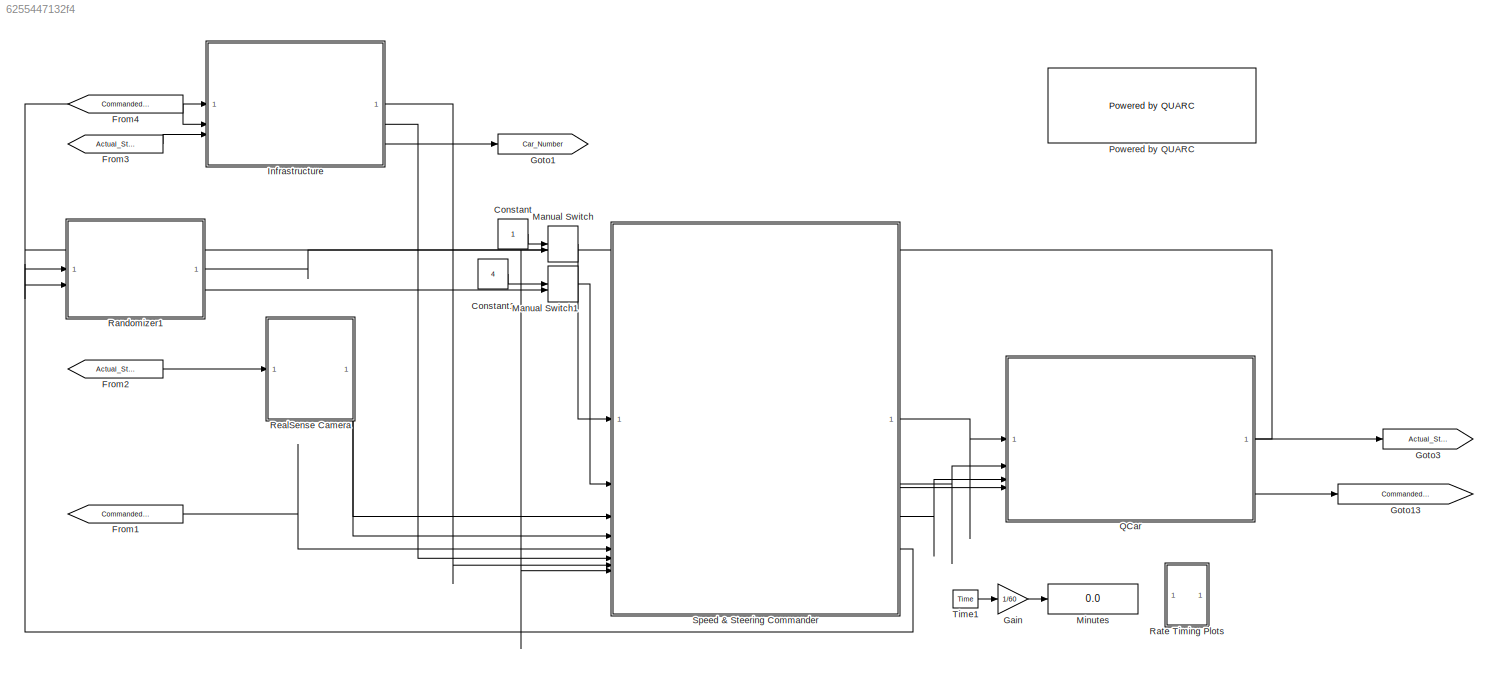
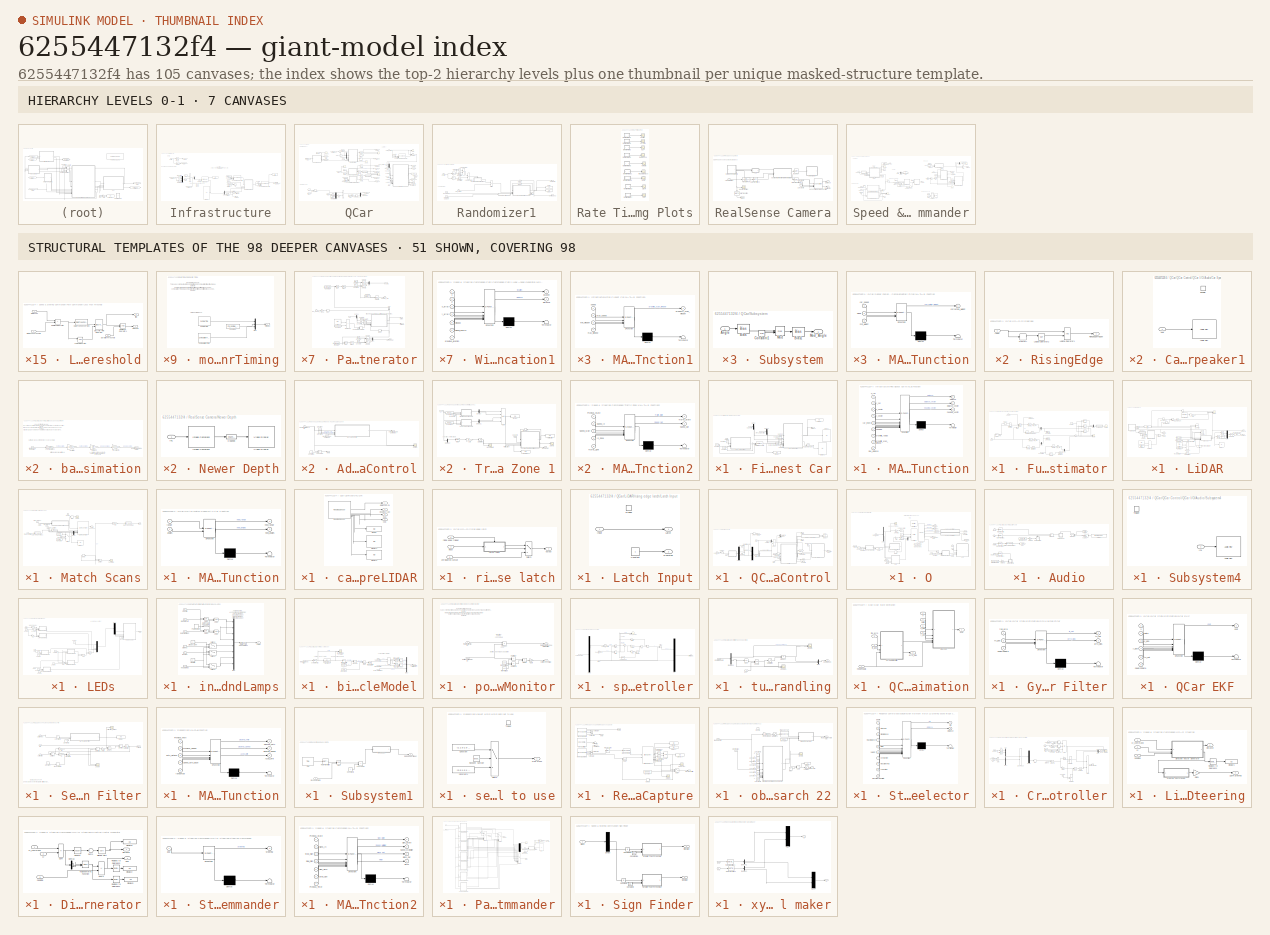
[diagram: thumbnail index - top-2 hierarchy levels (7 canvases) + 51 structural-template representatives of the remaining 98 canvases]
MODEL slx_6255447132f4
KIND model
CONFIG AbsTol = auto
CONFIG EnableMultiTasking = on
CONFIG FixedStep = Controller_Sample_Time
CONFIG MaxStep = auto
CONFIG MinStep = auto
CONFIG RelTol = 1e-3
CONFIG SampleTimeConstraint = Unconstrained
CONFIG SolverName = ode1
CONFIG StartTime = 0.0
CONFIG StopTime = inf
BLOCK [Constant] Constant
BLOCK [Constant] Constant1
  Value = 4
BLOCK [From] From1
  GotoTag = Commanded_Speed
BLOCK [From] From2
  GotoTag = Actual_Steering
BLOCK [From] From3
  GotoTag = Actual_Steering
BLOCK [From] From4
  GotoTag = Commanded_Speed
BLOCK [Gain] Gain
  Gain = 1/60
BLOCK [Goto] Goto1
  GotoTag = Car_Number
BLOCK [Goto] Goto13
  GotoTag = Commanded_Speed
BLOCK [Goto] Goto3
  GotoTag = Actual_Steering
BLOCK [SubSystem] Infrastructure
BLOCK [Sum] Infrastructure/Add
  IconShape = rectangular
BLOCK [Outport] Infrastructure/Car Number
  Port = 3
BLOCK [Constant] Infrastructure/Constant1
  Value = 10
BLOCK [Constant] Infrastructure/Constant2
BLOCK [Constant] Infrastructure/Constant4
BLOCK [Constant] Infrastructure/Constant6
  Value = 10
BLOCK [Constant] Infrastructure/Constant7
BLOCK [Demux] Infrastructure/Demux
  Outputs = [10 1 1]
BLOCK [Display] Infrastructure/Display
BLOCK [Display] Infrastructure/Display1
BLOCK [Display] Infrastructure/Display2
  Decimation = 100
BLOCK [Outport] Infrastructure/Distance to closest car ahead
  Port = 2
BLOCK [SubSystem] Infrastructure/Find Closest Car
BLOCK [Constant] Infrastructure/Find Closest Car/Constant1
  Value = 65
BLOCK [Constant] Infrastructure/Find Closest Car/Constant2
  Value = 45
BLOCK [Constant] Infrastructure/Find Closest Car/Constant6
BLOCK [Constant] Infrastructure/Find Closest Car/Constant7
BLOCK [Constant] Infrastructure/Find Closest Car/Constant8
  Value = 10
BLOCK [Reference] Infrastructure/Find Closest Car/Degrees to Radians  REF=simulink_extras/Transformations/Degrees to
Radians
  SourceBlock = simulink_extras/Transformations/Degrees to\nRadians
  SourceType = DegreesToRadians
BLOCK [Demux] Infrastructure/Find Closest Car/Demux
  Outputs = 2
BLOCK [Demux] Infrastructure/Find Closest Car/Demux1
  Outputs = 2
BLOCK [Display] Infrastructure/Find Closest Car/Display
  Decimation = 100
BLOCK [Display] Infrastructure/Find Closest Car/Display1
  Decimation = 100
BLOCK [Display] Infrastructure/Find Closest Car/Display2
  Decimation = 100
BLOCK [Display] Infrastructure/Find Closest Car/Display3
  Decimation = 100
BLOCK [SubSystem] Infrastructure/Find Closest Car/MATLAB Function
  ErrorFcn = Stateflow.Translate.translate
  PermitHierarchicalResolution = ExplicitOnly
  SFBlockType = MATLAB Function
  TreatAsAtomicUnit = on
BLOCK [Demux] Infrastructure/Find Closest Car/MATLAB Function/ Demux 
  Outputs = 1
BLOCK [S-Function] Infrastructure/Find Closest Car/MATLAB Function/ SFunction 
  EnableBusSupport = on
  FunctionName = sf_sfun
  PortCounts = [9 4]
  SFcnIsStateOwnerBlock = off
  SFunctionDeploymentMode = off
  Tag = Stateflow S-Function 27
BLOCK [Terminator] Infrastructure/Find Closest Car/MATLAB Function/ Terminator 
BLOCK [Inport] Infrastructure/Find Closest Car/MATLAB Function/car_index
  Port = 5
BLOCK [Outport] Infrastructure/Find Closest Car/MATLAB Function/distance
  VectorParamsAs1DForOutWhenUnconnected = off
BLOCK [Outport] Infrastructure/Find Closest Car/MATLAB Function/distance_vector
  Port = 2
BLOCK [Inport] Infrastructure/Find Closest Car/MATLAB Function/heading
  Port = 6
BLOCK [Outport] Infrastructure/Find Closest Car/MATLAB Function/heading_vector
  Port = 3
BLOCK [Inport] Infrastructure/Find Closest Car/MATLAB Function/max_distance
  Port = 9
BLOCK [Inport] Infrastructure/Find Closest Car/MATLAB Function/proximity_radius
  Port = 7
BLOCK [Inport] Infrastructure/Find Closest Car/MATLAB Function/proximity_scan_window
  Port = 8
BLOCK [Inport] Infrastructure/Find Closest Car/MATLAB Function/x_car
BLOCK [Inport] Infrastructure/Find Closest Car/MATLAB Function/x_vector
  Port = 3
BLOCK [Inport] Infrastructure/Find Closest Car/MATLAB Function/y_car
  Port = 2
BLOCK [Inport] Infrastructure/Find Closest Car/MATLAB Function/y_vector
  Port = 4
BLOCK [SubSystem] Infrastructure/Find Closest Car/MATLAB Function1
  ErrorFcn = Stateflow.Translate.translate
  PermitHierarchicalResolution = ExplicitOnly
  SFBlockType = MATLAB Function
  TreatAsAtomicUnit = on
BLOCK [Demux] Infrastructure/Find Closest Car/MATLAB Function1/ Demux 
  Outputs = 1
BLOCK [S-Function] Infrastructure/Find Closest Car/MATLAB Function1/ SFunction 
  EnableBusSupport = on
  FunctionName = sf_sfun
  PortCounts = [4 2]
  SFcnIsStateOwnerBlock = off
  SFunctionDeploymentMode = off
  Tag = Stateflow S-Function 29
BLOCK [Terminator] Infrastructure/Find Closest Car/MATLAB Function1/ Terminator 
BLOCK [Inport] Infrastructure/Find Closest Car/MATLAB Function1/max_speed
  Port = 2
BLOCK [Inport] Infrastructure/Find Closest Car/MATLAB Function1/max_window
  Port = 4
BLOCK [Inport] Infrastructure/Find Closest Car/MATLAB Function1/min_window
  Port = 3
BLOCK [Outport] Infrastructure/Find Closest Car/MATLAB Function1/proximity_scan_window
  VectorParamsAs1DForOutWhenUnconnected = off
BLOCK [Inport] Infrastructure/Find Closest Car/MATLAB Function1/speed
BLOCK [Reference] Infrastructure/Find Closest Car/Radians to Degrees  REF=simulink_extras/Transformations/Radians
to Degrees
  SourceBlock = simulink_extras/Transformations/Radians\nto Degrees
  SourceType = RadiansToDegrees
BLOCK [Reference] Infrastructure/Find Closest Car/Saturation Dynamic  REF=simulink/Discontinuities/Saturation
Dynamic
  SourceBlock = simulink/Discontinuities/Saturation\nDynamic
  SourceType = Saturation Dynamic
BLOCK [Inport] Infrastructure/Find Closest Car/car_heading
  Port = 3
BLOCK [Inport] Infrastructure/Find Closest Car/car_index
  Port = 5
BLOCK [Inport] Infrastructure/Find Closest Car/car_position
  Port = 2
BLOCK [Outport] Infrastructure/Find Closest Car/distance
BLOCK [Inport] Infrastructure/Find Closest Car/other_car_position
  Port = 4
BLOCK [Inport] Infrastructure/Find Closest Car/speed 
BLOCK [From] Infrastructure/From1
  CloseFcn = tagdialog Close
  GotoTag = mod_heading
BLOCK [From] Infrastructure/From16
  CloseFcn = tagdialog Close
  GotoTag = mod_heading
BLOCK [From] Infrastructure/From19
  CloseFcn = tagdialog Close
  GotoTag = xy
BLOCK [From] Infrastructure/From2
  CloseFcn = tagdialog Close
  GotoTag = mod_heading
BLOCK [From] Infrastructure/From9
  CloseFcn = tagdialog Close
  GotoTag = xy
BLOCK [Gain] Infrastructure/Gain1
  Gain = .11537*1
BLOCK [Goto] Infrastructure/Goto3
  GotoTag = mod_heading
BLOCK [Goto] Infrastructure/Goto7
  GotoTag = xy
BLOCK [Mux] Infrastructure/Mux
  DisplayOption = bar
  Inputs = 2
BLOCK [Mux] Infrastructure/Mux3
  DisplayOption = bar
  Inputs = 2
BLOCK [Saturate] Infrastructure/Saturation
  LowerLimit = 0
  UpperLimit = 1
BLOCK [Saturate] Infrastructure/Saturation1
  LowerLimit = 1
  UpperLimit = 5
BLOCK [Reference] Infrastructure/Second-Order Low-Pass Filter  REF=quarc_library/Continuous/Second-Order
Low-Pass Filter
  SourceBlock = quarc_library/Continuous/Second-Order\nLow-Pass Filter
  SourceProductName = QUARC Targets
  SourceType = Second-Order Low-Pass Filter
BLOCK [Reference] Infrastructure/Second-Order Low-Pass Filter1  REF=quarc_library/Continuous/Second-Order
Low-Pass Filter
  SourceBlock = quarc_library/Continuous/Second-Order\nLow-Pass Filter
  SourceProductName = QUARC Targets
  SourceType = Second-Order Low-Pass Filter
BLOCK [Selector] Infrastructure/Selector
  IndexOptions = Index vector (dialog)
  Indices = 1:2
  InputPortWidth = 3
  OutputSizes = 1
BLOCK [Selector] Infrastructure/Selector1
  IndexOptions = Index vector (dialog)
  Indices = 3
  InputPortWidth = 3
  OutputSizes = 1
BLOCK [Inport] Infrastructure/Steering
  Port = 3
BLOCK [Reference] Infrastructure/Stream Server  REF=quarc_library/Communications/Basic/Stream Server
  AttributesFormatString = "tcpip://remotehost:1111?nagle='off'"
  SourceBlock = quarc_library/Communications/Basic/Stream Server
  SourceProductName = QUARC Targets
  SourceType = Stream Server
BLOCK [Sum] Infrastructure/Sum1
  IconShape = rectangular
  Inputs = +-
BLOCK [Outport] Infrastructure/Traffic Light
BLOCK [Trigonometry] Infrastructure/Trigonometric Function
  Operator = cos
BLOCK [Trigonometry] Infrastructure/Trigonometric Function1
BLOCK [Inport] Infrastructure/position
BLOCK [Inport] Infrastructure/speed 
  Port = 2
BLOCK [ManualSwitch] Manual Switch
  CurrentSetting = 0
BLOCK [ManualSwitch] Manual Switch1
  CurrentSetting = 0
BLOCK [Display] Minutes
BLOCK [Reference] Powered by QUARC  REF=quarc_library/Logos/Powered by QUARC
  SourceBlock = quarc_library/Logos/Powered by QUARC
  SourceProductName = QUARC Targets
  SourceType = Powered by QUARC
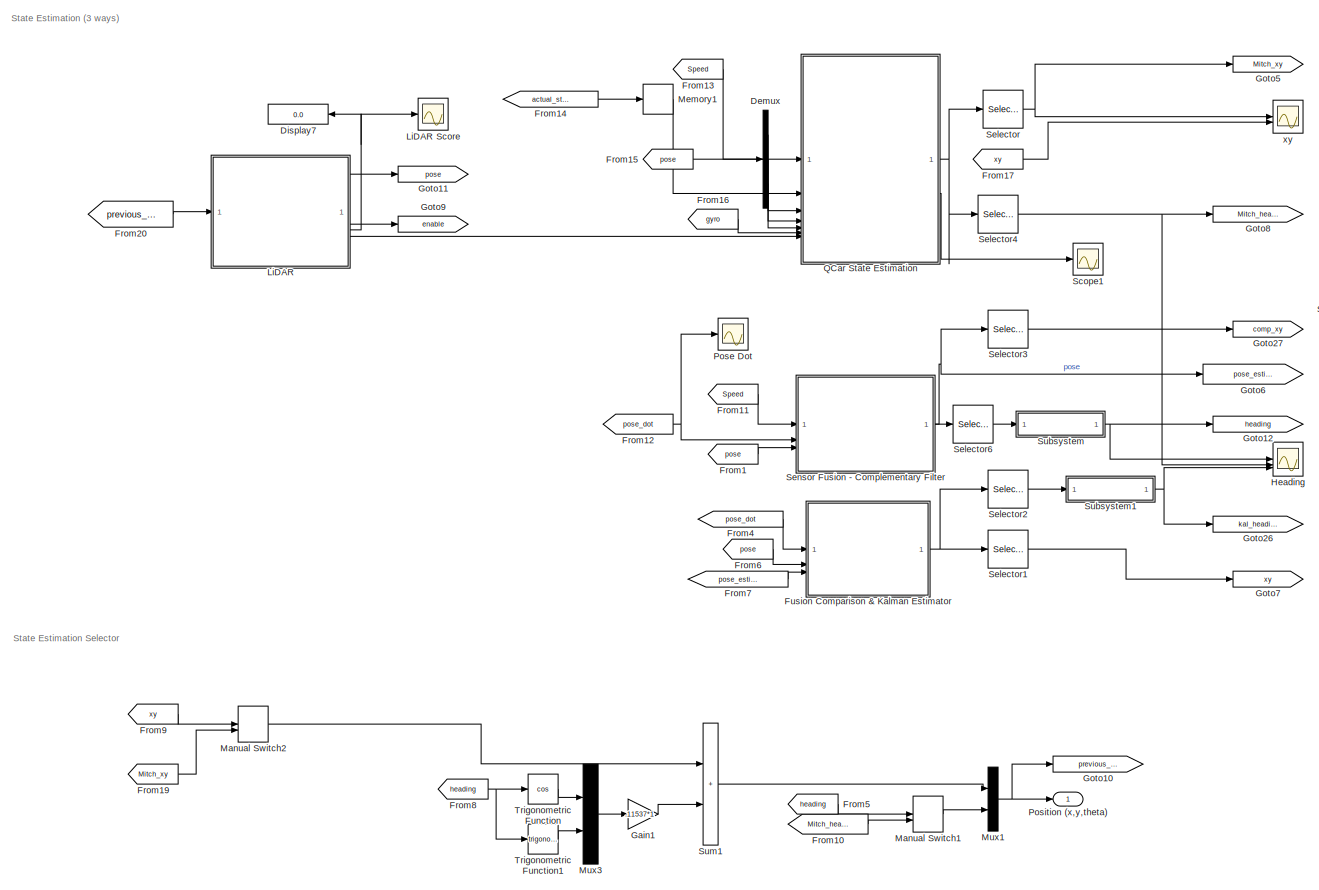
[diagram: QCar - part 1/2, center side, full height]
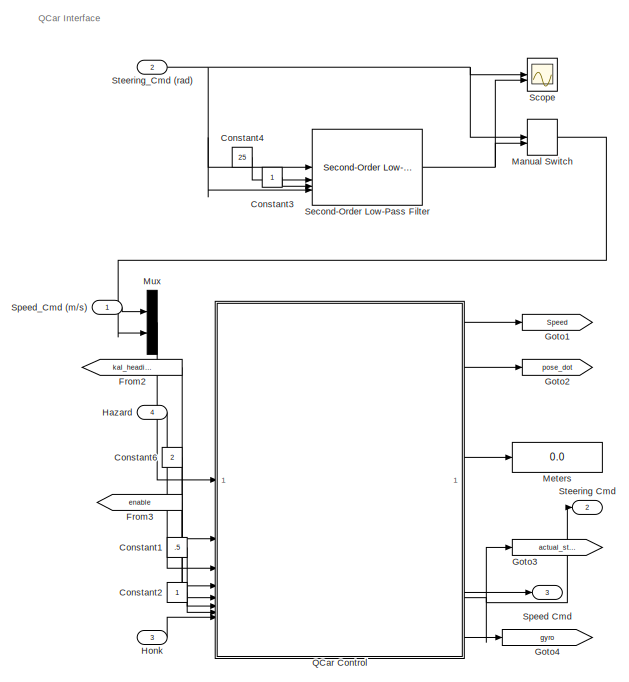
[diagram: QCar - part 2/2, right side, full height]
BLOCK [SubSystem] QCar
BLOCK [Constant] QCar/Constant1
  Value = .5
BLOCK [Constant] QCar/Constant2
BLOCK [Constant] QCar/Constant3
BLOCK [Constant] QCar/Constant4
  Value = 25
BLOCK [Constant] QCar/Constant6
  Value = 2
BLOCK [Demux] QCar/Demux
  Outputs = 3
BLOCK [Display] QCar/Display7
  Decimation = 1
  NameLocation = top
BLOCK [From] QCar/From1
  CloseFcn = tagdialog Close
  GotoTag = pose
BLOCK [From] QCar/From10
  CloseFcn = tagdialog Close
  GotoTag = Mitch_heading
BLOCK [From] QCar/From11
  CloseFcn = tagdialog Close
  GotoTag = Speed
BLOCK [From] QCar/From12
  CloseFcn = tagdialog Close
  GotoTag = pose_dot
BLOCK [From] QCar/From13
  CloseFcn = tagdialog Close
  GotoTag = Speed
BLOCK [From] QCar/From14
  CloseFcn = tagdialog Close
  GotoTag = actual_steering
BLOCK [From] QCar/From15
  CloseFcn = tagdialog Close
  GotoTag = pose
BLOCK [From] QCar/From16
  CloseFcn = tagdialog Close
  GotoTag = gyro
BLOCK [From] QCar/From17
  CloseFcn = tagdialog Close
  GotoTag = xy
BLOCK [From] QCar/From19
  CloseFcn = tagdialog Close
  GotoTag = Mitch_xy
BLOCK [From] QCar/From2
  CloseFcn = tagdialog Close
  GotoTag = kal_heading
BLOCK [From] QCar/From20
  CloseFcn = tagdialog Close
  GotoTag = previous_pose
BLOCK [From] QCar/From3
  CloseFcn = tagdialog Close
  GotoTag = enable
BLOCK [From] QCar/From4
  CloseFcn = tagdialog Close
  GotoTag = pose_dot
BLOCK [From] QCar/From5
  CloseFcn = tagdialog Close
  GotoTag = heading
BLOCK [From] QCar/From6
  CloseFcn = tagdialog Close
  GotoTag = pose
BLOCK [From] QCar/From7
  CloseFcn = tagdialog Close
  GotoTag = pose_estimate
BLOCK [From] QCar/From8
  CloseFcn = tagdialog Close
  GotoTag = heading
BLOCK [From] QCar/From9
  CloseFcn = tagdialog Close
  GotoTag = xy
BLOCK [SubSystem] QCar/Fusion Comparison & Kalman Estimator
BLOCK [SubSystem] QCar/Fusion Comparison & Kalman Estimator/Angle mod1
BLOCK [Inport] QCar/Fusion Comparison & Kalman Estimator/Angle mod1/Angle
BLOCK [Bias] QCar/Fusion Comparison & Kalman Estimator/Angle mod1/Bias
  Bias = 180
  SaturateOnIntegerOverflow = off
BLOCK [Bias] QCar/Fusion Comparison & Kalman Estimator/Angle mod1/Bias1
  Bias = -180
  SaturateOnIntegerOverflow = off
BLOCK [Constant] QCar/Fusion Comparison & Kalman Estimator/Angle mod1/Constant1
  Value = 360
BLOCK [Math] QCar/Fusion Comparison & Kalman Estimator/Angle mod1/Mod
  Operator = mod
  SignedPower = on
BLOCK [Outport] QCar/Fusion Comparison & Kalman Estimator/Angle mod1/Mod_Angle
BLOCK [Constant] QCar/Fusion Comparison & Kalman Estimator/Constant
  Value = 3
BLOCK [DataTypeConversion] QCar/Fusion Comparison & Kalman Estimator/Data Type Conversion1
  NameLocation = top
  OutDataTypeStr = int32
  RndMeth = Round
  SaturateOnIntegerOverflow = off
BLOCK [DataTypeConversion] QCar/Fusion Comparison & Kalman Estimator/Data Type Conversion2
  NameLocation = top
  OutDataTypeStr = int32
  RndMeth = Round
  SaturateOnIntegerOverflow = off
BLOCK [Scope] QCar/Fusion Comparison & Kalman Estimator/Heading
  Floating = off
  NumInputPorts = 1
  ScopeSpecificationString = Simulink.scopes.TimeScopeBlockCfg('CurrentConfiguration', extmgr.ConfigurationSet(extmgr.Configuration('Core','General UI',true,'DisplayFullSourceName',false,'ShowMainToolbar',true),extmgr.Configuration('Sources','WiredSimulink',true,'DataLogging',false,'DataLoggingVariableName','ScopeData1','DataLoggingLimitDataPoints',false,'DataLoggingMaxPoints','5000','DataLoggingDecimateData',false,'DataLoggi...<+2007ch>
BLOCK [Integrator] QCar/Fusion Comparison & Kalman Estimator/Integrator
  ExternalReset = level
  InitialConditionSource = external
  WrappedStateLowerValue = -[20 20 pi]
  WrappedStateUpperValue = [20 20 pi]
BLOCK [Selector] QCar/Fusion Comparison & Kalman Estimator/Kalman
  IndexOptions = Index vector (port)
  Indices = [1 3]
  InputPortWidth = 3
  OutputSizes = 1
BLOCK [Outport] QCar/Fusion Comparison & Kalman Estimator/Kalman Pose
BLOCK [Selector] QCar/Fusion Comparison & Kalman Estimator/LiDAR
  IndexOptions = Index vector (port)
  Indices = [1 3]
  InputPortWidth = 3
  OutputSizes = 1
BLOCK [Selector] QCar/Fusion Comparison & Kalman Estimator/LiDAR1
  IndexOptions = Index vector (port)
  Indices = [1 3]
  InputPortWidth = 3
  OutputSizes = 1
BLOCK [Memory] QCar/Fusion Comparison & Kalman Estimator/Memory2
  InheritSampleTime = on
  LinearizeAsDelay = on
  LinearizeMemory = on
BLOCK [Mux] QCar/Fusion Comparison & Kalman Estimator/Mux
  DisplayOption = bar
  Inputs = 2
BLOCK [Mux] QCar/Fusion Comparison & Kalman Estimator/Mux1
  DisplayOption = bar
  Inputs = 2
BLOCK [Mux] QCar/Fusion Comparison & Kalman Estimator/Mux2
  DisplayOption = bar
  Inputs = 2
BLOCK [Mux] QCar/Fusion Comparison & Kalman Estimator/Mux4
  DisplayOption = bar
  Inputs = 3
BLOCK [Inport] QCar/Fusion Comparison & Kalman Estimator/Pose dot
BLOCK [RateTransition] QCar/Fusion Comparison & Kalman Estimator/RT
  OutPortSampleTime = qc_get_step_size
BLOCK [RateTransition] QCar/Fusion Comparison & Kalman Estimator/RT1
  OutPortSampleTime = qc_get_step_size
BLOCK [RateTransition] QCar/Fusion Comparison & Kalman Estimator/RT2
  OutPortSampleTime = qc_get_step_size
BLOCK [Reference] QCar/Fusion Comparison & Kalman Estimator/Radians to Degrees  REF=simulink_extras/Transformations/Radians
to Degrees
  SourceBlock = simulink_extras/Transformations/Radians\nto Degrees
  SourceType = RadiansToDegrees
BLOCK [Reference] QCar/Fusion Comparison & Kalman Estimator/Radians to Degrees2  REF=simulink_extras/Transformations/Radians
to Degrees
  SourceBlock = simulink_extras/Transformations/Radians\nto Degrees
  SourceType = RadiansToDegrees
BLOCK [Reference] QCar/Fusion Comparison & Kalman Estimator/Radians to Degrees3  REF=simulink_extras/Transformations/Radians
to Degrees
  SourceBlock = simulink_extras/Transformations/Radians\nto Degrees
  SourceType = RadiansToDegrees
BLOCK [RelationalOperator] QCar/Fusion Comparison & Kalman Estimator/Relational Operator1
  InputSameDT = off
  Operator = ~=
  OutDataTypeStr = boolean
  RndMeth = Simplest
BLOCK [Scope] QCar/Fusion Comparison & Kalman Estimator/Scope
  Floating = off
  NumInputPorts = 3
  ScopeSpecificationString = Simulink.scopes.TimeScopeBlockCfg('CurrentConfiguration', extmgr.ConfigurationSet(extmgr.Configuration('Core','General UI',true,'DisplayFullSourceName',false,'ShowMainToolbar',true),extmgr.Configuration('Sources','WiredSimulink',true,'DataLogging',false,'DataLoggingVariableName','ScopeData1','DataLoggingLimitDataPoints',false,'DataLoggingMaxPoints','5000','DataLoggingDecimateData',false,'DataLoggi...<+2003ch>
BLOCK [Selector] QCar/Fusion Comparison & Kalman Estimator/Selector1
  IndexOptions = Index vector (dialog)
  Indices = 1:2
  InputPortWidth = 3
  OutputSizes = 1
BLOCK [Selector] QCar/Fusion Comparison & Kalman Estimator/Selector2
  IndexOptions = Index vector (dialog)
  Indices = 3
  InputPortWidth = 3
  OutputSizes = 1
BLOCK [Selector] QCar/Fusion Comparison & Kalman Estimator/Selector3
  IndexOptions = Index vector (dialog)
  Indices = 1:2
  InputPortWidth = 3
  OutputSizes = 1
BLOCK [Selector] QCar/Fusion Comparison & Kalman Estimator/Selector4
  IndexOptions = Index vector (dialog)
  Indices = 3
  InputPortWidth = 3
  OutputSizes = 1
BLOCK [Selector] QCar/Fusion Comparison & Kalman Estimator/Selector5
  IndexOptions = Index vector (dialog)
  Indices = 1:2
  InputPortWidth = 3
  OutputSizes = 1
BLOCK [Selector] QCar/Fusion Comparison & Kalman Estimator/Selector6
  IndexOptions = Index vector (dialog)
  Indices = 3
  InputPortWidth = 3
  OutputSizes = 1
BLOCK [Selector] QCar/Fusion Comparison & Kalman Estimator/Selector7
  IndexOptions = Index vector (dialog)
  Indices = 1
  InputPortWidth = 3
  OutputSizes = 1
BLOCK [Gain] QCar/Fusion Comparison & Kalman Estimator/m_to_mm
  Gain = 1e3
BLOCK [Gain] QCar/Fusion Comparison & Kalman Estimator/m_to_mm1
  Gain = 1e3
BLOCK [Gain] QCar/Fusion Comparison & Kalman Estimator/m_to_mm2
  Gain = 1e3
BLOCK [Inport] QCar/Fusion Comparison & Kalman Estimator/pose
  Port = 2
BLOCK [Inport] QCar/Fusion Comparison & Kalman Estimator/pose estimate
  Port = 3
BLOCK [Gain] QCar/Gain1
  Gain = .11537*1
BLOCK [Goto] QCar/Goto1
  GotoTag = Speed
BLOCK [Goto] QCar/Goto10
  GotoTag = previous_pose
BLOCK [Goto] QCar/Goto11
  GotoTag = pose
BLOCK [Goto] QCar/Goto12
  GotoTag = heading
BLOCK [Goto] QCar/Goto2
  GotoTag = pose_dot
BLOCK [Goto] QCar/Goto26
  GotoTag = kal_heading
BLOCK [Goto] QCar/Goto27
  GotoTag = comp_xy
BLOCK [Goto] QCar/Goto3
  GotoTag = actual_steering
BLOCK [Goto] QCar/Goto4
  GotoTag = gyro
BLOCK [Goto] QCar/Goto5
  GotoTag = Mitch_xy
BLOCK [Goto] QCar/Goto6
  GotoTag = pose_estimate
BLOCK [Goto] QCar/Goto7
  GotoTag = xy
BLOCK [Goto] QCar/Goto8
  GotoTag = Mitch_heading
BLOCK [Goto] QCar/Goto9
  GotoTag = enable
BLOCK [Inport] QCar/Hazard
  Port = 4
BLOCK [Scope] QCar/Heading
  Floating = off
  NumInputPorts = 3
  ScopeSpecificationString = Simulink.scopes.TimeScopeBlockCfg('CurrentConfiguration', extmgr.ConfigurationSet(extmgr.Configuration('Core','General UI',true,'DisplayFullSourceName',false,'ShowMainToolbar',true),extmgr.Configuration('Sources','WiredSimulink',true,'DataLogging',false,'DataLoggingVariableName','ScopeData1','DataLoggingLimitDataPoints',false,'DataLoggingMaxPoints','5000','DataLoggingDecimateData',false,'DataLoggi...<+1996ch>  <repeated x5 — deduplicated; at blocks: Heading, Pose Deltas, xy, RealSense, Speed Multi>
BLOCK [Inport] QCar/Honk
  Port = 3
BLOCK [SubSystem] QCar/LiDAR
BLOCK [Scope] QCar/LiDAR Score
  Floating = off
  NumInputPorts = 1
  ScopeSpecificationString = Simulink.scopes.TimeScopeBlockCfg('CurrentConfiguration', extmgr.ConfigurationSet(extmgr.Configuration('Core','General UI',true,'DisplayFullSourceName',false,'ShowMainToolbar',true),extmgr.Configuration('Sources','WiredSimulink',true,'DataLogging',false,'DataLoggingVariableName','ScopeData1','DataLoggingLimitDataPoints',false,'DataLoggingMaxPoints','5000','DataLoggingDecimateData',false,'DataLoggi...<+2026ch>
BLOCK [Bias] QCar/LiDAR/Bias
  Bias = -pi/2+0*1*pi/180
  SaturateOnIntegerOverflow = off
BLOCK [Reference] QCar/LiDAR/Body Frame  REF=quarc_library/Sinks/Figures/Polar Figure
  SourceBlock = quarc_library/Sinks/Figures/Polar Figure
  SourceProductName = QUARC Targets
  SourceType = Polar Figure
BLOCK [Reference] QCar/LiDAR/Computation Time1  REF=quarc_library/Sources/Time/Computation Time
  SourceBlock = quarc_library/Sources/Time/Computation Time
  SourceProductName = QUARC Targets
  SourceType = Computation Time
BLOCK [Constant] QCar/LiDAR/Constant1
  Value = range_qcar1
BLOCK [Constant] QCar/LiDAR/Constant10
  Value = Initialization_Time
BLOCK [Constant] QCar/LiDAR/Constant3
BLOCK [Constant] QCar/LiDAR/Constant4
  Value = angles_qcar1
BLOCK [Constant] QCar/LiDAR/Constant5
  Value = 0
BLOCK [Constant] QCar/LiDAR/Constant6
  Value = Initialization_Time
BLOCK [Scope] QCar/LiDAR/Data Size
  Floating = off
  NumInputPorts = 4
  ScopeSpecificationString = Simulink.scopes.TimeScopeBlockCfg('CurrentConfiguration', extmgr.ConfigurationSet(extmgr.Configuration('Core','General UI',true,'DisplayFullSourceName',false,'ShowMainToolbar',true),extmgr.Configuration('Sources','WiredSimulink',true,'DataLogging',false,'DataLoggingVariableName','ScopeData1','DataLoggingLimitDataPoints',false,'DataLoggingMaxPoints','5000','DataLoggingDecimateData',false,'DataLoggi...<+1987ch>
BLOCK [Display] QCar/LiDAR/Display7
  Decimation = 1
BLOCK [Outport] QCar/LiDAR/Enable
  Port = 3
BLOCK [Reference] QCar/LiDAR/Fixed Frame  REF=quarc_library/Sinks/Figures/Polar Figure
  SourceBlock = quarc_library/Sinks/Figures/Polar Figure
  SourceProductName = QUARC Targets
  SourceType = Polar Figure
BLOCK [RelationalOperator] QCar/LiDAR/GreaterThan
  InputSameDT = off
  Operator = >
  OutDataTypeStr = boolean
  RndMeth = Simplest
BLOCK [RelationalOperator] QCar/LiDAR/GreaterThan1
  InputSameDT = off
  Operator = <
  OutDataTypeStr = boolean
  RndMeth = Simplest
BLOCK [Reference] QCar/LiDAR/Inverse Modulus1  REF=quarc_library/Discontinuities/Inverse
Modulus
  SourceBlock = quarc_library/Discontinuities/Inverse\nModulus
  SourceProductName = QUARC Targets
  SourceType = Inverse Modulus
BLOCK [Outport] QCar/LiDAR/LiDAR Pose
BLOCK [Outport] QCar/LiDAR/LiDAR Score 
  Port = 2
BLOCK [SubSystem] QCar/LiDAR/Match Scans
BLOCK [Inport] QCar/LiDAR/Match Scans/Angles
  Port = 2
BLOCK [Constant] QCar/LiDAR/Match Scans/Constant
  Value = [6 6 2*pi]
BLOCK [Constant] QCar/LiDAR/Match Scans/Constant1
  Value = [1 1 pi/2]
BLOCK [Inport] QCar/LiDAR/Match Scans/Current_Distance
BLOCK [DataTypeConversion] QCar/LiDAR/Match Scans/Data Type Conversion
  RndMeth = Floor
  SaturateOnIntegerOverflow = off
BLOCK [DataTypeConversion] QCar/LiDAR/Match Scans/Data Type Conversion1
  RndMeth = Floor
  SaturateOnIntegerOverflow = off
BLOCK [Demux] QCar/LiDAR/Match Scans/Demux
  Outputs = 2
BLOCK [Display] QCar/LiDAR/Match Scans/Display
  Decimation = 1
BLOCK [EnablePort] QCar/LiDAR/Match Scans/Enable
  PropagateVarSize = During execution
BLOCK [Gain] QCar/LiDAR/Match Scans/Gain
  Gain = [1 -1 -1]
BLOCK [Gain] QCar/LiDAR/Match Scans/Gain1
  Gain = [1 -1 -1]
BLOCK [Reference] QCar/LiDAR/Match Scans/LIDAR Scan Match  REF=quarc_library/Image Processing/Generic/LIDAR Scan Match
  SourceBlock = quarc_library/Image Processing/Generic/LIDAR Scan Match
  SourceProductName = QUARC Targets
  SourceType = LIDAR Scan Match
BLOCK [SubSystem] QCar/LiDAR/Match Scans/MATLAB Function
  ErrorFcn = Stateflow.Translate.translate
  PermitHierarchicalResolution = ExplicitOnly
  SFBlockType = MATLAB Function
  TreatAsAtomicUnit = on
BLOCK [Demux] QCar/LiDAR/Match Scans/MATLAB Function/ Demux 
  Outputs = 1
BLOCK [S-Function] QCar/LiDAR/Match Scans/MATLAB Function/ SFunction 
  EnableBusSupport = on
  FunctionName = sf_sfun
  PortCounts = [2 3]
  SFcnIsStateOwnerBlock = off
  SFunctionDeploymentMode = off
  Tag = Stateflow S-Function 9
BLOCK [Terminator] QCar/LiDAR/Match Scans/MATLAB Function/ Terminator 
BLOCK [Inport] QCar/LiDAR/Match Scans/MATLAB Function/angles
  Port = 2
BLOCK [Outport] QCar/LiDAR/Match Scans/MATLAB Function/new_angles
  Port = 2
BLOCK [Outport] QCar/LiDAR/Match Scans/MATLAB Function/new_range
BLOCK [Inport] QCar/LiDAR/Match Scans/MATLAB Function/range
BLOCK [Memory] QCar/LiDAR/Match Scans/Memory
  InheritSampleTime = on
  InitialCondition = [0 0 0]
  LinearizeAsDelay = on
  LinearizeMemory = on
  NameLocation = top
BLOCK [Scope] QCar/LiDAR/Match Scans/Pose Deltas
  Floating = off
  NumInputPorts = 1
BLOCK [Inport] QCar/LiDAR/Match Scans/Previous Estimate
  Port = 6
BLOCK [Inport] QCar/LiDAR/Match Scans/Ref_Angles
  Port = 4
BLOCK [Inport] QCar/LiDAR/Match Scans/Ref_Distance
  Port = 3
BLOCK [Scope] QCar/LiDAR/Match Scans/Scope
  Floating = off
  NumInputPorts = 1
  ScopeSpecificationString = Simulink.scopes.TimeScopeBlockCfg('CurrentConfiguration', extmgr.ConfigurationSet(extmgr.Configuration('Core','General UI',true,'DisplayFullSourceName',false,'ShowMainToolbar',true),extmgr.Configuration('Sources','WiredSimulink',true,'DataLogging',false,'DataLoggingVariableName','ScopeData1','DataLoggingLimitDataPoints',false,'DataLoggingMaxPoints','5000','DataLoggingDecimateData',false,'DataLoggi...<+2011ch>
BLOCK [Sum] QCar/LiDAR/Match Scans/Subtract
  IconShape = rectangular
  Inputs = +-
BLOCK [Switch] QCar/LiDAR/Match Scans/Switch
  Criteria = u2 > Threshold
  InputSameDT = off
  SaturateOnIntegerOverflow = off
  Threshold = .5
BLOCK [Width] QCar/LiDAR/Match Scans/Width
BLOCK [Inport] QCar/LiDAR/Match Scans/absolute_scan
  Port = 5
BLOCK [Outport] QCar/LiDAR/Match Scans/pose
BLOCK [Outport] QCar/LiDAR/Match Scans/score
  Port = 2
BLOCK [MinMax] QCar/LiDAR/Max of Elements
  Function = max
BLOCK [MinMax] QCar/LiDAR/Max of Elements1
BLOCK [Mux] QCar/LiDAR/Mux5
  DisplayOption = bar
  Inputs = 2
BLOCK [Outport] QCar/LiDAR/New Lidar
  Port = 4
BLOCK [Inport] QCar/LiDAR/Previous Estimate
BLOCK [Product] QCar/LiDAR/Product
BLOCK [Reference] QCar/LiDAR/Radians to Degrees  REF=simulink_extras/Transformations/Radians
to Degrees
  SourceBlock = simulink_extras/Transformations/Radians\nto Degrees
  SourceType = RadiansToDegrees
BLOCK [RateTransition] QCar/LiDAR/Rate Transition
BLOCK [RateTransition] QCar/LiDAR/Rate Transition1
BLOCK [SubSystem] QCar/LiDAR/RisingEdge
BLOCK [Inport] QCar/LiDAR/RisingEdge/Input
BLOCK [Logic] QCar/LiDAR/RisingEdge/Logical Operator1
  AllPortsSameDT = off
BLOCK [Logic] QCar/LiDAR/RisingEdge/Logical Operator2
  AllPortsSameDT = off
  Operator = NOT
BLOCK [Memory] QCar/LiDAR/RisingEdge/Memory
  InheritSampleTime = on
  LinearizeMemory = on
BLOCK [Outport] QCar/LiDAR/RisingEdge/RisingEdgeTrigger
  VectorParamsAs1DForOutWhenUnconnected = off
BLOCK [Selector] QCar/LiDAR/Selector1
  IndexOptions = Index vector (dialog)
  Indices = 3
  InputPortWidth = 3
  OutputSizes = 1
BLOCK [Selector] QCar/LiDAR/Selector2
  IndexOptions = Index vector (dialog)
  Indices = 1:2
  InputPortWidth = 3
  OutputSizes = 1
BLOCK [Sum] QCar/LiDAR/Subtract
  IconShape = rectangular
  Inputs = +-
BLOCK [Terminator] QCar/LiDAR/Terminator
BLOCK [Reference] QCar/LiDAR/Time  REF=quarc_library/Sources/Time/Time
  SourceBlock = quarc_library/Sources/Time/Time
  SourceProductName = QUARC Targets
  SourceType = Time
BLOCK [Reference] QCar/LiDAR/Time1  REF=quarc_library/Sources/Time/Time
  SourceBlock = quarc_library/Sources/Time/Time
  SourceProductName = QUARC Targets
  SourceType = Time
BLOCK [Width] QCar/LiDAR/Width
BLOCK [Bias] QCar/LiDAR/based on Lidar used to calibrate
  Bias = qcar1_lidar_to_map_rotation+0*pi/180
  SaturateOnIntegerOverflow = off
BLOCK [SubSystem] QCar/LiDAR/captureLIDAR
BLOCK [Display] QCar/LiDAR/captureLIDAR/Display
  Decimation = 100
BLOCK [Display] QCar/LiDAR/captureLIDAR/Display1
  Decimation = 100
BLOCK [Display] QCar/LiDAR/captureLIDAR/Display2
  Decimation = 100
BLOCK [Outport] QCar/LiDAR/captureLIDAR/Heading (rad)
  Port = 2
  VectorParamsAs1DForOutWhenUnconnected = off
BLOCK [Reference] QCar/LiDAR/captureLIDAR/Ranging Sensor  REF=quarc_library/Devices/Third-Party/Sensors/Ranging Sensor
  SourceBlock = quarc_library/Devices/Third-Party/Sensors/Ranging Sensor
  SourceProductName = QUARC Targets
  SourceType = Ranging Sensor
BLOCK [Outport] QCar/LiDAR/captureLIDAR/distances (m)
  VectorParamsAs1DForOutWhenUnconnected = off
BLOCK [Outport] QCar/LiDAR/captureLIDAR/new
  Port = 4
  VectorParamsAs1DForOutWhenUnconnected = off
BLOCK [Outport] QCar/LiDAR/captureLIDAR/qual
  Port = 3
  VectorParamsAs1DForOutWhenUnconnected = off
BLOCK [Gain] QCar/LiDAR/ms to s
  Gain = 1e3
BLOCK [SubSystem] QCar/LiDAR/rising edge latch
BLOCK [SubSystem] QCar/LiDAR/rising edge latch/Latch Input
  TreatAsAtomicUnit = on
BLOCK [Constant] QCar/LiDAR/rising edge latch/Latch Input/Constant
BLOCK [Outport] QCar/LiDAR/rising edge latch/Latch Input/Executed
  Port = 2
  VectorParamsAs1DForOutWhenUnconnected = off
BLOCK [Inport] QCar/LiDAR/rising edge latch/Latch Input/Input
BLOCK [Outport] QCar/LiDAR/rising edge latch/Latch Input/Latch
  VectorParamsAs1DForOutWhenUnconnected = off
BLOCK [TriggerPort] QCar/LiDAR/rising edge latch/Latch Input/Trigger
  StatesWhenEnabling = held
  VariantControl = (inherit)
BLOCK [Switch] QCar/LiDAR/rising edge latch/Switch
  InputSameDT = off
  SaturateOnIntegerOverflow = off
  Threshold = 0.5
BLOCK [Inport] QCar/LiDAR/rising edge latch/input
  Port = 2
BLOCK [Outport] QCar/LiDAR/rising edge latch/output
  VectorParamsAs1DForOutWhenUnconnected = off
BLOCK [Inport] QCar/LiDAR/rising edge latch/rising edge trigger
BLOCK [Inport] QCar/LiDAR/rising edge latch/untriggered output
  Port = 3
BLOCK [Bias] QCar/LiDAR/transform lidar to map frame
  Bias = cal_pos
  SaturateOnIntegerOverflow = off
BLOCK [Bias] QCar/LiDAR/transform map to lidar frame
  Bias = -cal_pos
  NameLocation = right
  SaturateOnIntegerOverflow = off
BLOCK [ManualSwitch] QCar/Manual Switch
  CurrentSetting = 0
BLOCK [ManualSwitch] QCar/Manual Switch1
BLOCK [ManualSwitch] QCar/Manual Switch2
  CurrentSetting = 0
BLOCK [Memory] QCar/Memory1
BLOCK [Display] QCar/Meters
BLOCK [Mux] QCar/Mux
  DisplayOption = bar
  Inputs = 2
BLOCK [Mux] QCar/Mux1
  DisplayOption = bar
  Inputs = 2
BLOCK [Mux] QCar/Mux3
  DisplayOption = bar
  Inputs = 2
BLOCK [Scope] QCar/Pose Dot
  Floating = off
  NumInputPorts = 1
  ScopeSpecificationString = Simulink.scopes.TimeScopeBlockCfg('CurrentConfiguration', extmgr.ConfigurationSet(extmgr.Configuration('Core','General UI',true,'DisplayFullSourceName',false,'ShowMainToolbar',true),extmgr.Configuration('Sources','WiredSimulink',true,'DataLogging',false,'DataLoggingVariableName','ScopeData2','DataLoggingLimitDataPoints',false,'DataLoggingMaxPoints','5000','DataLoggingDecimateData',false,'DataLoggi...<+2003ch>
BLOCK [Outport] QCar/Position (x,y,theta)
BLOCK [SubSystem] QCar/QCar Control
BLOCK [Outport] QCar/QCar Control/Actual Steering
  Port = 5
BLOCK [Outport] QCar/QCar Control/Battery (V)
  Port = 3
BLOCK [Outport] QCar/QCar Control/Car Speed (m//s)
BLOCK [Inport] QCar/QCar Control/Car on
  Port = 5
BLOCK [Saturate] QCar/QCar Control/Command
  LowerLimit = -[3 .6]
  UpperLimit = [3 .6]
BLOCK [Inport] QCar/QCar Control/Command (m//s, rad)
BLOCK [Outport] QCar/QCar Control/Commanded Speed
  Port = 7
BLOCK [Constant] QCar/QCar Control/Constant5
  Value = -inf
BLOCK [Constant] QCar/QCar Control/Constant6
BLOCK [Inport] QCar/QCar Control/Cos ^
  Port = 4
BLOCK [Outport] QCar/QCar Control/Current (A)
  Port = 6
BLOCK [DataTypeConversion] QCar/QCar Control/Data Type Conversion
  RndMeth = Floor
  SaturateOnIntegerOverflow = off
BLOCK [Demux] QCar/QCar Control/Demux
  Outputs = 2
BLOCK [Demux] QCar/QCar Control/Demux1
  Outputs = 2
BLOCK [Display] QCar/QCar Control/Display
  Decimation = 100
BLOCK [Display] QCar/QCar Control/Display1
  Decimation = 100
BLOCK [From] QCar/QCar Control/From1
  GotoTag = Speed
BLOCK [Goto] QCar/QCar Control/Goto1
  GotoTag = Speed
BLOCK [Outport] QCar/QCar Control/Gyro (rad//s)
  Port = 8
BLOCK [Inport] QCar/QCar Control/Hazard
  Port = 3
BLOCK [Inport] QCar/QCar Control/Honk
  Port = 8
BLOCK [Memory] QCar/QCar Control/Memory
BLOCK [Inport] QCar/QCar Control/Model Heading (rad)
  Port = 2
BLOCK [Mux] QCar/QCar Control/Mux
  DisplayOption = bar
  Inputs = 2
BLOCK [Mux] QCar/QCar Control/Mux1
  DisplayOption = bar
  Inputs = 2
BLOCK [Outport] QCar/QCar Control/Odometer (m)
  Port = 4
BLOCK [Outport] QCar/QCar Control/Pose_dot (m//s, m//s, rad//s)
  Port = 2
BLOCK [Product] QCar/QCar Control/Product
BLOCK [SubSystem] QCar/QCar Control/QCar I//O
BLOCK [Abs] QCar/QCar Control/QCar I//O/Abs
  SaturateOnIntegerOverflow = off
BLOCK [Inport] QCar/QCar Control/QCar I//O/Arm
  Port = 2
BLOCK [SubSystem] QCar/QCar Control/QCar I//O/Audio
BLOCK [Inport] QCar/QCar Control/QCar I//O/Audio/Arm
  Port = 2
BLOCK [Constant] QCar/QCar Control/QCar I//O/Audio/Car Horn1
  OutDataTypeStr = single
  SampleTime = Audio_Sample_Time
  Value = [honk; honk]
  VectorParams1D = off
BLOCK [SubSystem] QCar/QCar Control/QCar I//O/Audio/Car Speaker1
  NameLocation = right
BLOCK [Reference] QCar/QCar Control/QCar I//O/Audio/Car Speaker1/Audio Play  REF=quarc_library/Multimedia/Audio Play
  SourceBlock = quarc_library/Multimedia/Audio Play
  SourceProductName = QUARC Targets
  SourceType = Audio Play
BLOCK [EnablePort] QCar/QCar Control/QCar I//O/Audio/Car Speaker1/Enable
BLOCK [Inport] QCar/QCar Control/QCar I//O/Audio/Car Speaker1/chs
BLOCK [DataTypeConversion] QCar/QCar Control/QCar I//O/Audio/Data Type Conversion
  OutDataTypeStr = single
  RndMeth = Floor
  SaturateOnIntegerOverflow = off
BLOCK [From] QCar/QCar Control/QCar I//O/Audio/From6
  GotoTag = Volume
BLOCK [Goto] QCar/QCar Control/QCar I//O/Audio/Goto1
  GotoTag = Volume
BLOCK [Inport] QCar/QCar Control/QCar I//O/Audio/Honk
BLOCK [Constant] QCar/QCar Control/QCar I//O/Audio/Old Car Engine4
  OutDataTypeStr = single
  SampleTime = Audio_Sample_Time
  Value = Cobra_Start
  VectorParams1D = off
BLOCK [Constant] QCar/QCar Control/QCar I//O/Audio/Old Car Engine5
  OutDataTypeStr = single
  SampleTime = Audio_Sample_Time
  Value = put_me_down
  VectorParams1D = off
BLOCK [Product] QCar/QCar Control/QCar I//O/Audio/Product11
BLOCK [Product] QCar/QCar Control/QCar I//O/Audio/Product5
BLOCK [RateTransition] QCar/QCar Control/QCar I//O/Audio/Rate Transition
BLOCK [RateTransition] QCar/QCar Control/QCar I//O/Audio/Rate Transition1
BLOCK [RateTransition] QCar/QCar Control/QCar I//O/Audio/Rate Transition4
BLOCK [RateTransition] QCar/QCar Control/QCar I//O/Audio/Rate Transition5
BLOCK [SubSystem] QCar/QCar Control/QCar I//O/Audio/Subsystem4
BLOCK [Reference] QCar/QCar Control/QCar I//O/Audio/Subsystem4/Audio Play  REF=quarc_library/Multimedia/Audio Play
  SourceBlock = quarc_library/Multimedia/Audio Play
  SourceProductName = QUARC Targets
  SourceType = Audio Play
BLOCK [Inport] QCar/QCar Control/QCar I//O/Audio/Subsystem4/In1
BLOCK [TriggerPort] QCar/QCar Control/QCar I//O/Audio/Subsystem4/Trigger
  PortDimensions = 1
  StatesWhenEnabling = held
  VariantControl = Variant
BLOCK [SubSystem] QCar/QCar Control/QCar I//O/Audio/Subsystem5
BLOCK [Reference] QCar/QCar Control/QCar I//O/Audio/Subsystem5/Audio Play  REF=quarc_library/Multimedia/Audio Play
  SourceBlock = quarc_library/Multimedia/Audio Play
  SourceProductName = QUARC Targets
  SourceType = Audio Play
BLOCK [EnablePort] QCar/QCar Control/QCar I//O/Audio/Subsystem5/Enable
BLOCK [Inport] QCar/QCar Control/QCar I//O/Audio/Subsystem5/In1
BLOCK [Inport] QCar/QCar Control/QCar I//O/Audio/Volume
  Port = 4
BLOCK [Gain] QCar/QCar Control/QCar I//O/Audio/Volume5
  Gain = 5/30
  OutDataTypeStr = single
  ParamDataTypeStr = double
BLOCK [Gain] QCar/QCar Control/QCar I//O/Audio/Volume8
  Gain = 30/30*1
  OutDataTypeStr = single
  ParamDataTypeStr = double
BLOCK [Gain] QCar/QCar Control/QCar I//O/Audio/Volume9
  Gain = 20/30
  OutDataTypeStr = single
  ParamDataTypeStr = double
BLOCK [Inport] QCar/QCar Control/QCar I//O/Audio/put_me_down
  Port = 3
BLOCK [Constant] QCar/QCar Control/QCar I//O/Constant1
BLOCK [Constant] QCar/QCar Control/QCar I//O/Constant3
  Value = .05
BLOCK [Constant] QCar/QCar Control/QCar I//O/Constant4
  Value = .05
BLOCK [Constant] QCar/QCar Control/QCar I//O/Constant6
  Value = 2
BLOCK [Demux] QCar/QCar Control/QCar I//O/Demux
  Outputs = 2
BLOCK [Display] QCar/QCar Control/QCar I//O/Display
  Decimation = 1
BLOCK [From] QCar/QCar Control/QCar I//O/From1
  GotoTag = Speed
BLOCK [From] QCar/QCar Control/QCar I//O/From2
  GotoTag = Speed
BLOCK [Gain] QCar/QCar Control/QCar I//O/Gain
  Gain = -1
BLOCK [Goto] QCar/QCar Control/QCar I//O/Goto1
  GotoTag = Speed
BLOCK [SubSystem] QCar/QCar Control/QCar I//O/Greater Than Threshold
BLOCK [DataTypeConversion] QCar/QCar Control/QCar I//O/Greater Than Threshold/Data Type Conversion
  RndMeth = Floor
  SaturateOnIntegerOverflow = off
BLOCK [DiscreteIntegrator] QCar/QCar Control/QCar I//O/Greater Than Threshold/Discrete-Time Integrator
  ExternalReset = level
  ICPrevOutput = DiscIntNeverNeededParam
  ICPrevScaledInput = DiscIntNeverNeededParam
  NameLocation = top
  Priority = 1
  SampleTime = qc_get_step_size
BLOCK [Inport] QCar/QCar Control/QCar I//O/Greater Than Threshold/Duration
  Port = 3
BLOCK [Logic] QCar/QCar Control/QCar I//O/Greater Than Threshold/Logical Operator
  AllPortsSameDT = off
  Operator = NOT
  OutDataTypeStr = boolean
BLOCK [RelationalOperator] QCar/QCar Control/QCar I//O/Greater Than Threshold/Relational Operator
  InputSameDT = off
BLOCK [RelationalOperator] QCar/QCar Control/QCar I//O/Greater Than Threshold/Relational Operator1
  InputSameDT = off
BLOCK [Inport] QCar/QCar Control/QCar I//O/Greater Than Threshold/Signal
BLOCK [Inport] QCar/QCar Control/QCar I//O/Greater Than Threshold/Threshold
  Port = 2
BLOCK [Outport] QCar/QCar Control/QCar I//O/Greater Than Threshold/elapsed
  VectorParamsAs1DForOutWhenUnconnected = off
BLOCK [Outport] QCar/QCar Control/QCar I//O/Greater Than Threshold/time
  Port = 2
  VectorParamsAs1DForOutWhenUnconnected = off
BLOCK [Reference] QCar/QCar Control/QCar I//O/HIL Initialize  REF=quarc_library/Data Acquisition/Generic/Configuration/HIL Initialize
  AttributesFormatString = %<object_name> (%<board_type>-%<board_number>)
  SourceBlock = quarc_library/Data Acquisition/Generic/Configuration/HIL Initialize
  SourceProductName = QUARC Targets
  SourceType = HIL Initialize
  UserDataPersistent = on
BLOCK [Reference] QCar/QCar Control/QCar I//O/HIL Read  REF=quarc_library/Data Acquisition/Generic/Immediate I//O/HIL Read
  AttributesFormatString = (%<object_name>)
  SourceBlock = quarc_library/Data Acquisition/Generic/Immediate I//O/HIL Read
  SourceProductName = QUARC Targets
  SourceType = HIL Read
  UserDataPersistent = on
BLOCK [Reference] QCar/QCar Control/QCar I//O/HIL Write  REF=quarc_library/Data Acquisition/Generic/Immediate I//O/HIL Write
  AttributesFormatString = (%<object_name>)
  SourceBlock = quarc_library/Data Acquisition/Generic/Immediate I//O/HIL Write
  SourceProductName = QUARC Targets
  SourceType = HIL Write
  UserDataPersistent = on
BLOCK [Inport] QCar/QCar Control/QCar I//O/Hazard
  Port = 3
BLOCK [Inport] QCar/QCar Control/QCar I//O/Honk
  Port = 5
BLOCK [SubSystem] QCar/QCar Control/QCar I//O/LEDs
BLOCK [Logic] QCar/QCar Control/QCar I//O/LEDs/AND
  AllPortsSameDT = off
  IconShape = distinctive
  OutDataTypeStr = boolean
BLOCK [Constant] QCar/QCar Control/QCar I//O/LEDs/Constant
  OutDataTypeStr = boolean
BLOCK [Constant] QCar/QCar Control/QCar I//O/LEDs/Constant1
  Value = 10
BLOCK [Constant] QCar/QCar Control/QCar I//O/LEDs/Constant2
  Value = .1
BLOCK [Constant] QCar/QCar Control/QCar I//O/LEDs/Constant3
  Value = 0
BLOCK [Constant] QCar/QCar Control/QCar I//O/LEDs/Constant4
  Value = .1
BLOCK [Constant] QCar/QCar Control/QCar I//O/LEDs/Constant5
  Value = 0
BLOCK [Constant] QCar/QCar Control/QCar I//O/LEDs/Constant6
  Value = .1
BLOCK [Constant] QCar/QCar Control/QCar I//O/LEDs/Constant7
  Value = .1
BLOCK [Constant] QCar/QCar Control/QCar I//O/LEDs/Constant8
  Value = eps
BLOCK [Demux] QCar/QCar Control/QCar I//O/LEDs/Demux
BLOCK [Gain] QCar/QCar Control/QCar I//O/LEDs/Gain
  Gain = -1
BLOCK [Gain] QCar/QCar Control/QCar I//O/LEDs/Gain1
  Gain = -1
BLOCK [SubSystem] QCar/QCar Control/QCar I//O/LEDs/Greater Than Threshold
BLOCK [DataTypeConversion] QCar/QCar Control/QCar I//O/LEDs/Greater Than Threshold/Data Type Conversion
  RndMeth = Floor
  SaturateOnIntegerOverflow = off
BLOCK [DiscreteIntegrator] QCar/QCar Control/QCar I//O/LEDs/Greater Than Threshold/Discrete-Time Integrator
  ExternalReset = level
  ICPrevOutput = DiscIntNeverNeededParam
  ICPrevScaledInput = DiscIntNeverNeededParam
  NameLocation = top
  Priority = 1
  SampleTime = qc_get_step_size
BLOCK [Inport] QCar/QCar Control/QCar I//O/LEDs/Greater Than Threshold/Duration
  Port = 3
BLOCK [Logic] QCar/QCar Control/QCar I//O/LEDs/Greater Than Threshold/Logical Operator
  AllPortsSameDT = off
  Operator = NOT
  OutDataTypeStr = boolean
BLOCK [RelationalOperator] QCar/QCar Control/QCar I//O/LEDs/Greater Than Threshold/Relational Operator
  InputSameDT = off
BLOCK [RelationalOperator] QCar/QCar Control/QCar I//O/LEDs/Greater Than Threshold/Relational Operator1
  InputSameDT = off
BLOCK [Inport] QCar/QCar Control/QCar I//O/LEDs/Greater Than Threshold/Signal
BLOCK [Inport] QCar/QCar Control/QCar I//O/LEDs/Greater Than Threshold/Threshold
  Port = 2
BLOCK [Outport] QCar/QCar Control/QCar I//O/LEDs/Greater Than Threshold/elapsed
  VectorParamsAs1DForOutWhenUnconnected = off
BLOCK [Outport] QCar/QCar Control/QCar I//O/LEDs/Greater Than Threshold/time
  Port = 2
  VectorParamsAs1DForOutWhenUnconnected = off
BLOCK [SubSystem] QCar/QCar Control/QCar I//O/LEDs/Greater Than Threshold1
BLOCK [DataTypeConversion] QCar/QCar Control/QCar I//O/LEDs/Greater Than Threshold1/Data Type Conversion
  RndMeth = Floor
  SaturateOnIntegerOverflow = off
BLOCK [DiscreteIntegrator] QCar/QCar Control/QCar I//O/LEDs/Greater Than Threshold1/Discrete-Time Integrator
  ExternalReset = level
  ICPrevOutput = DiscIntNeverNeededParam
  ICPrevScaledInput = DiscIntNeverNeededParam
  NameLocation = top
  Priority = 1
  SampleTime = qc_get_step_size
BLOCK [Inport] QCar/QCar Control/QCar I//O/LEDs/Greater Than Threshold1/Duration
  Port = 3
BLOCK [Logic] QCar/QCar Control/QCar I//O/LEDs/Greater Than Threshold1/Logical Operator
  AllPortsSameDT = off
  Operator = NOT
  OutDataTypeStr = boolean
BLOCK [RelationalOperator] QCar/QCar Control/QCar I//O/LEDs/Greater Than Threshold1/Relational Operator
  InputSameDT = off
BLOCK [RelationalOperator] QCar/QCar Control/QCar I//O/LEDs/Greater Than Threshold1/Relational Operator1
  InputSameDT = off
BLOCK [Inport] QCar/QCar Control/QCar I//O/LEDs/Greater Than Threshold1/Signal
BLOCK [Inport] QCar/QCar Control/QCar I//O/LEDs/Greater Than Threshold1/Threshold
  Port = 2
BLOCK [Outport] QCar/QCar Control/QCar I//O/LEDs/Greater Than Threshold1/elapsed
  VectorParamsAs1DForOutWhenUnconnected = off
BLOCK [Outport] QCar/QCar Control/QCar I//O/LEDs/Greater Than Threshold1/time
  Port = 2
  VectorParamsAs1DForOutWhenUnconnected = off
BLOCK [Inport] QCar/QCar Control/QCar I//O/LEDs/Hazzard
  Port = 4
BLOCK [Outport] QCar/QCar Control/QCar I//O/LEDs/LEDs
BLOCK [SubSystem] QCar/QCar Control/QCar I//O/LEDs/Less Than Threshold
BLOCK [DataTypeConversion] QCar/QCar Control/QCar I//O/LEDs/Less Than Threshold/Data Type Conversion
  RndMeth = Floor
  SaturateOnIntegerOverflow = off
BLOCK [DiscreteIntegrator] QCar/QCar Control/QCar I//O/LEDs/Less Than Threshold/Discrete-Time Integrator
  ExternalReset = level
  ICPrevOutput = DiscIntNeverNeededParam
  ICPrevScaledInput = DiscIntNeverNeededParam
  NameLocation = top
  Priority = 1
  SampleTime = qc_get_step_size
BLOCK [Inport] QCar/QCar Control/QCar I//O/LEDs/Less Than Threshold/Duration
  Port = 3
BLOCK [Logic] QCar/QCar Control/QCar I//O/LEDs/Less Than Threshold/Logical Operator
  AllPortsSameDT = off
  Operator = NOT
  OutDataTypeStr = boolean
BLOCK [RelationalOperator] QCar/QCar Control/QCar I//O/LEDs/Less Than Threshold/Relational Operator
  InputSameDT = off
  Operator = <
BLOCK [RelationalOperator] QCar/QCar Control/QCar I//O/LEDs/Less Than Threshold/Relational Operator1
  InputSameDT = off
BLOCK [Inport] QCar/QCar Control/QCar I//O/LEDs/Less Than Threshold/Signal
BLOCK [Inport] QCar/QCar Control/QCar I//O/LEDs/Less Than Threshold/Threshold
  Port = 2
BLOCK [Outport] QCar/QCar Control/QCar I//O/LEDs/Less Than Threshold/elapsed
  VectorParamsAs1DForOutWhenUnconnected = off
BLOCK [Outport] QCar/QCar Control/QCar I//O/LEDs/Less Than Threshold/time
  Port = 2
  VectorParamsAs1DForOutWhenUnconnected = off
BLOCK [SubSystem] QCar/QCar Control/QCar I//O/LEDs/Less Than Threshold1
BLOCK [DataTypeConversion] QCar/QCar Control/QCar I//O/LEDs/Less Than Threshold1/Data Type Conversion
  RndMeth = Floor
  SaturateOnIntegerOverflow = off
BLOCK [DiscreteIntegrator] QCar/QCar Control/QCar I//O/LEDs/Less Than Threshold1/Discrete-Time Integrator
  ExternalReset = level
  ICPrevOutput = DiscIntNeverNeededParam
  ICPrevScaledInput = DiscIntNeverNeededParam
  NameLocation = top
  Priority = 1
  SampleTime = qc_get_step_size
BLOCK [Inport] QCar/QCar Control/QCar I//O/LEDs/Less Than Threshold1/Duration
  Port = 3
BLOCK [Logic] QCar/QCar Control/QCar I//O/LEDs/Less Than Threshold1/Logical Operator
  AllPortsSameDT = off
  Operator = NOT
  OutDataTypeStr = boolean
BLOCK [RelationalOperator] QCar/QCar Control/QCar I//O/LEDs/Less Than Threshold1/Relational Operator
  InputSameDT = off
  Operator = <
BLOCK [RelationalOperator] QCar/QCar Control/QCar I//O/LEDs/Less Than Threshold1/Relational Operator1
  InputSameDT = off
BLOCK [Inport] QCar/QCar Control/QCar I//O/LEDs/Less Than Threshold1/Signal
BLOCK [Inport] QCar/QCar Control/QCar I//O/LEDs/Less Than Threshold1/Threshold
  Port = 2
BLOCK [Outport] QCar/QCar Control/QCar I//O/LEDs/Less Than Threshold1/elapsed
  VectorParamsAs1DForOutWhenUnconnected = off
BLOCK [Outport] QCar/QCar Control/QCar I//O/LEDs/Less Than Threshold1/time
  Port = 2
  VectorParamsAs1DForOutWhenUnconnected = off
BLOCK [SubSystem] QCar/QCar Control/QCar I//O/LEDs/Less Than Threshold2
BLOCK [DataTypeConversion] QCar/QCar Control/QCar I//O/LEDs/Less Than Threshold2/Data Type Conversion
  RndMeth = Floor
  SaturateOnIntegerOverflow = off
BLOCK [DiscreteIntegrator] QCar/QCar Control/QCar I//O/LEDs/Less Than Threshold2/Discrete-Time Integrator
  ExternalReset = level
  ICPrevOutput = DiscIntNeverNeededParam
  ICPrevScaledInput = DiscIntNeverNeededParam
  NameLocation = top
  Priority = 1
  SampleTime = qc_get_step_size
BLOCK [Inport] QCar/QCar Control/QCar I//O/LEDs/Less Than Threshold2/Duration
  Port = 3
BLOCK [Logic] QCar/QCar Control/QCar I//O/LEDs/Less Than Threshold2/Logical Operator
  AllPortsSameDT = off
  Operator = NOT
  OutDataTypeStr = boolean
BLOCK [RelationalOperator] QCar/QCar Control/QCar I//O/LEDs/Less Than Threshold2/Relational Operator
  InputSameDT = off
  Operator = <
BLOCK [RelationalOperator] QCar/QCar Control/QCar I//O/LEDs/Less Than Threshold2/Relational Operator1
  InputSameDT = off
BLOCK [Inport] QCar/QCar Control/QCar I//O/LEDs/Less Than Threshold2/Signal
BLOCK [Inport] QCar/QCar Control/QCar I//O/LEDs/Less Than Threshold2/Threshold
  Port = 2
BLOCK [Outport] QCar/QCar Control/QCar I//O/LEDs/Less Than Threshold2/elapsed
  VectorParamsAs1DForOutWhenUnconnected = off
BLOCK [Outport] QCar/QCar Control/QCar I//O/LEDs/Less Than Threshold2/time
  Port = 2
  VectorParamsAs1DForOutWhenUnconnected = off
BLOCK [SubSystem] QCar/QCar Control/QCar I//O/LEDs/Less Than Threshold3
BLOCK [DataTypeConversion] QCar/QCar Control/QCar I//O/LEDs/Less Than Threshold3/Data Type Conversion
  RndMeth = Floor
  SaturateOnIntegerOverflow = off
BLOCK [DiscreteIntegrator] QCar/QCar Control/QCar I//O/LEDs/Less Than Threshold3/Discrete-Time Integrator
  ExternalReset = level
  ICPrevOutput = DiscIntNeverNeededParam
  ICPrevScaledInput = DiscIntNeverNeededParam
  NameLocation = top
  Priority = 1
  SampleTime = qc_get_step_size
BLOCK [Inport] QCar/QCar Control/QCar I//O/LEDs/Less Than Threshold3/Duration
  Port = 3
BLOCK [Logic] QCar/QCar Control/QCar I//O/LEDs/Less Than Threshold3/Logical Operator
  AllPortsSameDT = off
  Operator = NOT
  OutDataTypeStr = boolean
BLOCK [RelationalOperator] QCar/QCar Control/QCar I//O/LEDs/Less Than Threshold3/Relational Operator
  InputSameDT = off
  Operator = <
BLOCK [RelationalOperator] QCar/QCar Control/QCar I//O/LEDs/Less Than Threshold3/Relational Operator1
  InputSameDT = off
BLOCK [Inport] QCar/QCar Control/QCar I//O/LEDs/Less Than Threshold3/Signal
BLOCK [Inport] QCar/QCar Control/QCar I//O/LEDs/Less Than Threshold3/Threshold
  Port = 2
BLOCK [Outport] QCar/QCar Control/QCar I//O/LEDs/Less Than Threshold3/elapsed
  VectorParamsAs1DForOutWhenUnconnected = off
BLOCK [Outport] QCar/QCar Control/QCar I//O/LEDs/Less Than Threshold3/time
  Port = 2
  VectorParamsAs1DForOutWhenUnconnected = off
BLOCK [Mux] QCar/QCar Control/QCar I//O/LEDs/Mux
  DisplayOption = bar
BLOCK [Logic] QCar/QCar Control/QCar I//O/LEDs/OR
  AllPortsSameDT = off
  IconShape = distinctive
  Operator = OR
  OutDataTypeStr = boolean
BLOCK [Reference] QCar/QCar Control/QCar I//O/LEDs/Radians to Degrees  REF=simulink_extras/Transformations/Radians
to Degrees
  SourceBlock = simulink_extras/Transformations/Radians\nto Degrees
  SourceType = RadiansToDegrees
BLOCK [Inport] QCar/QCar Control/QCar I//O/LEDs/Speed
  Port = 3
BLOCK [Inport] QCar/QCar Control/QCar I//O/LEDs/Steering
  Port = 2
BLOCK [Inport] QCar/QCar Control/QCar I//O/LEDs/Throttle
BLOCK [SubSystem] QCar/QCar Control/QCar I//O/LEDs/indicatorAndLamps
BLOCK [Logic] QCar/QCar Control/QCar I//O/LEDs/indicatorAndLamps/AND1
  AllPortsSameDT = off
  IconShape = distinctive
  OutDataTypeStr = boolean
BLOCK [Logic] QCar/QCar Control/QCar I//O/LEDs/indicatorAndLamps/AND2
  AllPortsSameDT = off
  IconShape = distinctive
  Operator = OR
  OutDataTypeStr = boolean
BLOCK [Logic] QCar/QCar Control/QCar I//O/LEDs/indicatorAndLamps/AND3
  AllPortsSameDT = off
  IconShape = distinctive
  OutDataTypeStr = boolean
BLOCK [Logic] QCar/QCar Control/QCar I//O/LEDs/indicatorAndLamps/AND4
  AllPortsSameDT = off
  IconShape = distinctive
  Operator = OR
  OutDataTypeStr = boolean
BLOCK [DataTypeConversion] QCar/QCar Control/QCar I//O/LEDs/indicatorAndLamps/Data Type Conversion
  RndMeth = Floor
  SaturateOnIntegerOverflow = off
BLOCK [DataTypeConversion] QCar/QCar Control/QCar I//O/LEDs/indicatorAndLamps/Data Type Conversion1
  RndMeth = Floor
  SaturateOnIntegerOverflow = off
BLOCK [Inport] QCar/QCar Control/QCar I//O/LEDs/indicatorAndLamps/Indicate Left
  Port = 3
BLOCK [Inport] QCar/QCar Control/QCar I//O/LEDs/indicatorAndLamps/Indicate Right
  Port = 4
BLOCK [Outport] QCar/QCar Control/QCar I//O/LEDs/indicatorAndLamps/LEDs
  VectorParamsAs1DForOutWhenUnconnected = off
BLOCK [Constant] QCar/QCar Control/QCar I//O/LEDs/indicatorAndLamps/Light Off
  OutDataTypeStr = boolean
  Value = 0
BLOCK [Mux] QCar/QCar Control/QCar I//O/LEDs/indicatorAndLamps/Mux
  DisplayOption = bar
  Inputs = 8
BLOCK [DiscretePulseGenerator] QCar/QCar Control/QCar I//O/LEDs/indicatorAndLamps/Pulsing Light
  NameLocation = top
  Period = 1/qc_get_step_size
  PulseWidth = 1/2/qc_get_step_size
  SampleTime = qc_get_step_size
BLOCK [Constant] QCar/QCar Control/QCar I//O/LEDs/indicatorAndLamps/Steady Light
  NameLocation = top
  OutDataTypeStr = boolean
BLOCK [Switch] QCar/QCar Control/QCar I//O/LEDs/indicatorAndLamps/Switch1
  Criteria = u2 > Threshold
  InputSameDT = off
  SaturateOnIntegerOverflow = off
BLOCK [Switch] QCar/QCar Control/QCar I//O/LEDs/indicatorAndLamps/Switch2
  Criteria = u2 > Threshold
  InputSameDT = off
  SaturateOnIntegerOverflow = off
BLOCK [Switch] QCar/QCar Control/QCar I//O/LEDs/indicatorAndLamps/Switch3
  Criteria = u2 > Threshold
  InputSameDT = off
  SaturateOnIntegerOverflow = off
BLOCK [Inport] QCar/QCar Control/QCar I//O/LEDs/indicatorAndLamps/brakes
  Port = 2
BLOCK [Inport] QCar/QCar Control/QCar I//O/LEDs/indicatorAndLamps/hazard
  Port = 6
BLOCK [Inport] QCar/QCar Control/QCar I//O/LEDs/indicatorAndLamps/headlamps
BLOCK [Inport] QCar/QCar Control/QCar I//O/LEDs/indicatorAndLamps/reverse
  Port = 5
BLOCK [SubSystem] QCar/QCar Control/QCar I//O/Less Than Threshold1
BLOCK [DataTypeConversion] QCar/QCar Control/QCar I//O/Less Than Threshold1/Data Type Conversion
  RndMeth = Floor
  SaturateOnIntegerOverflow = off
BLOCK [DiscreteIntegrator] QCar/QCar Control/QCar I//O/Less Than Threshold1/Discrete-Time Integrator
  ExternalReset = level
  ICPrevOutput = DiscIntNeverNeededParam
  ICPrevScaledInput = DiscIntNeverNeededParam
  NameLocation = top
  Priority = 1
  SampleTime = qc_get_step_size
BLOCK [Inport] QCar/QCar Control/QCar I//O/Less Than Threshold1/Duration
  Port = 3
BLOCK [Logic] QCar/QCar Control/QCar I//O/Less Than Threshold1/Logical Operator
  AllPortsSameDT = off
  Operator = NOT
  OutDataTypeStr = boolean
BLOCK [RelationalOperator] QCar/QCar Control/QCar I//O/Less Than Threshold1/Relational Operator
  InputSameDT = off
  Operator = <
BLOCK [RelationalOperator] QCar/QCar Control/QCar I//O/Less Than Threshold1/Relational Operator1
  InputSameDT = off
BLOCK [Inport] QCar/QCar Control/QCar I//O/Less Than Threshold1/Signal
BLOCK [Inport] QCar/QCar Control/QCar I//O/Less Than Threshold1/Threshold
  Port = 2
BLOCK [Outport] QCar/QCar Control/QCar I//O/Less Than Threshold1/elapsed
  VectorParamsAs1DForOutWhenUnconnected = off
BLOCK [Outport] QCar/QCar Control/QCar I//O/Less Than Threshold1/time
  Port = 2
  VectorParamsAs1DForOutWhenUnconnected = off
BLOCK [SubSystem] QCar/QCar Control/QCar I//O/MATLAB Function
  ErrorFcn = Stateflow.Translate.translate
  PermitHierarchicalResolution = ExplicitOnly
  SFBlockType = MATLAB Function
  TreatAsAtomicUnit = on
BLOCK [Demux] QCar/QCar Control/QCar I//O/MATLAB Function/ Demux 
  Outputs = 1
BLOCK [S-Function] QCar/QCar Control/QCar I//O/MATLAB Function/ SFunction 
  EnableBusSupport = on
  FunctionName = sf_sfun
  PortCounts = [3 2]
  SFcnIsStateOwnerBlock = off
  SFunctionDeploymentMode = off
  Tag = Stateflow S-Function 4
BLOCK [Terminator] QCar/QCar Control/QCar I//O/MATLAB Function/ Terminator 
BLOCK [Inport] QCar/QCar Control/QCar I//O/MATLAB Function/previous_steering
  Port = 3
BLOCK [Inport] QCar/QCar Control/QCar I//O/MATLAB Function/steering_in
BLOCK [Outport] QCar/QCar Control/QCar I//O/MATLAB Function/steering_out
BLOCK [Inport] QCar/QCar Control/QCar I//O/MATLAB Function/stopped
  Port = 2
BLOCK [Memory] QCar/QCar Control/QCar I//O/Memory
  NameLocation = top
BLOCK [Mux] QCar/QCar Control/QCar I//O/Mux
  DisplayOption = bar
  Inputs = 2
BLOCK [Outport] QCar/QCar Control/QCar I//O/Odometer
  Port = 5
  VectorParamsAs1DForOutWhenUnconnected = off
BLOCK [Scope] QCar/QCar Control/QCar I//O/Scope
  Floating = off
  NumInputPorts = 1
  ScopeSpecificationString = Simulink.scopes.TimeScopeBlockCfg('CurrentConfiguration', extmgr.ConfigurationSet(extmgr.Configuration('Core','General UI',true),extmgr.Configuration('Core','Source UI',true),extmgr.Configuration('Sources','WiredSimulink',true,'DataLoggingVariableName','ScopeData1'),extmgr.Configuration('Visuals','Time Domain',true,'SerializedDisplays',{struct('MinYLimReal','-0.10687','MaxYLimReal','0.34744','YLab...<+1589ch>
BLOCK [Outport] QCar/QCar Control/QCar I//O/Speed (m//s)
  Port = 3
  VectorParamsAs1DForOutWhenUnconnected = off
BLOCK [Bias] QCar/QCar Control/QCar I//O/Steering Bias
  Bias = 0.05*-1
  SaturateOnIntegerOverflow = off
BLOCK [Reference] QCar/QCar Control/QCar I//O/Unwrap 2^24  REF=quarc_library/Discontinuities/Inverse
Modulus
  SourceBlock = quarc_library/Discontinuities/Inverse\nModulus
  SourceProductName = QUARC Targets
  SourceType = Inverse Modulus
BLOCK [Inport] QCar/QCar Control/QCar I//O/Volume
  Port = 4
BLOCK [SubSystem] QCar/QCar Control/QCar I//O/basicSpeedEstimation
BLOCK [Gain] QCar/QCar Control/QCar I//O/basicSpeedEstimation/counts to rotations
  Gain = 1/720/4
BLOCK [Gain] QCar/QCar Control/QCar I//O/basicSpeedEstimation/gear ratios
  Gain = (13*19)/(70*37)
BLOCK [Outport] QCar/QCar Control/QCar I//O/basicSpeedEstimation/longitudinalCarSpeed (m//s)
  VectorParamsAs1DForOutWhenUnconnected = off
BLOCK [Inport] QCar/QCar Control/QCar I//O/basicSpeedEstimation/motorSpeed (counts//s)
BLOCK [Gain] QCar/QCar Control/QCar I//O/basicSpeedEstimation/rot//s to rad//s
  Gain = 2*pi
BLOCK [Gain] QCar/QCar Control/QCar I//O/basicSpeedEstimation/wheel radius
  Gain = 0.0342
BLOCK [SubSystem] QCar/QCar Control/QCar I//O/basicSpeedEstimation1
BLOCK [Gain] QCar/QCar Control/QCar I//O/basicSpeedEstimation1/counts to rotations
  Gain = 1/720/4
BLOCK [Gain] QCar/QCar Control/QCar I//O/basicSpeedEstimation1/gear ratios
  Gain = (13*19)/(70*37)
BLOCK [Outport] QCar/QCar Control/QCar I//O/basicSpeedEstimation1/longitudinalCarSpeed (m//s)
  VectorParamsAs1DForOutWhenUnconnected = off
BLOCK [Inport] QCar/QCar Control/QCar I//O/basicSpeedEstimation1/motorSpeed (counts//s)
BLOCK [Gain] QCar/QCar Control/QCar I//O/basicSpeedEstimation1/rot//s to rad//s
  Gain = 2*pi
BLOCK [Gain] QCar/QCar Control/QCar I//O/basicSpeedEstimation1/wheel radius
  Gain = 0.0342
BLOCK [Outport] QCar/QCar Control/QCar I//O/batteryVoltage (V) [1]
  Port = 2
  VectorParamsAs1DForOutWhenUnconnected = off
BLOCK [Constant] QCar/QCar Control/QCar I//O/coast ON
  Value = 0
BLOCK [Saturate] QCar/QCar Control/QCar I//O/command saturation
  LowerLimit = -0.3
  NameLocation = top
  UpperLimit = .3
BLOCK [Gain] QCar/QCar Control/QCar I//O/direction convention
  Gain = -1
  NameLocation = top
BLOCK [Outport] QCar/QCar Control/QCar I//O/gyroscopicRates (rad//s)
  Port = 4
  VectorParamsAs1DForOutWhenUnconnected = off
BLOCK [Inport] QCar/QCar Control/QCar I//O/motorCmd (%, rad) [2]
BLOCK [Outport] QCar/QCar Control/QCar I//O/motorCurrent (A) [1]
  VectorParamsAs1DForOutWhenUnconnected = off
BLOCK [Reference] QCar/QCar Control/Rate Limiter Dynamic  REF=simulink/Discontinuities/Rate Limiter
Dynamic
  SourceBlock = simulink/Discontinuities/Rate Limiter\nDynamic
  SourceType = Rate Limiter Dynamic
BLOCK [Inport] QCar/QCar Control/Volume
  Port = 7
BLOCK [Inport] QCar/QCar Control/acceleration
  Port = 6
BLOCK [SubSystem] QCar/QCar Control/bicycleModel
BLOCK [Sum] QCar/QCar Control/bicycleModel/Add
  IconShape = rectangular
BLOCK [Product] QCar/QCar Control/bicycleModel/Divide
  Inputs = */
BLOCK [Constant] QCar/QCar Control/bicycleModel/Lr
  Value = 0.128
BLOCK [Mux] QCar/QCar Control/bicycleModel/Mux3
  DisplayOption = bar
  Inputs = 3
BLOCK [Product] QCar/QCar Control/bicycleModel/Product
BLOCK [Product] QCar/QCar Control/bicycleModel/Product1
BLOCK [Product] QCar/QCar Control/bicycleModel/Product2
BLOCK [TransferFcn] QCar/QCar Control/bicycleModel/Transfer Fcn
  Denominator = [0.1026 1]
BLOCK [Trigonometry] QCar/QCar Control/bicycleModel/Trigonometric Function
BLOCK [Trigonometry] QCar/QCar Control/bicycleModel/Trigonometric Function1
  Operator = cos
BLOCK [Trigonometry] QCar/QCar Control/bicycleModel/Trigonometric Function2
  Operator = tan
BLOCK [Trigonometry] QCar/QCar Control/bicycleModel/Trigonometric Function3
  Operator = atan
BLOCK [Inport] QCar/QCar Control/bicycleModel/carSpeed (m//s)
  NameLocation = top
  Port = 3
BLOCK [Inport] QCar/QCar Control/bicycleModel/gyroscope (rad//s)
  Port = 4
BLOCK [Inport] QCar/QCar Control/bicycleModel/heading (rad)
  NameLocation = top
BLOCK [Inport] QCar/QCar Control/bicycleModel/motorCommands (%, rad)
  Port = 2
BLOCK [Outport] QCar/QCar Control/bicycleModel/poseRate (m//s, m//s, rad//s)
  VectorParamsAs1DForOutWhenUnconnected = off
BLOCK [Selector] QCar/QCar Control/bicycleModel/select steering
  IndexOptions = Index vector (dialog)
  Indices = [2]
  InputPortWidth = 2
  OutputSizes = 1
BLOCK [Scope] QCar/QCar Control/bicycleModel/steering servo dynamics
  Floating = off
  NameLocation = top
  NumInputPorts = 2
  ScopeSpecificationString = Simulink.scopes.TimeScopeBlockCfg('CurrentConfiguration', extmgr.ConfigurationSet(extmgr.Configuration('Core','General UI',true,'DisplayFullSourceName',false,'ShowMainToolbar',true),extmgr.Configuration('Sources','WiredSimulink',true,'DataLogging',false,'DataLoggingVariableName','ScopeData3','DataLoggingLimitDataPoints',false,'DataLoggingMaxPoints','5000','DataLoggingDecimateData',false,'DataLoggi...<+1981ch>
BLOCK [Constant] QCar/QCar Control/bicycleModel/wheelbase
  Value = 0.256
BLOCK [SubSystem] QCar/QCar Control/powerConsumptionMonitor
  NameLocation = top
BLOCK [Product] QCar/QCar Control/powerConsumptionMonitor/Divide
  Inputs = */
BLOCK [Gain] QCar/QCar Control/powerConsumptionMonitor/Gain
  Gain = 100
BLOCK [Product] QCar/QCar Control/powerConsumptionMonitor/Product
BLOCK [Sum] QCar/QCar Control/powerConsumptionMonitor/Subtract
  IconShape = rectangular
  Inputs = +-
BLOCK [Sum] QCar/QCar Control/powerConsumptionMonitor/Subtract1
  IconShape = rectangular
  Inputs = +-
BLOCK [Outport] QCar/QCar Control/powerConsumptionMonitor/batteryLevel (%) [1]
  Port = 2
  VectorParamsAs1DForOutWhenUnconnected = off
BLOCK [Inport] QCar/QCar Control/powerConsumptionMonitor/batteryVoltage (V) [1]
  Port = 2
BLOCK [Constant] QCar/QCar Control/powerConsumptionMonitor/max voltage
  Value = 12.6
BLOCK [Constant] QCar/QCar Control/powerConsumptionMonitor/min voltage
  Value = 10.5
BLOCK [Inport] QCar/QCar Control/powerConsumptionMonitor/motorCurrent (A) [1]
BLOCK [Outport] QCar/QCar Control/powerConsumptionMonitor/motorPowerConsumption (W) [1]
  VectorParamsAs1DForOutWhenUnconnected = off
BLOCK [SubSystem] QCar/QCar Control/speedController
BLOCK [Sum] QCar/QCar Control/speedController/Add
  IconShape = rectangular
BLOCK [Sum] QCar/QCar Control/speedController/Add1
  IconShape = rectangular
BLOCK [Reference] QCar/QCar Control/speedController/Compare To Zero  REF=simulink/Logic and Bit
Operations/Compare
To Zero
  SourceBlock = simulink/Logic and Bit\nOperations/Compare\nTo Zero
  SourceType = Compare To Zero
BLOCK [Demux] QCar/QCar Control/speedController/Demux
  Outputs = 2
BLOCK [Integrator] QCar/QCar Control/speedController/Integrator1
  ExternalReset = either
  LimitOutput = on
  LowerSaturationLimit = -0.4
  UpperSaturationLimit = 0.4
BLOCK [Gain] QCar/QCar Control/speedController/Kff (% // m//s)
  Gain = 0.1
BLOCK [Gain] QCar/QCar Control/speedController/Ki (% // m) 
BLOCK [Gain] QCar/QCar Control/speedController/Kp (% // m//s)
  Gain = .3
BLOCK [Product] QCar/QCar Control/speedController/Multiply
BLOCK [Product] QCar/QCar Control/speedController/Multiply1
BLOCK [Product] QCar/QCar Control/speedController/Multiply2
BLOCK [Mux] QCar/QCar Control/speedController/Mux
  DisplayOption = bar
  Inputs = 2
BLOCK [Scope] QCar/QCar Control/speedController/Speed_Tracking
  Floating = off
  NumInputPorts = 2
  ScopeSpecificationString = Simulink.scopes.TimeScopeBlockCfg('CurrentConfiguration', extmgr.ConfigurationSet(extmgr.Configuration('Core','General UI',true,'DisplayFullSourceName',false,'ShowMainToolbar',true),extmgr.Configuration('Sources','WiredSimulink',true,'DataLogging',false,'DataLoggingVariableName','ScopeData1','DataLoggingLimitDataPoints',false,'DataLoggingMaxPoints','5000','DataLoggingDecimateData',false,'DataLoggi...<+2027ch>
BLOCK [Sum] QCar/QCar Control/speedController/Sum
  Inputs = |+-
BLOCK [Inport] QCar/QCar Control/speedController/arm (0,1)
BLOCK [Saturate] QCar/QCar Control/speedController/command saturation
  LowerLimit = -5
  UpperLimit = 5
BLOCK [Inport] QCar/QCar Control/speedController/desiredSpeed (m//s)
  Port = 2
BLOCK [Inport] QCar/QCar Control/speedController/measuredSpeed (m//s)
  Port = 3
BLOCK [Outport] QCar/QCar Control/speedController/throttleCmd (%)
  VectorParamsAs1DForOutWhenUnconnected = off
BLOCK [SubSystem] QCar/QCar Control/turnSpeedHandling
BLOCK [Outport] QCar/QCar Control/turnSpeedHandling/Commands
  VectorParamsAs1DForOutWhenUnconnected = off
BLOCK [Inport] QCar/QCar Control/turnSpeedHandling/Commands in
BLOCK [Trigonometry] QCar/QCar Control/turnSpeedHandling/Cos
  Operator = cos
BLOCK [Inport] QCar/QCar Control/turnSpeedHandling/Cos ^
  Port = 2
BLOCK [Demux] QCar/QCar Control/turnSpeedHandling/Demux1
  Outputs = 2
BLOCK [Mux] QCar/QCar Control/turnSpeedHandling/Mux
  DisplayOption = bar
  Inputs = 2
BLOCK [Product] QCar/QCar Control/turnSpeedHandling/Product
BLOCK [Saturate] QCar/QCar Control/turnSpeedHandling/Saturation
  LowerLimit = .3
  UpperLimit = 1
BLOCK [Scope] QCar/QCar Control/turnSpeedHandling/Scope
  Floating = off
  NumInputPorts = 2
  ScopeSpecificationString = Simulink.scopes.TimeScopeBlockCfg('CurrentConfiguration', extmgr.ConfigurationSet(extmgr.Configuration('Core','General UI',true,'DisplayFullSourceName',false,'ShowMainToolbar',true),extmgr.Configuration('Sources','WiredSimulink',true,'DataLogging',false,'DataLoggingVariableName','ScopeData2','DataLoggingLimitDataPoints',false,'DataLoggingMaxPoints','5000','DataLoggingDecimateData',false,'DataLoggi...<+1998ch>
BLOCK [Scope] QCar/QCar Control/turnSpeedHandling/Scope1
  Floating = off
  NumInputPorts = 2
  ScopeSpecificationString = Simulink.scopes.TimeScopeBlockCfg('CurrentConfiguration', extmgr.ConfigurationSet(extmgr.Configuration('Core','General UI',true,'DisplayFullSourceName',false,'ShowMainToolbar',true),extmgr.Configuration('Sources','WiredSimulink',true,'DataLogging',false,'DataLoggingVariableName','ScopeData1','DataLoggingLimitDataPoints',false,'DataLoggingMaxPoints','5000','DataLoggingDecimateData',false,'DataLoggi...<+2006ch>
BLOCK [Math] QCar/QCar Control/turnSpeedHandling/Square
  Operator = pow
  SignedPower = on
BLOCK [SubSystem] QCar/QCar State Estimation
BLOCK [SubSystem] QCar/QCar State Estimation/Gyro Kalman Filter
  ErrorFcn = Stateflow.Translate.translate
  PermitHierarchicalResolution = ExplicitOnly
  SFBlockType = MATLAB Function
  TreatAsAtomicUnit = on
BLOCK [Demux] QCar/QCar State Estimation/Gyro Kalman Filter/ Demux 
  Outputs = 1
BLOCK [S-Function] QCar/QCar State Estimation/Gyro Kalman Filter/ SFunction 
  EnableBusSupport = on
  FunctionName = sf_sfun
  Parameters = Controller_Sample_Time,GyroKF_P0,GyroKF_Q,GyroKF_R,GyroKF_X0
  PortCounts = [3 3]
  SFcnIsStateOwnerBlock = off
  SFunctionDeploymentMode = off
  Tag = Stateflow S-Function 30
BLOCK [Terminator] QCar/QCar State Estimation/Gyro Kalman Filter/ Terminator 
BLOCK [Outport] QCar/QCar State Estimation/Gyro Kalman Filter/gyro_bias
  Port = 2
BLOCK [Inport] QCar/QCar State Estimation/Gyro Kalman Filter/newGPSData
  Port = 3
BLOCK [Inport] QCar/QCar State Estimation/Gyro Kalman Filter/th_gps
  Port = 2
BLOCK [Outport] QCar/QCar State Estimation/Gyro Kalman Filter/th_hat
BLOCK [Inport] QCar/QCar State Estimation/Gyro Kalman Filter/thd_gyro
BLOCK [SubSystem] QCar/QCar State Estimation/QCar EKF
  ErrorFcn = Stateflow.Translate.translate
  PermitHierarchicalResolution = ExplicitOnly
  SFBlockType = MATLAB Function
  TreatAsAtomicUnit = on
BLOCK [Demux] QCar/QCar State Estimation/QCar EKF/ Demux 
  Outputs = 1
BLOCK [S-Function] QCar/QCar State Estimation/QCar EKF/ SFunction 
  EnableBusSupport = on
  FunctionName = sf_sfun
  Parameters = Controller_Sample_Time,QCarEKF_L,QCarEKF_P0,QCarEKF_Q,QCarEKF_R_combined,QCarEKF_R_heading,QcarKF_X0
  PortCounts = [6 2]
  SFcnIsStateOwnerBlock = off
  SFunctionDeploymentMode = off
  Tag = Stateflow S-Function 31
BLOCK [Terminator] QCar/QCar State Estimation/QCar EKF/ Terminator 
BLOCK [Outport] QCar/QCar State Estimation/QCar EKF/Xhat
BLOCK [Inport] QCar/QCar State Estimation/QCar EKF/delta
  Port = 2
BLOCK [Inport] QCar/QCar State Estimation/QCar EKF/newGPSData
  Port = 6
BLOCK [Inport] QCar/QCar State Estimation/QCar EKF/th_hat
  Port = 5
BLOCK [Inport] QCar/QCar State Estimation/QCar EKF/v
BLOCK [Inport] QCar/QCar State Estimation/QCar EKF/x_gps
  Port = 3
BLOCK [Inport] QCar/QCar State Estimation/QCar EKF/y_gps
  Port = 4
BLOCK [Outport] QCar/QCar State Estimation/Xhat
BLOCK [Inport] QCar/QCar State Estimation/delta
  Port = 2
BLOCK [Outport] QCar/QCar State Estimation/gyro_bias
  Port = 2
BLOCK [Inport] QCar/QCar State Estimation/newGPSData
  Port = 7
BLOCK [Inport] QCar/QCar State Estimation/th_gps
  Port = 5
BLOCK [Inport] QCar/QCar State Estimation/thd_gyro
  Port = 6
BLOCK [Inport] QCar/QCar State Estimation/v
BLOCK [Inport] QCar/QCar State Estimation/x_gps
  Port = 3
BLOCK [Inport] QCar/QCar State Estimation/y_gps
  Port = 4
BLOCK [Scope] QCar/Scope
  Floating = off
  NumInputPorts = 2
  ScopeSpecificationString = Simulink.scopes.TimeScopeBlockCfg('CurrentConfiguration', extmgr.ConfigurationSet(extmgr.Configuration('Core','General UI',true,'DisplayFullSourceName',false,'ShowMainToolbar',true),extmgr.Configuration('Sources','WiredSimulink',true,'DataLogging',false,'DataLoggingVariableName','ScopeData1','DataLoggingLimitDataPoints',false,'DataLoggingMaxPoints','5000','DataLoggingDecimateData',false,'DataLoggi...<+1995ch>
BLOCK [Scope] QCar/Scope1
  Floating = off
  NumInputPorts = 1
  ScopeSpecificationString = Simulink.scopes.TimeScopeBlockCfg('CurrentConfiguration', extmgr.ConfigurationSet(extmgr.Configuration('Core','General UI',true,'DisplayFullSourceName',false,'ShowMainToolbar',true),extmgr.Configuration('Sources','WiredSimulink',true,'DataLogging',false,'DataLoggingVariableName','ScopeData2','DataLoggingLimitDataPoints',false,'DataLoggingMaxPoints','5000','DataLoggingDecimateData',false,'DataLoggi...<+2008ch>
BLOCK [Reference] QCar/Second-Order Low-Pass Filter  REF=quarc_library/Continuous/Second-Order
Low-Pass Filter
  SourceBlock = quarc_library/Continuous/Second-Order\nLow-Pass Filter
  SourceProductName = QUARC Targets
  SourceType = Second-Order Low-Pass Filter
BLOCK [Selector] QCar/Selector
  IndexOptions = Index vector (dialog)
  Indices = 1:2
  InputPortWidth = 3
  OutputSizes = 1
BLOCK [Selector] QCar/Selector1
  IndexOptions = Index vector (dialog)
  Indices = 1:2
  InputPortWidth = 3
  OutputSizes = 1
BLOCK [Selector] QCar/Selector2
  IndexOptions = Index vector (dialog)
  Indices = 3
  InputPortWidth = 3
  OutputSizes = 1
BLOCK [Selector] QCar/Selector3
  IndexOptions = Index vector (dialog)
  Indices = 1:2
  InputPortWidth = 3
  OutputSizes = 1
BLOCK [Selector] QCar/Selector4
  IndexOptions = Index vector (dialog)
  Indices = 3
  InputPortWidth = 3
  OutputSizes = 1
BLOCK [Selector] QCar/Selector6
  IndexOptions = Index vector (dialog)
  Indices = 3
  InputPortWidth = 3
  OutputSizes = 1
BLOCK [SubSystem] QCar/Sensor Fusion - Complementary Filter
BLOCK [Constant] QCar/Sensor Fusion - Complementary Filter/Constant
BLOCK [Constant] QCar/Sensor Fusion - Complementary Filter/Constant1
  Value = 5
BLOCK [Constant] QCar/Sensor Fusion - Complementary Filter/Constant2
  Value = .1
BLOCK [Scope] QCar/Sensor Fusion - Complementary Filter/Correction_Weight
  Floating = off
  NumInputPorts = 1
  ScopeSpecificationString = Simulink.scopes.TimeScopeBlockCfg('CurrentConfiguration', extmgr.ConfigurationSet(extmgr.Configuration('Core','General UI',true,'DisplayFullSourceName',false,'ShowMainToolbar',true),extmgr.Configuration('Sources','WiredSimulink',true,'DataLogging',false,'DataLoggingVariableName','ScopeData2','DataLoggingLimitDataPoints',false,'DataLoggingMaxPoints','5000','DataLoggingDecimateData',false,'DataLoggi...<+1990ch>
BLOCK [Display] QCar/Sensor Fusion - Complementary Filter/Display
BLOCK [Gain] QCar/Sensor Fusion - Complementary Filter/Gain
  Gain = [100 100 1]
BLOCK [Integrator] QCar/Sensor Fusion - Complementary Filter/Integrator
  WrappedStateLowerValue = -[20 20 pi]
  WrappedStateUpperValue = [20 20 pi]
BLOCK [Integrator] QCar/Sensor Fusion - Complementary Filter/Integrator1
  ExternalReset = level
  LimitOutput = on
  LowerSaturationLimit = -.05*[1 1 1]*1
  UpperSaturationLimit = .05*[1 1 1]*1
BLOCK [SubSystem] QCar/Sensor Fusion - Complementary Filter/MATLAB Function
  ErrorFcn = Stateflow.Translate.translate
  PermitHierarchicalResolution = ExplicitOnly
  SFBlockType = MATLAB Function
  TreatAsAtomicUnit = on
BLOCK [Demux] QCar/Sensor Fusion - Complementary Filter/MATLAB Function/ Demux 
  Outputs = 1
BLOCK [S-Function] QCar/Sensor Fusion - Complementary Filter/MATLAB Function/ SFunction 
  EnableBusSupport = on
  FunctionName = sf_sfun
  PortCounts = [3 2]
  SFcnIsStateOwnerBlock = off
  SFunctionDeploymentMode = off
  Tag = Stateflow S-Function 6
BLOCK [Terminator] QCar/Sensor Fusion - Complementary Filter/MATLAB Function/ Terminator 
BLOCK [Inport] QCar/Sensor Fusion - Complementary Filter/MATLAB Function/car_speed
BLOCK [Outport] QCar/Sensor Fusion - Complementary Filter/MATLAB Function/correction_weight
BLOCK [Inport] QCar/Sensor Fusion - Complementary Filter/MATLAB Function/min_weight
  Port = 3
BLOCK [Inport] QCar/Sensor Fusion - Complementary Filter/MATLAB Function/slope
  Port = 2
BLOCK [ManualSwitch] QCar/Sensor Fusion - Complementary Filter/Manual Switch
  CurrentSetting = 0
BLOCK [Product] QCar/Sensor Fusion - Complementary Filter/Product
BLOCK [Scope] QCar/Sensor Fusion - Complementary Filter/Scope
  Floating = off
  NumInputPorts = 2
  ScopeSpecificationString = Simulink.scopes.TimeScopeBlockCfg('CurrentConfiguration', extmgr.ConfigurationSet(extmgr.Configuration('Core','General UI',true,'DisplayFullSourceName',false,'ShowMainToolbar',true),extmgr.Configuration('Sources','WiredSimulink',true,'DataLogging',false,'DataLoggingVariableName','ScopeData2','DataLoggingLimitDataPoints',false,'DataLoggingMaxPoints','5000','DataLoggingDecimateData',false,'DataLoggi...<+1999ch>
BLOCK [Sum] QCar/Sensor Fusion - Complementary Filter/Subtract
  IconShape = rectangular
  Inputs = +-
BLOCK [Sum] QCar/Sensor Fusion - Complementary Filter/Subtract1
  IconShape = rectangular
  Inputs = +-
BLOCK [Sum] QCar/Sensor Fusion - Complementary Filter/Subtract2
  IconShape = rectangular
BLOCK [Inport] QCar/Sensor Fusion - Complementary Filter/car speed
BLOCK [Inport] QCar/Sensor Fusion - Complementary Filter/correction
  Port = 3
BLOCK [Outport] QCar/Sensor Fusion - Complementary Filter/estimate
  VectorParamsAs1DForOutWhenUnconnected = off
BLOCK [Gain] QCar/Sensor Fusion - Complementary Filter/ki
  Gain = [4 4 4]*1
BLOCK [Gain] QCar/Sensor Fusion - Complementary Filter/kp
  Gain = [1 1 1]*.400*1
BLOCK [Inport] QCar/Sensor Fusion - Complementary Filter/rate
  Port = 2
BLOCK [Outport] QCar/Speed Cmd
  Port = 3
BLOCK [Inport] QCar/Speed_Cmd (m//s)
BLOCK [Outport] QCar/Steering Cmd
  Port = 2
BLOCK [Inport] QCar/Steering_Cmd (rad)
  Port = 2
BLOCK [SubSystem] QCar/Subsystem
BLOCK [Inport] QCar/Subsystem/Angle
BLOCK [Bias] QCar/Subsystem/Bias
  Bias = pi
  SaturateOnIntegerOverflow = off
BLOCK [Bias] QCar/Subsystem/Bias1
  Bias = -pi
  SaturateOnIntegerOverflow = off
BLOCK [Constant] QCar/Subsystem/Constant1
  Value = 2*pi
BLOCK [Math] QCar/Subsystem/Mod
  Operator = mod
  SignedPower = on
BLOCK [Outport] QCar/Subsystem/Mod_Angle
BLOCK [SubSystem] QCar/Subsystem1
BLOCK [Inport] QCar/Subsystem1/Angle
BLOCK [Bias] QCar/Subsystem1/Bias
  Bias = pi
  SaturateOnIntegerOverflow = off
BLOCK [Bias] QCar/Subsystem1/Bias1
  Bias = -pi
  SaturateOnIntegerOverflow = off
BLOCK [Constant] QCar/Subsystem1/Constant1
  Value = 2*pi
BLOCK [Math] QCar/Subsystem1/Mod
  Operator = mod
  SignedPower = on
BLOCK [Outport] QCar/Subsystem1/Mod_Angle
BLOCK [Sum] QCar/Sum1
  IconShape = rectangular
BLOCK [Trigonometry] QCar/Trigonometric Function
  Operator = cos
BLOCK [Trigonometry] QCar/Trigonometric Function1
BLOCK [Scope] QCar/xy 
  Floating = off
  NumInputPorts = 2
BLOCK [SubSystem] Randomizer1
BLOCK [Constant] Randomizer1/Base Speed
  Value = .35
BLOCK [Reference] Randomizer1/Compare To Constant  REF=simulink/Logic and Bit
Operations/Compare
To Constant
  SourceBlock = simulink/Logic and Bit\nOperations/Compare\nTo Constant
  SourceType = Compare To Constant
BLOCK [Reference] Randomizer1/Compare To Constant1  REF=simulink/Logic and Bit
Operations/Compare
To Constant
  SourceBlock = simulink/Logic and Bit\nOperations/Compare\nTo Constant
  SourceType = Compare To Constant
BLOCK [Reference] Randomizer1/Compare To Constant2  REF=simulink/Logic and Bit
Operations/Compare
To Constant
  SourceBlock = simulink/Logic and Bit\nOperations/Compare\nTo Constant
  SourceType = Compare To Constant
BLOCK [Outport] Randomizer1/Desired Path
  Port = 2
BLOCK [Outport] Randomizer1/Desired Speed
BLOCK [Display] Randomizer1/Display
BLOCK [Display] Randomizer1/Display1
BLOCK [Logic] Randomizer1/Logical Operator
  AllPortsSameDT = off
  OutDataTypeStr = boolean
BLOCK [Logic] Randomizer1/Logical Operator1
  AllPortsSameDT = off
  OutDataTypeStr = boolean
BLOCK [SubSystem] Randomizer1/MATLAB Function
  ErrorFcn = Stateflow.Translate.translate
  PermitHierarchicalResolution = ExplicitOnly
  SFBlockType = MATLAB Function
  TreatAsAtomicUnit = on
BLOCK [Demux] Randomizer1/MATLAB Function/ Demux 
  Outputs = 1
BLOCK [S-Function] Randomizer1/MATLAB Function/ SFunction 
  EnableBusSupport = on
  FunctionName = sf_sfun
  PortCounts = [5 4]
  SFcnIsStateOwnerBlock = off
  SFunctionDeploymentMode = off
  Tag = Stateflow S-Function 3
BLOCK [Terminator] Randomizer1/MATLAB Function/ Terminator 
BLOCK [Outport] Randomizer1/MATLAB Function/Accel_Limit
  Port = 3
BLOCK [Outport] Randomizer1/MATLAB Function/Desired_Path
  VectorParamsAs1DForOutWhenUnconnected = off
BLOCK [Outport] Randomizer1/MATLAB Function/Desired_Speed
  Port = 2
BLOCK [Inport] Randomizer1/MATLAB Function/Path_Options
  Port = 3
BLOCK [Inport] Randomizer1/MATLAB Function/Previous_Path
BLOCK [Inport] Randomizer1/MATLAB Function/Previous_Speed
  Port = 2
BLOCK [Inport] Randomizer1/MATLAB Function/Speed_Cmd_Base
  Port = 4
BLOCK [Inport] Randomizer1/MATLAB Function/randomize
  Port = 5
BLOCK [Memory] Randomizer1/Memory1
  InheritSampleTime = on
  InitialCondition = 2
  LinearizeAsDelay = on
  LinearizeMemory = on
  NameLocation = top
BLOCK [Memory] Randomizer1/Memory2
  InheritSampleTime = on
  InitialCondition = 1
  LinearizeAsDelay = on
  LinearizeMemory = on
  NameLocation = top
BLOCK [Inport] Randomizer1/Path_Options
  Port = 2
BLOCK [SubSystem] Randomizer1/Subsystem1
BLOCK [Constant] Randomizer1/Subsystem1/Constant1
BLOCK [RelationalOperator] Randomizer1/Subsystem1/Less Than
  InputSameDT = off
  Operator = <
  OutDataTypeStr = boolean
  RndMeth = Simplest
BLOCK [Math] Randomizer1/Subsystem1/Mod
  Operator = mod
BLOCK [Inport] Randomizer1/Subsystem1/Random Period
BLOCK [RateTransition] Randomizer1/Subsystem1/Rate Transition
  OutPortSampleTime = qc_get_step_size
BLOCK [SubSystem] Randomizer1/Subsystem1/RisingEdge
BLOCK [Inport] Randomizer1/Subsystem1/RisingEdge/Input
BLOCK [Logic] Randomizer1/Subsystem1/RisingEdge/Logical Operator1
  AllPortsSameDT = off
BLOCK [Logic] Randomizer1/Subsystem1/RisingEdge/Logical Operator2
  AllPortsSameDT = off
  Operator = NOT
BLOCK [Memory] Randomizer1/Subsystem1/RisingEdge/Memory
  InheritSampleTime = on
  LinearizeMemory = on
BLOCK [Outport] Randomizer1/Subsystem1/RisingEdge/RisingEdgeTrigger
  VectorParamsAs1DForOutWhenUnconnected = off
BLOCK [Outport] Randomizer1/Subsystem1/RisingEdgeTrigger
BLOCK [Reference] Randomizer1/Subsystem1/Time  REF=quarc_library/Sources/Time/Time
  SourceBlock = quarc_library/Sources/Time/Time
  SourceProductName = QUARC Targets
  SourceType = Time
BLOCK [Terminator] Randomizer1/Terminator
BLOCK [Constant] Randomizer1/Time b//w Path Changes
  Value = 3
BLOCK [Selector] Randomizer1/X
  IndexOptions = Index vector (dialog)
  Indices = [1]
  InputPortWidth = 3
  OutputSizes = 1
BLOCK [Selector] Randomizer1/Y
  IndexOptions = Index vector (dialog)
  Indices = [2]
  InputPortWidth = 3
  OutputSizes = 1
BLOCK [Product] Randomizer1/multiply
  Inputs = **
BLOCK [Inport] Randomizer1/position
BLOCK [SubSystem] Randomizer1/select which which path set to use
  TreatAsAtomicUnit = on
BLOCK [Constant] Randomizer1/select which which path set to use/Constant
  Value = [1 1 0 1 0 0 1]
BLOCK [Constant] Randomizer1/select which which path set to use/Constant1
  Value = [0 0 1 0 1 1 0]
BLOCK [RandomNumber] Randomizer1/select which which path set to use/Random Number
  Seed = 7
BLOCK [Switch] Randomizer1/select which which path set to use/Switch
  Criteria = u2 > Threshold
  InputSameDT = off
  SaturateOnIntegerOverflow = off
BLOCK [TriggerPort] Randomizer1/select which which path set to use/Trigger
  StatesWhenEnabling = held
  VariantControl = (inherit)
BLOCK [Outport] Randomizer1/select which which path set to use/map mask
BLOCK [SubSystem] Rate Timing Plots
BLOCK [Scope] Rate Timing Plots/Audio
  Floating = off
  NumInputPorts = 1
  ScopeSpecificationString = Simulink.scopes.TimeScopeBlockCfg('CurrentConfiguration', extmgr.ConfigurationSet(extmgr.Configuration('Core','General UI',true,'DisplayFullSourceName',false,'ShowMainToolbar',true),extmgr.Configuration('Sources','WiredSimulink',true,'DataLogging',false,'DataLoggingVariableName','ScopeData2','DataLoggingLimitDataPoints',false,'DataLoggingMaxPoints','5000','DataLoggingDecimateData',false,'DataLoggi...<+1998ch>
BLOCK [Scope] Rate Timing Plots/CSI
  Floating = off
  NumInputPorts = 1
  ScopeSpecificationString = Simulink.scopes.TimeScopeBlockCfg('CurrentConfiguration', extmgr.ConfigurationSet(extmgr.Configuration('Core','General UI',true,'DisplayFullSourceName',false,'ShowMainToolbar',true),extmgr.Configuration('Sources','WiredSimulink',true,'DataLogging',false,'DataLoggingVariableName','ScopeData3','DataLoggingLimitDataPoints',false,'DataLoggingMaxPoints','5000','DataLoggingDecimateData',false,'DataLoggi...<+2008ch>
BLOCK [Scope] Rate Timing Plots/Control
  Floating = off
  NumInputPorts = 1
  ScopeSpecificationString = Simulink.scopes.TimeScopeBlockCfg('CurrentConfiguration', extmgr.ConfigurationSet(extmgr.Configuration('Core','General UI',true,'DisplayFullSourceName',false,'ShowMainToolbar',true),extmgr.Configuration('Sources','WiredSimulink',true,'DataLogging',false,'DataLoggingVariableName','ScopeData1','DataLoggingLimitDataPoints',false,'DataLoggingMaxPoints','5000','DataLoggingDecimateData',false,'DataLoggi...<+1995ch>
BLOCK [Scope] Rate Timing Plots/Image Displays
  Floating = off
  NumInputPorts = 1
  ScopeSpecificationString = Simulink.scopes.TimeScopeBlockCfg('CurrentConfiguration', extmgr.ConfigurationSet(extmgr.Configuration('Core','General UI',true,'DisplayFullSourceName',false,'ShowMainToolbar',true),extmgr.Configuration('Sources','WiredSimulink',true,'DataLogging',false,'DataLoggingVariableName','ScopeData2','DataLoggingLimitDataPoints',false,'DataLoggingMaxPoints','5000','DataLoggingDecimateData',false,'DataLoggi...<+1994ch>
BLOCK [Scope] Rate Timing Plots/Joystick
  Commented = on
  Floating = off
  NumInputPorts = 1
  ScopeSpecificationString = Simulink.scopes.TimeScopeBlockCfg('CurrentConfiguration', extmgr.ConfigurationSet(extmgr.Configuration('Core','General UI',true,'DisplayFullSourceName',false,'ShowMainToolbar',true),extmgr.Configuration('Sources','WiredSimulink',true,'DataLogging',false,'DataLoggingVariableName','ScopeData3','DataLoggingLimitDataPoints',false,'DataLoggingMaxPoints','5000','DataLoggingDecimateData',false,'DataLoggi...<+1996ch>
BLOCK [Scope] Rate Timing Plots/LCD
  Floating = off
  NumInputPorts = 1
  ScopeSpecificationString = Simulink.scopes.TimeScopeBlockCfg('CurrentConfiguration', extmgr.ConfigurationSet(extmgr.Configuration('Core','General UI',true,'DisplayFullSourceName',false,'ShowMainToolbar',true),extmgr.Configuration('Sources','WiredSimulink',true,'DataLogging',false,'DataLoggingVariableName','ScopeData1','DataLoggingLimitDataPoints',false,'DataLoggingMaxPoints','5000','DataLoggingDecimateData',false,'DataLoggi...<+1998ch>
BLOCK [Scope] Rate Timing Plots/LiDAR
  Floating = off
  NumInputPorts = 1
  ScopeSpecificationString = Simulink.scopes.TimeScopeBlockCfg('CurrentConfiguration', extmgr.ConfigurationSet(extmgr.Configuration('Core','General UI',true),extmgr.Configuration('Core','Source UI',true),extmgr.Configuration('Sources','WiredSimulink',true,'DataLoggingVariableName','ScopeData6'),extmgr.Configuration('Visuals','Time Domain',true,'SerializedDisplays',{struct('MinYLimReal','0.01774','MaxYLimReal','0.17017','YLabe...<+1560ch>
BLOCK [Scope] Rate Timing Plots/NN Rate
  Floating = off
  NumInputPorts = 1
  ScopeSpecificationString = Simulink.scopes.TimeScopeBlockCfg('CurrentConfiguration', extmgr.ConfigurationSet(extmgr.Configuration('Core','General UI',true,'DisplayFullSourceName',false,'ShowMainToolbar',true),extmgr.Configuration('Sources','WiredSimulink',true,'DataLogging',false,'DataLoggingVariableName','ScopeData3','DataLoggingLimitDataPoints',false,'DataLoggingMaxPoints','5000','DataLoggingDecimateData',false,'DataLoggi...<+2001ch>
BLOCK [Scope] Rate Timing Plots/RealSense
  Floating = off
  NumInputPorts = 1
BLOCK [SubSystem] Rate Timing Plots/monitorTiming
BLOCK [Reference] Rate Timing Plots/monitorTiming/Computation Time  REF=quarc_library/Sources/Time/Computation Time
  SourceBlock = quarc_library/Sources/Time/Computation Time
  SourceProductName = QUARC Targets
  SourceType = Computation Time
BLOCK [Constant] Rate Timing Plots/monitorTiming/Constant
  SampleTime = -1
  Value = CSI_Sample_Time
BLOCK [Mux] Rate Timing Plots/monitorTiming/Mux
  DisplayOption = bar
  Inputs = 3
BLOCK [Reference] Rate Timing Plots/monitorTiming/Sample Time  REF=quarc_library/Sources/Time/Sample Time
  Priority = -99
  SourceBlock = quarc_library/Sources/Time/Sample Time
  SourceProductName = QUARC Targets
  SourceType = Sample Time
BLOCK [Outport] Rate Timing Plots/monitorTiming/Timing (s)
  VectorParamsAs1DForOutWhenUnconnected = off
BLOCK [SubSystem] Rate Timing Plots/monitorTiming1
BLOCK [Reference] Rate Timing Plots/monitorTiming1/Computation Time  REF=quarc_library/Sources/Time/Computation Time
  SourceBlock = quarc_library/Sources/Time/Computation Time
  SourceProductName = QUARC Targets
  SourceType = Computation Time
BLOCK [Constant] Rate Timing Plots/monitorTiming1/Constant
  SampleTime = -1
  Value = qc_get_step_size
BLOCK [Mux] Rate Timing Plots/monitorTiming1/Mux
  DisplayOption = bar
  Inputs = 3
BLOCK [Reference] Rate Timing Plots/monitorTiming1/Sample Time  REF=quarc_library/Sources/Time/Sample Time
  Priority = -99
  SourceBlock = quarc_library/Sources/Time/Sample Time
  SourceProductName = QUARC Targets
  SourceType = Sample Time
BLOCK [Outport] Rate Timing Plots/monitorTiming1/Timing (s)
  VectorParamsAs1DForOutWhenUnconnected = off
BLOCK [SubSystem] Rate Timing Plots/monitorTiming2
BLOCK [Reference] Rate Timing Plots/monitorTiming2/Computation Time  REF=quarc_library/Sources/Time/Computation Time
  SourceBlock = quarc_library/Sources/Time/Computation Time
  SourceProductName = QUARC Targets
  SourceType = Computation Time
BLOCK [Constant] Rate Timing Plots/monitorTiming2/Constant
  SampleTime = -1
  Value = RealSense_Sample_Time
BLOCK [Mux] Rate Timing Plots/monitorTiming2/Mux
  DisplayOption = bar
  Inputs = 3
BLOCK [Reference] Rate Timing Plots/monitorTiming2/Sample Time  REF=quarc_library/Sources/Time/Sample Time
  Priority = -99
  SourceBlock = quarc_library/Sources/Time/Sample Time
  SourceProductName = QUARC Targets
  SourceType = Sample Time
BLOCK [Outport] Rate Timing Plots/monitorTiming2/Timing (s)
  VectorParamsAs1DForOutWhenUnconnected = off
BLOCK [SubSystem] Rate Timing Plots/monitorTiming3
BLOCK [Reference] Rate Timing Plots/monitorTiming3/Computation Time  REF=quarc_library/Sources/Time/Computation Time
  SourceBlock = quarc_library/Sources/Time/Computation Time
  SourceProductName = QUARC Targets
  SourceType = Computation Time
BLOCK [Constant] Rate Timing Plots/monitorTiming3/Constant
  SampleTime = -1
  Value = ImageDisplay_Sample_Time
BLOCK [Mux] Rate Timing Plots/monitorTiming3/Mux
  DisplayOption = bar
  Inputs = 3
BLOCK [Reference] Rate Timing Plots/monitorTiming3/Sample Time  REF=quarc_library/Sources/Time/Sample Time
  Priority = -99
  SourceBlock = quarc_library/Sources/Time/Sample Time
  SourceProductName = QUARC Targets
  SourceType = Sample Time
BLOCK [Outport] Rate Timing Plots/monitorTiming3/Timing (s)
  VectorParamsAs1DForOutWhenUnconnected = off
BLOCK [SubSystem] Rate Timing Plots/monitorTiming4
  Commented = on
BLOCK [Reference] Rate Timing Plots/monitorTiming4/Computation Time  REF=quarc_library/Sources/Time/Computation Time
  SourceBlock = quarc_library/Sources/Time/Computation Time
  SourceProductName = QUARC Targets
  SourceType = Computation Time
BLOCK [Constant] Rate Timing Plots/monitorTiming4/Constant
  SampleTime = -1
  Value = Joystick_Sample_Time
BLOCK [Mux] Rate Timing Plots/monitorTiming4/Mux
  DisplayOption = bar
  Inputs = 3
BLOCK [Reference] Rate Timing Plots/monitorTiming4/Sample Time  REF=quarc_library/Sources/Time/Sample Time
  Priority = -99
  SourceBlock = quarc_library/Sources/Time/Sample Time
  SourceProductName = QUARC Targets
  SourceType = Sample Time
BLOCK [Outport] Rate Timing Plots/monitorTiming4/Timing (s)
  VectorParamsAs1DForOutWhenUnconnected = off
BLOCK [SubSystem] Rate Timing Plots/monitorTiming5
BLOCK [Reference] Rate Timing Plots/monitorTiming5/Computation Time  REF=quarc_library/Sources/Time/Computation Time
  SourceBlock = quarc_library/Sources/Time/Computation Time
  SourceProductName = QUARC Targets
  SourceType = Computation Time
BLOCK [Constant] Rate Timing Plots/monitorTiming5/Constant
  SampleTime = -1
  Value = LiDAR_Sample_Time
BLOCK [Mux] Rate Timing Plots/monitorTiming5/Mux
  DisplayOption = bar
  Inputs = 3
BLOCK [Reference] Rate Timing Plots/monitorTiming5/Sample Time  REF=quarc_library/Sources/Time/Sample Time
  Priority = -99
  SourceBlock = quarc_library/Sources/Time/Sample Time
  SourceProductName = QUARC Targets
  SourceType = Sample Time
BLOCK [Outport] Rate Timing Plots/monitorTiming5/Timing (s)
  VectorParamsAs1DForOutWhenUnconnected = off
BLOCK [SubSystem] Rate Timing Plots/monitorTiming6
BLOCK [Reference] Rate Timing Plots/monitorTiming6/Computation Time  REF=quarc_library/Sources/Time/Computation Time
  SourceBlock = quarc_library/Sources/Time/Computation Time
  SourceProductName = QUARC Targets
  SourceType = Computation Time
BLOCK [Constant] Rate Timing Plots/monitorTiming6/Constant
  SampleTime = -1
  Value = NN_Sample_Time
BLOCK [Mux] Rate Timing Plots/monitorTiming6/Mux
  DisplayOption = bar
  Inputs = 3
BLOCK [Reference] Rate Timing Plots/monitorTiming6/Sample Time  REF=quarc_library/Sources/Time/Sample Time
  Priority = -99
  SourceBlock = quarc_library/Sources/Time/Sample Time
  SourceProductName = QUARC Targets
  SourceType = Sample Time
BLOCK [Outport] Rate Timing Plots/monitorTiming6/Timing (s)
  VectorParamsAs1DForOutWhenUnconnected = off
BLOCK [SubSystem] Rate Timing Plots/monitorTiming7
BLOCK [Reference] Rate Timing Plots/monitorTiming7/Computation Time  REF=quarc_library/Sources/Time/Computation Time
  SourceBlock = quarc_library/Sources/Time/Computation Time
  SourceProductName = QUARC Targets
  SourceType = Computation Time
BLOCK [Constant] Rate Timing Plots/monitorTiming7/Constant
  SampleTime = -1
BLOCK [Mux] Rate Timing Plots/monitorTiming7/Mux
  DisplayOption = bar
  Inputs = 3
BLOCK [Reference] Rate Timing Plots/monitorTiming7/Sample Time  REF=quarc_library/Sources/Time/Sample Time
  Priority = -99
  SourceBlock = quarc_library/Sources/Time/Sample Time
  SourceProductName = QUARC Targets
  SourceType = Sample Time
BLOCK [Outport] Rate Timing Plots/monitorTiming7/Timing (s)
  VectorParamsAs1DForOutWhenUnconnected = off
BLOCK [SubSystem] Rate Timing Plots/monitorTiming8
BLOCK [Reference] Rate Timing Plots/monitorTiming8/Computation Time  REF=quarc_library/Sources/Time/Computation Time
  SourceBlock = quarc_library/Sources/Time/Computation Time
  SourceProductName = QUARC Targets
  SourceType = Computation Time
BLOCK [Constant] Rate Timing Plots/monitorTiming8/Constant
  SampleTime = -1
  Value = Audio_Sample_Time
BLOCK [Mux] Rate Timing Plots/monitorTiming8/Mux
  DisplayOption = bar
  Inputs = 3
BLOCK [Reference] Rate Timing Plots/monitorTiming8/Sample Time  REF=quarc_library/Sources/Time/Sample Time
  Priority = -99
  SourceBlock = quarc_library/Sources/Time/Sample Time
  SourceProductName = QUARC Targets
  SourceType = Sample Time
BLOCK [Outport] Rate Timing Plots/monitorTiming8/Timing (s)
  VectorParamsAs1DForOutWhenUnconnected = off
BLOCK [SubSystem] RealSense Camera
BLOCK [Inport] RealSense Camera/Actual Steering
BLOCK [Constant] RealSense Camera/Constant8
  Value = 50
BLOCK [Constant] RealSense Camera/Constant9
BLOCK [Outport] RealSense Camera/Distance
BLOCK [Scope] RealSense Camera/NN Classification
  Floating = off
  NumInputPorts = 1
  ScopeSpecificationString = Simulink.scopes.TimeScopeBlockCfg('CurrentConfiguration', extmgr.ConfigurationSet(extmgr.Configuration('Core','General UI',true,'DisplayFullSourceName',false,'ShowMainToolbar',true),extmgr.Configuration('Sources','WiredSimulink',true,'DataLogging',false,'DataLoggingVariableName','ScopeData1','DataLoggingLimitDataPoints',false,'DataLoggingMaxPoints','5000','DataLoggingDecimateData',false,'DataLoggi...<+1999ch>
BLOCK [SubSystem] RealSense Camera/Newer Depth
  CopyFcn = set_param(gcbh, 'UserData', gcb);\nset_param(gcbh, 'LinkStatus', 'none');
  LoadFcn = set_param(gcbh, 'UserData', gcb);
  NameChangeFcn = video_display_show([get_param(gcbh, 'UserData'), '/Video Display'], 'rename', [gcb, '/Video Display']);\nvideo_display_show([gcb, '/Video Display'], 'add', gcb);\nset_param(gcbh, 'UserData', gcb);
  OpenFcn = video_display_show([gcb, '/Video Display'], 'show', gcb);
  PreDeleteFcn = video_display_show([gcb, '/Video Display'], 'delete');
  StartFcn = video_display_show([gcb, '/Video Display'], 'add', gcb);
  UndoDeleteFcn = set_param(gcbh, 'UserData', gcb);
BLOCK [Reference] RealSense Camera/Newer Depth/Channel  REF=quarc_library/Signal Routing/Channel
  SourceBlock = quarc_library/Signal Routing/Channel
  SourceProductName = QUARC Targets
  SourceType = Channel
BLOCK [Reference] RealSense Camera/Newer Depth/Image Compress  REF=quarc_library/Image Processing/Generic/Image Compress
  AttributesFormatString = (%<algorithm>)
  SourceBlock = quarc_library/Image Processing/Generic/Image Compress
  SourceProductName = QUARC Targets
  SourceType = Image Compress
BLOCK [Inport] RealSense Camera/Newer Depth/In1
BLOCK [Reference] RealSense Camera/Newer Depth/Video Display  REF=quarc_library/Multimedia/Video Display
  SourceBlock = quarc_library/Multimedia/Video Display
  SourceProductName = QUARC Targets
  SourceType = Video Display
  Tag = Smart_City_QCar1_self_driving_stack/RealSense Camera/Newer Depth/Video Display
  UserDataPersistent = on
BLOCK [SubSystem] RealSense Camera/RGB
  CopyFcn = set_param(gcbh, 'UserData', gcb);\nset_param(gcbh, 'LinkStatus', 'none');
  LoadFcn = set_param(gcbh, 'UserData', gcb);
  NameChangeFcn = video_display_show([get_param(gcbh, 'UserData'), '/Video Display'], 'rename', [gcb, '/Video Display']);\nvideo_display_show([gcb, '/Video Display'], 'add', gcb);\nset_param(gcbh, 'UserData', gcb);
  OpenFcn = video_display_show([gcb, '/Video Display'], 'show', gcb);
  PreDeleteFcn = video_display_show([gcb, '/Video Display'], 'delete');
  StartFcn = video_display_show([gcb, '/Video Display'], 'add', gcb);
  UndoDeleteFcn = set_param(gcbh, 'UserData', gcb);
BLOCK [Reference] RealSense Camera/RGB/Channel  REF=quarc_library/Signal Routing/Channel
  SourceBlock = quarc_library/Signal Routing/Channel
  SourceProductName = QUARC Targets
  SourceType = Channel
BLOCK [Reference] RealSense Camera/RGB/Image Compress  REF=quarc_library/Image Processing/Generic/Image Compress
  AttributesFormatString = (%<algorithm>)
  SourceBlock = quarc_library/Image Processing/Generic/Image Compress
  SourceProductName = QUARC Targets
  SourceType = Image Compress
BLOCK [Inport] RealSense Camera/RGB/In1
BLOCK [Reference] RealSense Camera/RGB/Video Display  REF=quarc_library/Multimedia/Video Display
  SourceBlock = quarc_library/Multimedia/Video Display
  SourceProductName = QUARC Targets
  SourceType = Video Display
  Tag = Smart_City_QCar1_self_driving_stack/RealSense Camera/RGB/Video Display
  UserDataPersistent = on
BLOCK [RateTransition] RealSense Camera/Rate Transition
  NameLocation = left
BLOCK [RateTransition] RealSense Camera/Rate Transition2
BLOCK [RateTransition] RealSense Camera/Rate Transition4
BLOCK [SubSystem] RealSense Camera/RealSense Capture
BLOCK [Logic] RealSense Camera/RealSense Capture/AND
  AllPortsSameDT = off
  OutDataTypeStr = boolean
BLOCK [Logic] RealSense Camera/RealSense Capture/AND1
  AllPortsSameDT = off
  IconShape = distinctive
  OutDataTypeStr = boolean
BLOCK [Reference] RealSense Camera/RealSense Capture/Compare To Constant  REF=simulink/Logic and Bit
Operations/Compare
To Constant
  SourceBlock = simulink/Logic and Bit\nOperations/Compare\nTo Constant
  SourceType = Compare To Constant
BLOCK [Reference] RealSense Camera/RealSense Capture/Compare To Constant1  REF=simulink/Logic and Bit
Operations/Compare
To Constant
  SourceBlock = simulink/Logic and Bit\nOperations/Compare\nTo Constant
  SourceType = Compare To Constant
BLOCK [Constant] RealSense Camera/RealSense Capture/Constant
  Value = [1 0 0 0 0]
BLOCK [Outport] RealSense Camera/RealSense Capture/Depth
  Port = 2
BLOCK [Display] RealSense Camera/RealSense Capture/Display
  Decimation = 1
BLOCK [Display] RealSense Camera/RealSense Capture/Display1
  Decimation = 1
BLOCK [Display] RealSense Camera/RealSense Capture/Display2
  Decimation = 1
BLOCK [Reference] RealSense Camera/RealSense Capture/Image Compress  REF=quarc_library/Image Processing/Generic/Image Compress
  AttributesFormatString = (%<algorithm>)
  SourceBlock = quarc_library/Image Processing/Generic/Image Compress
  SourceProductName = QUARC Targets
  SourceType = Image Compress
BLOCK [Memory] RealSense Camera/RealSense Capture/Memory
  InheritSampleTime = on
BLOCK [Scope] RealSense Camera/RealSense Capture/NN New
  Floating = off
  NumInputPorts = 1
  ScopeSpecificationString = Simulink.scopes.TimeScopeBlockCfg('CurrentConfiguration', extmgr.ConfigurationSet(extmgr.Configuration('Core','General UI',true,'DisplayFullSourceName',false,'ShowMainToolbar',true),extmgr.Configuration('Sources','WiredSimulink',true,'DataLogging',false,'DataLoggingVariableName','ScopeData2','DataLoggingLimitDataPoints',false,'DataLoggingMaxPoints','5000','DataLoggingDecimateData',false,'DataLoggi...<+1982ch>
BLOCK [Scope] RealSense Camera/RealSense Capture/NN Receive
  Floating = off
  NumInputPorts = 1
  ScopeSpecificationString = Simulink.scopes.TimeScopeBlockCfg('CurrentConfiguration', extmgr.ConfigurationSet(extmgr.Configuration('Core','General UI',true,'DisplayFullSourceName',false,'ShowMainToolbar',true),extmgr.Configuration('Sources','WiredSimulink',true,'DataLogging',false,'DataLoggingVariableName','ScopeData4','DataLoggingLimitDataPoints',false,'DataLoggingMaxPoints','5000','DataLoggingDecimateData',false,'DataLoggi...<+1991ch>
BLOCK [Outport] RealSense Camera/RealSense Capture/New
BLOCK [Outport] RealSense Camera/RealSense Capture/RGB Image
  Port = 3
BLOCK [RateTransition] RealSense Camera/RealSense Capture/Rate Transition
  OutPortSampleTime = NN_Sample_Time
BLOCK [Outport] RealSense Camera/RealSense Capture/Sign Probabilities
  Port = 4
BLOCK [Reference] RealSense Camera/RealSense Capture/Stream Server  REF=quarc_library/Communications/Basic/Stream Server
  AttributesFormatString = "tcpip://remotehost:18999"
  SourceBlock = quarc_library/Communications/Basic/Stream Server
  SourceProductName = QUARC Targets
  SourceType = Stream Server
BLOCK [Switch] RealSense Camera/RealSense Capture/Switch
  Criteria = u2 > Threshold
  InputSameDT = off
  SaturateOnIntegerOverflow = off
  Threshold = 0.5
BLOCK [Terminator] RealSense Camera/RealSense Capture/Terminator
BLOCK [Terminator] RealSense Camera/RealSense Capture/Terminator1
BLOCK [Terminator] RealSense Camera/RealSense Capture/Terminator2
BLOCK [Terminator] RealSense Camera/RealSense Capture/Terminator3
BLOCK [Terminator] RealSense Camera/RealSense Capture/Terminator4
BLOCK [Terminator] RealSense Camera/RealSense Capture/Terminator5
BLOCK [Reference] RealSense Camera/RealSense Capture/Video3D Capture  REF=quarc_library/Multimedia/Video3D Capture
  SourceBlock = quarc_library/Multimedia/Video3D Capture
  SourceProductName = QUARC Targets
  SourceType = Video3D Capture
  UserDataPersistent = on
BLOCK [Reference] RealSense Camera/RealSense Capture/Video3D Capture1  REF=quarc_library/Multimedia/Video3D Capture
  SourceBlock = quarc_library/Multimedia/Video3D Capture
  SourceProductName = QUARC Targets
  SourceType = Video3D Capture
  UserDataPersistent = on
BLOCK [Reference] RealSense Camera/RealSense Capture/Video3D Initialize  REF=quarc_library/Multimedia/Video3D Initialize
  SourceBlock = quarc_library/Multimedia/Video3D Initialize
  SourceProductName = QUARC Targets
  SourceType = Video3D Initialize
BLOCK [Reference] RealSense Camera/Second-Order Low-Pass Filter2  REF=quarc_library/Continuous/Second-Order
Low-Pass Filter
  SourceBlock = quarc_library/Continuous/Second-Order\nLow-Pass Filter
  SourceProductName = QUARC Targets
  SourceType = Second-Order Low-Pass Filter
BLOCK [Outport] RealSense Camera/Signs
  Port = 2
BLOCK [Terminator] RealSense Camera/Terminator
BLOCK [TransferFcn] RealSense Camera/Transfer Fcn
  Denominator = [1 10]
  Numerator = [10]
BLOCK [SubSystem] RealSense Camera/obstacleDetection Markham March 22
BLOCK [Sum] RealSense Camera/obstacleDetection Markham March 22/Add
  IconShape = rectangular
BLOCK [Constant] RealSense Camera/obstacleDetection Markham March 22/Bias
  Value = 0
BLOCK [Constant] RealSense Camera/obstacleDetection Markham March 22/Box Color
  Value = [255 0 0]
BLOCK [Constant] RealSense Camera/obstacleDetection Markham March 22/Constant1
  Value = 200
BLOCK [Constant] RealSense Camera/obstacleDetection Markham March 22/Constant2
  Value = .15
BLOCK [Constant] RealSense Camera/obstacleDetection Markham March 22/Constant3
BLOCK [Constant] RealSense Camera/obstacleDetection Markham March 22/Constant4
  Value = 50
BLOCK [Constant] RealSense Camera/obstacleDetection Markham March 22/Constant5
  Value = 0.5
BLOCK [Constant] RealSense Camera/obstacleDetection Markham March 22/Constant6
  Value = 0.5
BLOCK [Constant] RealSense Camera/obstacleDetection Markham March 22/Constant7
  Value = 0.6
BLOCK [Constant] RealSense Camera/obstacleDetection Markham March 22/Constant8
  Value = 0.6
BLOCK [Display] RealSense Camera/obstacleDetection Markham March 22/Display
  Decimation = 1
BLOCK [SubSystem] RealSense Camera/obstacleDetection Markham March 22/Draw Lines Module
  ErrorFcn = Stateflow.Translate.translate
  PermitHierarchicalResolution = ExplicitOnly
  SFBlockType = MATLAB Function
  TreatAsAtomicUnit = on
BLOCK [Demux] RealSense Camera/obstacleDetection Markham March 22/Draw Lines Module/ Demux 
  Outputs = 1
BLOCK [S-Function] RealSense Camera/obstacleDetection Markham March 22/Draw Lines Module/ SFunction 
  EnableBusSupport = on
  FunctionName = sf_sfun
  PortCounts = [3 2]
  SFcnIsStateOwnerBlock = off
  SFunctionDeploymentMode = off
  Tag = Stateflow S-Function 17
BLOCK [Terminator] RealSense Camera/obstacleDetection Markham March 22/Draw Lines Module/ Terminator 
BLOCK [Inport] RealSense Camera/obstacleDetection Markham March 22/Draw Lines Module/color
  Port = 3
BLOCK [Inport] RealSense Camera/obstacleDetection Markham March 22/Draw Lines Module/img_in
BLOCK [Outport] RealSense Camera/obstacleDetection Markham March 22/Draw Lines Module/img_out
  VectorParamsAs1DForOutWhenUnconnected = off
BLOCK [Inport] RealSense Camera/obstacleDetection Markham March 22/Draw Lines Module/pts
  Port = 2
BLOCK [EnablePort] RealSense Camera/obstacleDetection Markham March 22/Enable
  PropagateVarSize = During execution
BLOCK [Reference] RealSense Camera/obstacleDetection Markham March 22/Image Convert  REF=quarc_library/Image Processing/Generic/Image Convert
  AttributesFormatString = (%<input_format>)
  SourceBlock = quarc_library/Image Processing/Generic/Image Convert
  SourceProductName = QUARC Targets
  SourceType = Image Convert
BLOCK [Saturate] RealSense Camera/obstacleDetection Markham March 22/Saturation
  LowerLimit = 0.05
  UpperLimit = 2
BLOCK [Saturate] RealSense Camera/obstacleDetection Markham March 22/Saturation1
  LowerLimit = 0
  UpperLimit = 1
BLOCK [Scope] RealSense Camera/obstacleDetection Markham March 22/Scope
  Floating = off
  NumInputPorts = 1
  ScopeSpecificationString = Simulink.scopes.TimeScopeBlockCfg('CurrentConfiguration', extmgr.ConfigurationSet(extmgr.Configuration('Core','General UI',true,'DisplayFullSourceName',false,'ShowMainToolbar',true),extmgr.Configuration('Sources','WiredSimulink',true,'DataLogging',false,'DataLoggingVariableName','ScopeData1','DataLoggingLimitDataPoints',false,'DataLoggingMaxPoints','5000','DataLoggingDecimateData',false,'DataLoggi...<+1998ch>
BLOCK [SubSystem] RealSense Camera/obstacleDetection Markham March 22/Steering based image subselector
  ErrorFcn = Stateflow.Translate.translate
  PermitHierarchicalResolution = ExplicitOnly
  SFBlockType = MATLAB Function
  TreatAsAtomicUnit = on
BLOCK [Demux] RealSense Camera/obstacleDetection Markham March 22/Steering based image subselector/ Demux 
  Outputs = 1
BLOCK [S-Function] RealSense Camera/obstacleDetection Markham March 22/Steering based image subselector/ SFunction 
  EnableBusSupport = on
  FunctionName = sf_sfun
  PortCounts = [10 3]
  SFcnIsStateOwnerBlock = off
  SFunctionDeploymentMode = off
  Tag = Stateflow S-Function 21
BLOCK [Terminator] RealSense Camera/obstacleDetection Markham March 22/Steering based image subselector/ Terminator 
BLOCK [Inport] RealSense Camera/obstacleDetection Markham March 22/Steering based image subselector/depth
BLOCK [Outport] RealSense Camera/obstacleDetection Markham March 22/Steering based image subselector/distance
  Port = 2
  VectorParamsAs1DForOutWhenUnconnected = off
BLOCK [Inport] RealSense Camera/obstacleDetection Markham March 22/Steering based image subselector/height
  Port = 6
BLOCK [Inport] RealSense Camera/obstacleDetection Markham March 22/Steering based image subselector/maxDistance
  Port = 4
BLOCK [Inport] RealSense Camera/obstacleDetection Markham March 22/Steering based image subselector/maxSteering
  Port = 8
BLOCK [Inport] RealSense Camera/obstacleDetection Markham March 22/Steering based image subselector/maxSteeringWidth
  Port = 10
BLOCK [Inport] RealSense Camera/obstacleDetection Markham March 22/Steering based image subselector/minDistance
  Port = 3
BLOCK [Outport] RealSense Camera/obstacleDetection Markham March 22/Steering based image subselector/pts
  VectorParamsAs1DForOutWhenUnconnected = off
BLOCK [Inport] RealSense Camera/obstacleDetection Markham March 22/Steering based image subselector/reduction
  Port = 9
BLOCK [Inport] RealSense Camera/obstacleDetection Markham March 22/Steering based image subselector/steering
  Port = 2
BLOCK [Inport] RealSense Camera/obstacleDetection Markham March 22/Steering based image subselector/vertCenter
  Port = 7
BLOCK [Inport] RealSense Camera/obstacleDetection Markham March 22/Steering based image subselector/width
  Port = 5
BLOCK [Outport] RealSense Camera/obstacleDetection Markham March 22/distance (m)
  Port = 2
  VectorParamsAs1DForOutWhenUnconnected = off
BLOCK [Inport] RealSense Camera/obstacleDetection Markham March 22/imageDepth
BLOCK [Outport] RealSense Camera/obstacleDetection Markham March 22/imageDepthForDisplay
  VectorParamsAs1DForOutWhenUnconnected = off
BLOCK [Gain] RealSense Camera/obstacleDetection Markham March 22/max white for 8m
  Gain = 1/2.5
  NameLocation = top
BLOCK [Inport] RealSense Camera/obstacleDetection Markham March 22/steering (rad)
  Port = 2
BLOCK [RateTransition] RealSense Camera/to 16Hz4
  NameLocation = top
  OutPortSampleTime = ImageDisplay_Sample_Time
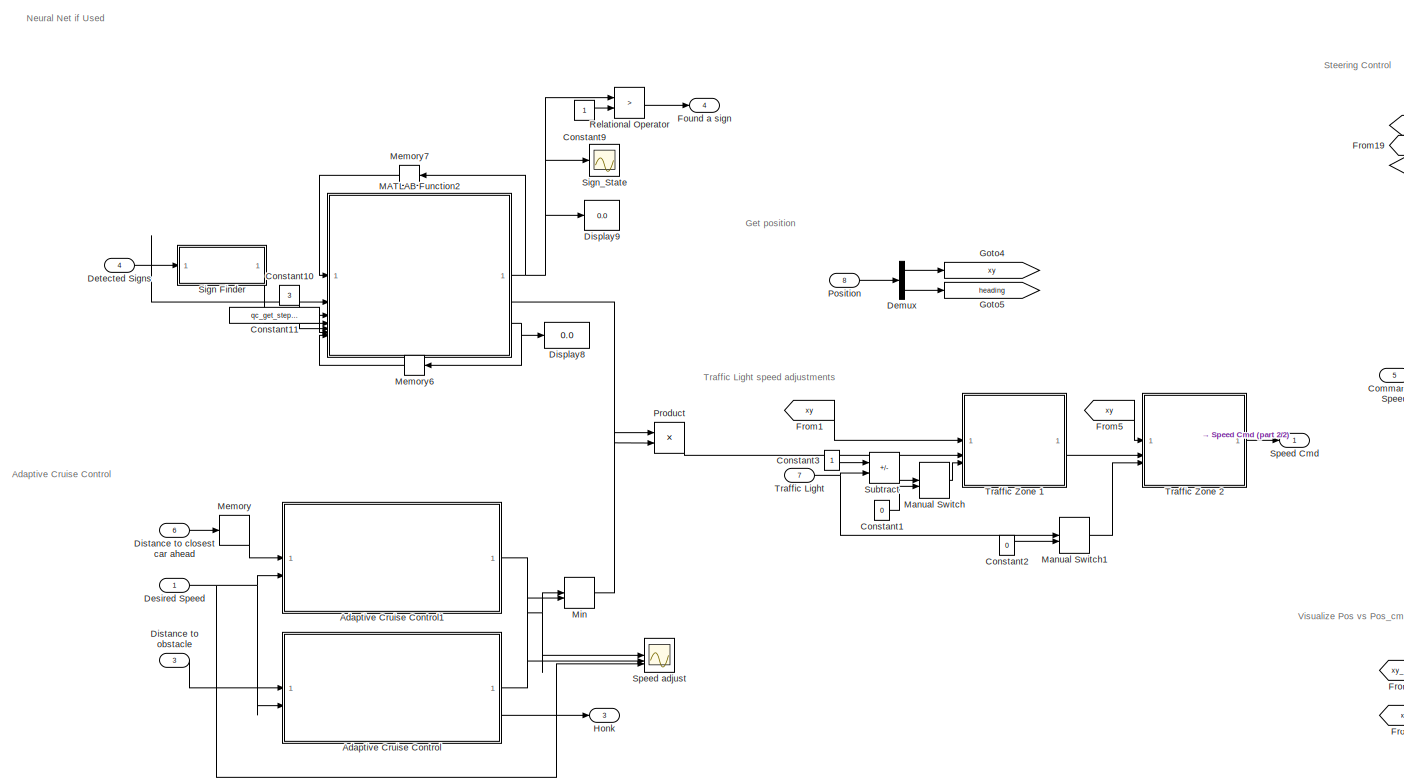
[diagram: Speed & Steering Commander - part 1/2, left side, full height]
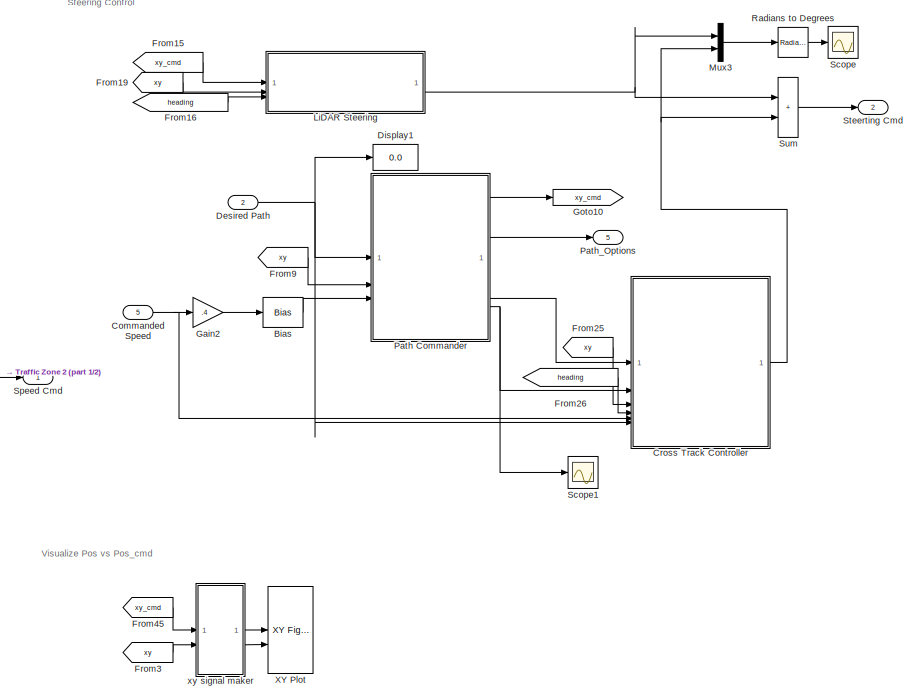
[diagram: Speed & Steering Commander - part 2/2, right side, full height]
BLOCK [SubSystem] Speed & Steering Commander
BLOCK [SubSystem] Speed & Steering Commander/Adaptive Cruise Control
BLOCK [Outport] Speed & Steering Commander/Adaptive Cruise Control/Adjusted Speed Command
  VectorParamsAs1DForOutWhenUnconnected = off
BLOCK [Constant] Speed & Steering Commander/Adaptive Cruise Control/Constant
  Value = 0.375
BLOCK [Constant] Speed & Steering Commander/Adaptive Cruise Control/Constant1
  Value = .4
BLOCK [Constant] Speed & Steering Commander/Adaptive Cruise Control/Constant2
  Value = 0.6
BLOCK [Inport] Speed & Steering Commander/Adaptive Cruise Control/Desired Speed Command
  Port = 2
BLOCK [Outport] Speed & Steering Commander/Adaptive Cruise Control/Honk
  Port = 2
BLOCK [RelationalOperator] Speed & Steering Commander/Adaptive Cruise Control/Less Than
  InputSameDT = off
  Operator = <
  OutDataTypeStr = boolean
  RndMeth = Simplest
BLOCK [SubSystem] Speed & Steering Commander/Adaptive Cruise Control/MATLAB Function
  ErrorFcn = Stateflow.Translate.translate
  PermitHierarchicalResolution = ExplicitOnly
  SFBlockType = MATLAB Function
  TreatAsAtomicUnit = on
BLOCK [Demux] Speed & Steering Commander/Adaptive Cruise Control/MATLAB Function/ Demux 
  Outputs = 1
BLOCK [S-Function] Speed & Steering Commander/Adaptive Cruise Control/MATLAB Function/ SFunction 
  EnableBusSupport = on
  FunctionName = sf_sfun
  PortCounts = [4 2]
  SFcnIsStateOwnerBlock = off
  SFunctionDeploymentMode = off
  Tag = Stateflow S-Function 10
BLOCK [Terminator] Speed & Steering Commander/Adaptive Cruise Control/MATLAB Function/ Terminator 
BLOCK [Inport] Speed & Steering Commander/Adaptive Cruise Control/MATLAB Function/nominal_speed
  Port = 4
BLOCK [Inport] Speed & Steering Commander/Adaptive Cruise Control/MATLAB Function/nominal_tracking_distance
  Port = 3
BLOCK [Inport] Speed & Steering Commander/Adaptive Cruise Control/MATLAB Function/obstacle_distance
BLOCK [Outport] Speed & Steering Commander/Adaptive Cruise Control/MATLAB Function/speed_cmd
  VectorParamsAs1DForOutWhenUnconnected = off
BLOCK [Inport] Speed & Steering Commander/Adaptive Cruise Control/MATLAB Function/stop_distance
  Port = 2
BLOCK [Scope] Speed & Steering Commander/Adaptive Cruise Control/Scope
  Floating = off
  NumInputPorts = 2
  ScopeSpecificationString = Simulink.scopes.TimeScopeBlockCfg('CurrentConfiguration', extmgr.ConfigurationSet(extmgr.Configuration('Core','General UI',true,'DisplayFullSourceName',false,'ShowMainToolbar',true,'FigureColor',[0.129411764705882 0.129411764705882 0.129411764705882]),extmgr.Configuration('Sources','WiredSimulink',true,'DataLogging',false,'DataLoggingVariableName','ScopeData1','DataLoggingLimitDataPoints',false,'D...<+2414ch>
BLOCK [Inport] Speed & Steering Commander/Adaptive Cruise Control/obstacleDistance (m)
BLOCK [SubSystem] Speed & Steering Commander/Adaptive Cruise Control1
BLOCK [Outport] Speed & Steering Commander/Adaptive Cruise Control1/Adjusted Speed Command
  VectorParamsAs1DForOutWhenUnconnected = off
BLOCK [Constant] Speed & Steering Commander/Adaptive Cruise Control1/Constant
  Value = 0.6
BLOCK [Constant] Speed & Steering Commander/Adaptive Cruise Control1/Constant1
  Value = .4
BLOCK [Constant] Speed & Steering Commander/Adaptive Cruise Control1/Constant2
BLOCK [Inport] Speed & Steering Commander/Adaptive Cruise Control1/Desired Speed Command
  Port = 2
BLOCK [Outport] Speed & Steering Commander/Adaptive Cruise Control1/Honk
  Port = 2
BLOCK [RelationalOperator] Speed & Steering Commander/Adaptive Cruise Control1/Less Than
  InputSameDT = off
  Operator = <
  OutDataTypeStr = boolean
  RndMeth = Simplest
BLOCK [SubSystem] Speed & Steering Commander/Adaptive Cruise Control1/MATLAB Function
  ErrorFcn = Stateflow.Translate.translate
  PermitHierarchicalResolution = ExplicitOnly
  SFBlockType = MATLAB Function
  TreatAsAtomicUnit = on
BLOCK [Demux] Speed & Steering Commander/Adaptive Cruise Control1/MATLAB Function/ Demux 
  Outputs = 1
BLOCK [S-Function] Speed & Steering Commander/Adaptive Cruise Control1/MATLAB Function/ SFunction 
  EnableBusSupport = on
  FunctionName = sf_sfun
  PortCounts = [4 2]
  SFcnIsStateOwnerBlock = off
  SFunctionDeploymentMode = off
  Tag = Stateflow S-Function 7
BLOCK [Terminator] Speed & Steering Commander/Adaptive Cruise Control1/MATLAB Function/ Terminator 
BLOCK [Inport] Speed & Steering Commander/Adaptive Cruise Control1/MATLAB Function/nominal_speed
  Port = 4
BLOCK [Inport] Speed & Steering Commander/Adaptive Cruise Control1/MATLAB Function/nominal_tracking_distance
  Port = 3
BLOCK [Inport] Speed & Steering Commander/Adaptive Cruise Control1/MATLAB Function/obstacle_distance
BLOCK [Outport] Speed & Steering Commander/Adaptive Cruise Control1/MATLAB Function/speed_cmd
  VectorParamsAs1DForOutWhenUnconnected = off
BLOCK [Inport] Speed & Steering Commander/Adaptive Cruise Control1/MATLAB Function/stop_distance
  Port = 2
BLOCK [Scope] Speed & Steering Commander/Adaptive Cruise Control1/Scope
  Floating = off
  NumInputPorts = 2
  ScopeSpecificationString = Simulink.scopes.TimeScopeBlockCfg('CurrentConfiguration', extmgr.ConfigurationSet(extmgr.Configuration('Core','General UI',true,'DisplayFullSourceName',false,'ShowMainToolbar',true),extmgr.Configuration('Sources','WiredSimulink',true,'DataLogging',false,'DataLoggingVariableName','ScopeData1','DataLoggingLimitDataPoints',false,'DataLoggingMaxPoints','5000','DataLoggingDecimateData',false,'DataLoggi...<+2000ch>
BLOCK [Inport] Speed & Steering Commander/Adaptive Cruise Control1/obstacleDistance (m)
BLOCK [Bias] Speed & Steering Commander/Bias
  Bias = 0.2
  SaturateOnIntegerOverflow = off
BLOCK [Inport] Speed & Steering Commander/Commanded Speed
  Port = 5
BLOCK [Constant] Speed & Steering Commander/Constant1
  Value = 0
BLOCK [Constant] Speed & Steering Commander/Constant10
  Value = 3
BLOCK [Constant] Speed & Steering Commander/Constant11
  Value = qc_get_step_size
BLOCK [Constant] Speed & Steering Commander/Constant2
  Value = 0
BLOCK [Constant] Speed & Steering Commander/Constant3
BLOCK [Constant] Speed & Steering Commander/Constant9
BLOCK [SubSystem] Speed & Steering Commander/Cross Track Controller
BLOCK [Inport] Speed & Steering Commander/Cross Track Controller/Commanded_Speed
  Port = 5
BLOCK [Constant] Speed & Steering Commander/Cross Track Controller/Constant
  Value = 0
BLOCK [Constant] Speed & Steering Commander/Cross Track Controller/Constant1
BLOCK [Constant] Speed & Steering Commander/Cross Track Controller/Constant6
  Value = Initialization_Time
BLOCK [Trigonometry] Speed & Steering Commander/Cross Track Controller/Cos
  Operator = cos
BLOCK [Trigonometry] Speed & Steering Commander/Cross Track Controller/Cos1
BLOCK [Reference] Speed & Steering Commander/Cross Track Controller/Cross Product  REF=quarc_library/Math Operations/Vectors/Cross Product
  SourceBlock = quarc_library/Math Operations/Vectors/Cross Product
  SourceProductName = QUARC Targets
  SourceType = Cross Product
BLOCK [Demux] Speed & Steering Commander/Cross Track Controller/Demux
  Outputs = 3
BLOCK [RelationalOperator] Speed & Steering Commander/Cross Track Controller/Equal
  InputSameDT = off
  Operator = ==
  OutDataTypeStr = boolean
  RndMeth = Simplest
BLOCK [RelationalOperator] Speed & Steering Commander/Cross Track Controller/Equal1
  InputSameDT = off
  Operator = ~=
  OutDataTypeStr = boolean
  RndMeth = Simplest
BLOCK [Gain] Speed & Steering Commander/Cross Track Controller/Gain3
  Gain = .5
BLOCK [Gain] Speed & Steering Commander/Cross Track Controller/Gain6
  Gain = 2
BLOCK [RelationalOperator] Speed & Steering Commander/Cross Track Controller/GreaterThan
  InputSameDT = off
  Operator = <
  OutDataTypeStr = boolean
  RndMeth = Simplest
BLOCK [Inport] Speed & Steering Commander/Cross Track Controller/Heading
  Port = 4
BLOCK [Integrator] Speed & Steering Commander/Cross Track Controller/Integrator
  ExternalReset = level
  LimitOutput = on
  LowerSaturationLimit = -.15
  UpperSaturationLimit = .15
BLOCK [Integrator] Speed & Steering Commander/Cross Track Controller/Integrator1
  ExternalReset = level
  LimitOutput = on
  LowerSaturationLimit = 0
  UpperSaturationLimit = 1
BLOCK [Memory] Speed & Steering Commander/Cross Track Controller/Memory1
  InheritSampleTime = on
  InitialCondition = 6
  LinearizeAsDelay = on
  LinearizeMemory = on
BLOCK [Mux] Speed & Steering Commander/Cross Track Controller/Mux
  DisplayOption = bar
  Inputs = 3
BLOCK [Mux] Speed & Steering Commander/Cross Track Controller/Mux1
  DisplayOption = bar
  Inputs = 2
BLOCK [Mux] Speed & Steering Commander/Cross Track Controller/Mux2
  DisplayOption = bar
  Inputs = 2
BLOCK [Logic] Speed & Steering Commander/Cross Track Controller/OR
  AllPortsSameDT = off
  IconShape = distinctive
  Inputs = 3
  Operator = OR
  OutDataTypeStr = boolean
BLOCK [Inport] Speed & Steering Commander/Cross Track Controller/Path
  Port = 6
BLOCK [Product] Speed & Steering Commander/Cross Track Controller/Product
BLOCK [Product] Speed & Steering Commander/Cross Track Controller/Product3
BLOCK [Reference] Speed & Steering Commander/Cross Track Controller/Radians to Degrees  REF=simulink_extras/Transformations/Radians
to Degrees
  SourceBlock = simulink_extras/Transformations/Radians\nto Degrees
  SourceType = RadiansToDegrees
BLOCK [Saturate] Speed & Steering Commander/Cross Track Controller/Saturation1
  LowerLimit = -.15
  UpperLimit = .15
BLOCK [Scope] Speed & Steering Commander/Cross Track Controller/Scope1
  Floating = off
  NumInputPorts = 2
  ScopeSpecificationString = Simulink.scopes.TimeScopeBlockCfg('CurrentConfiguration', extmgr.ConfigurationSet(extmgr.Configuration('Core','General UI',true,'DisplayFullSourceName',false,'ShowMainToolbar',true),extmgr.Configuration('Sources','WiredSimulink',true,'DataLogging',false,'DataLoggingVariableName','ScopeData2','DataLoggingLimitDataPoints',false,'DataLoggingMaxPoints','5000','DataLoggingDecimateData',false,'DataLoggi...<+1996ch>
BLOCK [Signum] Speed & Steering Commander/Cross Track Controller/Sign
BLOCK [Sum] Speed & Steering Commander/Cross Track Controller/Sum
  IconShape = rectangular
  Inputs = +-
BLOCK [Sum] Speed & Steering Commander/Cross Track Controller/Sum2
  IconShape = rectangular
BLOCK [Reference] Speed & Steering Commander/Cross Track Controller/Time1  REF=quarc_library/Sources/Time/Time
  SourceBlock = quarc_library/Sources/Time/Time
  SourceProductName = QUARC Targets
  SourceType = Time
BLOCK [Inport] Speed & Steering Commander/Cross Track Controller/closest point
BLOCK [Inport] Speed & Steering Commander/Cross Track Controller/distance
  Port = 2
BLOCK [Outport] Speed & Steering Commander/Cross Track Controller/steering correction
BLOCK [Inport] Speed & Steering Commander/Cross Track Controller/xy
  Port = 3
BLOCK [Demux] Speed & Steering Commander/Demux
  Outputs = 2
BLOCK [Inport] Speed & Steering Commander/Desired Path
  Port = 2
BLOCK [Inport] Speed & Steering Commander/Desired Speed
BLOCK [Inport] Speed & Steering Commander/Detected Signs
  Port = 4
BLOCK [Display] Speed & Steering Commander/Display1
BLOCK [Display] Speed & Steering Commander/Display8
BLOCK [Display] Speed & Steering Commander/Display9
BLOCK [Inport] Speed & Steering Commander/Distance to closest car ahead
  Port = 6
BLOCK [Inport] Speed & Steering Commander/Distance to obstacle
  Port = 3
BLOCK [Outport] Speed & Steering Commander/Found a sign
  Port = 4
BLOCK [From] Speed & Steering Commander/From1
  CloseFcn = tagdialog Close
  GotoTag = xy
BLOCK [From] Speed & Steering Commander/From15
  CloseFcn = tagdialog Close
  GotoTag = xy_cmd
BLOCK [From] Speed & Steering Commander/From16
  CloseFcn = tagdialog Close
  GotoTag = heading
BLOCK [From] Speed & Steering Commander/From19
  CloseFcn = tagdialog Close
  GotoTag = xy
BLOCK [From] Speed & Steering Commander/From25
  CloseFcn = tagdialog Close
  GotoTag = xy
BLOCK [From] Speed & Steering Commander/From26
  CloseFcn = tagdialog Close
  GotoTag = heading
BLOCK [From] Speed & Steering Commander/From3
  CloseFcn = tagdialog Close
  GotoTag = xy
BLOCK [From] Speed & Steering Commander/From45
  CloseFcn = tagdialog Close
  GotoTag = xy_cmd
BLOCK [From] Speed & Steering Commander/From5
  CloseFcn = tagdialog Close
  GotoTag = xy
BLOCK [From] Speed & Steering Commander/From9
  CloseFcn = tagdialog Close
  GotoTag = xy
BLOCK [Gain] Speed & Steering Commander/Gain2
  Gain = .4
BLOCK [Goto] Speed & Steering Commander/Goto10
  GotoTag = xy_cmd
BLOCK [Goto] Speed & Steering Commander/Goto4
  GotoTag = xy
BLOCK [Goto] Speed & Steering Commander/Goto5
  GotoTag = heading
BLOCK [Outport] Speed & Steering Commander/Honk
  Port = 3
BLOCK [SubSystem] Speed & Steering Commander/LiDAR Steering
BLOCK [SubSystem] Speed & Steering Commander/LiDAR Steering/Direction Vector Generator
BLOCK [Demux] Speed & Steering Commander/LiDAR Steering/Direction Vector Generator/Demux
  Outputs = 2
BLOCK [Display] Speed & Steering Commander/LiDAR Steering/Direction Vector Generator/Display2
  Commented = on
  Decimation = 100
BLOCK [Display] Speed & Steering Commander/LiDAR Steering/Direction Vector Generator/Display5
  Commented = on
  Decimation = 100
BLOCK [Display] Speed & Steering Commander/LiDAR Steering/Direction Vector Generator/Display8
  Commented = on
  Decimation = 100
BLOCK [Reference] Speed & Steering Commander/LiDAR Steering/Direction Vector Generator/Radians to Degrees1  REF=simulink_extras/Transformations/Radians
to Degrees
  SourceBlock = simulink_extras/Transformations/Radians\nto Degrees
  SourceType = RadiansToDegrees
BLOCK [Reference] Speed & Steering Commander/LiDAR Steering/Direction Vector Generator/Radians to Degrees3  REF=simulink_extras/Transformations/Radians
to Degrees
  SourceBlock = simulink_extras/Transformations/Radians\nto Degrees
  SourceType = RadiansToDegrees
BLOCK [Sqrt] Speed & Steering Commander/LiDAR Steering/Direction Vector Generator/Signed Sqrt
BLOCK [Math] Speed & Steering Commander/LiDAR Steering/Direction Vector Generator/Square
  Operator = square
  SignedPower = on
BLOCK [Sum] Speed & Steering Commander/LiDAR Steering/Direction Vector Generator/Sum
  IconShape = rectangular
  Inputs = +-
BLOCK [Sum] Speed & Steering Commander/LiDAR Steering/Direction Vector Generator/Sum1
  Inputs = +
BLOCK [Sum] Speed & Steering Commander/LiDAR Steering/Direction Vector Generator/Sum3
  IconShape = rectangular
  Inputs = +-
BLOCK [Trigonometry] Speed & Steering Commander/LiDAR Steering/Direction Vector Generator/Trigonometric Function
  Operator = atan2
BLOCK [Outport] Speed & Steering Commander/LiDAR Steering/Direction Vector Generator/aoa
  Port = 2
BLOCK [Outport] Speed & Steering Commander/LiDAR Steering/Direction Vector Generator/distance
BLOCK [Inport] Speed & Steering Commander/LiDAR Steering/Direction Vector Generator/heading
  Port = 3
BLOCK [Inport] Speed & Steering Commander/LiDAR Steering/Direction Vector Generator/xy
  Port = 2
BLOCK [Inport] Speed & Steering Commander/LiDAR Steering/Direction Vector Generator/xy_command
BLOCK [Display] Speed & Steering Commander/LiDAR Steering/Display1
  Decimation = 100
BLOCK [Gain] Speed & Steering Commander/LiDAR Steering/Gain1
BLOCK [Outport] Speed & Steering Commander/LiDAR Steering/LiDAR Steering
  Port = 2
BLOCK [Reference] Speed & Steering Commander/LiDAR Steering/Radians to Degrees1  REF=simulink_extras/Transformations/Radians
to Degrees
  SourceBlock = simulink_extras/Transformations/Radians\nto Degrees
  SourceType = RadiansToDegrees
BLOCK [SubSystem] Speed & Steering Commander/LiDAR Steering/Steering Commander
  ErrorFcn = Stateflow.Translate.translate
  PermitHierarchicalResolution = ExplicitOnly
  SFBlockType = MATLAB Function
  TreatAsAtomicUnit = on
BLOCK [Demux] Speed & Steering Commander/LiDAR Steering/Steering Commander/ Demux 
  Outputs = 1
BLOCK [S-Function] Speed & Steering Commander/LiDAR Steering/Steering Commander/ SFunction 
  EnableBusSupport = on
  FunctionName = sf_sfun
  PortCounts = [1 2]
  SFcnIsStateOwnerBlock = off
  SFunctionDeploymentMode = off
  Tag = Stateflow S-Function 13
BLOCK [Terminator] Speed & Steering Commander/LiDAR Steering/Steering Commander/ Terminator 
BLOCK [Inport] Speed & Steering Commander/LiDAR Steering/Steering Commander/aoa
BLOCK [Outport] Speed & Steering Commander/LiDAR Steering/Steering Commander/steering
BLOCK [Outport] Speed & Steering Commander/LiDAR Steering/distance
BLOCK [Inport] Speed & Steering Commander/LiDAR Steering/heading
  Port = 3
BLOCK [Inport] Speed & Steering Commander/LiDAR Steering/xy
  Port = 2
BLOCK [Inport] Speed & Steering Commander/LiDAR Steering/xy_command
BLOCK [SubSystem] Speed & Steering Commander/MATLAB Function2
  ErrorFcn = Stateflow.Translate.translate
  PermitHierarchicalResolution = ExplicitOnly
  SFBlockType = MATLAB Function
  TreatAsAtomicUnit = on
BLOCK [Demux] Speed & Steering Commander/MATLAB Function2/ Demux 
  Outputs = 1
BLOCK [S-Function] Speed & Steering Commander/MATLAB Function2/ SFunction 
  EnableBusSupport = on
  FunctionName = sf_sfun
  PortCounts = [7 5]
  SFcnIsStateOwnerBlock = off
  SFunctionDeploymentMode = off
  Tag = Stateflow S-Function 26
BLOCK [Terminator] Speed & Steering Commander/MATLAB Function2/ Terminator 
BLOCK [Inport] Speed & Steering Commander/MATLAB Function2/Previous_State
BLOCK [Inport] Speed & Steering Commander/MATLAB Function2/Previous_Timer
  Port = 7
BLOCK [Outport] Speed & Steering Commander/MATLAB Function2/Sign_State
  VectorParamsAs1DForOutWhenUnconnected = off
BLOCK [Inport] Speed & Steering Commander/MATLAB Function2/Sign_Time
  Port = 5
BLOCK [Inport] Speed & Steering Commander/MATLAB Function2/Signs_In
  Port = 2
BLOCK [Outport] Speed & Steering Commander/MATLAB Function2/Signs_Out
  Port = 3
BLOCK [Inport] Speed & Steering Commander/MATLAB Function2/Slow_Sign
  Port = 4
BLOCK [Outport] Speed & Steering Commander/MATLAB Function2/Speed_Multiplier
  Port = 2
BLOCK [Inport] Speed & Steering Commander/MATLAB Function2/Step_size
  Port = 6
BLOCK [Inport] Speed & Steering Commander/MATLAB Function2/Stop_Sign
  Port = 3
BLOCK [Outport] Speed & Steering Commander/MATLAB Function2/Timer
  Port = 4
BLOCK [ManualSwitch] Speed & Steering Commander/Manual Switch
BLOCK [ManualSwitch] Speed & Steering Commander/Manual Switch1
BLOCK [Memory] Speed & Steering Commander/Memory
  InheritSampleTime = on
  LinearizeAsDelay = on
  LinearizeMemory = on
BLOCK [Memory] Speed & Steering Commander/Memory6
  InheritSampleTime = on
  LinearizeAsDelay = on
  LinearizeMemory = on
  NameLocation = top
BLOCK [Memory] Speed & Steering Commander/Memory7
  InheritSampleTime = on
  InitialCondition = 1
  LinearizeAsDelay = on
  LinearizeMemory = on
  NameLocation = top
BLOCK [MinMax] Speed & Steering Commander/Min
  Inputs = 2
BLOCK [Mux] Speed & Steering Commander/Mux3
  DisplayOption = bar
  Inputs = 2
BLOCK [SubSystem] Speed & Steering Commander/Path Commander
BLOCK [Gain] Speed & Steering Commander/Path Commander/Allowable Paths Mask
  Gain = map_mask
BLOCK [Constant] Speed & Steering Commander/Path Commander/Allowable distance from path for viable paths
  Value = 0.05
BLOCK [DataTypeConversion] Speed & Steering Commander/Path Commander/Data Type Conversion
  NameLocation = right
  RndMeth = Floor
  SaturateOnIntegerOverflow = off
BLOCK [Display] Speed & Steering Commander/Path Commander/Display
BLOCK [Scope] Speed & Steering Commander/Path Commander/Distance  
  Floating = off
  NumInputPorts = 1
  ScopeSpecificationString = Simulink.scopes.TimeScopeBlockCfg('CurrentConfiguration', extmgr.ConfigurationSet(extmgr.Configuration('Core','General UI',true,'DisplayFullSourceName',false,'ShowMainToolbar',true),extmgr.Configuration('Sources','WiredSimulink',true,'DataLogging',false,'DataLoggingVariableName','ScopeData1','DataLoggingLimitDataPoints',false,'DataLoggingMaxPoints','5000','DataLoggingDecimateData',false,'DataLoggi...<+2006ch>
BLOCK [Constant] Speed & Steering Commander/Path Commander/Duration (s) within allowable distance before viable path detected
  Value = 0.2
BLOCK [SubSystem] Speed & Steering Commander/Path Commander/Less Than Threshold
BLOCK [DataTypeConversion] Speed & Steering Commander/Path Commander/Less Than Threshold/Data Type Conversion
  RndMeth = Floor
  SaturateOnIntegerOverflow = off
BLOCK [DiscreteIntegrator] Speed & Steering Commander/Path Commander/Less Than Threshold/Discrete-Time Integrator
  ExternalReset = level
  ICPrevOutput = DiscIntNeverNeededParam
  ICPrevScaledInput = DiscIntNeverNeededParam
  NameLocation = top
  Priority = 1
  SampleTime = qc_get_step_size
BLOCK [Inport] Speed & Steering Commander/Path Commander/Less Than Threshold/Distance Threshold
  Port = 2
BLOCK [Inport] Speed & Steering Commander/Path Commander/Less Than Threshold/Distances
BLOCK [Inport] Speed & Steering Commander/Path Commander/Less Than Threshold/Duration Threshold
  Port = 3
BLOCK [Logic] Speed & Steering Commander/Path Commander/Less Than Threshold/Logical Operator
  AllPortsSameDT = off
  Operator = NOT
  OutDataTypeStr = boolean
BLOCK [RelationalOperator] Speed & Steering Commander/Path Commander/Less Than Threshold/Relational Operator
  InputSameDT = off
  Operator = <
BLOCK [RelationalOperator] Speed & Steering Commander/Path Commander/Less Than Threshold/Relational Operator1
  InputSameDT = off
BLOCK [Outport] Speed & Steering Commander/Path Commander/Less Than Threshold/elapsed
  VectorParamsAs1DForOutWhenUnconnected = off
BLOCK [Outport] Speed & Steering Commander/Path Commander/Less Than Threshold/time
  Port = 2
  VectorParamsAs1DForOutWhenUnconnected = off
BLOCK [MultiPortSwitch] Speed & Steering Commander/Path Commander/Multiport Switch
  DiagnosticForDefault = None
  InputSameDT = off
  Inputs = 7
  SaturateOnIntegerOverflow = off
BLOCK [MultiPortSwitch] Speed & Steering Commander/Path Commander/Multiport Switch1
  DiagnosticForDefault = None
  InputSameDT = off
  Inputs = 7
  SaturateOnIntegerOverflow = off
BLOCK [MultiPortSwitch] Speed & Steering Commander/Path Commander/Multiport Switch2
  DiagnosticForDefault = None
  InputSameDT = off
  Inputs = 7
  SaturateOnIntegerOverflow = off
BLOCK [Mux] Speed & Steering Commander/Path Commander/Mux
  DisplayOption = bar
  Inputs = 7
BLOCK [SubSystem] Speed & Steering Commander/Path Commander/Path 1  Look Ahead Generator
BLOCK [Bias] Speed & Steering Commander/Path Commander/Path 1  Look Ahead Generator/Bias1
  Bias = 1
  SaturateOnIntegerOverflow = off
BLOCK [Bias] Speed & Steering Commander/Path Commander/Path 1  Look Ahead Generator/Bias3
  Bias = 1
  SaturateOnIntegerOverflow = off
BLOCK [Constant] Speed & Steering Commander/Path Commander/Path 1  Look Ahead Generator/Constant
  Value = path_x
BLOCK [Constant] Speed & Steering Commander/Path Commander/Path 1  Look Ahead Generator/Constant1
  Value = length(path_x)
BLOCK [Constant] Speed & Steering Commander/Path Commander/Path 1  Look Ahead Generator/Constant10
  Value = 10
BLOCK [Constant] Speed & Steering Commander/Path Commander/Path 1  Look Ahead Generator/Constant11
BLOCK [Constant] Speed & Steering Commander/Path Commander/Path 1  Look Ahead Generator/Constant2
  Value = path_x
BLOCK [Constant] Speed & Steering Commander/Path Commander/Path 1  Look Ahead Generator/Constant3
  Value = path_y
BLOCK [Constant] Speed & Steering Commander/Path Commander/Path 1  Look Ahead Generator/Constant4
  Value = path_y
BLOCK [Constant] Speed & Steering Commander/Path Commander/Path 1  Look Ahead Generator/Constant5
  Value = 100
BLOCK [Constant] Speed & Steering Commander/Path Commander/Path 1  Look Ahead Generator/Constant6
  Value = path_x
BLOCK [Constant] Speed & Steering Commander/Path Commander/Path 1  Look Ahead Generator/Constant7
  Value = length(path_x)
BLOCK [Constant] Speed & Steering Commander/Path Commander/Path 1  Look Ahead Generator/Constant8
  Value = path_y
BLOCK [Constant] Speed & Steering Commander/Path Commander/Path 1  Look Ahead Generator/Constant9
  Value = path_x
BLOCK [Demux] Speed & Steering Commander/Path Commander/Path 1  Look Ahead Generator/Demux1
  Outputs = 2
BLOCK [Rounding] Speed & Steering Commander/Path Commander/Path 1  Look Ahead Generator/Floor
BLOCK [RelationalOperator] Speed & Steering Commander/Path Commander/Path 1  Look Ahead Generator/GreaterThan
  InputSameDT = off
  Operator = <
  OutDataTypeStr = boolean
  RndMeth = Simplest
BLOCK [ManualSwitch] Speed & Steering Commander/Path Commander/Path 1  Look Ahead Generator/Manual Switch
  CurrentSetting = 0
BLOCK [Memory] Speed & Steering Commander/Path Commander/Path 1  Look Ahead Generator/Memory
  InheritSampleTime = on
  InitialCondition = 1
  LinearizeAsDelay = on
  LinearizeMemory = on
  NameLocation = top
BLOCK [Math] Speed & Steering Commander/Path Commander/Path 1  Look Ahead Generator/Mod
  Operator = mod
  SignedPower = on
BLOCK [Math] Speed & Steering Commander/Path Commander/Path 1  Look Ahead Generator/Mod1
  Operator = mod
  SignedPower = on
BLOCK [Mux] Speed & Steering Commander/Path Commander/Path 1  Look Ahead Generator/Mux
  DisplayOption = bar
  Inputs = 2
BLOCK [Mux] Speed & Steering Commander/Path Commander/Path 1  Look Ahead Generator/Mux1
  DisplayOption = bar
  Inputs = 2
BLOCK [Selector] Speed & Steering Commander/Path Commander/Path 1  Look Ahead Generator/Selector1
  IndexOptions = Index vector (port)
  Indices = [1 3]
  InputPortWidth = length(path_x)
  OutputSizes = 1
BLOCK [Selector] Speed & Steering Commander/Path Commander/Path 1  Look Ahead Generator/Selector2
  IndexOptions = Index vector (port)
  Indices = [1 3]
  InputPortWidth = length(path_x)
  OutputSizes = 1
BLOCK [Selector] Speed & Steering Commander/Path Commander/Path 1  Look Ahead Generator/Selector3
  IndexOptions = Index vector (port)
  Indices = [1 3]
  InputPortWidth = length(path_x)
  OutputSizes = 1
BLOCK [Selector] Speed & Steering Commander/Path Commander/Path 1  Look Ahead Generator/Selector4
  IndexOptions = Index vector (port)
  Indices = [1 3]
  InputPortWidth = length(path_x)
  OutputSizes = 1
BLOCK [Selector] Speed & Steering Commander/Path Commander/Path 1  Look Ahead Generator/Selector5
  IndexOptions = Index vector (port)
  Indices = [1 3]
  InputPortWidth = length(path_x)
  OutputSizes = 1
BLOCK [Sum] Speed & Steering Commander/Path Commander/Path 1  Look Ahead Generator/Sum
  IconShape = rectangular
  NameLocation = right
BLOCK [Reference] Speed & Steering Commander/Path Commander/Path 1  Look Ahead Generator/Time  REF=quarc_library/Sources/Time/Time
  SourceBlock = quarc_library/Sources/Time/Time
  SourceProductName = QUARC Targets
  SourceType = Time
BLOCK [SubSystem] Speed & Steering Commander/Path Commander/Path 1  Look Ahead Generator/Windowed Closest Point Locator *Feedback the location1
  ErrorFcn = Stateflow.Translate.translate
  PermitHierarchicalResolution = ExplicitOnly
  SFBlockType = MATLAB Function
  TreatAsAtomicUnit = on
BLOCK [Demux] Speed & Steering Commander/Path Commander/Path 1  Look Ahead Generator/Windowed Closest Point Locator *Feedback the location1/ Demux 
  Outputs = 1
BLOCK [S-Function] Speed & Steering Commander/Path Commander/Path 1  Look Ahead Generator/Windowed Closest Point Locator *Feedback the location1/ SFunction 
  EnableBusSupport = on
  FunctionName = sf_sfun
  PortCounts = [7 3]
  SFcnIsStateOwnerBlock = off
  SFunctionDeploymentMode = off
  Tag = Stateflow S-Function 19
BLOCK [Terminator] Speed & Steering Commander/Path Commander/Path 1  Look Ahead Generator/Windowed Closest Point Locator *Feedback the location1/ Terminator 
BLOCK [Outport] Speed & Steering Commander/Path Commander/Path 1  Look Ahead Generator/Windowed Closest Point Locator *Feedback the location1/distance
  Port = 2
  VectorParamsAs1DForOutWhenUnconnected = off
BLOCK [Inport] Speed & Steering Commander/Path Commander/Path 1  Look Ahead Generator/Windowed Closest Point Locator *Feedback the location1/global_search
  Port = 6
BLOCK [Outport] Speed & Steering Commander/Path Commander/Path 1  Look Ahead Generator/Windowed Closest Point Locator *Feedback the location1/location
  VectorParamsAs1DForOutWhenUnconnected = off
BLOCK [Inport] Speed & Steering Commander/Path Commander/Path 1  Look Ahead Generator/Windowed Closest Point Locator *Feedback the location1/previous_location
  Port = 7
BLOCK [Inport] Speed & Steering Commander/Path Commander/Path 1  Look Ahead Generator/Windowed Closest Point Locator *Feedback the location1/window
  Port = 5
BLOCK [Inport] Speed & Steering Commander/Path Commander/Path 1  Look Ahead Generator/Windowed Closest Point Locator *Feedback the location1/x
BLOCK [Inport] Speed & Steering Commander/Path Commander/Path 1  Look Ahead Generator/Windowed Closest Point Locator *Feedback the location1/x_array
  Port = 3
BLOCK [Inport] Speed & Steering Commander/Path Commander/Path 1  Look Ahead Generator/Windowed Closest Point Locator *Feedback the location1/y
  Port = 2
BLOCK [Inport] Speed & Steering Commander/Path Commander/Path 1  Look Ahead Generator/Windowed Closest Point Locator *Feedback the location1/y_array
  Port = 4
BLOCK [Outport] Speed & Steering Commander/Path Commander/Path 1  Look Ahead Generator/closest_point
  Port = 2
BLOCK [Outport] Speed & Steering Commander/Path Commander/Path 1  Look Ahead Generator/distance
  Port = 3
BLOCK [Outport] Speed & Steering Commander/Path Commander/Path 1  Look Ahead Generator/heading_cmd
  Port = 5
BLOCK [Inport] Speed & Steering Commander/Path Commander/Path 1  Look Ahead Generator/look_ahead_d
  Port = 2
BLOCK [Gain] Speed & Steering Commander/Path Commander/Path 1  Look Ahead Generator/m->cm
  Gain = 100
BLOCK [Outport] Speed & Steering Commander/Path Commander/Path 1  Look Ahead Generator/path_i
  Port = 4
BLOCK [Inport] Speed & Steering Commander/Path Commander/Path 1  Look Ahead Generator/xy
BLOCK [Outport] Speed & Steering Commander/Path Commander/Path 1  Look Ahead Generator/xy_cmd
BLOCK [SubSystem] Speed & Steering Commander/Path Commander/Path 2  Look Ahead Generator
BLOCK [Bias] Speed & Steering Commander/Path Commander/Path 2  Look Ahead Generator/Bias1
  Bias = 1
  SaturateOnIntegerOverflow = off
BLOCK [Bias] Speed & Steering Commander/Path Commander/Path 2  Look Ahead Generator/Bias3
  Bias = 1
  SaturateOnIntegerOverflow = off
BLOCK [Constant] Speed & Steering Commander/Path Commander/Path 2  Look Ahead Generator/Constant
  Value = path_x2
BLOCK [Constant] Speed & Steering Commander/Path Commander/Path 2  Look Ahead Generator/Constant1
  Value = length(path_x2)
BLOCK [Constant] Speed & Steering Commander/Path Commander/Path 2  Look Ahead Generator/Constant10
  Value = 10
BLOCK [Constant] Speed & Steering Commander/Path Commander/Path 2  Look Ahead Generator/Constant11
BLOCK [Constant] Speed & Steering Commander/Path Commander/Path 2  Look Ahead Generator/Constant2
  Value = path_x2
BLOCK [Constant] Speed & Steering Commander/Path Commander/Path 2  Look Ahead Generator/Constant3
  Value = path_y2
BLOCK [Constant] Speed & Steering Commander/Path Commander/Path 2  Look Ahead Generator/Constant4
  Value = path_y2
BLOCK [Constant] Speed & Steering Commander/Path Commander/Path 2  Look Ahead Generator/Constant5
  Value = 100
BLOCK [Constant] Speed & Steering Commander/Path Commander/Path 2  Look Ahead Generator/Constant6
  Value = path_x2
BLOCK [Constant] Speed & Steering Commander/Path Commander/Path 2  Look Ahead Generator/Constant7
  Value = length(path_x2)
BLOCK [Constant] Speed & Steering Commander/Path Commander/Path 2  Look Ahead Generator/Constant8
  Value = path_y2
BLOCK [Constant] Speed & Steering Commander/Path Commander/Path 2  Look Ahead Generator/Constant9
  Value = path_x2
BLOCK [Demux] Speed & Steering Commander/Path Commander/Path 2  Look Ahead Generator/Demux1
  Outputs = 2
BLOCK [Rounding] Speed & Steering Commander/Path Commander/Path 2  Look Ahead Generator/Floor
BLOCK [RelationalOperator] Speed & Steering Commander/Path Commander/Path 2  Look Ahead Generator/GreaterThan
  InputSameDT = off
  Operator = <
  OutDataTypeStr = boolean
  RndMeth = Simplest
BLOCK [ManualSwitch] Speed & Steering Commander/Path Commander/Path 2  Look Ahead Generator/Manual Switch
  CurrentSetting = 0
BLOCK [Memory] Speed & Steering Commander/Path Commander/Path 2  Look Ahead Generator/Memory
  InheritSampleTime = on
  InitialCondition = 1
  LinearizeAsDelay = on
  LinearizeMemory = on
  NameLocation = top
BLOCK [Math] Speed & Steering Commander/Path Commander/Path 2  Look Ahead Generator/Mod
  Operator = mod
  SignedPower = on
BLOCK [Math] Speed & Steering Commander/Path Commander/Path 2  Look Ahead Generator/Mod1
  Operator = mod
  SignedPower = on
BLOCK [Mux] Speed & Steering Commander/Path Commander/Path 2  Look Ahead Generator/Mux
  DisplayOption = bar
  Inputs = 2
BLOCK [Mux] Speed & Steering Commander/Path Commander/Path 2  Look Ahead Generator/Mux1
  DisplayOption = bar
  Inputs = 2
BLOCK [Selector] Speed & Steering Commander/Path Commander/Path 2  Look Ahead Generator/Selector1
  IndexOptions = Index vector (port)
  Indices = [1 3]
  InputPortWidth = length(path_x2)
  OutputSizes = 1
BLOCK [Selector] Speed & Steering Commander/Path Commander/Path 2  Look Ahead Generator/Selector2
  IndexOptions = Index vector (port)
  Indices = [1 3]
  InputPortWidth = length(path_x2)
  OutputSizes = 1
BLOCK [Selector] Speed & Steering Commander/Path Commander/Path 2  Look Ahead Generator/Selector3
  IndexOptions = Index vector (port)
  Indices = [1 3]
  InputPortWidth = length(path_x2)
  OutputSizes = 1
BLOCK [Selector] Speed & Steering Commander/Path Commander/Path 2  Look Ahead Generator/Selector4
  IndexOptions = Index vector (port)
  Indices = [1 3]
  InputPortWidth = length(path_x2)
  OutputSizes = 1
BLOCK [Selector] Speed & Steering Commander/Path Commander/Path 2  Look Ahead Generator/Selector5
  IndexOptions = Index vector (port)
  Indices = [1 3]
  InputPortWidth = length(path_x2)
  OutputSizes = 1
BLOCK [Sum] Speed & Steering Commander/Path Commander/Path 2  Look Ahead Generator/Sum
  IconShape = rectangular
  NameLocation = right
BLOCK [Reference] Speed & Steering Commander/Path Commander/Path 2  Look Ahead Generator/Time  REF=quarc_library/Sources/Time/Time
  SourceBlock = quarc_library/Sources/Time/Time
  SourceProductName = QUARC Targets
  SourceType = Time
BLOCK [SubSystem] Speed & Steering Commander/Path Commander/Path 2  Look Ahead Generator/Windowed Closest Point Locator *Feedback the location1
  ErrorFcn = Stateflow.Translate.translate
  PermitHierarchicalResolution = ExplicitOnly
  SFBlockType = MATLAB Function
  TreatAsAtomicUnit = on
BLOCK [Demux] Speed & Steering Commander/Path Commander/Path 2  Look Ahead Generator/Windowed Closest Point Locator *Feedback the location1/ Demux 
  Outputs = 1
BLOCK [S-Function] Speed & Steering Commander/Path Commander/Path 2  Look Ahead Generator/Windowed Closest Point Locator *Feedback the location1/ SFunction 
  EnableBusSupport = on
  FunctionName = sf_sfun
  PortCounts = [7 3]
  SFcnIsStateOwnerBlock = off
  SFunctionDeploymentMode = off
  Tag = Stateflow S-Function 20
BLOCK [Terminator] Speed & Steering Commander/Path Commander/Path 2  Look Ahead Generator/Windowed Closest Point Locator *Feedback the location1/ Terminator 
BLOCK [Outport] Speed & Steering Commander/Path Commander/Path 2  Look Ahead Generator/Windowed Closest Point Locator *Feedback the location1/distance
  Port = 2
  VectorParamsAs1DForOutWhenUnconnected = off
BLOCK [Inport] Speed & Steering Commander/Path Commander/Path 2  Look Ahead Generator/Windowed Closest Point Locator *Feedback the location1/global_search
  Port = 6
BLOCK [Outport] Speed & Steering Commander/Path Commander/Path 2  Look Ahead Generator/Windowed Closest Point Locator *Feedback the location1/location
  VectorParamsAs1DForOutWhenUnconnected = off
BLOCK [Inport] Speed & Steering Commander/Path Commander/Path 2  Look Ahead Generator/Windowed Closest Point Locator *Feedback the location1/previous_location
  Port = 7
BLOCK [Inport] Speed & Steering Commander/Path Commander/Path 2  Look Ahead Generator/Windowed Closest Point Locator *Feedback the location1/window
  Port = 5
BLOCK [Inport] Speed & Steering Commander/Path Commander/Path 2  Look Ahead Generator/Windowed Closest Point Locator *Feedback the location1/x
BLOCK [Inport] Speed & Steering Commander/Path Commander/Path 2  Look Ahead Generator/Windowed Closest Point Locator *Feedback the location1/x_array
  Port = 3
BLOCK [Inport] Speed & Steering Commander/Path Commander/Path 2  Look Ahead Generator/Windowed Closest Point Locator *Feedback the location1/y
  Port = 2
BLOCK [Inport] Speed & Steering Commander/Path Commander/Path 2  Look Ahead Generator/Windowed Closest Point Locator *Feedback the location1/y_array
  Port = 4
BLOCK [Outport] Speed & Steering Commander/Path Commander/Path 2  Look Ahead Generator/closest_point
  Port = 2
BLOCK [Outport] Speed & Steering Commander/Path Commander/Path 2  Look Ahead Generator/distance
  Port = 3
BLOCK [Outport] Speed & Steering Commander/Path Commander/Path 2  Look Ahead Generator/heading_cmd
  Port = 5
BLOCK [Inport] Speed & Steering Commander/Path Commander/Path 2  Look Ahead Generator/look_ahead_d
  Port = 2
BLOCK [Gain] Speed & Steering Commander/Path Commander/Path 2  Look Ahead Generator/m->cm
  Gain = 100
BLOCK [Outport] Speed & Steering Commander/Path Commander/Path 2  Look Ahead Generator/path_i
  Port = 4
BLOCK [Inport] Speed & Steering Commander/Path Commander/Path 2  Look Ahead Generator/xy
BLOCK [Outport] Speed & Steering Commander/Path Commander/Path 2  Look Ahead Generator/xy_cmd
BLOCK [SubSystem] Speed & Steering Commander/Path Commander/Path 3  Look Ahead Generator
BLOCK [Bias] Speed & Steering Commander/Path Commander/Path 3  Look Ahead Generator/Bias1
  Bias = 1
  SaturateOnIntegerOverflow = off
BLOCK [Bias] Speed & Steering Commander/Path Commander/Path 3  Look Ahead Generator/Bias3
  Bias = 1
  SaturateOnIntegerOverflow = off
BLOCK [Constant] Speed & Steering Commander/Path Commander/Path 3  Look Ahead Generator/Constant
  Value = path_x3
BLOCK [Constant] Speed & Steering Commander/Path Commander/Path 3  Look Ahead Generator/Constant1
  Value = length(path_x3)
BLOCK [Constant] Speed & Steering Commander/Path Commander/Path 3  Look Ahead Generator/Constant10
  Value = 10
BLOCK [Constant] Speed & Steering Commander/Path Commander/Path 3  Look Ahead Generator/Constant11
BLOCK [Constant] Speed & Steering Commander/Path Commander/Path 3  Look Ahead Generator/Constant2
  Value = path_x3
BLOCK [Constant] Speed & Steering Commander/Path Commander/Path 3  Look Ahead Generator/Constant3
  Value = path_y3
BLOCK [Constant] Speed & Steering Commander/Path Commander/Path 3  Look Ahead Generator/Constant4
  Value = path_y3
BLOCK [Constant] Speed & Steering Commander/Path Commander/Path 3  Look Ahead Generator/Constant5
  Value = 100
BLOCK [Constant] Speed & Steering Commander/Path Commander/Path 3  Look Ahead Generator/Constant6
  Value = path_x3
BLOCK [Constant] Speed & Steering Commander/Path Commander/Path 3  Look Ahead Generator/Constant7
  Value = length(path_x3)
BLOCK [Constant] Speed & Steering Commander/Path Commander/Path 3  Look Ahead Generator/Constant8
  Value = path_y3
BLOCK [Constant] Speed & Steering Commander/Path Commander/Path 3  Look Ahead Generator/Constant9
  Value = path_x3
BLOCK [Demux] Speed & Steering Commander/Path Commander/Path 3  Look Ahead Generator/Demux1
  Outputs = 2
BLOCK [Rounding] Speed & Steering Commander/Path Commander/Path 3  Look Ahead Generator/Floor
BLOCK [RelationalOperator] Speed & Steering Commander/Path Commander/Path 3  Look Ahead Generator/GreaterThan
  InputSameDT = off
  Operator = <
  OutDataTypeStr = boolean
  RndMeth = Simplest
BLOCK [ManualSwitch] Speed & Steering Commander/Path Commander/Path 3  Look Ahead Generator/Manual Switch
  CurrentSetting = 0
BLOCK [Memory] Speed & Steering Commander/Path Commander/Path 3  Look Ahead Generator/Memory
  InheritSampleTime = on
  InitialCondition = 1
  LinearizeAsDelay = on
  LinearizeMemory = on
  NameLocation = top
BLOCK [Math] Speed & Steering Commander/Path Commander/Path 3  Look Ahead Generator/Mod
  Operator = mod
  SignedPower = on
BLOCK [Math] Speed & Steering Commander/Path Commander/Path 3  Look Ahead Generator/Mod1
  Operator = mod
  SignedPower = on
BLOCK [Mux] Speed & Steering Commander/Path Commander/Path 3  Look Ahead Generator/Mux
  DisplayOption = bar
  Inputs = 2
BLOCK [Mux] Speed & Steering Commander/Path Commander/Path 3  Look Ahead Generator/Mux1
  DisplayOption = bar
  Inputs = 2
BLOCK [Selector] Speed & Steering Commander/Path Commander/Path 3  Look Ahead Generator/Selector1
  IndexOptions = Index vector (port)
  Indices = [1 3]
  InputPortWidth = length(path_x3)
  OutputSizes = 1
BLOCK [Selector] Speed & Steering Commander/Path Commander/Path 3  Look Ahead Generator/Selector2
  IndexOptions = Index vector (port)
  Indices = [1 3]
  InputPortWidth = length(path_x3)
  OutputSizes = 1
BLOCK [Selector] Speed & Steering Commander/Path Commander/Path 3  Look Ahead Generator/Selector3
  IndexOptions = Index vector (port)
  Indices = [1 3]
  InputPortWidth = length(path_x3)
  OutputSizes = 1
BLOCK [Selector] Speed & Steering Commander/Path Commander/Path 3  Look Ahead Generator/Selector4
  IndexOptions = Index vector (port)
  Indices = [1 3]
  InputPortWidth = length(path_x3)
  OutputSizes = 1
BLOCK [Selector] Speed & Steering Commander/Path Commander/Path 3  Look Ahead Generator/Selector5
  IndexOptions = Index vector (port)
  Indices = [1 3]
  InputPortWidth = length(path_x3)
  OutputSizes = 1
BLOCK [Sum] Speed & Steering Commander/Path Commander/Path 3  Look Ahead Generator/Sum
  IconShape = rectangular
  NameLocation = right
BLOCK [Reference] Speed & Steering Commander/Path Commander/Path 3  Look Ahead Generator/Time  REF=quarc_library/Sources/Time/Time
  SourceBlock = quarc_library/Sources/Time/Time
  SourceProductName = QUARC Targets
  SourceType = Time
BLOCK [SubSystem] Speed & Steering Commander/Path Commander/Path 3  Look Ahead Generator/Windowed Closest Point Locator *Feedback the location1
  ErrorFcn = Stateflow.Translate.translate
  PermitHierarchicalResolution = ExplicitOnly
  SFBlockType = MATLAB Function
  TreatAsAtomicUnit = on
BLOCK [Demux] Speed & Steering Commander/Path Commander/Path 3  Look Ahead Generator/Windowed Closest Point Locator *Feedback the location1/ Demux 
  Outputs = 1
BLOCK [S-Function] Speed & Steering Commander/Path Commander/Path 3  Look Ahead Generator/Windowed Closest Point Locator *Feedback the location1/ SFunction 
  EnableBusSupport = on
  FunctionName = sf_sfun
  PortCounts = [7 3]
  SFcnIsStateOwnerBlock = off
  SFunctionDeploymentMode = off
  Tag = Stateflow S-Function 5
BLOCK [Terminator] Speed & Steering Commander/Path Commander/Path 3  Look Ahead Generator/Windowed Closest Point Locator *Feedback the location1/ Terminator 
BLOCK [Outport] Speed & Steering Commander/Path Commander/Path 3  Look Ahead Generator/Windowed Closest Point Locator *Feedback the location1/distance
  Port = 2
  VectorParamsAs1DForOutWhenUnconnected = off
BLOCK [Inport] Speed & Steering Commander/Path Commander/Path 3  Look Ahead Generator/Windowed Closest Point Locator *Feedback the location1/global_search
  Port = 6
BLOCK [Outport] Speed & Steering Commander/Path Commander/Path 3  Look Ahead Generator/Windowed Closest Point Locator *Feedback the location1/location
  VectorParamsAs1DForOutWhenUnconnected = off
BLOCK [Inport] Speed & Steering Commander/Path Commander/Path 3  Look Ahead Generator/Windowed Closest Point Locator *Feedback the location1/previous_location
  Port = 7
BLOCK [Inport] Speed & Steering Commander/Path Commander/Path 3  Look Ahead Generator/Windowed Closest Point Locator *Feedback the location1/window
  Port = 5
BLOCK [Inport] Speed & Steering Commander/Path Commander/Path 3  Look Ahead Generator/Windowed Closest Point Locator *Feedback the location1/x
BLOCK [Inport] Speed & Steering Commander/Path Commander/Path 3  Look Ahead Generator/Windowed Closest Point Locator *Feedback the location1/x_array
  Port = 3
BLOCK [Inport] Speed & Steering Commander/Path Commander/Path 3  Look Ahead Generator/Windowed Closest Point Locator *Feedback the location1/y
  Port = 2
BLOCK [Inport] Speed & Steering Commander/Path Commander/Path 3  Look Ahead Generator/Windowed Closest Point Locator *Feedback the location1/y_array
  Port = 4
BLOCK [Outport] Speed & Steering Commander/Path Commander/Path 3  Look Ahead Generator/closest_point
  Port = 2
BLOCK [Outport] Speed & Steering Commander/Path Commander/Path 3  Look Ahead Generator/distance
  Port = 3
BLOCK [Outport] Speed & Steering Commander/Path Commander/Path 3  Look Ahead Generator/heading_cmd
  Port = 5
BLOCK [Inport] Speed & Steering Commander/Path Commander/Path 3  Look Ahead Generator/look_ahead_d
  Port = 2
BLOCK [Gain] Speed & Steering Commander/Path Commander/Path 3  Look Ahead Generator/m->cm
  Gain = 100
BLOCK [Outport] Speed & Steering Commander/Path Commander/Path 3  Look Ahead Generator/path_i
  Port = 4
BLOCK [Inport] Speed & Steering Commander/Path Commander/Path 3  Look Ahead Generator/xy
BLOCK [Outport] Speed & Steering Commander/Path Commander/Path 3  Look Ahead Generator/xy_cmd
BLOCK [SubSystem] Speed & Steering Commander/Path Commander/Path 4  Look Ahead Generator
BLOCK [Bias] Speed & Steering Commander/Path Commander/Path 4  Look Ahead Generator/Bias1
  Bias = 1
  SaturateOnIntegerOverflow = off
BLOCK [Bias] Speed & Steering Commander/Path Commander/Path 4  Look Ahead Generator/Bias3
  Bias = 1
  SaturateOnIntegerOverflow = off
BLOCK [Constant] Speed & Steering Commander/Path Commander/Path 4  Look Ahead Generator/Constant
  Value = path_x4
BLOCK [Constant] Speed & Steering Commander/Path Commander/Path 4  Look Ahead Generator/Constant1
  Value = length(path_x4)
BLOCK [Constant] Speed & Steering Commander/Path Commander/Path 4  Look Ahead Generator/Constant10
  Value = 10
BLOCK [Constant] Speed & Steering Commander/Path Commander/Path 4  Look Ahead Generator/Constant11
BLOCK [Constant] Speed & Steering Commander/Path Commander/Path 4  Look Ahead Generator/Constant2
  Value = path_x4
BLOCK [Constant] Speed & Steering Commander/Path Commander/Path 4  Look Ahead Generator/Constant3
  Value = path_y4
BLOCK [Constant] Speed & Steering Commander/Path Commander/Path 4  Look Ahead Generator/Constant4
  Value = path_y4
BLOCK [Constant] Speed & Steering Commander/Path Commander/Path 4  Look Ahead Generator/Constant5
  Value = 100
BLOCK [Constant] Speed & Steering Commander/Path Commander/Path 4  Look Ahead Generator/Constant6
  Value = path_x4
BLOCK [Constant] Speed & Steering Commander/Path Commander/Path 4  Look Ahead Generator/Constant7
  Value = length(path_x4)
BLOCK [Constant] Speed & Steering Commander/Path Commander/Path 4  Look Ahead Generator/Constant8
  Value = path_y4
BLOCK [Constant] Speed & Steering Commander/Path Commander/Path 4  Look Ahead Generator/Constant9
  Value = path_x4
BLOCK [Demux] Speed & Steering Commander/Path Commander/Path 4  Look Ahead Generator/Demux1
  Outputs = 2
BLOCK [Rounding] Speed & Steering Commander/Path Commander/Path 4  Look Ahead Generator/Floor
BLOCK [RelationalOperator] Speed & Steering Commander/Path Commander/Path 4  Look Ahead Generator/GreaterThan
  InputSameDT = off
  Operator = <
  OutDataTypeStr = boolean
  RndMeth = Simplest
BLOCK [ManualSwitch] Speed & Steering Commander/Path Commander/Path 4  Look Ahead Generator/Manual Switch
  CurrentSetting = 0
BLOCK [Memory] Speed & Steering Commander/Path Commander/Path 4  Look Ahead Generator/Memory
  InheritSampleTime = on
  InitialCondition = 1
  LinearizeAsDelay = on
  LinearizeMemory = on
  NameLocation = top
BLOCK [Math] Speed & Steering Commander/Path Commander/Path 4  Look Ahead Generator/Mod
  Operator = mod
  SignedPower = on
BLOCK [Math] Speed & Steering Commander/Path Commander/Path 4  Look Ahead Generator/Mod1
  Operator = mod
  SignedPower = on
BLOCK [Mux] Speed & Steering Commander/Path Commander/Path 4  Look Ahead Generator/Mux
  DisplayOption = bar
  Inputs = 2
BLOCK [Mux] Speed & Steering Commander/Path Commander/Path 4  Look Ahead Generator/Mux1
  DisplayOption = bar
  Inputs = 2
BLOCK [Selector] Speed & Steering Commander/Path Commander/Path 4  Look Ahead Generator/Selector1
  IndexOptions = Index vector (port)
  Indices = [1 3]
  InputPortWidth = length(path_x4)
  OutputSizes = 1
BLOCK [Selector] Speed & Steering Commander/Path Commander/Path 4  Look Ahead Generator/Selector2
  IndexOptions = Index vector (port)
  Indices = [1 3]
  InputPortWidth = length(path_x4)
  OutputSizes = 1
BLOCK [Selector] Speed & Steering Commander/Path Commander/Path 4  Look Ahead Generator/Selector3
  IndexOptions = Index vector (port)
  Indices = [1 3]
  InputPortWidth = length(path_x4)
  OutputSizes = 1
BLOCK [Selector] Speed & Steering Commander/Path Commander/Path 4  Look Ahead Generator/Selector4
  IndexOptions = Index vector (port)
  Indices = [1 3]
  InputPortWidth = length(path_x4)
  OutputSizes = 1
BLOCK [Selector] Speed & Steering Commander/Path Commander/Path 4  Look Ahead Generator/Selector5
  IndexOptions = Index vector (port)
  Indices = [1 3]
  InputPortWidth = length(path_x4)
  OutputSizes = 1
BLOCK [Sum] Speed & Steering Commander/Path Commander/Path 4  Look Ahead Generator/Sum
  IconShape = rectangular
  NameLocation = right
BLOCK [Reference] Speed & Steering Commander/Path Commander/Path 4  Look Ahead Generator/Time  REF=quarc_library/Sources/Time/Time
  SourceBlock = quarc_library/Sources/Time/Time
  SourceProductName = QUARC Targets
  SourceType = Time
BLOCK [SubSystem] Speed & Steering Commander/Path Commander/Path 4  Look Ahead Generator/Windowed Closest Point Locator *Feedback the location1
  ErrorFcn = Stateflow.Translate.translate
  PermitHierarchicalResolution = ExplicitOnly
  SFBlockType = MATLAB Function
  TreatAsAtomicUnit = on
BLOCK [Demux] Speed & Steering Commander/Path Commander/Path 4  Look Ahead Generator/Windowed Closest Point Locator *Feedback the location1/ Demux 
  Outputs = 1
BLOCK [S-Function] Speed & Steering Commander/Path Commander/Path 4  Look Ahead Generator/Windowed Closest Point Locator *Feedback the location1/ SFunction 
  EnableBusSupport = on
  FunctionName = sf_sfun
  PortCounts = [7 3]
  SFcnIsStateOwnerBlock = off
  SFunctionDeploymentMode = off
  Tag = Stateflow S-Function 22
BLOCK [Terminator] Speed & Steering Commander/Path Commander/Path 4  Look Ahead Generator/Windowed Closest Point Locator *Feedback the location1/ Terminator 
BLOCK [Outport] Speed & Steering Commander/Path Commander/Path 4  Look Ahead Generator/Windowed Closest Point Locator *Feedback the location1/distance
  Port = 2
  VectorParamsAs1DForOutWhenUnconnected = off
BLOCK [Inport] Speed & Steering Commander/Path Commander/Path 4  Look Ahead Generator/Windowed Closest Point Locator *Feedback the location1/global_search
  Port = 6
BLOCK [Outport] Speed & Steering Commander/Path Commander/Path 4  Look Ahead Generator/Windowed Closest Point Locator *Feedback the location1/location
  VectorParamsAs1DForOutWhenUnconnected = off
BLOCK [Inport] Speed & Steering Commander/Path Commander/Path 4  Look Ahead Generator/Windowed Closest Point Locator *Feedback the location1/previous_location
  Port = 7
BLOCK [Inport] Speed & Steering Commander/Path Commander/Path 4  Look Ahead Generator/Windowed Closest Point Locator *Feedback the location1/window
  Port = 5
BLOCK [Inport] Speed & Steering Commander/Path Commander/Path 4  Look Ahead Generator/Windowed Closest Point Locator *Feedback the location1/x
BLOCK [Inport] Speed & Steering Commander/Path Commander/Path 4  Look Ahead Generator/Windowed Closest Point Locator *Feedback the location1/x_array
  Port = 3
BLOCK [Inport] Speed & Steering Commander/Path Commander/Path 4  Look Ahead Generator/Windowed Closest Point Locator *Feedback the location1/y
  Port = 2
BLOCK [Inport] Speed & Steering Commander/Path Commander/Path 4  Look Ahead Generator/Windowed Closest Point Locator *Feedback the location1/y_array
  Port = 4
BLOCK [Outport] Speed & Steering Commander/Path Commander/Path 4  Look Ahead Generator/closest_point
  Port = 2
BLOCK [Outport] Speed & Steering Commander/Path Commander/Path 4  Look Ahead Generator/distance
  Port = 3
BLOCK [Outport] Speed & Steering Commander/Path Commander/Path 4  Look Ahead Generator/heading_cmd
  Port = 5
BLOCK [Inport] Speed & Steering Commander/Path Commander/Path 4  Look Ahead Generator/look_ahead_d
  Port = 2
BLOCK [Gain] Speed & Steering Commander/Path Commander/Path 4  Look Ahead Generator/m->cm
  Gain = 100
BLOCK [Outport] Speed & Steering Commander/Path Commander/Path 4  Look Ahead Generator/path_i
  Port = 4
BLOCK [Inport] Speed & Steering Commander/Path Commander/Path 4  Look Ahead Generator/xy
BLOCK [Outport] Speed & Steering Commander/Path Commander/Path 4  Look Ahead Generator/xy_cmd
BLOCK [SubSystem] Speed & Steering Commander/Path Commander/Path 5  Look Ahead Generator
BLOCK [Bias] Speed & Steering Commander/Path Commander/Path 5  Look Ahead Generator/Bias1
  Bias = 1
  SaturateOnIntegerOverflow = off
BLOCK [Bias] Speed & Steering Commander/Path Commander/Path 5  Look Ahead Generator/Bias3
  Bias = 1
  SaturateOnIntegerOverflow = off
BLOCK [Constant] Speed & Steering Commander/Path Commander/Path 5  Look Ahead Generator/Constant
  Value = path_x5
BLOCK [Constant] Speed & Steering Commander/Path Commander/Path 5  Look Ahead Generator/Constant1
  Value = length(path_x5)
BLOCK [Constant] Speed & Steering Commander/Path Commander/Path 5  Look Ahead Generator/Constant10
  Value = 10
BLOCK [Constant] Speed & Steering Commander/Path Commander/Path 5  Look Ahead Generator/Constant11
BLOCK [Constant] Speed & Steering Commander/Path Commander/Path 5  Look Ahead Generator/Constant2
  Value = path_x5
BLOCK [Constant] Speed & Steering Commander/Path Commander/Path 5  Look Ahead Generator/Constant3
  Value = path_y5
BLOCK [Constant] Speed & Steering Commander/Path Commander/Path 5  Look Ahead Generator/Constant4
  Value = path_y5
BLOCK [Constant] Speed & Steering Commander/Path Commander/Path 5  Look Ahead Generator/Constant5
  Value = 100
BLOCK [Constant] Speed & Steering Commander/Path Commander/Path 5  Look Ahead Generator/Constant6
  Value = path_x5
BLOCK [Constant] Speed & Steering Commander/Path Commander/Path 5  Look Ahead Generator/Constant7
  Value = length(path_x5)
BLOCK [Constant] Speed & Steering Commander/Path Commander/Path 5  Look Ahead Generator/Constant8
  Value = path_y5
BLOCK [Constant] Speed & Steering Commander/Path Commander/Path 5  Look Ahead Generator/Constant9
  Value = path_x5
BLOCK [Demux] Speed & Steering Commander/Path Commander/Path 5  Look Ahead Generator/Demux1
  Outputs = 2
BLOCK [Rounding] Speed & Steering Commander/Path Commander/Path 5  Look Ahead Generator/Floor
BLOCK [RelationalOperator] Speed & Steering Commander/Path Commander/Path 5  Look Ahead Generator/GreaterThan
  InputSameDT = off
  Operator = <
  OutDataTypeStr = boolean
  RndMeth = Simplest
BLOCK [ManualSwitch] Speed & Steering Commander/Path Commander/Path 5  Look Ahead Generator/Manual Switch
  CurrentSetting = 0
BLOCK [Memory] Speed & Steering Commander/Path Commander/Path 5  Look Ahead Generator/Memory
  InheritSampleTime = on
  InitialCondition = 1
  LinearizeAsDelay = on
  LinearizeMemory = on
  NameLocation = top
BLOCK [Math] Speed & Steering Commander/Path Commander/Path 5  Look Ahead Generator/Mod
  Operator = mod
  SignedPower = on
BLOCK [Math] Speed & Steering Commander/Path Commander/Path 5  Look Ahead Generator/Mod1
  Operator = mod
  SignedPower = on
BLOCK [Mux] Speed & Steering Commander/Path Commander/Path 5  Look Ahead Generator/Mux
  DisplayOption = bar
  Inputs = 2
BLOCK [Mux] Speed & Steering Commander/Path Commander/Path 5  Look Ahead Generator/Mux1
  DisplayOption = bar
  Inputs = 2
BLOCK [Selector] Speed & Steering Commander/Path Commander/Path 5  Look Ahead Generator/Selector1
  IndexOptions = Index vector (port)
  Indices = [1 3]
  InputPortWidth = length(path_x5)
  OutputSizes = 1
BLOCK [Selector] Speed & Steering Commander/Path Commander/Path 5  Look Ahead Generator/Selector2
  IndexOptions = Index vector (port)
  Indices = [1 3]
  InputPortWidth = length(path_x5)
  OutputSizes = 1
BLOCK [Selector] Speed & Steering Commander/Path Commander/Path 5  Look Ahead Generator/Selector3
  IndexOptions = Index vector (port)
  Indices = [1 3]
  InputPortWidth = length(path_x5)
  OutputSizes = 1
BLOCK [Selector] Speed & Steering Commander/Path Commander/Path 5  Look Ahead Generator/Selector4
  IndexOptions = Index vector (port)
  Indices = [1 3]
  InputPortWidth = length(path_x5)
  OutputSizes = 1
BLOCK [Selector] Speed & Steering Commander/Path Commander/Path 5  Look Ahead Generator/Selector5
  IndexOptions = Index vector (port)
  Indices = [1 3]
  InputPortWidth = length(path_x5)
  OutputSizes = 1
BLOCK [Sum] Speed & Steering Commander/Path Commander/Path 5  Look Ahead Generator/Sum
  IconShape = rectangular
  NameLocation = right
BLOCK [Reference] Speed & Steering Commander/Path Commander/Path 5  Look Ahead Generator/Time  REF=quarc_library/Sources/Time/Time
  SourceBlock = quarc_library/Sources/Time/Time
  SourceProductName = QUARC Targets
  SourceType = Time
BLOCK [SubSystem] Speed & Steering Commander/Path Commander/Path 5  Look Ahead Generator/Windowed Closest Point Locator *Feedback the location1
  ErrorFcn = Stateflow.Translate.translate
  PermitHierarchicalResolution = ExplicitOnly
  SFBlockType = MATLAB Function
  TreatAsAtomicUnit = on
BLOCK [Demux] Speed & Steering Commander/Path Commander/Path 5  Look Ahead Generator/Windowed Closest Point Locator *Feedback the location1/ Demux 
  Outputs = 1
BLOCK [S-Function] Speed & Steering Commander/Path Commander/Path 5  Look Ahead Generator/Windowed Closest Point Locator *Feedback the location1/ SFunction 
  EnableBusSupport = on
  FunctionName = sf_sfun
  PortCounts = [7 3]
  SFcnIsStateOwnerBlock = off
  SFunctionDeploymentMode = off
  Tag = Stateflow S-Function 23
BLOCK [Terminator] Speed & Steering Commander/Path Commander/Path 5  Look Ahead Generator/Windowed Closest Point Locator *Feedback the location1/ Terminator 
BLOCK [Outport] Speed & Steering Commander/Path Commander/Path 5  Look Ahead Generator/Windowed Closest Point Locator *Feedback the location1/distance
  Port = 2
  VectorParamsAs1DForOutWhenUnconnected = off
BLOCK [Inport] Speed & Steering Commander/Path Commander/Path 5  Look Ahead Generator/Windowed Closest Point Locator *Feedback the location1/global_search
  Port = 6
BLOCK [Outport] Speed & Steering Commander/Path Commander/Path 5  Look Ahead Generator/Windowed Closest Point Locator *Feedback the location1/location
  VectorParamsAs1DForOutWhenUnconnected = off
BLOCK [Inport] Speed & Steering Commander/Path Commander/Path 5  Look Ahead Generator/Windowed Closest Point Locator *Feedback the location1/previous_location
  Port = 7
BLOCK [Inport] Speed & Steering Commander/Path Commander/Path 5  Look Ahead Generator/Windowed Closest Point Locator *Feedback the location1/window
  Port = 5
BLOCK [Inport] Speed & Steering Commander/Path Commander/Path 5  Look Ahead Generator/Windowed Closest Point Locator *Feedback the location1/x
BLOCK [Inport] Speed & Steering Commander/Path Commander/Path 5  Look Ahead Generator/Windowed Closest Point Locator *Feedback the location1/x_array
  Port = 3
BLOCK [Inport] Speed & Steering Commander/Path Commander/Path 5  Look Ahead Generator/Windowed Closest Point Locator *Feedback the location1/y
  Port = 2
BLOCK [Inport] Speed & Steering Commander/Path Commander/Path 5  Look Ahead Generator/Windowed Closest Point Locator *Feedback the location1/y_array
  Port = 4
BLOCK [Outport] Speed & Steering Commander/Path Commander/Path 5  Look Ahead Generator/closest_point
  Port = 2
BLOCK [Outport] Speed & Steering Commander/Path Commander/Path 5  Look Ahead Generator/distance
  Port = 3
BLOCK [Outport] Speed & Steering Commander/Path Commander/Path 5  Look Ahead Generator/heading_cmd
  Port = 5
BLOCK [Inport] Speed & Steering Commander/Path Commander/Path 5  Look Ahead Generator/look_ahead_d
  Port = 2
BLOCK [Gain] Speed & Steering Commander/Path Commander/Path 5  Look Ahead Generator/m->cm
  Gain = 100
BLOCK [Outport] Speed & Steering Commander/Path Commander/Path 5  Look Ahead Generator/path_i
  Port = 4
BLOCK [Inport] Speed & Steering Commander/Path Commander/Path 5  Look Ahead Generator/xy
BLOCK [Outport] Speed & Steering Commander/Path Commander/Path 5  Look Ahead Generator/xy_cmd
BLOCK [SubSystem] Speed & Steering Commander/Path Commander/Path 6  Look Ahead Generator
BLOCK [Bias] Speed & Steering Commander/Path Commander/Path 6  Look Ahead Generator/Bias1
  Bias = 1
  SaturateOnIntegerOverflow = off
BLOCK [Bias] Speed & Steering Commander/Path Commander/Path 6  Look Ahead Generator/Bias3
  Bias = 1
  SaturateOnIntegerOverflow = off
BLOCK [Constant] Speed & Steering Commander/Path Commander/Path 6  Look Ahead Generator/Constant
  Value = path_x6
BLOCK [Constant] Speed & Steering Commander/Path Commander/Path 6  Look Ahead Generator/Constant1
  Value = length(path_x6)
BLOCK [Constant] Speed & Steering Commander/Path Commander/Path 6  Look Ahead Generator/Constant10
  Value = 10
BLOCK [Constant] Speed & Steering Commander/Path Commander/Path 6  Look Ahead Generator/Constant11
BLOCK [Constant] Speed & Steering Commander/Path Commander/Path 6  Look Ahead Generator/Constant2
  Value = path_x6
BLOCK [Constant] Speed & Steering Commander/Path Commander/Path 6  Look Ahead Generator/Constant3
  Value = path_y6
BLOCK [Constant] Speed & Steering Commander/Path Commander/Path 6  Look Ahead Generator/Constant4
  Value = path_y6
BLOCK [Constant] Speed & Steering Commander/Path Commander/Path 6  Look Ahead Generator/Constant5
  Value = 100
BLOCK [Constant] Speed & Steering Commander/Path Commander/Path 6  Look Ahead Generator/Constant6
  Value = path_x6
BLOCK [Constant] Speed & Steering Commander/Path Commander/Path 6  Look Ahead Generator/Constant7
  Value = length(path_x6)
BLOCK [Constant] Speed & Steering Commander/Path Commander/Path 6  Look Ahead Generator/Constant8
  Value = path_y6
BLOCK [Constant] Speed & Steering Commander/Path Commander/Path 6  Look Ahead Generator/Constant9
  Value = path_x6
BLOCK [Demux] Speed & Steering Commander/Path Commander/Path 6  Look Ahead Generator/Demux1
  Outputs = 2
BLOCK [Rounding] Speed & Steering Commander/Path Commander/Path 6  Look Ahead Generator/Floor
BLOCK [RelationalOperator] Speed & Steering Commander/Path Commander/Path 6  Look Ahead Generator/GreaterThan
  InputSameDT = off
  Operator = <
  OutDataTypeStr = boolean
  RndMeth = Simplest
BLOCK [ManualSwitch] Speed & Steering Commander/Path Commander/Path 6  Look Ahead Generator/Manual Switch
BLOCK [Memory] Speed & Steering Commander/Path Commander/Path 6  Look Ahead Generator/Memory
  InheritSampleTime = on
  InitialCondition = 1
  LinearizeAsDelay = on
  LinearizeMemory = on
  NameLocation = top
BLOCK [Math] Speed & Steering Commander/Path Commander/Path 6  Look Ahead Generator/Mod
  Operator = mod
  SignedPower = on
BLOCK [Math] Speed & Steering Commander/Path Commander/Path 6  Look Ahead Generator/Mod1
  Operator = mod
  SignedPower = on
BLOCK [Mux] Speed & Steering Commander/Path Commander/Path 6  Look Ahead Generator/Mux
  DisplayOption = bar
  Inputs = 2
BLOCK [Mux] Speed & Steering Commander/Path Commander/Path 6  Look Ahead Generator/Mux1
  DisplayOption = bar
  Inputs = 2
BLOCK [Selector] Speed & Steering Commander/Path Commander/Path 6  Look Ahead Generator/Selector1
  IndexOptions = Index vector (port)
  Indices = [1 3]
  InputPortWidth = length(path_x6)
  OutputSizes = 1
BLOCK [Selector] Speed & Steering Commander/Path Commander/Path 6  Look Ahead Generator/Selector2
  IndexOptions = Index vector (port)
  Indices = [1 3]
  InputPortWidth = length(path_x6)
  OutputSizes = 1
BLOCK [Selector] Speed & Steering Commander/Path Commander/Path 6  Look Ahead Generator/Selector3
  IndexOptions = Index vector (port)
  Indices = [1 3]
  InputPortWidth = length(path_x6)
  OutputSizes = 1
BLOCK [Selector] Speed & Steering Commander/Path Commander/Path 6  Look Ahead Generator/Selector4
  IndexOptions = Index vector (port)
  Indices = [1 3]
  InputPortWidth = length(path_x6)
  OutputSizes = 1
BLOCK [Selector] Speed & Steering Commander/Path Commander/Path 6  Look Ahead Generator/Selector5
  IndexOptions = Index vector (port)
  Indices = [1 3]
  InputPortWidth = length(path_x6)
  OutputSizes = 1
BLOCK [Sum] Speed & Steering Commander/Path Commander/Path 6  Look Ahead Generator/Sum
  IconShape = rectangular
  NameLocation = right
BLOCK [Reference] Speed & Steering Commander/Path Commander/Path 6  Look Ahead Generator/Time  REF=quarc_library/Sources/Time/Time
  SourceBlock = quarc_library/Sources/Time/Time
  SourceProductName = QUARC Targets
  SourceType = Time
BLOCK [SubSystem] Speed & Steering Commander/Path Commander/Path 6  Look Ahead Generator/Windowed Closest Point Locator *Feedback the location1
  ErrorFcn = Stateflow.Translate.translate
  PermitHierarchicalResolution = ExplicitOnly
  SFBlockType = MATLAB Function
  TreatAsAtomicUnit = on
BLOCK [Demux] Speed & Steering Commander/Path Commander/Path 6  Look Ahead Generator/Windowed Closest Point Locator *Feedback the location1/ Demux 
  Outputs = 1
BLOCK [S-Function] Speed & Steering Commander/Path Commander/Path 6  Look Ahead Generator/Windowed Closest Point Locator *Feedback the location1/ SFunction 
  EnableBusSupport = on
  FunctionName = sf_sfun
  PortCounts = [7 3]
  SFcnIsStateOwnerBlock = off
  SFunctionDeploymentMode = off
  Tag = Stateflow S-Function 24
BLOCK [Terminator] Speed & Steering Commander/Path Commander/Path 6  Look Ahead Generator/Windowed Closest Point Locator *Feedback the location1/ Terminator 
BLOCK [Outport] Speed & Steering Commander/Path Commander/Path 6  Look Ahead Generator/Windowed Closest Point Locator *Feedback the location1/distance
  Port = 2
  VectorParamsAs1DForOutWhenUnconnected = off
BLOCK [Inport] Speed & Steering Commander/Path Commander/Path 6  Look Ahead Generator/Windowed Closest Point Locator *Feedback the location1/global_search
  Port = 6
BLOCK [Outport] Speed & Steering Commander/Path Commander/Path 6  Look Ahead Generator/Windowed Closest Point Locator *Feedback the location1/location
  VectorParamsAs1DForOutWhenUnconnected = off
BLOCK [Inport] Speed & Steering Commander/Path Commander/Path 6  Look Ahead Generator/Windowed Closest Point Locator *Feedback the location1/previous_location
  Port = 7
BLOCK [Inport] Speed & Steering Commander/Path Commander/Path 6  Look Ahead Generator/Windowed Closest Point Locator *Feedback the location1/window
  Port = 5
BLOCK [Inport] Speed & Steering Commander/Path Commander/Path 6  Look Ahead Generator/Windowed Closest Point Locator *Feedback the location1/x
BLOCK [Inport] Speed & Steering Commander/Path Commander/Path 6  Look Ahead Generator/Windowed Closest Point Locator *Feedback the location1/x_array
  Port = 3
BLOCK [Inport] Speed & Steering Commander/Path Commander/Path 6  Look Ahead Generator/Windowed Closest Point Locator *Feedback the location1/y
  Port = 2
BLOCK [Inport] Speed & Steering Commander/Path Commander/Path 6  Look Ahead Generator/Windowed Closest Point Locator *Feedback the location1/y_array
  Port = 4
BLOCK [Outport] Speed & Steering Commander/Path Commander/Path 6  Look Ahead Generator/closest_point
  Port = 2
BLOCK [Outport] Speed & Steering Commander/Path Commander/Path 6  Look Ahead Generator/distance
  Port = 3
BLOCK [Outport] Speed & Steering Commander/Path Commander/Path 6  Look Ahead Generator/heading_cmd
  Port = 5
BLOCK [Inport] Speed & Steering Commander/Path Commander/Path 6  Look Ahead Generator/look_ahead_d
  Port = 2
BLOCK [Gain] Speed & Steering Commander/Path Commander/Path 6  Look Ahead Generator/m->cm
  Gain = 100
BLOCK [Outport] Speed & Steering Commander/Path Commander/Path 6  Look Ahead Generator/path_i
  Port = 4
BLOCK [Inport] Speed & Steering Commander/Path Commander/Path 6  Look Ahead Generator/xy
BLOCK [Outport] Speed & Steering Commander/Path Commander/Path 6  Look Ahead Generator/xy_cmd
BLOCK [SubSystem] Speed & Steering Commander/Path Commander/Path 7  Look Ahead Generator
BLOCK [Bias] Speed & Steering Commander/Path Commander/Path 7  Look Ahead Generator/Bias1
  Bias = 1
  SaturateOnIntegerOverflow = off
BLOCK [Bias] Speed & Steering Commander/Path Commander/Path 7  Look Ahead Generator/Bias3
  Bias = 1
  SaturateOnIntegerOverflow = off
BLOCK [Constant] Speed & Steering Commander/Path Commander/Path 7  Look Ahead Generator/Constant
  Value = path_x7
BLOCK [Constant] Speed & Steering Commander/Path Commander/Path 7  Look Ahead Generator/Constant1
  Value = length(path_x7)
BLOCK [Constant] Speed & Steering Commander/Path Commander/Path 7  Look Ahead Generator/Constant10
  Value = 10
BLOCK [Constant] Speed & Steering Commander/Path Commander/Path 7  Look Ahead Generator/Constant11
BLOCK [Constant] Speed & Steering Commander/Path Commander/Path 7  Look Ahead Generator/Constant2
  Value = path_x7
BLOCK [Constant] Speed & Steering Commander/Path Commander/Path 7  Look Ahead Generator/Constant3
  Value = path_y7
BLOCK [Constant] Speed & Steering Commander/Path Commander/Path 7  Look Ahead Generator/Constant4
  Value = path_y7
BLOCK [Constant] Speed & Steering Commander/Path Commander/Path 7  Look Ahead Generator/Constant5
  Value = 100
BLOCK [Constant] Speed & Steering Commander/Path Commander/Path 7  Look Ahead Generator/Constant6
  Value = path_x7
BLOCK [Constant] Speed & Steering Commander/Path Commander/Path 7  Look Ahead Generator/Constant7
  Value = length(path_x7)
BLOCK [Constant] Speed & Steering Commander/Path Commander/Path 7  Look Ahead Generator/Constant8
  Value = path_y7
BLOCK [Constant] Speed & Steering Commander/Path Commander/Path 7  Look Ahead Generator/Constant9
  Value = path_x7
BLOCK [Demux] Speed & Steering Commander/Path Commander/Path 7  Look Ahead Generator/Demux1
  Outputs = 2
BLOCK [Rounding] Speed & Steering Commander/Path Commander/Path 7  Look Ahead Generator/Floor
BLOCK [RelationalOperator] Speed & Steering Commander/Path Commander/Path 7  Look Ahead Generator/GreaterThan
  InputSameDT = off
  Operator = <
  OutDataTypeStr = boolean
  RndMeth = Simplest
BLOCK [ManualSwitch] Speed & Steering Commander/Path Commander/Path 7  Look Ahead Generator/Manual Switch
BLOCK [Memory] Speed & Steering Commander/Path Commander/Path 7  Look Ahead Generator/Memory
  InheritSampleTime = on
  InitialCondition = 1
  LinearizeAsDelay = on
  LinearizeMemory = on
  NameLocation = top
BLOCK [Math] Speed & Steering Commander/Path Commander/Path 7  Look Ahead Generator/Mod
  Operator = mod
  SignedPower = on
BLOCK [Math] Speed & Steering Commander/Path Commander/Path 7  Look Ahead Generator/Mod1
  Operator = mod
  SignedPower = on
BLOCK [Mux] Speed & Steering Commander/Path Commander/Path 7  Look Ahead Generator/Mux
  DisplayOption = bar
  Inputs = 2
BLOCK [Mux] Speed & Steering Commander/Path Commander/Path 7  Look Ahead Generator/Mux1
  DisplayOption = bar
  Inputs = 2
BLOCK [Selector] Speed & Steering Commander/Path Commander/Path 7  Look Ahead Generator/Selector1
  IndexOptions = Index vector (port)
  Indices = [1 3]
  InputPortWidth = length(path_x7)
  OutputSizes = 1
BLOCK [Selector] Speed & Steering Commander/Path Commander/Path 7  Look Ahead Generator/Selector2
  IndexOptions = Index vector (port)
  Indices = [1 3]
  InputPortWidth = length(path_x7)
  OutputSizes = 1
BLOCK [Selector] Speed & Steering Commander/Path Commander/Path 7  Look Ahead Generator/Selector3
  IndexOptions = Index vector (port)
  Indices = [1 3]
  InputPortWidth = length(path_x7)
  OutputSizes = 1
BLOCK [Selector] Speed & Steering Commander/Path Commander/Path 7  Look Ahead Generator/Selector4
  IndexOptions = Index vector (port)
  Indices = [1 3]
  InputPortWidth = length(path_x7)
  OutputSizes = 1
BLOCK [Selector] Speed & Steering Commander/Path Commander/Path 7  Look Ahead Generator/Selector5
  IndexOptions = Index vector (port)
  Indices = [1 3]
  InputPortWidth = length(path_x7)
  OutputSizes = 1
BLOCK [Sum] Speed & Steering Commander/Path Commander/Path 7  Look Ahead Generator/Sum
  IconShape = rectangular
  NameLocation = right
BLOCK [Reference] Speed & Steering Commander/Path Commander/Path 7  Look Ahead Generator/Time  REF=quarc_library/Sources/Time/Time
  SourceBlock = quarc_library/Sources/Time/Time
  SourceProductName = QUARC Targets
  SourceType = Time
BLOCK [SubSystem] Speed & Steering Commander/Path Commander/Path 7  Look Ahead Generator/Windowed Closest Point Locator *Feedback the location1
  ErrorFcn = Stateflow.Translate.translate
  PermitHierarchicalResolution = ExplicitOnly
  SFBlockType = MATLAB Function
  TreatAsAtomicUnit = on
BLOCK [Demux] Speed & Steering Commander/Path Commander/Path 7  Look Ahead Generator/Windowed Closest Point Locator *Feedback the location1/ Demux 
  Outputs = 1
BLOCK [S-Function] Speed & Steering Commander/Path Commander/Path 7  Look Ahead Generator/Windowed Closest Point Locator *Feedback the location1/ SFunction 
  EnableBusSupport = on
  FunctionName = sf_sfun
  PortCounts = [7 3]
  SFcnIsStateOwnerBlock = off
  SFunctionDeploymentMode = off
  Tag = Stateflow S-Function 14
BLOCK [Terminator] Speed & Steering Commander/Path Commander/Path 7  Look Ahead Generator/Windowed Closest Point Locator *Feedback the location1/ Terminator 
BLOCK [Outport] Speed & Steering Commander/Path Commander/Path 7  Look Ahead Generator/Windowed Closest Point Locator *Feedback the location1/distance
  Port = 2
  VectorParamsAs1DForOutWhenUnconnected = off
BLOCK [Inport] Speed & Steering Commander/Path Commander/Path 7  Look Ahead Generator/Windowed Closest Point Locator *Feedback the location1/global_search
  Port = 6
BLOCK [Outport] Speed & Steering Commander/Path Commander/Path 7  Look Ahead Generator/Windowed Closest Point Locator *Feedback the location1/location
  VectorParamsAs1DForOutWhenUnconnected = off
BLOCK [Inport] Speed & Steering Commander/Path Commander/Path 7  Look Ahead Generator/Windowed Closest Point Locator *Feedback the location1/previous_location
  Port = 7
BLOCK [Inport] Speed & Steering Commander/Path Commander/Path 7  Look Ahead Generator/Windowed Closest Point Locator *Feedback the location1/window
  Port = 5
BLOCK [Inport] Speed & Steering Commander/Path Commander/Path 7  Look Ahead Generator/Windowed Closest Point Locator *Feedback the location1/x
BLOCK [Inport] Speed & Steering Commander/Path Commander/Path 7  Look Ahead Generator/Windowed Closest Point Locator *Feedback the location1/x_array
  Port = 3
BLOCK [Inport] Speed & Steering Commander/Path Commander/Path 7  Look Ahead Generator/Windowed Closest Point Locator *Feedback the location1/y
  Port = 2
BLOCK [Inport] Speed & Steering Commander/Path Commander/Path 7  Look Ahead Generator/Windowed Closest Point Locator *Feedback the location1/y_array
  Port = 4
BLOCK [Outport] Speed & Steering Commander/Path Commander/Path 7  Look Ahead Generator/closest_point
  Port = 2
BLOCK [Outport] Speed & Steering Commander/Path Commander/Path 7  Look Ahead Generator/distance
  Port = 3
BLOCK [Outport] Speed & Steering Commander/Path Commander/Path 7  Look Ahead Generator/heading_cmd
  Port = 5
BLOCK [Inport] Speed & Steering Commander/Path Commander/Path 7  Look Ahead Generator/look_ahead_d
  Port = 2
BLOCK [Gain] Speed & Steering Commander/Path Commander/Path 7  Look Ahead Generator/m->cm
  Gain = 100
BLOCK [Outport] Speed & Steering Commander/Path Commander/Path 7  Look Ahead Generator/path_i
  Port = 4
BLOCK [Inport] Speed & Steering Commander/Path Commander/Path 7  Look Ahead Generator/xy
BLOCK [Outport] Speed & Steering Commander/Path Commander/Path 7  Look Ahead Generator/xy_cmd
BLOCK [Outport] Speed & Steering Commander/Path Commander/Path_Options
  Port = 2
BLOCK [Terminator] Speed & Steering Commander/Path Commander/Terminator
BLOCK [Outport] Speed & Steering Commander/Path Commander/closest point
  Port = 3
BLOCK [Outport] Speed & Steering Commander/Path Commander/distance
  Port = 4
BLOCK [Inport] Speed & Steering Commander/Path Commander/look_ahead_d
  Port = 3
BLOCK [Inport] Speed & Steering Commander/Path Commander/path
BLOCK [Inport] Speed & Steering Commander/Path Commander/xy
  Port = 2
BLOCK [Outport] Speed & Steering Commander/Path Commander/xy_cmd
BLOCK [Outport] Speed & Steering Commander/Path_Options
  Port = 5
BLOCK [Inport] Speed & Steering Commander/Position
  Port = 8
BLOCK [Product] Speed & Steering Commander/Product
BLOCK [Reference] Speed & Steering Commander/Radians to Degrees  REF=simulink_extras/Transformations/Radians
to Degrees
  SourceBlock = simulink_extras/Transformations/Radians\nto Degrees
  SourceType = RadiansToDegrees
BLOCK [RelationalOperator] Speed & Steering Commander/Relational Operator
  InputSameDT = off
  Operator = >
  OutDataTypeStr = boolean
  RndMeth = Simplest
BLOCK [Scope] Speed & Steering Commander/Scope
  Floating = off
  NumInputPorts = 1
  ScopeSpecificationString = Simulink.scopes.TimeScopeBlockCfg('CurrentConfiguration', extmgr.ConfigurationSet(extmgr.Configuration('Core','General UI',true,'DisplayFullSourceName',false,'ShowMainToolbar',true),extmgr.Configuration('Sources','WiredSimulink',true,'DataLogging',false,'DataLoggingVariableName','ScopeData3','DataLoggingLimitDataPoints',false,'DataLoggingMaxPoints','5000','DataLoggingDecimateData',false,'DataLoggi...<+2010ch>
BLOCK [Scope] Speed & Steering Commander/Scope1
  Floating = off
  NumInputPorts = 1
  ScopeSpecificationString = Simulink.scopes.TimeScopeBlockCfg('CurrentConfiguration', extmgr.ConfigurationSet(extmgr.Configuration('Core','General UI',true,'DisplayFullSourceName',false,'ShowMainToolbar',true),extmgr.Configuration('Sources','WiredSimulink',true,'DataLogging',false,'DataLoggingVariableName','ScopeData1','DataLoggingLimitDataPoints',false,'DataLoggingMaxPoints','5000','DataLoggingDecimateData',false,'DataLoggi...<+1543ch>
BLOCK [SubSystem] Speed & Steering Commander/Sign Finder
BLOCK [Constant] Speed & Steering Commander/Sign Finder/Constant1
  Value = .8
BLOCK [Constant] Speed & Steering Commander/Sign Finder/Constant15
  Value = .9
BLOCK [Constant] Speed & Steering Commander/Sign Finder/Constant16
  Value = .06
BLOCK [Constant] Speed & Steering Commander/Sign Finder/Constant2
  Value = .06
BLOCK [Demux] Speed & Steering Commander/Sign Finder/Demux
  Outputs = 5
BLOCK [SubSystem] Speed & Steering Commander/Sign Finder/Greater Than Threshold
BLOCK [DataTypeConversion] Speed & Steering Commander/Sign Finder/Greater Than Threshold/Data Type Conversion
  RndMeth = Floor
  SaturateOnIntegerOverflow = off
BLOCK [DiscreteIntegrator] Speed & Steering Commander/Sign Finder/Greater Than Threshold/Discrete-Time Integrator
  ExternalReset = level
  ICPrevOutput = DiscIntNeverNeededParam
  ICPrevScaledInput = DiscIntNeverNeededParam
  NameLocation = top
  Priority = 1
  SampleTime = qc_get_step_size
BLOCK [Inport] Speed & Steering Commander/Sign Finder/Greater Than Threshold/Duration
  Port = 3
BLOCK [Logic] Speed & Steering Commander/Sign Finder/Greater Than Threshold/Logical Operator
  AllPortsSameDT = off
  Operator = NOT
  OutDataTypeStr = boolean
BLOCK [RelationalOperator] Speed & Steering Commander/Sign Finder/Greater Than Threshold/Relational Operator
  InputSameDT = off
BLOCK [RelationalOperator] Speed & Steering Commander/Sign Finder/Greater Than Threshold/Relational Operator1
  InputSameDT = off
BLOCK [Inport] Speed & Steering Commander/Sign Finder/Greater Than Threshold/Signal
BLOCK [Inport] Speed & Steering Commander/Sign Finder/Greater Than Threshold/Threshold
  Port = 2
BLOCK [Outport] Speed & Steering Commander/Sign Finder/Greater Than Threshold/elapsed
  VectorParamsAs1DForOutWhenUnconnected = off
BLOCK [Outport] Speed & Steering Commander/Sign Finder/Greater Than Threshold/time
  Port = 2
  VectorParamsAs1DForOutWhenUnconnected = off
BLOCK [SubSystem] Speed & Steering Commander/Sign Finder/Greater Than Threshold1
BLOCK [DataTypeConversion] Speed & Steering Commander/Sign Finder/Greater Than Threshold1/Data Type Conversion
  RndMeth = Floor
  SaturateOnIntegerOverflow = off
BLOCK [DiscreteIntegrator] Speed & Steering Commander/Sign Finder/Greater Than Threshold1/Discrete-Time Integrator
  ExternalReset = level
  ICPrevOutput = DiscIntNeverNeededParam
  ICPrevScaledInput = DiscIntNeverNeededParam
  NameLocation = top
  Priority = 1
  SampleTime = qc_get_step_size
BLOCK [Inport] Speed & Steering Commander/Sign Finder/Greater Than Threshold1/Duration
  Port = 3
BLOCK [Logic] Speed & Steering Commander/Sign Finder/Greater Than Threshold1/Logical Operator
  AllPortsSameDT = off
  Operator = NOT
  OutDataTypeStr = boolean
BLOCK [RelationalOperator] Speed & Steering Commander/Sign Finder/Greater Than Threshold1/Relational Operator
  InputSameDT = off
BLOCK [RelationalOperator] Speed & Steering Commander/Sign Finder/Greater Than Threshold1/Relational Operator1
  InputSameDT = off
BLOCK [Inport] Speed & Steering Commander/Sign Finder/Greater Than Threshold1/Signal
BLOCK [Inport] Speed & Steering Commander/Sign Finder/Greater Than Threshold1/Threshold
  Port = 2
BLOCK [Outport] Speed & Steering Commander/Sign Finder/Greater Than Threshold1/elapsed
  VectorParamsAs1DForOutWhenUnconnected = off
BLOCK [Outport] Speed & Steering Commander/Sign Finder/Greater Than Threshold1/time
  Port = 2
  VectorParamsAs1DForOutWhenUnconnected = off
BLOCK [Inport] Speed & Steering Commander/Sign Finder/Signs
BLOCK [Outport] Speed & Steering Commander/Sign Finder/Slow Sign
  Port = 2
BLOCK [Outport] Speed & Steering Commander/Sign Finder/Stop Sign
BLOCK [Scope] Speed & Steering Commander/Sign_State
  Floating = off
  NumInputPorts = 1
  ScopeSpecificationString = Simulink.scopes.TimeScopeBlockCfg('CurrentConfiguration', extmgr.ConfigurationSet(extmgr.Configuration('Core','General UI',true,'DisplayFullSourceName',false,'ShowMainToolbar',true),extmgr.Configuration('Sources','WiredSimulink',true,'DataLogging',false,'DataLoggingVariableName','ScopeData4','DataLoggingLimitDataPoints',false,'DataLoggingMaxPoints','5000','DataLoggingDecimateData',false,'DataLoggi...<+2014ch>
BLOCK [Outport] Speed & Steering Commander/Speed Cmd
BLOCK [Scope] Speed & Steering Commander/Speed adjust
  Floating = off
  NumInputPorts = 3
  ScopeSpecificationString = Simulink.scopes.TimeScopeBlockCfg('CurrentConfiguration', extmgr.ConfigurationSet(extmgr.Configuration('Core','General UI',true),extmgr.Configuration('Core','Source UI',true),extmgr.Configuration('Sources','WiredSimulink',true,'DataLoggingVariableName','ScopeData1'),extmgr.Configuration('Visuals','Time Domain',true,'SerializedDisplays',{struct('MinYLimReal','-0.125','MaxYLimReal','1.125','YLabelRe...<+1532ch>
BLOCK [Outport] Speed & Steering Commander/Steerting Cmd
  Port = 2
BLOCK [Sum] Speed & Steering Commander/Subtract
  IconShape = rectangular
  Inputs = +-
BLOCK [Sum] Speed & Steering Commander/Sum
  IconShape = rectangular
BLOCK [Inport] Speed & Steering Commander/Traffic Light
  Port = 7
BLOCK [SubSystem] Speed & Steering Commander/Traffic Zone 1
BLOCK [Display] Speed & Steering Commander/Traffic Zone 1/1 is green
  Decimation = 1
BLOCK [Logic] Speed & Steering Commander/Traffic Zone 1/AND
  AllPortsSameDT = off
  IconShape = distinctive
  Inputs = 4
  OutDataTypeStr = boolean
BLOCK [Bias] Speed & Steering Commander/Traffic Zone 1/Bias
  Bias = -0.4
  SaturateOnIntegerOverflow = off
BLOCK [Constant] Speed & Steering Commander/Traffic Zone 1/Constant13
  Value = [-0.61 -1.21]
BLOCK [Constant] Speed & Steering Commander/Traffic Zone 1/Constant14
  Value = [-0.4 -0.86]
BLOCK [Constant] Speed & Steering Commander/Traffic Zone 1/Constant3
  Value = .1
BLOCK [Demux] Speed & Steering Commander/Traffic Zone 1/Demux
  Outputs = 2
BLOCK [Demux] Speed & Steering Commander/Traffic Zone 1/Demux1
  Outputs = 2
BLOCK [Demux] Speed & Steering Commander/Traffic Zone 1/Demux2
  Outputs = 2
BLOCK [Gain] Speed & Steering Commander/Traffic Zone 1/Gain
BLOCK [SubSystem] Speed & Steering Commander/Traffic Zone 1/Greater Than Threshold
BLOCK [DataTypeConversion] Speed & Steering Commander/Traffic Zone 1/Greater Than Threshold/Data Type Conversion
  RndMeth = Floor
  SaturateOnIntegerOverflow = off
BLOCK [DiscreteIntegrator] Speed & Steering Commander/Traffic Zone 1/Greater Than Threshold/Discrete-Time Integrator
  ExternalReset = level
  ICPrevOutput = DiscIntNeverNeededParam
  ICPrevScaledInput = DiscIntNeverNeededParam
  NameLocation = top
  Priority = 1
  SampleTime = qc_get_step_size
BLOCK [Inport] Speed & Steering Commander/Traffic Zone 1/Greater Than Threshold/Duration
  Port = 3
BLOCK [Logic] Speed & Steering Commander/Traffic Zone 1/Greater Than Threshold/Logical Operator
  AllPortsSameDT = off
  Operator = NOT
  OutDataTypeStr = boolean
BLOCK [RelationalOperator] Speed & Steering Commander/Traffic Zone 1/Greater Than Threshold/Relational Operator
  InputSameDT = off
BLOCK [RelationalOperator] Speed & Steering Commander/Traffic Zone 1/Greater Than Threshold/Relational Operator1
  InputSameDT = off
BLOCK [Inport] Speed & Steering Commander/Traffic Zone 1/Greater Than Threshold/Signal
BLOCK [Inport] Speed & Steering Commander/Traffic Zone 1/Greater Than Threshold/Threshold
  Port = 2
BLOCK [Outport] Speed & Steering Commander/Traffic Zone 1/Greater Than Threshold/elapsed
  VectorParamsAs1DForOutWhenUnconnected = off
BLOCK [Outport] Speed & Steering Commander/Traffic Zone 1/Greater Than Threshold/time
  Port = 2
  VectorParamsAs1DForOutWhenUnconnected = off
BLOCK [SubSystem] Speed & Steering Commander/Traffic Zone 1/Less Than Threshold
BLOCK [DataTypeConversion] Speed & Steering Commander/Traffic Zone 1/Less Than Threshold/Data Type Conversion
  RndMeth = Floor
  SaturateOnIntegerOverflow = off
BLOCK [DiscreteIntegrator] Speed & Steering Commander/Traffic Zone 1/Less Than Threshold/Discrete-Time Integrator
  ExternalReset = level
  ICPrevOutput = DiscIntNeverNeededParam
  ICPrevScaledInput = DiscIntNeverNeededParam
  NameLocation = top
  Priority = 1
  SampleTime = qc_get_step_size
BLOCK [Inport] Speed & Steering Commander/Traffic Zone 1/Less Than Threshold/Duration
  Port = 3
BLOCK [Logic] Speed & Steering Commander/Traffic Zone 1/Less Than Threshold/Logical Operator
  AllPortsSameDT = off
  Operator = NOT
  OutDataTypeStr = boolean
BLOCK [RelationalOperator] Speed & Steering Commander/Traffic Zone 1/Less Than Threshold/Relational Operator
  InputSameDT = off
  Operator = <
BLOCK [RelationalOperator] Speed & Steering Commander/Traffic Zone 1/Less Than Threshold/Relational Operator1
  InputSameDT = off
BLOCK [Inport] Speed & Steering Commander/Traffic Zone 1/Less Than Threshold/Signal
BLOCK [Inport] Speed & Steering Commander/Traffic Zone 1/Less Than Threshold/Threshold
  Port = 2
BLOCK [Outport] Speed & Steering Commander/Traffic Zone 1/Less Than Threshold/elapsed
  VectorParamsAs1DForOutWhenUnconnected = off
BLOCK [Outport] Speed & Steering Commander/Traffic Zone 1/Less Than Threshold/time
  Port = 2
  VectorParamsAs1DForOutWhenUnconnected = off
BLOCK [SubSystem] Speed & Steering Commander/Traffic Zone 1/MATLAB Function2
  ErrorFcn = Stateflow.Translate.translate
  PermitHierarchicalResolution = ExplicitOnly
  SFBlockType = MATLAB Function
  TreatAsAtomicUnit = on
BLOCK [Demux] Speed & Steering Commander/Traffic Zone 1/MATLAB Function2/ Demux 
  Outputs = 1
BLOCK [S-Function] Speed & Steering Commander/Traffic Zone 1/MATLAB Function2/ SFunction 
  EnableBusSupport = on
  FunctionName = sf_sfun
  PortCounts = [5 3]
  SFcnIsStateOwnerBlock = off
  SFunctionDeploymentMode = off
  Tag = Stateflow S-Function 1
BLOCK [Terminator] Speed & Steering Commander/Traffic Zone 1/MATLAB Function2/ Terminator 
BLOCK [Inport] Speed & Steering Commander/Traffic Zone 1/MATLAB Function2/In_Zone
  Port = 4
BLOCK [Inport] Speed & Steering Commander/Traffic Zone 1/MATLAB Function2/Previous_State
BLOCK [Inport] Speed & Steering Commander/Traffic Zone 1/MATLAB Function2/Speed_In
  Port = 2
BLOCK [Inport] Speed & Steering Commander/Traffic Zone 1/MATLAB Function2/Speed_Multi
  Port = 3
BLOCK [Outport] Speed & Steering Commander/Traffic Zone 1/MATLAB Function2/Speed_Out
  Port = 2
BLOCK [Inport] Speed & Steering Commander/Traffic Zone 1/MATLAB Function2/Traffic_Light
  Port = 5
BLOCK [Outport] Speed & Steering Commander/Traffic Zone 1/MATLAB Function2/Traffic_State
  VectorParamsAs1DForOutWhenUnconnected = off
BLOCK [Memory] Speed & Steering Commander/Traffic Zone 1/Memory7
  InheritSampleTime = on
  InitialCondition = 1
  LinearizeAsDelay = on
  LinearizeMemory = on
  NameLocation = top
BLOCK [Saturate] Speed & Steering Commander/Traffic Zone 1/Saturation
  LowerLimit = 0
  UpperLimit = 1
BLOCK [Scope] Speed & Steering Commander/Traffic Zone 1/Speed 
  Floating = off
  NumInputPorts = 1
  ScopeSpecificationString = Simulink.scopes.TimeScopeBlockCfg('CurrentConfiguration', extmgr.ConfigurationSet(extmgr.Configuration('Core','General UI',true,'DisplayFullSourceName',false,'ShowMainToolbar',true),extmgr.Configuration('Sources','WiredSimulink',true,'DataLogging',false,'DataLoggingVariableName','ScopeData2','DataLoggingLimitDataPoints',false,'DataLoggingMaxPoints','5000','DataLoggingDecimateData',false,'DataLoggi...<+1990ch>
BLOCK [Scope] Speed & Steering Commander/Traffic Zone 1/Speed Multi
  Floating = off
  NumInputPorts = 1
  ScopeSpecificationString = Simulink.scopes.TimeScopeBlockCfg('CurrentConfiguration', extmgr.ConfigurationSet(extmgr.Configuration('Core','General UI',true),extmgr.Configuration('Core','Source UI',true),extmgr.Configuration('Sources','WiredSimulink',true,'DataLoggingVariableName','ScopeData1'),extmgr.Configuration('Visuals','Time Domain',true,'SerializedDisplays',{struct('MinYLimReal','-0.125','MaxYLimReal','1.125','YLabelRe...<+1570ch>
BLOCK [Outport] Speed & Steering Commander/Traffic Zone 1/Speed Out
BLOCK [Inport] Speed & Steering Commander/Traffic Zone 1/Traffic Light
  Port = 3
BLOCK [Display] Speed & Steering Commander/Traffic Zone 1/Traffic State
  Decimation = 1
BLOCK [Display] Speed & Steering Commander/Traffic Zone 1/in zone
  Decimation = 1
BLOCK [Inport] Speed & Steering Commander/Traffic Zone 1/speed in
  Port = 2
BLOCK [Inport] Speed & Steering Commander/Traffic Zone 1/xy
BLOCK [SubSystem] Speed & Steering Commander/Traffic Zone 2
BLOCK [Display] Speed & Steering Commander/Traffic Zone 2/1 is green
  Decimation = 1
BLOCK [Logic] Speed & Steering Commander/Traffic Zone 2/AND
  AllPortsSameDT = off
  IconShape = distinctive
  Inputs = 4
  OutDataTypeStr = boolean
BLOCK [Bias] Speed & Steering Commander/Traffic Zone 2/Bias
  Bias = 0.8
  SaturateOnIntegerOverflow = off
BLOCK [Constant] Speed & Steering Commander/Traffic Zone 2/Constant13
  Value = [0.75 -0.9]
BLOCK [Constant] Speed & Steering Commander/Traffic Zone 2/Constant14
  Value = [1.35 -0.65]
BLOCK [Constant] Speed & Steering Commander/Traffic Zone 2/Constant3
  Value = .1
BLOCK [Demux] Speed & Steering Commander/Traffic Zone 2/Demux
  Outputs = 2
BLOCK [Demux] Speed & Steering Commander/Traffic Zone 2/Demux1
  Outputs = 2
BLOCK [Demux] Speed & Steering Commander/Traffic Zone 2/Demux2
  Outputs = 2
BLOCK [Gain] Speed & Steering Commander/Traffic Zone 2/Gain
  Gain = -1
BLOCK [SubSystem] Speed & Steering Commander/Traffic Zone 2/Greater Than Threshold
BLOCK [DataTypeConversion] Speed & Steering Commander/Traffic Zone 2/Greater Than Threshold/Data Type Conversion
  RndMeth = Floor
  SaturateOnIntegerOverflow = off
BLOCK [DiscreteIntegrator] Speed & Steering Commander/Traffic Zone 2/Greater Than Threshold/Discrete-Time Integrator
  ExternalReset = level
  ICPrevOutput = DiscIntNeverNeededParam
  ICPrevScaledInput = DiscIntNeverNeededParam
  NameLocation = top
  Priority = 1
  SampleTime = qc_get_step_size
BLOCK [Inport] Speed & Steering Commander/Traffic Zone 2/Greater Than Threshold/Duration
  Port = 3
BLOCK [Logic] Speed & Steering Commander/Traffic Zone 2/Greater Than Threshold/Logical Operator
  AllPortsSameDT = off
  Operator = NOT
  OutDataTypeStr = boolean
BLOCK [RelationalOperator] Speed & Steering Commander/Traffic Zone 2/Greater Than Threshold/Relational Operator
  InputSameDT = off
BLOCK [RelationalOperator] Speed & Steering Commander/Traffic Zone 2/Greater Than Threshold/Relational Operator1
  InputSameDT = off
BLOCK [Inport] Speed & Steering Commander/Traffic Zone 2/Greater Than Threshold/Signal
BLOCK [Inport] Speed & Steering Commander/Traffic Zone 2/Greater Than Threshold/Threshold
  Port = 2
BLOCK [Outport] Speed & Steering Commander/Traffic Zone 2/Greater Than Threshold/elapsed
  VectorParamsAs1DForOutWhenUnconnected = off
BLOCK [Outport] Speed & Steering Commander/Traffic Zone 2/Greater Than Threshold/time
  Port = 2
  VectorParamsAs1DForOutWhenUnconnected = off
BLOCK [SubSystem] Speed & Steering Commander/Traffic Zone 2/Less Than Threshold
BLOCK [DataTypeConversion] Speed & Steering Commander/Traffic Zone 2/Less Than Threshold/Data Type Conversion
  RndMeth = Floor
  SaturateOnIntegerOverflow = off
BLOCK [DiscreteIntegrator] Speed & Steering Commander/Traffic Zone 2/Less Than Threshold/Discrete-Time Integrator
  ExternalReset = level
  ICPrevOutput = DiscIntNeverNeededParam
  ICPrevScaledInput = DiscIntNeverNeededParam
  NameLocation = top
  Priority = 1
  SampleTime = qc_get_step_size
BLOCK [Inport] Speed & Steering Commander/Traffic Zone 2/Less Than Threshold/Duration
  Port = 3
BLOCK [Logic] Speed & Steering Commander/Traffic Zone 2/Less Than Threshold/Logical Operator
  AllPortsSameDT = off
  Operator = NOT
  OutDataTypeStr = boolean
BLOCK [RelationalOperator] Speed & Steering Commander/Traffic Zone 2/Less Than Threshold/Relational Operator
  InputSameDT = off
  Operator = <
BLOCK [RelationalOperator] Speed & Steering Commander/Traffic Zone 2/Less Than Threshold/Relational Operator1
  InputSameDT = off
BLOCK [Inport] Speed & Steering Commander/Traffic Zone 2/Less Than Threshold/Signal
BLOCK [Inport] Speed & Steering Commander/Traffic Zone 2/Less Than Threshold/Threshold
  Port = 2
BLOCK [Outport] Speed & Steering Commander/Traffic Zone 2/Less Than Threshold/elapsed
  VectorParamsAs1DForOutWhenUnconnected = off
BLOCK [Outport] Speed & Steering Commander/Traffic Zone 2/Less Than Threshold/time
  Port = 2
  VectorParamsAs1DForOutWhenUnconnected = off
BLOCK [SubSystem] Speed & Steering Commander/Traffic Zone 2/MATLAB Function2
  ErrorFcn = Stateflow.Translate.translate
  PermitHierarchicalResolution = ExplicitOnly
  SFBlockType = MATLAB Function
  TreatAsAtomicUnit = on
BLOCK [Demux] Speed & Steering Commander/Traffic Zone 2/MATLAB Function2/ Demux 
  Outputs = 1
BLOCK [S-Function] Speed & Steering Commander/Traffic Zone 2/MATLAB Function2/ SFunction 
  EnableBusSupport = on
  FunctionName = sf_sfun
  PortCounts = [5 3]
  SFcnIsStateOwnerBlock = off
  SFunctionDeploymentMode = off
  Tag = Stateflow S-Function 8
BLOCK [Terminator] Speed & Steering Commander/Traffic Zone 2/MATLAB Function2/ Terminator 
BLOCK [Inport] Speed & Steering Commander/Traffic Zone 2/MATLAB Function2/In_Zone
  Port = 4
BLOCK [Inport] Speed & Steering Commander/Traffic Zone 2/MATLAB Function2/Previous_State
BLOCK [Inport] Speed & Steering Commander/Traffic Zone 2/MATLAB Function2/Speed_In
  Port = 2
BLOCK [Inport] Speed & Steering Commander/Traffic Zone 2/MATLAB Function2/Speed_Multi
  Port = 3
BLOCK [Outport] Speed & Steering Commander/Traffic Zone 2/MATLAB Function2/Speed_Out
  Port = 2
BLOCK [Inport] Speed & Steering Commander/Traffic Zone 2/MATLAB Function2/Traffic_Light
  Port = 5
BLOCK [Outport] Speed & Steering Commander/Traffic Zone 2/MATLAB Function2/Traffic_State
  VectorParamsAs1DForOutWhenUnconnected = off
BLOCK [Memory] Speed & Steering Commander/Traffic Zone 2/Memory7
  InheritSampleTime = on
  InitialCondition = 1
  LinearizeAsDelay = on
  LinearizeMemory = on
  NameLocation = top
BLOCK [Saturate] Speed & Steering Commander/Traffic Zone 2/Saturation
  LowerLimit = 0
  UpperLimit = 1
BLOCK [Scope] Speed & Steering Commander/Traffic Zone 2/Speed 
  Floating = off
  NumInputPorts = 1
  ScopeSpecificationString = Simulink.scopes.TimeScopeBlockCfg('CurrentConfiguration', extmgr.ConfigurationSet(extmgr.Configuration('Core','General UI',true,'DisplayFullSourceName',false,'ShowMainToolbar',true),extmgr.Configuration('Sources','WiredSimulink',true,'DataLogging',false,'DataLoggingVariableName','ScopeData2','DataLoggingLimitDataPoints',false,'DataLoggingMaxPoints','5000','DataLoggingDecimateData',false,'DataLoggi...<+1996ch>
BLOCK [Scope] Speed & Steering Commander/Traffic Zone 2/Speed Multi
  Floating = off
  NumInputPorts = 1
BLOCK [Outport] Speed & Steering Commander/Traffic Zone 2/Speed Out
BLOCK [Inport] Speed & Steering Commander/Traffic Zone 2/Traffic Light
  Port = 3
BLOCK [Display] Speed & Steering Commander/Traffic Zone 2/Traffic State
  Decimation = 1
BLOCK [Display] Speed & Steering Commander/Traffic Zone 2/in zone
  Decimation = 1
BLOCK [Inport] Speed & Steering Commander/Traffic Zone 2/speed in
  Port = 2
BLOCK [Inport] Speed & Steering Commander/Traffic Zone 2/xy
BLOCK [Reference] Speed & Steering Commander/XY Plot  REF=quarc_library/Sinks/Figures/XY Figure
  SourceBlock = quarc_library/Sinks/Figures/XY Figure
  SourceProductName = QUARC Targets
  SourceType = XY Figure
BLOCK [SubSystem] Speed & Steering Commander/xy signal maker
BLOCK [Demux] Speed & Steering Commander/xy signal maker/Demux1
  Outputs = 2
BLOCK [Demux] Speed & Steering Commander/xy signal maker/Demux2
  Outputs = 2
BLOCK [Mux] Speed & Steering Commander/xy signal maker/Mux
  DisplayOption = bar
  Inputs = 2
BLOCK [Mux] Speed & Steering Commander/xy signal maker/Mux1
  DisplayOption = bar
  Inputs = 2
BLOCK [RateTransition] Speed & Steering Commander/xy signal maker/Rate Transition1
  OutPortSampleTime = ImageDisplay_Sample_Time
BLOCK [RateTransition] Speed & Steering Commander/xy signal maker/Rate Transition2
  OutPortSampleTime = ImageDisplay_Sample_Time
BLOCK [Outport] Speed & Steering Commander/xy signal maker/x
BLOCK [Inport] Speed & Steering Commander/xy signal maker/xy 1
BLOCK [Inport] Speed & Steering Commander/xy signal maker/xy 2
  Port = 2
BLOCK [Outport] Speed & Steering Commander/xy signal maker/y
  Port = 2
BLOCK [Reference] Time1  REF=quarc_library/Sources/Time/Time
  SourceBlock = quarc_library/Sources/Time/Time
  SourceProductName = QUARC Targets
  SourceType = Time
ANNOTATION Infrastructure: Find: 1 - Traffic light states (bool) 2 - Distance to closes car for adaptive cruise control 3 - Car number
ANNOTATION Infrastructure: Get Data
ANNOTATION Infrastructure: Make sure to change the port for each car: 1: 1111 2: 2222 3: 3333 4: 4444 5: 5555
ANNOTATION Infrastructure: Send Position and Heading to Ground Station
ANNOTATION QCar: QCar Interface
ANNOTATION QCar: State Estimation (3 ways)
ANNOTATION QCar: State Estimation Selector
ANNOTATION QCar/QCar Control/QCar I//O: '-w -d /tmp -uri %u', 'tcpip://192.168.1.3:17002'
ANNOTATION QCar/QCar Control/QCar I//O: LEDs: 1. Back Left Amber 2. Back Right Amber 3. Front Left Amber 4. Front Right Amber 5. Brake Lights Red 6. Reverse White 7. Left Headlamps White 8. Right Headlamps White
ANNOTATION QCar/QCar Control/QCar I//O: Command Conditioning
ANNOTATION QCar/QCar Control/QCar I//O: HIL I/O
ANNOTATION QCar/QCar Control/QCar I//O/LEDs: Headlights, Brakes, Left, Right
ANNOTATION QCar/QCar Control/QCar I//O/LEDs/indicatorAndLamps: Turn Indicators: # Longditudal Lateral Color 1 Rear Left Amber 2 Rear Right Amber 3 Front Left Amber 4 Front Right Amber Lamps: # Longditudal Lateral Color 5 Rear Left Red 6 Rear Right Red 7 Front Left White 8 Front Right White
ANNOTATION QCar/QCar Control/QCar I//O/basicSpeedEstimation: (Diff. pinion*pinion)/(Spur*Diff. spur)
ANNOTATION QCar/QCar Control/QCar I//O/basicSpeedEstimation: speedEstimation Module: This subsystem converts the motor speed measurements in counts/s to a useful longitudinal car speed in m/s. Inputs: motorSpeed (counts/s) n/a : Drive motor speed measured using an encoder Outputs: longitudinalCarSpeed (m/s) n/a : The platform's longitudinal speed (along the front-rear axis direction)
ANNOTATION QCar/QCar Control/QCar I//O/basicSpeedEstimation: Estimate car speed from motor encoder counts rate
ANNOTATION QCar/QCar Control/QCar I//O/basicSpeedEstimation: v = 2*pi*r * omega (if omega is in rot/s) v = r * omega (if omega is in rad/s) r = 0.0342 m
ANNOTATION QCar/QCar Control/QCar I//O/basicSpeedEstimation1: (Diff. pinion*pinion)/(Spur*Diff. spur)
ANNOTATION QCar/QCar Control/QCar I//O/basicSpeedEstimation1: speedEstimation Module: This subsystem converts the motor speed measurements in counts/s to a useful longitudinal car speed in m/s. Inputs: motorSpeed (counts/s) n/a : Drive motor speed measured using an encoder Outputs: longitudinalCarSpeed (m/s) n/a : The platform's longitudinal speed (along the front-rear axis direction)
ANNOTATION QCar/QCar Control/QCar I//O/basicSpeedEstimation1: Estimate car speed from motor encoder counts rate
ANNOTATION QCar/QCar Control/QCar I//O/basicSpeedEstimation1: v = 2*pi*r * omega (if omega is in rot/s) v = r * omega (if omega is in rad/s) r = 0.0342 m
ANNOTATION QCar/QCar Control/bicycleModel: Model side slip angle beta
ANNOTATION QCar/QCar Control/bicycleModel: coordinate transformation
ANNOTATION QCar/QCar Control/bicycleModel: steering servo dynamics
ANNOTATION QCar/QCar Control/powerConsumptionMonitor: Power Monitoring Module: This subsystem monitors power consumption and provides a percentage battery remaining indicator. Inputs: motorCurrent (A) n/a : Motor current being pulled by the main drive motor batteryVoltage (V) {0, 12.6} : Current battery voltage reading Outputs: motorPowerConsumption (W) n/a : Current power in Watts being pulled by the main drive motor batteryLevel (%) {0,1} : Percent...<+144ch>
ANNOTATION QCar/QCar Control/powerConsumptionMonitor: Battery percentage calculation
ANNOTATION QCar/QCar Control/powerConsumptionMonitor: Electrical power consumed
ANNOTATION QCar/QCar Control/powerConsumptionMonitor: P = VI
ANNOTATION QCar/QCar Control/speedController: Feedback
ANNOTATION QCar/QCar Control/speedController: Feedforward
ANNOTATION QCar/Sensor Fusion - Complementary Filter: One idead is to have the integrator reset if rate is high...
ANNOTATION QCar/Sensor Fusion - Complementary Filter: stable gains Kp = 0.4*.4
ANNOTATION Randomizer1: Tunable Params
ANNOTATION Rate Timing Plots/monitorTiming: moniorTiming Module: This subsystem outputs the sample time and computation time of the model. Outputs: sampleTime (s) n/a : Sample time (unfiltered and filtered) in seconds. computationTime (s) n/a : Computation time (unfiltered and filtered) in seconds. Usage: Compare the Sample Time (s) output to a constant (qc_get_step_size) to monitor whether or not the desired sample time is being achieved. ...<+145ch>
ANNOTATION Rate Timing Plots/monitorTiming: Timing Performance
ANNOTATION Rate Timing Plots/monitorTiming1: moniorTiming Module: This subsystem outputs the sample time and computation time of the model. Outputs: sampleTime (s) n/a : Sample time (unfiltered and filtered) in seconds. computationTime (s) n/a : Computation time (unfiltered and filtered) in seconds. Usage: Compare the Sample Time (s) output to a constant (qc_get_step_size) to monitor whether or not the desired sample time is being achieved. ...<+145ch>
ANNOTATION Rate Timing Plots/monitorTiming1: Timing Performance
ANNOTATION Rate Timing Plots/monitorTiming2: moniorTiming Module: This subsystem outputs the sample time and computation time of the model. Outputs: sampleTime (s) n/a : Sample time (unfiltered and filtered) in seconds. computationTime (s) n/a : Computation time (unfiltered and filtered) in seconds. Usage: Compare the Sample Time (s) output to a constant (qc_get_step_size) to monitor whether or not the desired sample time is being achieved. ...<+145ch>
ANNOTATION Rate Timing Plots/monitorTiming2: Timing Performance
ANNOTATION Rate Timing Plots/monitorTiming3: moniorTiming Module: This subsystem outputs the sample time and computation time of the model. Outputs: sampleTime (s) n/a : Sample time (unfiltered and filtered) in seconds. computationTime (s) n/a : Computation time (unfiltered and filtered) in seconds. Usage: Compare the Sample Time (s) output to a constant (qc_get_step_size) to monitor whether or not the desired sample time is being achieved. ...<+145ch>
ANNOTATION Rate Timing Plots/monitorTiming3: Timing Performance
ANNOTATION Rate Timing Plots/monitorTiming4: moniorTiming Module: This subsystem outputs the sample time and computation time of the model. Outputs: sampleTime (s) n/a : Sample time (unfiltered and filtered) in seconds. computationTime (s) n/a : Computation time (unfiltered and filtered) in seconds. Usage: Compare the Sample Time (s) output to a constant (qc_get_step_size) to monitor whether or not the desired sample time is being achieved. ...<+145ch>
ANNOTATION Rate Timing Plots/monitorTiming4: Timing Performance
ANNOTATION Rate Timing Plots/monitorTiming5: moniorTiming Module: This subsystem outputs the sample time and computation time of the model. Outputs: sampleTime (s) n/a : Sample time (unfiltered and filtered) in seconds. computationTime (s) n/a : Computation time (unfiltered and filtered) in seconds. Usage: Compare the Sample Time (s) output to a constant (qc_get_step_size) to monitor whether or not the desired sample time is being achieved. ...<+145ch>
ANNOTATION Rate Timing Plots/monitorTiming5: Timing Performance
ANNOTATION Rate Timing Plots/monitorTiming6: moniorTiming Module: This subsystem outputs the sample time and computation time of the model. Outputs: sampleTime (s) n/a : Sample time (unfiltered and filtered) in seconds. computationTime (s) n/a : Computation time (unfiltered and filtered) in seconds. Usage: Compare the Sample Time (s) output to a constant (qc_get_step_size) to monitor whether or not the desired sample time is being achieved. ...<+145ch>
ANNOTATION Rate Timing Plots/monitorTiming6: Timing Performance
ANNOTATION Rate Timing Plots/monitorTiming7: moniorTiming Module: This subsystem outputs the sample time and computation time of the model. Outputs: sampleTime (s) n/a : Sample time (unfiltered and filtered) in seconds. computationTime (s) n/a : Computation time (unfiltered and filtered) in seconds. Usage: Compare the Sample Time (s) output to a constant (qc_get_step_size) to monitor whether or not the desired sample time is being achieved. ...<+145ch>
ANNOTATION Rate Timing Plots/monitorTiming7: Timing Performance
ANNOTATION Rate Timing Plots/monitorTiming8: moniorTiming Module: This subsystem outputs the sample time and computation time of the model. Outputs: sampleTime (s) n/a : Sample time (unfiltered and filtered) in seconds. computationTime (s) n/a : Computation time (unfiltered and filtered) in seconds. Usage: Compare the Sample Time (s) output to a constant (qc_get_step_size) to monitor whether or not the desired sample time is being achieved. ...<+145ch>
ANNOTATION Rate Timing Plots/monitorTiming8: Timing Performance
ANNOTATION RealSense Camera: Capture Realsense and get object distance
ANNOTATION RealSense Camera/obstacleDetection Markham March 22: %
ANNOTATION RealSense Camera/obstacleDetection Markham March 22: m
ANNOTATION RealSense Camera/obstacleDetection Markham March 22: px
ANNOTATION Speed & Steering Commander: Adaptive Cruise Control
ANNOTATION Speed & Steering Commander: Get position
ANNOTATION Speed & Steering Commander: Neural Net if Used
ANNOTATION Speed & Steering Commander: Steering Control
ANNOTATION Speed & Steering Commander: Traffic Light speed adjustments
ANNOTATION Speed & Steering Commander: Visualize Pos vs Pos_cmd
ANNOTATION Speed & Steering Commander/Traffic Zone 1: select the control variable
ANNOTATION Speed & Steering Commander/Traffic Zone 2: select the control variable
LINE Constant1:1 -> Manual Switch1:1
LINE Constant:1 -> Manual Switch:1
LINE From1:1 -> Speed & Steering Commander:5
LINE From2:1 -> RealSense Camera:1
LINE From3:1 -> Infrastructure:3
LINE From4:1 -> Infrastructure:2
LINE Gain:1 -> Minutes:1
LINE Infrastructure/Add:1 -> Infrastructure/Find Closest Car:3
LINE Infrastructure/Constant1:1 -> Infrastructure/Second-Order Low-Pass Filter1:2
LINE Infrastructure/Constant2:1 -> Infrastructure/Second-Order Low-Pass Filter1:3
LINE Infrastructure/Constant4:1 -> Infrastructure/Stream Server:2
LINE Infrastructure/Constant6:1 -> Infrastructure/Second-Order Low-Pass Filter:2
LINE Infrastructure/Constant7:1 -> Infrastructure/Second-Order Low-Pass Filter:3
LINE Infrastructure/Demux:1 -> Infrastructure/Find Closest Car:4
LINE Infrastructure/Demux:2 -> Infrastructure/Saturation:1
LINE Infrastructure/Demux:3 -> Infrastructure/Saturation1:1
NET Infrastructure/Find Closest Car/Constant1:1 -> Infrastructure/Find Closest Car/MATLAB Function1:4, Infrastructure/Find Closest Car/Saturation Dynamic:1
NET Infrastructure/Find Closest Car/Constant2:1 -> Infrastructure/Find Closest Car/MATLAB Function1:3, Infrastructure/Find Closest Car/Saturation Dynamic:3
LINE Infrastructure/Find Closest Car/Constant6:1 -> Infrastructure/Find Closest Car/MATLAB Function:7
LINE Infrastructure/Find Closest Car/Constant7:1 -> Infrastructure/Find Closest Car/MATLAB Function1:2
LINE Infrastructure/Find Closest Car/Constant8:1 -> Infrastructure/Find Closest Car/MATLAB Function:9
LINE Infrastructure/Find Closest Car/Degrees to Radians:1 -> Infrastructure/Find Closest Car/MATLAB Function:8
LINE Infrastructure/Find Closest Car/Demux1:1 -> Infrastructure/Find Closest Car/MATLAB Function:3
LINE Infrastructure/Find Closest Car/Demux1:2 -> Infrastructure/Find Closest Car/MATLAB Function:4
LINE Infrastructure/Find Closest Car/Demux:1 -> Infrastructure/Find Closest Car/MATLAB Function:1
LINE Infrastructure/Find Closest Car/Demux:2 -> Infrastructure/Find Closest Car/MATLAB Function:2
LINE Infrastructure/Find Closest Car/MATLAB Function1:1 -> Infrastructure/Find Closest Car/Saturation Dynamic:2
NET Infrastructure/Find Closest Car/MATLAB Function:1 -> Infrastructure/Find Closest Car/Display:1, Infrastructure/Find Closest Car/distance:1
LINE Infrastructure/Find Closest Car/MATLAB Function:2 -> Infrastructure/Find Closest Car/Display1:1
LINE Infrastructure/Find Closest Car/MATLAB Function:3 -> Infrastructure/Find Closest Car/Radians to Degrees:1
LINE Infrastructure/Find Closest Car/Radians to Degrees:1 -> Infrastructure/Find Closest Car/Display2:1
NET Infrastructure/Find Closest Car/Saturation Dynamic:1 -> Infrastructure/Find Closest Car/Degrees to Radians:1, Infrastructure/Find Closest Car/Display3:1
LINE Infrastructure/Find Closest Car/car_heading:1 -> Infrastructure/Find Closest Car/MATLAB Function:6
LINE Infrastructure/Find Closest Car/car_index:1 -> Infrastructure/Find Closest Car/MATLAB Function:5
LINE Infrastructure/Find Closest Car/car_position:1 -> Infrastructure/Find Closest Car/Demux:1
LINE Infrastructure/Find Closest Car/other_car_position:1 -> Infrastructure/Find Closest Car/Demux1:1
LINE Infrastructure/Find Closest Car/speed :1 -> Infrastructure/Find Closest Car/MATLAB Function1:1
NET Infrastructure/Find Closest Car:1 -> Infrastructure/Second-Order Low-Pass Filter:1, Infrastructure/Second-Order Low-Pass Filter:4
LINE Infrastructure/From16:1 -> Infrastructure/Add:1
LINE Infrastructure/From19:1 -> Infrastructure/Find Closest Car:2
NET Infrastructure/From1:1 -> Infrastructure/Trigonometric Function1:1, Infrastructure/Trigonometric Function:1
LINE Infrastructure/From2:1 -> Infrastructure/Mux:2
LINE Infrastructure/From9:1 -> Infrastructure/Sum1:1
LINE Infrastructure/Gain1:1 -> Infrastructure/Sum1:2
LINE Infrastructure/Mux3:1 -> Infrastructure/Gain1:1
LINE Infrastructure/Mux:1 -> Infrastructure/Stream Server:1
NET Infrastructure/Saturation1:1 -> Infrastructure/Car Number:1, Infrastructure/Find Closest Car:5
LINE Infrastructure/Saturation:1 -> Infrastructure/Traffic Light:1
LINE Infrastructure/Second-Order Low-Pass Filter1:1 -> Infrastructure/Find Closest Car:1
NET Infrastructure/Second-Order Low-Pass Filter:1 -> Infrastructure/Display:1, Infrastructure/Distance to closest car ahead:1
LINE Infrastructure/Selector1:1 -> Infrastructure/Goto3:1
LINE Infrastructure/Selector:1 -> Infrastructure/Goto7:1
LINE Infrastructure/Steering:1 -> Infrastructure/Add:2
LINE Infrastructure/Stream Server:1 -> Infrastructure/Display2:1
NET Infrastructure/Stream Server:4 -> Infrastructure/Demux:1, Infrastructure/Display1:1
LINE Infrastructure/Sum1:1 -> Infrastructure/Mux:1
LINE Infrastructure/Trigonometric Function1:1 -> Infrastructure/Mux3:2
LINE Infrastructure/Trigonometric Function:1 -> Infrastructure/Mux3:1
NET Infrastructure/position:1 -> Infrastructure/Selector1:1, Infrastructure/Selector:1
NET Infrastructure/speed :1 -> Infrastructure/Second-Order Low-Pass Filter1:1, Infrastructure/Second-Order Low-Pass Filter1:4
LINE Infrastructure:1 -> Speed & Steering Commander:7
LINE Infrastructure:2 -> Speed & Steering Commander:6
LINE Infrastructure:3 -> Goto1:1
LINE Manual Switch1:1 -> Speed & Steering Commander:2
LINE Manual Switch:1 -> Speed & Steering Commander:1
LINE QCar/Constant1:1 -> QCar/QCar Control:6
LINE QCar/Constant2:1 -> QCar/QCar Control:7
LINE QCar/Constant3:1 -> QCar/Second-Order Low-Pass Filter:3
LINE QCar/Constant4:1 -> QCar/Second-Order Low-Pass Filter:2
LINE QCar/Constant6:1 -> QCar/QCar Control:4
LINE QCar/Demux:1 -> QCar/QCar State Estimation:3
LINE QCar/Demux:2 -> QCar/QCar State Estimation:4
LINE QCar/Demux:3 -> QCar/QCar State Estimation:5
LINE QCar/From10:1 -> QCar/Manual Switch1:2
LINE QCar/From11:1 -> QCar/Sensor Fusion - Complementary Filter:1
NET QCar/From12:1 -> QCar/Pose Dot:1, QCar/Sensor Fusion - Complementary Filter:2
LINE QCar/From13:1 -> QCar/QCar State Estimation:1
LINE QCar/From14:1 -> QCar/Memory1:1
LINE QCar/From15:1 -> QCar/Demux:1
LINE QCar/From16:1 -> QCar/QCar State Estimation:6
LINE QCar/From17:1 -> QCar/xy :2
LINE QCar/From19:1 -> QCar/Manual Switch2:2
LINE QCar/From1:1 -> QCar/Sensor Fusion - Complementary Filter:3
LINE QCar/From20:1 -> QCar/LiDAR:1
LINE QCar/From2:1 -> QCar/QCar Control:2
LINE QCar/From3:1 -> QCar/QCar Control:5
LINE QCar/From4:1 -> QCar/Fusion Comparison & Kalman Estimator:1
LINE QCar/From5:1 -> QCar/Manual Switch1:1
LINE QCar/From6:1 -> QCar/Fusion Comparison & Kalman Estimator:2
LINE QCar/From7:1 -> QCar/Fusion Comparison & Kalman Estimator:3
NET QCar/From8:1 -> QCar/Trigonometric Function1:1, QCar/Trigonometric Function:1
LINE QCar/From9:1 -> QCar/Manual Switch2:1
LINE QCar/Fusion Comparison & Kalman Estimator/Angle mod1/Angle:1 -> QCar/Fusion Comparison & Kalman Estimator/Angle mod1/Bias:1
LINE QCar/Fusion Comparison & Kalman Estimator/Angle mod1/Bias1:1 -> QCar/Fusion Comparison & Kalman Estimator/Angle mod1/Mod_Angle:1
LINE QCar/Fusion Comparison & Kalman Estimator/Angle mod1/Bias:1 -> QCar/Fusion Comparison & Kalman Estimator/Angle mod1/Mod:1
LINE QCar/Fusion Comparison & Kalman Estimator/Angle mod1/Constant1:1 -> QCar/Fusion Comparison & Kalman Estimator/Angle mod1/Mod:2
LINE QCar/Fusion Comparison & Kalman Estimator/Angle mod1/Mod:1 -> QCar/Fusion Comparison & Kalman Estimator/Angle mod1/Bias1:1
LINE QCar/Fusion Comparison & Kalman Estimator/Angle mod1:1 -> QCar/Fusion Comparison & Kalman Estimator/Heading:1
NET QCar/Fusion Comparison & Kalman Estimator/Constant:1 -> QCar/Fusion Comparison & Kalman Estimator/Kalman:2, QCar/Fusion Comparison & Kalman Estimator/LiDAR1:2, QCar/Fusion Comparison & Kalman Estimator/LiDAR:2
NET QCar/Fusion Comparison & Kalman Estimator/Integrator:1 -> QCar/Fusion Comparison & Kalman Estimator/Kalman Pose:1, QCar/Fusion Comparison & Kalman Estimator/Selector1:1, QCar/Fusion Comparison & Kalman Estimator/Selector2:1
LINE QCar/Fusion Comparison & Kalman Estimator/Kalman:1 -> QCar/Fusion Comparison & Kalman Estimator/Mux4:1
LINE QCar/Fusion Comparison & Kalman Estimator/LiDAR1:1 -> QCar/Fusion Comparison & Kalman Estimator/Mux4:3
LINE QCar/Fusion Comparison & Kalman Estimator/LiDAR:1 -> QCar/Fusion Comparison & Kalman Estimator/Mux4:2
LINE QCar/Fusion Comparison & Kalman Estimator/Memory2:1 -> QCar/Fusion Comparison & Kalman Estimator/Relational Operator1:1
NET QCar/Fusion Comparison & Kalman Estimator/Mux1:1 -> QCar/Fusion Comparison & Kalman Estimator/Data Type Conversion1:1, QCar/Fusion Comparison & Kalman Estimator/RT:1
NET QCar/Fusion Comparison & Kalman Estimator/Mux2:1 -> QCar/Fusion Comparison & Kalman Estimator/LiDAR1:1, QCar/Fusion Comparison & Kalman Estimator/Scope:3
LINE QCar/Fusion Comparison & Kalman Estimator/Mux4:1 -> QCar/Fusion Comparison & Kalman Estimator/Angle mod1:1
NET QCar/Fusion Comparison & Kalman Estimator/Mux:1 -> QCar/Fusion Comparison & Kalman Estimator/Data Type Conversion2:1, QCar/Fusion Comparison & Kalman Estimator/Kalman:1, QCar/Fusion Comparison & Kalman Estimator/Scope:1
LINE QCar/Fusion Comparison & Kalman Estimator/Pose dot:1 -> QCar/Fusion Comparison & Kalman Estimator/Integrator:1
NET QCar/Fusion Comparison & Kalman Estimator/RT1:1 -> QCar/Fusion Comparison & Kalman Estimator/Memory2:1, QCar/Fusion Comparison & Kalman Estimator/Relational Operator1:2
LINE QCar/Fusion Comparison & Kalman Estimator/RT2:1 -> QCar/Fusion Comparison & Kalman Estimator/Integrator:3
NET QCar/Fusion Comparison & Kalman Estimator/RT:1 -> QCar/Fusion Comparison & Kalman Estimator/LiDAR:1, QCar/Fusion Comparison & Kalman Estimator/Scope:2
LINE QCar/Fusion Comparison & Kalman Estimator/Radians to Degrees2:1 -> QCar/Fusion Comparison & Kalman Estimator/Mux1:2
LINE QCar/Fusion Comparison & Kalman Estimator/Radians to Degrees3:1 -> QCar/Fusion Comparison & Kalman Estimator/Mux2:2
LINE QCar/Fusion Comparison & Kalman Estimator/Radians to Degrees:1 -> QCar/Fusion Comparison & Kalman Estimator/Mux:2
LINE QCar/Fusion Comparison & Kalman Estimator/Relational Operator1:1 -> QCar/Fusion Comparison & Kalman Estimator/Integrator:2
LINE QCar/Fusion Comparison & Kalman Estimator/Selector1:1 -> QCar/Fusion Comparison & Kalman Estimator/m_to_mm:1
LINE QCar/Fusion Comparison & Kalman Estimator/Selector2:1 -> QCar/Fusion Comparison & Kalman Estimator/Radians to Degrees:1
LINE QCar/Fusion Comparison & Kalman Estimator/Selector3:1 -> QCar/Fusion Comparison & Kalman Estimator/m_to_mm1:1
LINE QCar/Fusion Comparison & Kalman Estimator/Selector4:1 -> QCar/Fusion Comparison & Kalman Estimator/Radians to Degrees2:1
LINE QCar/Fusion Comparison & Kalman Estimator/Selector5:1 -> QCar/Fusion Comparison & Kalman Estimator/m_to_mm2:1
LINE QCar/Fusion Comparison & Kalman Estimator/Selector6:1 -> QCar/Fusion Comparison & Kalman Estimator/Radians to Degrees3:1
LINE QCar/Fusion Comparison & Kalman Estimator/Selector7:1 -> QCar/Fusion Comparison & Kalman Estimator/RT1:1
LINE QCar/Fusion Comparison & Kalman Estimator/m_to_mm1:1 -> QCar/Fusion Comparison & Kalman Estimator/Mux1:1
LINE QCar/Fusion Comparison & Kalman Estimator/m_to_mm2:1 -> QCar/Fusion Comparison & Kalman Estimator/Mux2:1
LINE QCar/Fusion Comparison & Kalman Estimator/m_to_mm:1 -> QCar/Fusion Comparison & Kalman Estimator/Mux:1
NET QCar/Fusion Comparison & Kalman Estimator/pose estimate:1 -> QCar/Fusion Comparison & Kalman Estimator/Selector5:1, QCar/Fusion Comparison & Kalman Estimator/Selector6:1
NET QCar/Fusion Comparison & Kalman Estimator/pose:1 -> QCar/Fusion Comparison & Kalman Estimator/RT2:1, QCar/Fusion Comparison & Kalman Estimator/Selector3:1, QCar/Fusion Comparison & Kalman Estimator/Selector4:1, QCar/Fusion Comparison & Kalman Estimator/Selector7:1
NET QCar/Fusion Comparison & Kalman Estimator:1 -> QCar/Selector1:1, QCar/Selector2:1
LINE QCar/Gain1:1 -> QCar/Sum1:2
LINE QCar/Hazard:1 -> QCar/QCar Control:3
LINE QCar/Honk:1 -> QCar/QCar Control:8
NET QCar/LiDAR/Bias:1 -> QCar/LiDAR/Body Frame:2, QCar/LiDAR/Match Scans:2, QCar/LiDAR/Max of Elements1:1, QCar/LiDAR/Max of Elements:1
LINE QCar/LiDAR/Computation Time1:1 -> QCar/LiDAR/ms to s:1
LINE QCar/LiDAR/Constant10:1 -> QCar/LiDAR/GreaterThan1:2
NET QCar/LiDAR/Constant1:1 -> QCar/LiDAR/Fixed Frame:1, QCar/LiDAR/Match Scans:3
LINE QCar/LiDAR/Constant3:1 -> QCar/LiDAR/rising edge latch:2
LINE QCar/LiDAR/Constant4:1 -> QCar/LiDAR/based on Lidar used to calibrate:1
LINE QCar/LiDAR/Constant5:1 -> QCar/LiDAR/rising edge latch:3
LINE QCar/LiDAR/Constant6:1 -> QCar/LiDAR/GreaterThan:2
LINE QCar/LiDAR/GreaterThan1:1 -> QCar/LiDAR/Match Scans:5
LINE QCar/LiDAR/GreaterThan:1 -> QCar/LiDAR/Product:2
LINE QCar/LiDAR/Inverse Modulus1:1 -> QCar/LiDAR/Mux5:2
LINE QCar/LiDAR/Match Scans/Angles:1 -> QCar/LiDAR/Match Scans/MATLAB Function:2
LINE QCar/LiDAR/Match Scans/Constant1:1 -> QCar/LiDAR/Match Scans/Switch:3
LINE QCar/LiDAR/Match Scans/Constant:1 -> QCar/LiDAR/Match Scans/Switch:1
LINE QCar/LiDAR/Match Scans/Current_Distance:1 -> QCar/LiDAR/Match Scans/MATLAB Function:1
LINE QCar/LiDAR/Match Scans/Data Type Conversion1:1 -> QCar/LiDAR/Match Scans/Gain1:1
LINE QCar/LiDAR/Match Scans/Data Type Conversion:1 -> QCar/LiDAR/Match Scans/pose:1
LINE QCar/LiDAR/Match Scans/Demux:1 -> QCar/LiDAR/Match Scans/LIDAR Scan Match:6
LINE QCar/LiDAR/Match Scans/Demux:2 -> QCar/LiDAR/Match Scans/LIDAR Scan Match:7
LINE QCar/LiDAR/Match Scans/Gain1:1 -> QCar/LiDAR/Match Scans/LIDAR Scan Match:5
LINE QCar/LiDAR/Match Scans/Gain:1 -> QCar/LiDAR/Match Scans/Data Type Conversion:1
NET QCar/LiDAR/Match Scans/LIDAR Scan Match:1 -> QCar/LiDAR/Match Scans/Gain:1, QCar/LiDAR/Match Scans/Memory:1, QCar/LiDAR/Match Scans/Subtract:1
LINE QCar/LiDAR/Match Scans/LIDAR Scan Match:2 -> QCar/LiDAR/Match Scans/score:1
NET QCar/LiDAR/Match Scans/MATLAB Function:1 -> QCar/LiDAR/Match Scans/LIDAR Scan Match:1, QCar/LiDAR/Match Scans/Width:1
LINE QCar/LiDAR/Match Scans/MATLAB Function:2 -> QCar/LiDAR/Match Scans/LIDAR Scan Match:2
LINE QCar/LiDAR/Match Scans/Memory:1 -> QCar/LiDAR/Match Scans/Subtract:2
LINE QCar/LiDAR/Match Scans/Previous Estimate:1 -> QCar/LiDAR/Match Scans/Data Type Conversion1:1
LINE QCar/LiDAR/Match Scans/Ref_Angles:1 -> QCar/LiDAR/Match Scans/LIDAR Scan Match:4
LINE QCar/LiDAR/Match Scans/Ref_Distance:1 -> QCar/LiDAR/Match Scans/LIDAR Scan Match:3
LINE QCar/LiDAR/Match Scans/Subtract:1 -> QCar/LiDAR/Match Scans/Pose Deltas:1
NET QCar/LiDAR/Match Scans/Switch:1 -> QCar/LiDAR/Match Scans/Demux:1, QCar/LiDAR/Match Scans/Display:1
LINE QCar/LiDAR/Match Scans/Width:1 -> QCar/LiDAR/Match Scans/Scope:1
LINE QCar/LiDAR/Match Scans/absolute_scan:1 -> QCar/LiDAR/Match Scans/Switch:2
NET QCar/LiDAR/Match Scans:1 -> QCar/LiDAR/Display7:1, QCar/LiDAR/Selector1:1, QCar/LiDAR/Selector2:1
NET QCar/LiDAR/Match Scans:2 -> QCar/LiDAR/Data Size:4, QCar/LiDAR/LiDAR Score :1
LINE QCar/LiDAR/Max of Elements1:1 -> QCar/LiDAR/Subtract:2
LINE QCar/LiDAR/Max of Elements:1 -> QCar/LiDAR/Subtract:1
LINE QCar/LiDAR/Mux5:1 -> QCar/LiDAR/Rate Transition:1
LINE QCar/LiDAR/Previous Estimate:1 -> QCar/LiDAR/Rate Transition1:1
LINE QCar/LiDAR/Product:1 -> QCar/LiDAR/Enable:1
LINE QCar/LiDAR/Radians to Degrees:1 -> QCar/LiDAR/Data Size:3
LINE QCar/LiDAR/Rate Transition1:1 -> QCar/LiDAR/transform map to lidar frame:1
LINE QCar/LiDAR/Rate Transition:1 -> QCar/LiDAR/transform lidar to map frame:1
NET QCar/LiDAR/RisingEdge/Input:1 -> QCar/LiDAR/RisingEdge/Logical Operator1:1, QCar/LiDAR/RisingEdge/Memory:1
LINE QCar/LiDAR/RisingEdge/Logical Operator1:1 -> QCar/LiDAR/RisingEdge/RisingEdgeTrigger:1
LINE QCar/LiDAR/RisingEdge/Logical Operator2:1 -> QCar/LiDAR/RisingEdge/Logical Operator1:2
LINE QCar/LiDAR/RisingEdge/Memory:1 -> QCar/LiDAR/RisingEdge/Logical Operator2:1
LINE QCar/LiDAR/RisingEdge:1 -> QCar/LiDAR/rising edge latch:1
LINE QCar/LiDAR/Selector1:1 -> QCar/LiDAR/Inverse Modulus1:1
LINE QCar/LiDAR/Selector2:1 -> QCar/LiDAR/Mux5:1
LINE QCar/LiDAR/Subtract:1 -> QCar/LiDAR/Radians to Degrees:1
LINE QCar/LiDAR/Time1:1 -> QCar/LiDAR/GreaterThan:1
LINE QCar/LiDAR/Time:1 -> QCar/LiDAR/GreaterThan1:1
LINE QCar/LiDAR/Width:1 -> QCar/LiDAR/Data Size:1
NET QCar/LiDAR/based on Lidar used to calibrate:1 -> QCar/LiDAR/Fixed Frame:2, QCar/LiDAR/Match Scans:4
LINE QCar/LiDAR/captureLIDAR/Ranging Sensor:1 -> QCar/LiDAR/captureLIDAR/distances (m):1
LINE QCar/LiDAR/captureLIDAR/Ranging Sensor:3 -> QCar/LiDAR/captureLIDAR/Heading (rad):1
LINE QCar/LiDAR/captureLIDAR/Ranging Sensor:4 -> QCar/LiDAR/captureLIDAR/qual:1
LINE QCar/LiDAR/captureLIDAR/Ranging Sensor:5 -> QCar/LiDAR/captureLIDAR/new:1
LINE QCar/LiDAR/captureLIDAR/Ranging Sensor:6 -> QCar/LiDAR/captureLIDAR/Display:1
LINE QCar/LiDAR/captureLIDAR/Ranging Sensor:7 -> QCar/LiDAR/captureLIDAR/Display1:1
LINE QCar/LiDAR/captureLIDAR/Ranging Sensor:8 -> QCar/LiDAR/captureLIDAR/Display2:1
NET QCar/LiDAR/captureLIDAR:1 -> QCar/LiDAR/Body Frame:1, QCar/LiDAR/Match Scans:1, QCar/LiDAR/Width:1
LINE QCar/LiDAR/captureLIDAR:2 -> QCar/LiDAR/Bias:1
LINE QCar/LiDAR/captureLIDAR:3 -> QCar/LiDAR/Terminator:1
NET QCar/LiDAR/captureLIDAR:4 -> QCar/LiDAR/Match Scans:enable, QCar/LiDAR/New Lidar:1, QCar/LiDAR/RisingEdge:1
LINE QCar/LiDAR/ms to s:1 -> QCar/LiDAR/Data Size:2
LINE QCar/LiDAR/rising edge latch/Latch Input/Constant:1 -> QCar/LiDAR/rising edge latch/Latch Input/Executed:1
LINE QCar/LiDAR/rising edge latch/Latch Input/Input:1 -> QCar/LiDAR/rising edge latch/Latch Input/Latch:1
LINE QCar/LiDAR/rising edge latch/Latch Input:1 -> QCar/LiDAR/rising edge latch/Switch:1
LINE QCar/LiDAR/rising edge latch/Latch Input:2 -> QCar/LiDAR/rising edge latch/Switch:2
LINE QCar/LiDAR/rising edge latch/Switch:1 -> QCar/LiDAR/rising edge latch/output:1
LINE QCar/LiDAR/rising edge latch/input:1 -> QCar/LiDAR/rising edge latch/Latch Input:1
LINE QCar/LiDAR/rising edge latch/rising edge trigger:1 -> QCar/LiDAR/rising edge latch/Latch Input:trigger
LINE QCar/LiDAR/rising edge latch/untriggered output:1 -> QCar/LiDAR/rising edge latch/Switch:3
LINE QCar/LiDAR/rising edge latch:1 -> QCar/LiDAR/Product:1
LINE QCar/LiDAR/transform lidar to map frame:1 -> QCar/LiDAR/LiDAR Pose:1
LINE QCar/LiDAR/transform map to lidar frame:1 -> QCar/LiDAR/Match Scans:6
LINE QCar/LiDAR:1 -> QCar/Goto11:1
NET QCar/LiDAR:2 -> QCar/Display7:1, QCar/LiDAR Score:1
LINE QCar/LiDAR:3 -> QCar/Goto9:1
LINE QCar/LiDAR:4 -> QCar/QCar State Estimation:7
LINE QCar/Manual Switch1:1 -> QCar/Mux1:2
LINE QCar/Manual Switch2:1 -> QCar/Sum1:1
LINE QCar/Manual Switch:1 -> QCar/Mux:2
LINE QCar/Memory1:1 -> QCar/QCar State Estimation:2
NET QCar/Mux1:1 -> QCar/Goto10:1, QCar/Position (x,y,theta):1
LINE QCar/Mux3:1 -> QCar/Gain1:1
LINE QCar/Mux:1 -> QCar/QCar Control:1
NET QCar/QCar Control/Car on:1 -> QCar/QCar Control/Mux:1, QCar/QCar Control/QCar I//O:2, QCar/QCar Control/speedController:1
LINE QCar/QCar Control/Command (m//s, rad):1 -> QCar/QCar Control/Command:1
LINE QCar/QCar Control/Command:1 -> QCar/QCar Control/turnSpeedHandling:1
LINE QCar/QCar Control/Constant5:1 -> QCar/QCar Control/Rate Limiter Dynamic:3
LINE QCar/QCar Control/Constant6:1 -> QCar/QCar Control/Mux:2
LINE QCar/QCar Control/Cos ^:1 -> QCar/QCar Control/turnSpeedHandling:2
LINE QCar/QCar Control/Data Type Conversion:1 -> QCar/QCar Control/QCar I//O:3
LINE QCar/QCar Control/Demux1:1 -> QCar/QCar Control/Rate Limiter Dynamic:2
LINE QCar/QCar Control/Demux1:2 -> QCar/QCar Control/Mux1:2
LINE QCar/QCar Control/Demux:2 -> QCar/QCar Control/Actual Steering:1
LINE QCar/QCar Control/From1:1 -> QCar/QCar Control/speedController:3
LINE QCar/QCar Control/Hazard:1 -> QCar/QCar Control/Data Type Conversion:1
LINE QCar/QCar Control/Honk:1 -> QCar/QCar Control/QCar I//O:5
LINE QCar/QCar Control/Memory:1 -> QCar/QCar Control/Commanded Speed:1
LINE QCar/QCar Control/Model Heading (rad):1 -> QCar/QCar Control/bicycleModel:1
LINE QCar/QCar Control/Mux1:1 -> QCar/QCar Control/speedController:2
LINE QCar/QCar Control/Mux:1 -> QCar/QCar Control/Product:1
NET QCar/QCar Control/Product:1 -> QCar/QCar Control/Demux:1, QCar/QCar Control/QCar I//O:1, QCar/QCar Control/bicycleModel:2
LINE QCar/QCar Control/QCar I//O/Abs:1 -> QCar/QCar Control/QCar I//O/Greater Than Threshold:1
LINE QCar/QCar Control/QCar I//O/Arm:1 -> QCar/QCar Control/QCar I//O/Audio:2
LINE QCar/QCar Control/QCar I//O/Audio/Arm:1 -> QCar/QCar Control/QCar I//O/Audio/Rate Transition1:1
LINE QCar/QCar Control/QCar I//O/Audio/Car Horn1:1 -> QCar/QCar Control/QCar I//O/Audio/Volume5:1
LINE QCar/QCar Control/QCar I//O/Audio/Car Speaker1/chs:1 -> QCar/QCar Control/QCar I//O/Audio/Car Speaker1/Audio Play:1
LINE QCar/QCar Control/QCar I//O/Audio/Data Type Conversion:1 -> QCar/QCar Control/QCar I//O/Audio/Goto1:1
LINE QCar/QCar Control/QCar I//O/Audio/From6:1 -> QCar/QCar Control/QCar I//O/Audio/Product11:1
LINE QCar/QCar Control/QCar I//O/Audio/Honk:1 -> QCar/QCar Control/QCar I//O/Audio/Rate Transition:1
LINE QCar/QCar Control/QCar I//O/Audio/Old Car Engine4:1 -> QCar/QCar Control/QCar I//O/Audio/Volume8:1
LINE QCar/QCar Control/QCar I//O/Audio/Old Car Engine5:1 -> QCar/QCar Control/QCar I//O/Audio/Volume9:1
LINE QCar/QCar Control/QCar I//O/Audio/Product11:1 -> QCar/QCar Control/QCar I//O/Audio/Car Speaker1:1
LINE QCar/QCar Control/QCar I//O/Audio/Product5:1 -> QCar/QCar Control/QCar I//O/Audio/Car Speaker1:enable
NET QCar/QCar Control/QCar I//O/Audio/Rate Transition1:1 -> QCar/QCar Control/QCar I//O/Audio/Product5:2, QCar/QCar Control/QCar I//O/Audio/Subsystem4:trigger
LINE QCar/QCar Control/QCar I//O/Audio/Rate Transition4:1 -> QCar/QCar Control/QCar I//O/Audio/Subsystem5:enable
LINE QCar/QCar Control/QCar I//O/Audio/Rate Transition5:1 -> QCar/QCar Control/QCar I//O/Audio/Data Type Conversion:1
LINE QCar/QCar Control/QCar I//O/Audio/Rate Transition:1 -> QCar/QCar Control/QCar I//O/Audio/Product5:1
LINE QCar/QCar Control/QCar I//O/Audio/Subsystem4/In1:1 -> QCar/QCar Control/QCar I//O/Audio/Subsystem4/Audio Play:1
LINE QCar/QCar Control/QCar I//O/Audio/Subsystem5/In1:1 -> QCar/QCar Control/QCar I//O/Audio/Subsystem5/Audio Play:1
LINE QCar/QCar Control/QCar I//O/Audio/Volume5:1 -> QCar/QCar Control/QCar I//O/Audio/Product11:2
LINE QCar/QCar Control/QCar I//O/Audio/Volume8:1 -> QCar/QCar Control/QCar I//O/Audio/Subsystem4:1
LINE QCar/QCar Control/QCar I//O/Audio/Volume9:1 -> QCar/QCar Control/QCar I//O/Audio/Subsystem5:1
LINE QCar/QCar Control/QCar I//O/Audio/Volume:1 -> QCar/QCar Control/QCar I//O/Audio/Rate Transition5:1
LINE QCar/QCar Control/QCar I//O/Audio/put_me_down:1 -> QCar/QCar Control/QCar I//O/Audio/Rate Transition4:1
LINE QCar/QCar Control/QCar I//O/Constant1:1 -> QCar/QCar Control/QCar I//O/Greater Than Threshold:3
LINE QCar/QCar Control/QCar I//O/Constant3:1 -> QCar/QCar Control/QCar I//O/Less Than Threshold1:2
LINE QCar/QCar Control/QCar I//O/Constant4:1 -> QCar/QCar Control/QCar I//O/Less Than Threshold1:3
LINE QCar/QCar Control/QCar I//O/Constant6:1 -> QCar/QCar Control/QCar I//O/Greater Than Threshold:2
NET QCar/QCar Control/QCar I//O/Demux:1 -> QCar/QCar Control/QCar I//O/LEDs:1, QCar/QCar Control/QCar I//O/Scope:1, QCar/QCar Control/QCar I//O/direction convention:1
NET QCar/QCar Control/QCar I//O/Demux:2 -> QCar/QCar Control/QCar I//O/LEDs:2, QCar/QCar Control/QCar I//O/MATLAB Function:1
LINE QCar/QCar Control/QCar I//O/From1:1 -> QCar/QCar Control/QCar I//O/LEDs:3
LINE QCar/QCar Control/QCar I//O/From2:1 -> QCar/QCar Control/QCar I//O/Less Than Threshold1:1
LINE QCar/QCar Control/QCar I//O/Gain:1 -> QCar/QCar Control/QCar I//O/Steering Bias:1
LINE QCar/QCar Control/QCar I//O/Greater Than Threshold/Data Type Conversion:1 -> QCar/QCar Control/QCar I//O/Greater Than Threshold/Discrete-Time Integrator:1
NET QCar/QCar Control/QCar I//O/Greater Than Threshold/Discrete-Time Integrator:1 -> QCar/QCar Control/QCar I//O/Greater Than Threshold/Relational Operator1:1, QCar/QCar Control/QCar I//O/Greater Than Threshold/time:1
LINE QCar/QCar Control/QCar I//O/Greater Than Threshold/Duration:1 -> QCar/QCar Control/QCar I//O/Greater Than Threshold/Relational Operator1:2
LINE QCar/QCar Control/QCar I//O/Greater Than Threshold/Logical Operator:1 -> QCar/QCar Control/QCar I//O/Greater Than Threshold/Discrete-Time Integrator:2
LINE QCar/QCar Control/QCar I//O/Greater Than Threshold/Relational Operator1:1 -> QCar/QCar Control/QCar I//O/Greater Than Threshold/elapsed:1
NET QCar/QCar Control/QCar I//O/Greater Than Threshold/Relational Operator:1 -> QCar/QCar Control/QCar I//O/Greater Than Threshold/Data Type Conversion:1, QCar/QCar Control/QCar I//O/Greater Than Threshold/Logical Operator:1
LINE QCar/QCar Control/QCar I//O/Greater Than Threshold/Signal:1 -> QCar/QCar Control/QCar I//O/Greater Than Threshold/Relational Operator:1
LINE QCar/QCar Control/QCar I//O/Greater Than Threshold/Threshold:1 -> QCar/QCar Control/QCar I//O/Greater Than Threshold/Relational Operator:2
LINE QCar/QCar Control/QCar I//O/Greater Than Threshold:1 -> QCar/QCar Control/QCar I//O/Audio:3
LINE QCar/QCar Control/QCar I//O/HIL Read:1 -> QCar/QCar Control/QCar I//O/motorCurrent (A) [1]:1
LINE QCar/QCar Control/QCar I//O/HIL Read:2 -> QCar/QCar Control/QCar I//O/batteryVoltage (V) [1]:1
LINE QCar/QCar Control/QCar I//O/HIL Read:3 -> QCar/QCar Control/QCar I//O/Unwrap 2^24:1
LINE QCar/QCar Control/QCar I//O/HIL Read:4 -> QCar/QCar Control/QCar I//O/basicSpeedEstimation:1
LINE QCar/QCar Control/QCar I//O/HIL Read:5 -> QCar/QCar Control/QCar I//O/gyroscopicRates (rad//s):1
LINE QCar/QCar Control/QCar I//O/HIL Read:6 -> QCar/QCar Control/QCar I//O/Abs:1
LINE QCar/QCar Control/QCar I//O/Hazard:1 -> QCar/QCar Control/QCar I//O/LEDs:4
LINE QCar/QCar Control/QCar I//O/Honk:1 -> QCar/QCar Control/QCar I//O/Audio:1
LINE QCar/QCar Control/QCar I//O/LEDs/AND:1 -> QCar/QCar Control/QCar I//O/LEDs/OR:2
NET QCar/QCar Control/QCar I//O/LEDs/Constant1:1 -> QCar/QCar Control/QCar I//O/LEDs/Gain:1, QCar/QCar Control/QCar I//O/LEDs/Greater Than Threshold:2
NET QCar/QCar Control/QCar I//O/LEDs/Constant2:1 -> QCar/QCar Control/QCar I//O/LEDs/Greater Than Threshold:3, QCar/QCar Control/QCar I//O/LEDs/Less Than Threshold:3
LINE QCar/QCar Control/QCar I//O/LEDs/Constant3:1 -> QCar/QCar Control/QCar I//O/LEDs/Less Than Threshold1:2
LINE QCar/QCar Control/QCar I//O/LEDs/Constant4:1 -> QCar/QCar Control/QCar I//O/LEDs/Less Than Threshold1:3
LINE QCar/QCar Control/QCar I//O/LEDs/Constant5:1 -> QCar/QCar Control/QCar I//O/LEDs/Less Than Threshold2:2
LINE QCar/QCar Control/QCar I//O/LEDs/Constant6:1 -> QCar/QCar Control/QCar I//O/LEDs/Less Than Threshold2:3
NET QCar/QCar Control/QCar I//O/LEDs/Constant7:1 -> QCar/QCar Control/QCar I//O/LEDs/Greater Than Threshold1:3, QCar/QCar Control/QCar I//O/LEDs/Less Than Threshold3:3
NET QCar/QCar Control/QCar I//O/LEDs/Constant8:1 -> QCar/QCar Control/QCar I//O/LEDs/Gain1:1, QCar/QCar Control/QCar I//O/LEDs/Less Than Threshold3:2
LINE QCar/QCar Control/QCar I//O/LEDs/Constant:1 -> QCar/QCar Control/QCar I//O/LEDs/Mux:1
LINE QCar/QCar Control/QCar I//O/LEDs/Demux:1 -> QCar/QCar Control/QCar I//O/LEDs/indicatorAndLamps:1
LINE QCar/QCar Control/QCar I//O/LEDs/Demux:2 -> QCar/QCar Control/QCar I//O/LEDs/indicatorAndLamps:2
LINE QCar/QCar Control/QCar I//O/LEDs/Demux:3 -> QCar/QCar Control/QCar I//O/LEDs/indicatorAndLamps:3
LINE QCar/QCar Control/QCar I//O/LEDs/Demux:4 -> QCar/QCar Control/QCar I//O/LEDs/indicatorAndLamps:4
LINE QCar/QCar Control/QCar I//O/LEDs/Gain1:1 -> QCar/QCar Control/QCar I//O/LEDs/Greater Than Threshold1:2
LINE QCar/QCar Control/QCar I//O/LEDs/Gain:1 -> QCar/QCar Control/QCar I//O/LEDs/Less Than Threshold:2
LINE QCar/QCar Control/QCar I//O/LEDs/Greater Than Threshold/Data Type Conversion:1 -> QCar/QCar Control/QCar I//O/LEDs/Greater Than Threshold/Discrete-Time Integrator:1
NET QCar/QCar Control/QCar I//O/LEDs/Greater Than Threshold/Discrete-Time Integrator:1 -> QCar/QCar Control/QCar I//O/LEDs/Greater Than Threshold/Relational Operator1:1, QCar/QCar Control/QCar I//O/LEDs/Greater Than Threshold/time:1
LINE QCar/QCar Control/QCar I//O/LEDs/Greater Than Threshold/Duration:1 -> QCar/QCar Control/QCar I//O/LEDs/Greater Than Threshold/Relational Operator1:2
LINE QCar/QCar Control/QCar I//O/LEDs/Greater Than Threshold/Logical Operator:1 -> QCar/QCar Control/QCar I//O/LEDs/Greater Than Threshold/Discrete-Time Integrator:2
LINE QCar/QCar Control/QCar I//O/LEDs/Greater Than Threshold/Relational Operator1:1 -> QCar/QCar Control/QCar I//O/LEDs/Greater Than Threshold/elapsed:1
NET QCar/QCar Control/QCar I//O/LEDs/Greater Than Threshold/Relational Operator:1 -> QCar/QCar Control/QCar I//O/LEDs/Greater Than Threshold/Data Type Conversion:1, QCar/QCar Control/QCar I//O/LEDs/Greater Than Threshold/Logical Operator:1
LINE QCar/QCar Control/QCar I//O/LEDs/Greater Than Threshold/Signal:1 -> QCar/QCar Control/QCar I//O/LEDs/Greater Than Threshold/Relational Operator:1
LINE QCar/QCar Control/QCar I//O/LEDs/Greater Than Threshold/Threshold:1 -> QCar/QCar Control/QCar I//O/LEDs/Greater Than Threshold/Relational Operator:2
LINE QCar/QCar Control/QCar I//O/LEDs/Greater Than Threshold1/Data Type Conversion:1 -> QCar/QCar Control/QCar I//O/LEDs/Greater Than Threshold1/Discrete-Time Integrator:1
NET QCar/QCar Control/QCar I//O/LEDs/Greater Than Threshold1/Discrete-Time Integrator:1 -> QCar/QCar Control/QCar I//O/LEDs/Greater Than Threshold1/Relational Operator1:1, QCar/QCar Control/QCar I//O/LEDs/Greater Than Threshold1/time:1
LINE QCar/QCar Control/QCar I//O/LEDs/Greater Than Threshold1/Duration:1 -> QCar/QCar Control/QCar I//O/LEDs/Greater Than Threshold1/Relational Operator1:2
LINE QCar/QCar Control/QCar I//O/LEDs/Greater Than Threshold1/Logical Operator:1 -> QCar/QCar Control/QCar I//O/LEDs/Greater Than Threshold1/Discrete-Time Integrator:2
LINE QCar/QCar Control/QCar I//O/LEDs/Greater Than Threshold1/Relational Operator1:1 -> QCar/QCar Control/QCar I//O/LEDs/Greater Than Threshold1/elapsed:1
NET QCar/QCar Control/QCar I//O/LEDs/Greater Than Threshold1/Relational Operator:1 -> QCar/QCar Control/QCar I//O/LEDs/Greater Than Threshold1/Data Type Conversion:1, QCar/QCar Control/QCar I//O/LEDs/Greater Than Threshold1/Logical Operator:1
LINE QCar/QCar Control/QCar I//O/LEDs/Greater Than Threshold1/Signal:1 -> QCar/QCar Control/QCar I//O/LEDs/Greater Than Threshold1/Relational Operator:1
LINE QCar/QCar Control/QCar I//O/LEDs/Greater Than Threshold1/Threshold:1 -> QCar/QCar Control/QCar I//O/LEDs/Greater Than Threshold1/Relational Operator:2
LINE QCar/QCar Control/QCar I//O/LEDs/Greater Than Threshold1:1 -> QCar/QCar Control/QCar I//O/LEDs/AND:2
LINE QCar/QCar Control/QCar I//O/LEDs/Greater Than Threshold:1 -> QCar/QCar Control/QCar I//O/LEDs/Mux:3
LINE QCar/QCar Control/QCar I//O/LEDs/Hazzard:1 -> QCar/QCar Control/QCar I//O/LEDs/indicatorAndLamps:6
LINE QCar/QCar Control/QCar I//O/LEDs/Less Than Threshold/Data Type Conversion:1 -> QCar/QCar Control/QCar I//O/LEDs/Less Than Threshold/Discrete-Time Integrator:1
NET QCar/QCar Control/QCar I//O/LEDs/Less Than Threshold/Discrete-Time Integrator:1 -> QCar/QCar Control/QCar I//O/LEDs/Less Than Threshold/Relational Operator1:1, QCar/QCar Control/QCar I//O/LEDs/Less Than Threshold/time:1
LINE QCar/QCar Control/QCar I//O/LEDs/Less Than Threshold/Duration:1 -> QCar/QCar Control/QCar I//O/LEDs/Less Than Threshold/Relational Operator1:2
LINE QCar/QCar Control/QCar I//O/LEDs/Less Than Threshold/Logical Operator:1 -> QCar/QCar Control/QCar I//O/LEDs/Less Than Threshold/Discrete-Time Integrator:2
LINE QCar/QCar Control/QCar I//O/LEDs/Less Than Threshold/Relational Operator1:1 -> QCar/QCar Control/QCar I//O/LEDs/Less Than Threshold/elapsed:1
NET QCar/QCar Control/QCar I//O/LEDs/Less Than Threshold/Relational Operator:1 -> QCar/QCar Control/QCar I//O/LEDs/Less Than Threshold/Data Type Conversion:1, QCar/QCar Control/QCar I//O/LEDs/Less Than Threshold/Logical Operator:1
LINE QCar/QCar Control/QCar I//O/LEDs/Less Than Threshold/Signal:1 -> QCar/QCar Control/QCar I//O/LEDs/Less Than Threshold/Relational Operator:1
LINE QCar/QCar Control/QCar I//O/LEDs/Less Than Threshold/Threshold:1 -> QCar/QCar Control/QCar I//O/LEDs/Less Than Threshold/Relational Operator:2
LINE QCar/QCar Control/QCar I//O/LEDs/Less Than Threshold1/Data Type Conversion:1 -> QCar/QCar Control/QCar I//O/LEDs/Less Than Threshold1/Discrete-Time Integrator:1
NET QCar/QCar Control/QCar I//O/LEDs/Less Than Threshold1/Discrete-Time Integrator:1 -> QCar/QCar Control/QCar I//O/LEDs/Less Than Threshold1/Relational Operator1:1, QCar/QCar Control/QCar I//O/LEDs/Less Than Threshold1/time:1
LINE QCar/QCar Control/QCar I//O/LEDs/Less Than Threshold1/Duration:1 -> QCar/QCar Control/QCar I//O/LEDs/Less Than Threshold1/Relational Operator1:2
LINE QCar/QCar Control/QCar I//O/LEDs/Less Than Threshold1/Logical Operator:1 -> QCar/QCar Control/QCar I//O/LEDs/Less Than Threshold1/Discrete-Time Integrator:2
LINE QCar/QCar Control/QCar I//O/LEDs/Less Than Threshold1/Relational Operator1:1 -> QCar/QCar Control/QCar I//O/LEDs/Less Than Threshold1/elapsed:1
NET QCar/QCar Control/QCar I//O/LEDs/Less Than Threshold1/Relational Operator:1 -> QCar/QCar Control/QCar I//O/LEDs/Less Than Threshold1/Data Type Conversion:1, QCar/QCar Control/QCar I//O/LEDs/Less Than Threshold1/Logical Operator:1
LINE QCar/QCar Control/QCar I//O/LEDs/Less Than Threshold1/Signal:1 -> QCar/QCar Control/QCar I//O/LEDs/Less Than Threshold1/Relational Operator:1
LINE QCar/QCar Control/QCar I//O/LEDs/Less Than Threshold1/Threshold:1 -> QCar/QCar Control/QCar I//O/LEDs/Less Than Threshold1/Relational Operator:2
LINE QCar/QCar Control/QCar I//O/LEDs/Less Than Threshold1:1 -> QCar/QCar Control/QCar I//O/LEDs/indicatorAndLamps:5
LINE QCar/QCar Control/QCar I//O/LEDs/Less Than Threshold2/Data Type Conversion:1 -> QCar/QCar Control/QCar I//O/LEDs/Less Than Threshold2/Discrete-Time Integrator:1
NET QCar/QCar Control/QCar I//O/LEDs/Less Than Threshold2/Discrete-Time Integrator:1 -> QCar/QCar Control/QCar I//O/LEDs/Less Than Threshold2/Relational Operator1:1, QCar/QCar Control/QCar I//O/LEDs/Less Than Threshold2/time:1
LINE QCar/QCar Control/QCar I//O/LEDs/Less Than Threshold2/Duration:1 -> QCar/QCar Control/QCar I//O/LEDs/Less Than Threshold2/Relational Operator1:2
LINE QCar/QCar Control/QCar I//O/LEDs/Less Than Threshold2/Logical Operator:1 -> QCar/QCar Control/QCar I//O/LEDs/Less Than Threshold2/Discrete-Time Integrator:2
LINE QCar/QCar Control/QCar I//O/LEDs/Less Than Threshold2/Relational Operator1:1 -> QCar/QCar Control/QCar I//O/LEDs/Less Than Threshold2/elapsed:1
NET QCar/QCar Control/QCar I//O/LEDs/Less Than Threshold2/Relational Operator:1 -> QCar/QCar Control/QCar I//O/LEDs/Less Than Threshold2/Data Type Conversion:1, QCar/QCar Control/QCar I//O/LEDs/Less Than Threshold2/Logical Operator:1
LINE QCar/QCar Control/QCar I//O/LEDs/Less Than Threshold2/Signal:1 -> QCar/QCar Control/QCar I//O/LEDs/Less Than Threshold2/Relational Operator:1
LINE QCar/QCar Control/QCar I//O/LEDs/Less Than Threshold2/Threshold:1 -> QCar/QCar Control/QCar I//O/LEDs/Less Than Threshold2/Relational Operator:2
LINE QCar/QCar Control/QCar I//O/LEDs/Less Than Threshold2:1 -> QCar/QCar Control/QCar I//O/LEDs/OR:1
LINE QCar/QCar Control/QCar I//O/LEDs/Less Than Threshold3/Data Type Conversion:1 -> QCar/QCar Control/QCar I//O/LEDs/Less Than Threshold3/Discrete-Time Integrator:1
NET QCar/QCar Control/QCar I//O/LEDs/Less Than Threshold3/Discrete-Time Integrator:1 -> QCar/QCar Control/QCar I//O/LEDs/Less Than Threshold3/Relational Operator1:1, QCar/QCar Control/QCar I//O/LEDs/Less Than Threshold3/time:1
LINE QCar/QCar Control/QCar I//O/LEDs/Less Than Threshold3/Duration:1 -> QCar/QCar Control/QCar I//O/LEDs/Less Than Threshold3/Relational Operator1:2
LINE QCar/QCar Control/QCar I//O/LEDs/Less Than Threshold3/Logical Operator:1 -> QCar/QCar Control/QCar I//O/LEDs/Less Than Threshold3/Discrete-Time Integrator:2
LINE QCar/QCar Control/QCar I//O/LEDs/Less Than Threshold3/Relational Operator1:1 -> QCar/QCar Control/QCar I//O/LEDs/Less Than Threshold3/elapsed:1
NET QCar/QCar Control/QCar I//O/LEDs/Less Than Threshold3/Relational Operator:1 -> QCar/QCar Control/QCar I//O/LEDs/Less Than Threshold3/Data Type Conversion:1, QCar/QCar Control/QCar I//O/LEDs/Less Than Threshold3/Logical Operator:1
LINE QCar/QCar Control/QCar I//O/LEDs/Less Than Threshold3/Signal:1 -> QCar/QCar Control/QCar I//O/LEDs/Less Than Threshold3/Relational Operator:1
LINE QCar/QCar Control/QCar I//O/LEDs/Less Than Threshold3/Threshold:1 -> QCar/QCar Control/QCar I//O/LEDs/Less Than Threshold3/Relational Operator:2
LINE QCar/QCar Control/QCar I//O/LEDs/Less Than Threshold3:1 -> QCar/QCar Control/QCar I//O/LEDs/AND:1
LINE QCar/QCar Control/QCar I//O/LEDs/Less Than Threshold:1 -> QCar/QCar Control/QCar I//O/LEDs/Mux:4
LINE QCar/QCar Control/QCar I//O/LEDs/Mux:1 -> QCar/QCar Control/QCar I//O/LEDs/Demux:1
LINE QCar/QCar Control/QCar I//O/LEDs/OR:1 -> QCar/QCar Control/QCar I//O/LEDs/Mux:2
NET QCar/QCar Control/QCar I//O/LEDs/Radians to Degrees:1 -> QCar/QCar Control/QCar I//O/LEDs/Greater Than Threshold:1, QCar/QCar Control/QCar I//O/LEDs/Less Than Threshold:1
NET QCar/QCar Control/QCar I//O/LEDs/Speed:1 -> QCar/QCar Control/QCar I//O/LEDs/Greater Than Threshold1:1, QCar/QCar Control/QCar I//O/LEDs/Less Than Threshold1:1, QCar/QCar Control/QCar I//O/LEDs/Less Than Threshold3:1
LINE QCar/QCar Control/QCar I//O/LEDs/Steering:1 -> QCar/QCar Control/QCar I//O/LEDs/Radians to Degrees:1
LINE QCar/QCar Control/QCar I//O/LEDs/Throttle:1 -> QCar/QCar Control/QCar I//O/LEDs/Less Than Threshold2:1
NET QCar/QCar Control/QCar I//O/LEDs/indicatorAndLamps/AND1:1 -> QCar/QCar Control/QCar I//O/LEDs/indicatorAndLamps/Mux:2, QCar/QCar Control/QCar I//O/LEDs/indicatorAndLamps/Mux:4
LINE QCar/QCar Control/QCar I//O/LEDs/indicatorAndLamps/AND2:1 -> QCar/QCar Control/QCar I//O/LEDs/indicatorAndLamps/AND3:1
NET QCar/QCar Control/QCar I//O/LEDs/indicatorAndLamps/AND3:1 -> QCar/QCar Control/QCar I//O/LEDs/indicatorAndLamps/Mux:1, QCar/QCar Control/QCar I//O/LEDs/indicatorAndLamps/Mux:3
LINE QCar/QCar Control/QCar I//O/LEDs/indicatorAndLamps/AND4:1 -> QCar/QCar Control/QCar I//O/LEDs/indicatorAndLamps/AND1:1
LINE QCar/QCar Control/QCar I//O/LEDs/indicatorAndLamps/Data Type Conversion1:1 -> QCar/QCar Control/QCar I//O/LEDs/indicatorAndLamps/LEDs:1
NET QCar/QCar Control/QCar I//O/LEDs/indicatorAndLamps/Data Type Conversion:1 -> QCar/QCar Control/QCar I//O/LEDs/indicatorAndLamps/AND1:2, QCar/QCar Control/QCar I//O/LEDs/indicatorAndLamps/AND3:2
LINE QCar/QCar Control/QCar I//O/LEDs/indicatorAndLamps/Indicate Left:1 -> QCar/QCar Control/QCar I//O/LEDs/indicatorAndLamps/AND2:2
LINE QCar/QCar Control/QCar I//O/LEDs/indicatorAndLamps/Indicate Right:1 -> QCar/QCar Control/QCar I//O/LEDs/indicatorAndLamps/AND4:2
NET QCar/QCar Control/QCar I//O/LEDs/indicatorAndLamps/Light Off:1 -> QCar/QCar Control/QCar I//O/LEDs/indicatorAndLamps/Switch1:3, QCar/QCar Control/QCar I//O/LEDs/indicatorAndLamps/Switch2:3, QCar/QCar Control/QCar I//O/LEDs/indicatorAndLamps/Switch3:3
LINE QCar/QCar Control/QCar I//O/LEDs/indicatorAndLamps/Mux:1 -> QCar/QCar Control/QCar I//O/LEDs/indicatorAndLamps/Data Type Conversion1:1
LINE QCar/QCar Control/QCar I//O/LEDs/indicatorAndLamps/Pulsing Light:1 -> QCar/QCar Control/QCar I//O/LEDs/indicatorAndLamps/Data Type Conversion:1
NET QCar/QCar Control/QCar I//O/LEDs/indicatorAndLamps/Steady Light:1 -> QCar/QCar Control/QCar I//O/LEDs/indicatorAndLamps/Switch1:1, QCar/QCar Control/QCar I//O/LEDs/indicatorAndLamps/Switch2:1, QCar/QCar Control/QCar I//O/LEDs/indicatorAndLamps/Switch3:1
LINE QCar/QCar Control/QCar I//O/LEDs/indicatorAndLamps/Switch1:1 -> QCar/QCar Control/QCar I//O/LEDs/indicatorAndLamps/Mux:6
LINE QCar/QCar Control/QCar I//O/LEDs/indicatorAndLamps/Switch2:1 -> QCar/QCar Control/QCar I//O/LEDs/indicatorAndLamps/Mux:5
NET QCar/QCar Control/QCar I//O/LEDs/indicatorAndLamps/Switch3:1 -> QCar/QCar Control/QCar I//O/LEDs/indicatorAndLamps/Mux:7, QCar/QCar Control/QCar I//O/LEDs/indicatorAndLamps/Mux:8
LINE QCar/QCar Control/QCar I//O/LEDs/indicatorAndLamps/brakes:1 -> QCar/QCar Control/QCar I//O/LEDs/indicatorAndLamps/Switch2:2
NET QCar/QCar Control/QCar I//O/LEDs/indicatorAndLamps/hazard:1 -> QCar/QCar Control/QCar I//O/LEDs/indicatorAndLamps/AND2:1, QCar/QCar Control/QCar I//O/LEDs/indicatorAndLamps/AND4:1
LINE QCar/QCar Control/QCar I//O/LEDs/indicatorAndLamps/headlamps:1 -> QCar/QCar Control/QCar I//O/LEDs/indicatorAndLamps/Switch3:2
LINE QCar/QCar Control/QCar I//O/LEDs/indicatorAndLamps/reverse:1 -> QCar/QCar Control/QCar I//O/LEDs/indicatorAndLamps/Switch1:2
LINE QCar/QCar Control/QCar I//O/LEDs/indicatorAndLamps:1 -> QCar/QCar Control/QCar I//O/LEDs/LEDs:1
LINE QCar/QCar Control/QCar I//O/LEDs:1 -> QCar/QCar Control/QCar I//O/Mux:2
LINE QCar/QCar Control/QCar I//O/Less Than Threshold1/Data Type Conversion:1 -> QCar/QCar Control/QCar I//O/Less Than Threshold1/Discrete-Time Integrator:1
NET QCar/QCar Control/QCar I//O/Less Than Threshold1/Discrete-Time Integrator:1 -> QCar/QCar Control/QCar I//O/Less Than Threshold1/Relational Operator1:1, QCar/QCar Control/QCar I//O/Less Than Threshold1/time:1
LINE QCar/QCar Control/QCar I//O/Less Than Threshold1/Duration:1 -> QCar/QCar Control/QCar I//O/Less Than Threshold1/Relational Operator1:2
LINE QCar/QCar Control/QCar I//O/Less Than Threshold1/Logical Operator:1 -> QCar/QCar Control/QCar I//O/Less Than Threshold1/Discrete-Time Integrator:2
LINE QCar/QCar Control/QCar I//O/Less Than Threshold1/Relational Operator1:1 -> QCar/QCar Control/QCar I//O/Less Than Threshold1/elapsed:1
NET QCar/QCar Control/QCar I//O/Less Than Threshold1/Relational Operator:1 -> QCar/QCar Control/QCar I//O/Less Than Threshold1/Data Type Conversion:1, QCar/QCar Control/QCar I//O/Less Than Threshold1/Logical Operator:1
LINE QCar/QCar Control/QCar I//O/Less Than Threshold1/Signal:1 -> QCar/QCar Control/QCar I//O/Less Than Threshold1/Relational Operator:1
LINE QCar/QCar Control/QCar I//O/Less Than Threshold1/Threshold:1 -> QCar/QCar Control/QCar I//O/Less Than Threshold1/Relational Operator:2
NET QCar/QCar Control/QCar I//O/Less Than Threshold1:1 -> QCar/QCar Control/QCar I//O/Display:1, QCar/QCar Control/QCar I//O/MATLAB Function:2
NET QCar/QCar Control/QCar I//O/MATLAB Function:1 -> QCar/QCar Control/QCar I//O/Gain:1, QCar/QCar Control/QCar I//O/Memory:1
LINE QCar/QCar Control/QCar I//O/Memory:1 -> QCar/QCar Control/QCar I//O/MATLAB Function:3
LINE QCar/QCar Control/QCar I//O/Mux:1 -> QCar/QCar Control/QCar I//O/HIL Write:3
LINE QCar/QCar Control/QCar I//O/Steering Bias:1 -> QCar/QCar Control/QCar I//O/Mux:1
LINE QCar/QCar Control/QCar I//O/Unwrap 2^24:1 -> QCar/QCar Control/QCar I//O/basicSpeedEstimation1:1
LINE QCar/QCar Control/QCar I//O/Volume:1 -> QCar/QCar Control/QCar I//O/Audio:4
LINE QCar/QCar Control/QCar I//O/basicSpeedEstimation/counts to rotations:1 -> QCar/QCar Control/QCar I//O/basicSpeedEstimation/gear ratios:1
LINE QCar/QCar Control/QCar I//O/basicSpeedEstimation/gear ratios:1 -> QCar/QCar Control/QCar I//O/basicSpeedEstimation/rot//s to rad//s:1
LINE QCar/QCar Control/QCar I//O/basicSpeedEstimation/motorSpeed (counts//s):1 -> QCar/QCar Control/QCar I//O/basicSpeedEstimation/counts to rotations:1
LINE QCar/QCar Control/QCar I//O/basicSpeedEstimation/rot//s to rad//s:1 -> QCar/QCar Control/QCar I//O/basicSpeedEstimation/wheel radius:1
LINE QCar/QCar Control/QCar I//O/basicSpeedEstimation/wheel radius:1 -> QCar/QCar Control/QCar I//O/basicSpeedEstimation/longitudinalCarSpeed (m//s):1
LINE QCar/QCar Control/QCar I//O/basicSpeedEstimation1/counts to rotations:1 -> QCar/QCar Control/QCar I//O/basicSpeedEstimation1/gear ratios:1
LINE QCar/QCar Control/QCar I//O/basicSpeedEstimation1/gear ratios:1 -> QCar/QCar Control/QCar I//O/basicSpeedEstimation1/rot//s to rad//s:1
LINE QCar/QCar Control/QCar I//O/basicSpeedEstimation1/motorSpeed (counts//s):1 -> QCar/QCar Control/QCar I//O/basicSpeedEstimation1/counts to rotations:1
LINE QCar/QCar Control/QCar I//O/basicSpeedEstimation1/rot//s to rad//s:1 -> QCar/QCar Control/QCar I//O/basicSpeedEstimation1/wheel radius:1
LINE QCar/QCar Control/QCar I//O/basicSpeedEstimation1/wheel radius:1 -> QCar/QCar Control/QCar I//O/basicSpeedEstimation1/longitudinalCarSpeed (m//s):1
LINE QCar/QCar Control/QCar I//O/basicSpeedEstimation1:1 -> QCar/QCar Control/QCar I//O/Odometer:1
NET QCar/QCar Control/QCar I//O/basicSpeedEstimation:1 -> QCar/QCar Control/QCar I//O/Goto1:1, QCar/QCar Control/QCar I//O/Speed (m//s):1
LINE QCar/QCar Control/QCar I//O/coast ON:1 -> QCar/QCar Control/QCar I//O/HIL Write:2
LINE QCar/QCar Control/QCar I//O/command saturation:1 -> QCar/QCar Control/QCar I//O/HIL Write:1
LINE QCar/QCar Control/QCar I//O/direction convention:1 -> QCar/QCar Control/QCar I//O/command saturation:1
LINE QCar/QCar Control/QCar I//O/motorCmd (%, rad) [2]:1 -> QCar/QCar Control/QCar I//O/Demux:1
NET QCar/QCar Control/QCar I//O:1 -> QCar/QCar Control/Current (A):1, QCar/QCar Control/powerConsumptionMonitor:1
NET QCar/QCar Control/QCar I//O:2 -> QCar/QCar Control/Battery (V):1, QCar/QCar Control/powerConsumptionMonitor:2
NET QCar/QCar Control/QCar I//O:3 -> QCar/QCar Control/Car Speed (m//s):1, QCar/QCar Control/Goto1:1, QCar/QCar Control/bicycleModel:3
NET QCar/QCar Control/QCar I//O:4 -> QCar/QCar Control/Gyro (rad//s):1, QCar/QCar Control/bicycleModel:4
LINE QCar/QCar Control/QCar I//O:5 -> QCar/QCar Control/Odometer (m):1
NET QCar/QCar Control/Rate Limiter Dynamic:1 -> QCar/QCar Control/Memory:1, QCar/QCar Control/Mux1:1
LINE QCar/QCar Control/Volume:1 -> QCar/QCar Control/QCar I//O:4
LINE QCar/QCar Control/acceleration:1 -> QCar/QCar Control/Rate Limiter Dynamic:1
NET QCar/QCar Control/bicycleModel/Add:1 -> QCar/QCar Control/bicycleModel/Trigonometric Function1:1, QCar/QCar Control/bicycleModel/Trigonometric Function:1
LINE QCar/QCar Control/bicycleModel/Divide:1 -> QCar/QCar Control/bicycleModel/Trigonometric Function3:1
LINE QCar/QCar Control/bicycleModel/Lr:1 -> QCar/QCar Control/bicycleModel/Product2:2
LINE QCar/QCar Control/bicycleModel/Mux3:1 -> QCar/QCar Control/bicycleModel/poseRate (m//s, m//s, rad//s):1
LINE QCar/QCar Control/bicycleModel/Product1:1 -> QCar/QCar Control/bicycleModel/Mux3:1
LINE QCar/QCar Control/bicycleModel/Product2:1 -> QCar/QCar Control/bicycleModel/Divide:1
LINE QCar/QCar Control/bicycleModel/Product:1 -> QCar/QCar Control/bicycleModel/Mux3:2
NET QCar/QCar Control/bicycleModel/Transfer Fcn:1 -> QCar/QCar Control/bicycleModel/Trigonometric Function2:1, QCar/QCar Control/bicycleModel/steering servo dynamics:2
LINE QCar/QCar Control/bicycleModel/Trigonometric Function1:1 -> QCar/QCar Control/bicycleModel/Product1:2
LINE QCar/QCar Control/bicycleModel/Trigonometric Function2:1 -> QCar/QCar Control/bicycleModel/Product2:1
LINE QCar/QCar Control/bicycleModel/Trigonometric Function3:1 -> QCar/QCar Control/bicycleModel/Add:2
LINE QCar/QCar Control/bicycleModel/Trigonometric Function:1 -> QCar/QCar Control/bicycleModel/Product:1
NET QCar/QCar Control/bicycleModel/carSpeed (m//s):1 -> QCar/QCar Control/bicycleModel/Product1:1, QCar/QCar Control/bicycleModel/Product:2
LINE QCar/QCar Control/bicycleModel/gyroscope (rad//s):1 -> QCar/QCar Control/bicycleModel/Mux3:3
LINE QCar/QCar Control/bicycleModel/heading (rad):1 -> QCar/QCar Control/bicycleModel/Add:1
LINE QCar/QCar Control/bicycleModel/motorCommands (%, rad):1 -> QCar/QCar Control/bicycleModel/select steering:1
NET QCar/QCar Control/bicycleModel/select steering:1 -> QCar/QCar Control/bicycleModel/Transfer Fcn:1, QCar/QCar Control/bicycleModel/steering servo dynamics:1
LINE QCar/QCar Control/bicycleModel/wheelbase:1 -> QCar/QCar Control/bicycleModel/Divide:2
LINE QCar/QCar Control/bicycleModel:1 -> QCar/QCar Control/Pose_dot (m//s, m//s, rad//s):1
LINE QCar/QCar Control/powerConsumptionMonitor/Divide:1 -> QCar/QCar Control/powerConsumptionMonitor/Gain:1
LINE QCar/QCar Control/powerConsumptionMonitor/Gain:1 -> QCar/QCar Control/powerConsumptionMonitor/batteryLevel (%) [1]:1
LINE QCar/QCar Control/powerConsumptionMonitor/Product:1 -> QCar/QCar Control/powerConsumptionMonitor/motorPowerConsumption (W) [1]:1
LINE QCar/QCar Control/powerConsumptionMonitor/Subtract1:1 -> QCar/QCar Control/powerConsumptionMonitor/Divide:2
LINE QCar/QCar Control/powerConsumptionMonitor/Subtract:1 -> QCar/QCar Control/powerConsumptionMonitor/Divide:1
NET QCar/QCar Control/powerConsumptionMonitor/batteryVoltage (V) [1]:1 -> QCar/QCar Control/powerConsumptionMonitor/Product:2, QCar/QCar Control/powerConsumptionMonitor/Subtract:1
LINE QCar/QCar Control/powerConsumptionMonitor/max voltage:1 -> QCar/QCar Control/powerConsumptionMonitor/Subtract1:1
NET QCar/QCar Control/powerConsumptionMonitor/min voltage:1 -> QCar/QCar Control/powerConsumptionMonitor/Subtract1:2, QCar/QCar Control/powerConsumptionMonitor/Subtract:2
LINE QCar/QCar Control/powerConsumptionMonitor/motorCurrent (A) [1]:1 -> QCar/QCar Control/powerConsumptionMonitor/Product:1
LINE QCar/QCar Control/powerConsumptionMonitor:1 -> QCar/QCar Control/Display:1
LINE QCar/QCar Control/powerConsumptionMonitor:2 -> QCar/QCar Control/Display1:1
LINE QCar/QCar Control/speedController/Add1:1 -> QCar/QCar Control/speedController/Multiply2:1
LINE QCar/QCar Control/speedController/Add:1 -> QCar/QCar Control/speedController/Add1:2
LINE QCar/QCar Control/speedController/Compare To Zero:1 -> QCar/QCar Control/speedController/Integrator1:2
LINE QCar/QCar Control/speedController/Demux:1 -> QCar/QCar Control/speedController/command saturation:1
LINE QCar/QCar Control/speedController/Demux:2 -> QCar/QCar Control/speedController/Mux:2
LINE QCar/QCar Control/speedController/Integrator1:1 -> QCar/QCar Control/speedController/Add:2
LINE QCar/QCar Control/speedController/Kff (% // m//s):1 -> QCar/QCar Control/speedController/Add1:1
LINE QCar/QCar Control/speedController/Ki (% // m) :1 -> QCar/QCar Control/speedController/Integrator1:1
LINE QCar/QCar Control/speedController/Kp (% // m//s):1 -> QCar/QCar Control/speedController/Add:1
NET QCar/QCar Control/speedController/Multiply1:1 -> QCar/QCar Control/speedController/Compare To Zero:1, QCar/QCar Control/speedController/Kff (% // m//s):1, QCar/QCar Control/speedController/Speed_Tracking:1, QCar/QCar Control/speedController/Sum:1
LINE QCar/QCar Control/speedController/Multiply2:1 -> QCar/QCar Control/speedController/Mux:1
NET QCar/QCar Control/speedController/Multiply:1 -> QCar/QCar Control/speedController/Speed_Tracking:2, QCar/QCar Control/speedController/Sum:2
LINE QCar/QCar Control/speedController/Mux:1 -> QCar/QCar Control/speedController/throttleCmd (%):1
NET QCar/QCar Control/speedController/Sum:1 -> QCar/QCar Control/speedController/Ki (% // m) :1, QCar/QCar Control/speedController/Kp (% // m//s):1
NET QCar/QCar Control/speedController/arm (0,1):1 -> QCar/QCar Control/speedController/Multiply1:2, QCar/QCar Control/speedController/Multiply2:2, QCar/QCar Control/speedController/Multiply:2
LINE QCar/QCar Control/speedController/command saturation:1 -> QCar/QCar Control/speedController/Multiply1:1
LINE QCar/QCar Control/speedController/desiredSpeed (m//s):1 -> QCar/QCar Control/speedController/Demux:1
LINE QCar/QCar Control/speedController/measuredSpeed (m//s):1 -> QCar/QCar Control/speedController/Multiply:1
LINE QCar/QCar Control/speedController:1 -> QCar/QCar Control/Product:2
LINE QCar/QCar Control/turnSpeedHandling/Commands in:1 -> QCar/QCar Control/turnSpeedHandling/Demux1:1
LINE QCar/QCar Control/turnSpeedHandling/Cos ^:1 -> QCar/QCar Control/turnSpeedHandling/Square:2
LINE QCar/QCar Control/turnSpeedHandling/Cos:1 -> QCar/QCar Control/turnSpeedHandling/Square:1
NET QCar/QCar Control/turnSpeedHandling/Demux1:1 -> QCar/QCar Control/turnSpeedHandling/Product:1, QCar/QCar Control/turnSpeedHandling/Scope:1
NET QCar/QCar Control/turnSpeedHandling/Demux1:2 -> QCar/QCar Control/turnSpeedHandling/Cos:1, QCar/QCar Control/turnSpeedHandling/Mux:2, QCar/QCar Control/turnSpeedHandling/Scope1:2
LINE QCar/QCar Control/turnSpeedHandling/Mux:1 -> QCar/QCar Control/turnSpeedHandling/Commands:1
NET QCar/QCar Control/turnSpeedHandling/Product:1 -> QCar/QCar Control/turnSpeedHandling/Mux:1, QCar/QCar Control/turnSpeedHandling/Scope:2
LINE QCar/QCar Control/turnSpeedHandling/Saturation:1 -> QCar/QCar Control/turnSpeedHandling/Product:2
NET QCar/QCar Control/turnSpeedHandling/Square:1 -> QCar/QCar Control/turnSpeedHandling/Saturation:1, QCar/QCar Control/turnSpeedHandling/Scope1:1
LINE QCar/QCar Control/turnSpeedHandling:1 -> QCar/QCar Control/Demux1:1
LINE QCar/QCar Control:1 -> QCar/Goto1:1
LINE QCar/QCar Control:2 -> QCar/Goto2:1
LINE QCar/QCar Control:4 -> QCar/Meters:1
NET QCar/QCar Control:5 -> QCar/Goto3:1, QCar/Steering Cmd:1
LINE QCar/QCar Control:7 -> QCar/Speed Cmd:1
LINE QCar/QCar Control:8 -> QCar/Goto4:1
LINE QCar/QCar State Estimation/Gyro Kalman Filter:1 -> QCar/QCar State Estimation/QCar EKF:5
LINE QCar/QCar State Estimation/Gyro Kalman Filter:2 -> QCar/QCar State Estimation/gyro_bias:1
LINE QCar/QCar State Estimation/QCar EKF:1 -> QCar/QCar State Estimation/Xhat:1
LINE QCar/QCar State Estimation/delta:1 -> QCar/QCar State Estimation/QCar EKF:2
NET QCar/QCar State Estimation/newGPSData:1 -> QCar/QCar State Estimation/Gyro Kalman Filter:3, QCar/QCar State Estimation/QCar EKF:6
LINE QCar/QCar State Estimation/th_gps:1 -> QCar/QCar State Estimation/Gyro Kalman Filter:2
LINE QCar/QCar State Estimation/thd_gyro:1 -> QCar/QCar State Estimation/Gyro Kalman Filter:1
LINE QCar/QCar State Estimation/v:1 -> QCar/QCar State Estimation/QCar EKF:1
LINE QCar/QCar State Estimation/x_gps:1 -> QCar/QCar State Estimation/QCar EKF:3
LINE QCar/QCar State Estimation/y_gps:1 -> QCar/QCar State Estimation/QCar EKF:4
NET QCar/QCar State Estimation:1 -> QCar/Selector4:1, QCar/Selector:1
LINE QCar/QCar State Estimation:2 -> QCar/Scope1:1
NET QCar/Second-Order Low-Pass Filter:1 -> QCar/Manual Switch:2, QCar/Scope:2
LINE QCar/Selector1:1 -> QCar/Goto7:1
LINE QCar/Selector2:1 -> QCar/Subsystem1:1
LINE QCar/Selector3:1 -> QCar/Goto27:1
NET QCar/Selector4:1 -> QCar/Goto8:1, QCar/Heading:2
LINE QCar/Selector6:1 -> QCar/Subsystem:1
NET QCar/Selector:1 -> QCar/Goto5:1, QCar/xy :1
LINE QCar/Sensor Fusion - Complementary Filter/Constant1:1 -> QCar/Sensor Fusion - Complementary Filter/MATLAB Function:2
LINE QCar/Sensor Fusion - Complementary Filter/Constant2:1 -> QCar/Sensor Fusion - Complementary Filter/MATLAB Function:3
LINE QCar/Sensor Fusion - Complementary Filter/Constant:1 -> QCar/Sensor Fusion - Complementary Filter/Manual Switch:1
LINE QCar/Sensor Fusion - Complementary Filter/Gain:1 -> QCar/Sensor Fusion - Complementary Filter/Product:2
NET QCar/Sensor Fusion - Complementary Filter/Integrator1:1 -> QCar/Sensor Fusion - Complementary Filter/Scope:1, QCar/Sensor Fusion - Complementary Filter/Subtract2:2
NET QCar/Sensor Fusion - Complementary Filter/Integrator:1 -> QCar/Sensor Fusion - Complementary Filter/Subtract:1, QCar/Sensor Fusion - Complementary Filter/estimate:1
NET QCar/Sensor Fusion - Complementary Filter/MATLAB Function:1 -> QCar/Sensor Fusion - Complementary Filter/Correction_Weight:1, QCar/Sensor Fusion - Complementary Filter/Display:1, QCar/Sensor Fusion - Complementary Filter/Product:1
LINE QCar/Sensor Fusion - Complementary Filter/Manual Switch:1 -> QCar/Sensor Fusion - Complementary Filter/Integrator1:2
LINE QCar/Sensor Fusion - Complementary Filter/Product:1 -> QCar/Sensor Fusion - Complementary Filter/Subtract1:2
LINE QCar/Sensor Fusion - Complementary Filter/Subtract1:1 -> QCar/Sensor Fusion - Complementary Filter/Integrator:1
LINE QCar/Sensor Fusion - Complementary Filter/Subtract2:1 -> QCar/Sensor Fusion - Complementary Filter/Gain:1
NET QCar/Sensor Fusion - Complementary Filter/Subtract:1 -> QCar/Sensor Fusion - Complementary Filter/ki:1, QCar/Sensor Fusion - Complementary Filter/kp:1
LINE QCar/Sensor Fusion - Complementary Filter/car speed:1 -> QCar/Sensor Fusion - Complementary Filter/MATLAB Function:1
LINE QCar/Sensor Fusion - Complementary Filter/correction:1 -> QCar/Sensor Fusion - Complementary Filter/Subtract:2
LINE QCar/Sensor Fusion - Complementary Filter/ki:1 -> QCar/Sensor Fusion - Complementary Filter/Integrator1:1
NET QCar/Sensor Fusion - Complementary Filter/kp:1 -> QCar/Sensor Fusion - Complementary Filter/Scope:2, QCar/Sensor Fusion - Complementary Filter/Subtract2:1
LINE QCar/Sensor Fusion - Complementary Filter/rate:1 -> QCar/Sensor Fusion - Complementary Filter/Subtract1:1
NET QCar/Sensor Fusion - Complementary Filter:1 -> QCar/Goto6:1, QCar/Selector3:1, QCar/Selector6:1
LINE QCar/Speed_Cmd (m//s):1 -> QCar/Mux:1
NET QCar/Steering_Cmd (rad):1 -> QCar/Manual Switch:1, QCar/Scope:1, QCar/Second-Order Low-Pass Filter:1, QCar/Second-Order Low-Pass Filter:4
LINE QCar/Subsystem/Angle:1 -> QCar/Subsystem/Bias:1
LINE QCar/Subsystem/Bias1:1 -> QCar/Subsystem/Mod_Angle:1
LINE QCar/Subsystem/Bias:1 -> QCar/Subsystem/Mod:1
LINE QCar/Subsystem/Constant1:1 -> QCar/Subsystem/Mod:2
LINE QCar/Subsystem/Mod:1 -> QCar/Subsystem/Bias1:1
LINE QCar/Subsystem1/Angle:1 -> QCar/Subsystem1/Bias:1
LINE QCar/Subsystem1/Bias1:1 -> QCar/Subsystem1/Mod_Angle:1
LINE QCar/Subsystem1/Bias:1 -> QCar/Subsystem1/Mod:1
LINE QCar/Subsystem1/Constant1:1 -> QCar/Subsystem1/Mod:2
LINE QCar/Subsystem1/Mod:1 -> QCar/Subsystem1/Bias1:1
NET QCar/Subsystem1:1 -> QCar/Goto26:1, QCar/Heading:3
NET QCar/Subsystem:1 -> QCar/Goto12:1, QCar/Heading:1
LINE QCar/Sum1:1 -> QCar/Mux1:1
LINE QCar/Trigonometric Function1:1 -> QCar/Mux3:2
LINE QCar/Trigonometric Function:1 -> QCar/Mux3:1
NET QCar:1 -> Infrastructure:1, Randomizer1:1, Speed & Steering Commander:8
LINE QCar:2 -> Goto3:1
LINE QCar:3 -> Goto13:1
LINE Randomizer1/Base Speed:1 -> Randomizer1/MATLAB Function:4
LINE Randomizer1/Compare To Constant1:1 -> Randomizer1/Logical Operator:2
LINE Randomizer1/Compare To Constant2:1 -> Randomizer1/Logical Operator1:2
LINE Randomizer1/Compare To Constant:1 -> Randomizer1/Logical Operator:1
LINE Randomizer1/Logical Operator1:1 -> Randomizer1/select which which path set to use:trigger
LINE Randomizer1/Logical Operator:1 -> Randomizer1/Logical Operator1:1
NET Randomizer1/MATLAB Function:1 -> Randomizer1/Desired Path:1, Randomizer1/Display:1, Randomizer1/Memory1:1
NET Randomizer1/MATLAB Function:2 -> Randomizer1/Desired Speed:1, Randomizer1/Display1:1, Randomizer1/Memory2:1
LINE Randomizer1/MATLAB Function:3 -> Randomizer1/Terminator:1
LINE Randomizer1/Memory1:1 -> Randomizer1/MATLAB Function:1
LINE Randomizer1/Memory2:1 -> Randomizer1/MATLAB Function:2
LINE Randomizer1/Path_Options:1 -> Randomizer1/multiply:2
LINE Randomizer1/Subsystem1/Constant1:1 -> Randomizer1/Subsystem1/Less Than:2
LINE Randomizer1/Subsystem1/Less Than:1 -> Randomizer1/Subsystem1/RisingEdge:1
LINE Randomizer1/Subsystem1/Mod:1 -> Randomizer1/Subsystem1/Less Than:1
LINE Randomizer1/Subsystem1/Random Period:1 -> Randomizer1/Subsystem1/Mod:2
LINE Randomizer1/Subsystem1/Rate Transition:1 -> Randomizer1/Subsystem1/Mod:1
NET Randomizer1/Subsystem1/RisingEdge/Input:1 -> Randomizer1/Subsystem1/RisingEdge/Logical Operator1:1, Randomizer1/Subsystem1/RisingEdge/Memory:1
LINE Randomizer1/Subsystem1/RisingEdge/Logical Operator1:1 -> Randomizer1/Subsystem1/RisingEdge/RisingEdgeTrigger:1
LINE Randomizer1/Subsystem1/RisingEdge/Logical Operator2:1 -> Randomizer1/Subsystem1/RisingEdge/Logical Operator1:2
LINE Randomizer1/Subsystem1/RisingEdge/Memory:1 -> Randomizer1/Subsystem1/RisingEdge/Logical Operator2:1
LINE Randomizer1/Subsystem1/RisingEdge:1 -> Randomizer1/Subsystem1/RisingEdgeTrigger:1
LINE Randomizer1/Subsystem1/Time:1 -> Randomizer1/Subsystem1/Rate Transition:1
LINE Randomizer1/Subsystem1:1 -> Randomizer1/MATLAB Function:5
LINE Randomizer1/Time b//w Path Changes:1 -> Randomizer1/Subsystem1:1
NET Randomizer1/X:1 -> Randomizer1/Compare To Constant1:1, Randomizer1/Compare To Constant:1
LINE Randomizer1/Y:1 -> Randomizer1/Compare To Constant2:1
LINE Randomizer1/multiply:1 -> Randomizer1/MATLAB Function:3
NET Randomizer1/position:1 -> Randomizer1/X:1, Randomizer1/Y:1
LINE Randomizer1/select which which path set to use/Constant1:1 -> Randomizer1/select which which path set to use/Switch:3
LINE Randomizer1/select which which path set to use/Constant:1 -> Randomizer1/select which which path set to use/Switch:1
LINE Randomizer1/select which which path set to use/Random Number:1 -> Randomizer1/select which which path set to use/Switch:2
LINE Randomizer1/select which which path set to use/Switch:1 -> Randomizer1/select which which path set to use/map mask:1
LINE Randomizer1/select which which path set to use:1 -> Randomizer1/multiply:1
LINE Randomizer1:1 -> Manual Switch:2
LINE Randomizer1:2 -> Manual Switch1:2
LINE Rate Timing Plots/monitorTiming/Computation Time:1 -> Rate Timing Plots/monitorTiming/Mux:3
LINE Rate Timing Plots/monitorTiming/Constant:1 -> Rate Timing Plots/monitorTiming/Mux:2
LINE Rate Timing Plots/monitorTiming/Mux:1 -> Rate Timing Plots/monitorTiming/Timing (s):1
LINE Rate Timing Plots/monitorTiming/Sample Time:1 -> Rate Timing Plots/monitorTiming/Mux:1
LINE Rate Timing Plots/monitorTiming1/Computation Time:1 -> Rate Timing Plots/monitorTiming1/Mux:3
LINE Rate Timing Plots/monitorTiming1/Constant:1 -> Rate Timing Plots/monitorTiming1/Mux:2
LINE Rate Timing Plots/monitorTiming1/Mux:1 -> Rate Timing Plots/monitorTiming1/Timing (s):1
LINE Rate Timing Plots/monitorTiming1/Sample Time:1 -> Rate Timing Plots/monitorTiming1/Mux:1
LINE Rate Timing Plots/monitorTiming1:1 -> Rate Timing Plots/Control:1
LINE Rate Timing Plots/monitorTiming2/Computation Time:1 -> Rate Timing Plots/monitorTiming2/Mux:3
LINE Rate Timing Plots/monitorTiming2/Constant:1 -> Rate Timing Plots/monitorTiming2/Mux:2
LINE Rate Timing Plots/monitorTiming2/Mux:1 -> Rate Timing Plots/monitorTiming2/Timing (s):1
LINE Rate Timing Plots/monitorTiming2/Sample Time:1 -> Rate Timing Plots/monitorTiming2/Mux:1
LINE Rate Timing Plots/monitorTiming2:1 -> Rate Timing Plots/RealSense:1
LINE Rate Timing Plots/monitorTiming3/Computation Time:1 -> Rate Timing Plots/monitorTiming3/Mux:3
LINE Rate Timing Plots/monitorTiming3/Constant:1 -> Rate Timing Plots/monitorTiming3/Mux:2
LINE Rate Timing Plots/monitorTiming3/Mux:1 -> Rate Timing Plots/monitorTiming3/Timing (s):1
LINE Rate Timing Plots/monitorTiming3/Sample Time:1 -> Rate Timing Plots/monitorTiming3/Mux:1
LINE Rate Timing Plots/monitorTiming3:1 -> Rate Timing Plots/Image Displays:1
LINE Rate Timing Plots/monitorTiming4/Computation Time:1 -> Rate Timing Plots/monitorTiming4/Mux:3
LINE Rate Timing Plots/monitorTiming4/Constant:1 -> Rate Timing Plots/monitorTiming4/Mux:2
LINE Rate Timing Plots/monitorTiming4/Mux:1 -> Rate Timing Plots/monitorTiming4/Timing (s):1
LINE Rate Timing Plots/monitorTiming4/Sample Time:1 -> Rate Timing Plots/monitorTiming4/Mux:1
LINE Rate Timing Plots/monitorTiming4:1 -> Rate Timing Plots/Joystick:1
LINE Rate Timing Plots/monitorTiming5/Computation Time:1 -> Rate Timing Plots/monitorTiming5/Mux:3
LINE Rate Timing Plots/monitorTiming5/Constant:1 -> Rate Timing Plots/monitorTiming5/Mux:2
LINE Rate Timing Plots/monitorTiming5/Mux:1 -> Rate Timing Plots/monitorTiming5/Timing (s):1
LINE Rate Timing Plots/monitorTiming5/Sample Time:1 -> Rate Timing Plots/monitorTiming5/Mux:1
LINE Rate Timing Plots/monitorTiming5:1 -> Rate Timing Plots/LiDAR:1
LINE Rate Timing Plots/monitorTiming6/Computation Time:1 -> Rate Timing Plots/monitorTiming6/Mux:3
LINE Rate Timing Plots/monitorTiming6/Constant:1 -> Rate Timing Plots/monitorTiming6/Mux:2
LINE Rate Timing Plots/monitorTiming6/Mux:1 -> Rate Timing Plots/monitorTiming6/Timing (s):1
LINE Rate Timing Plots/monitorTiming6/Sample Time:1 -> Rate Timing Plots/monitorTiming6/Mux:1
LINE Rate Timing Plots/monitorTiming6:1 -> Rate Timing Plots/NN Rate:1
LINE Rate Timing Plots/monitorTiming7/Computation Time:1 -> Rate Timing Plots/monitorTiming7/Mux:3
LINE Rate Timing Plots/monitorTiming7/Constant:1 -> Rate Timing Plots/monitorTiming7/Mux:2
LINE Rate Timing Plots/monitorTiming7/Mux:1 -> Rate Timing Plots/monitorTiming7/Timing (s):1
LINE Rate Timing Plots/monitorTiming7/Sample Time:1 -> Rate Timing Plots/monitorTiming7/Mux:1
LINE Rate Timing Plots/monitorTiming7:1 -> Rate Timing Plots/LCD:1
LINE Rate Timing Plots/monitorTiming8/Computation Time:1 -> Rate Timing Plots/monitorTiming8/Mux:3
LINE Rate Timing Plots/monitorTiming8/Constant:1 -> Rate Timing Plots/monitorTiming8/Mux:2
LINE Rate Timing Plots/monitorTiming8/Mux:1 -> Rate Timing Plots/monitorTiming8/Timing (s):1
LINE Rate Timing Plots/monitorTiming8/Sample Time:1 -> Rate Timing Plots/monitorTiming8/Mux:1
LINE Rate Timing Plots/monitorTiming8:1 -> Rate Timing Plots/Audio:1
LINE Rate Timing Plots/monitorTiming:1 -> Rate Timing Plots/CSI:1
LINE RealSense Camera/Actual Steering:1 -> RealSense Camera/Transfer Fcn:1
LINE RealSense Camera/Constant8:1 -> RealSense Camera/Second-Order Low-Pass Filter2:2
LINE RealSense Camera/Constant9:1 -> RealSense Camera/Second-Order Low-Pass Filter2:3
NET RealSense Camera/Rate Transition2:1 -> RealSense Camera/Second-Order Low-Pass Filter2:1, RealSense Camera/Second-Order Low-Pass Filter2:4
LINE RealSense Camera/Rate Transition4:1 -> RealSense Camera/obstacleDetection Markham March 22:2
LINE RealSense Camera/Rate Transition:1 -> RealSense Camera/Signs:1
LINE RealSense Camera/RealSense Capture/AND1:1 -> RealSense Camera/RealSense Capture/Stream Server:2
NET RealSense Camera/RealSense Capture/AND:1 -> RealSense Camera/RealSense Capture/Display2:1, RealSense Camera/RealSense Capture/Memory:1
LINE RealSense Camera/RealSense Capture/Compare To Constant1:1 -> RealSense Camera/RealSense Capture/AND:2
LINE RealSense Camera/RealSense Capture/Compare To Constant:1 -> RealSense Camera/RealSense Capture/AND:1
LINE RealSense Camera/RealSense Capture/Constant:1 -> RealSense Camera/RealSense Capture/Switch:3
LINE RealSense Camera/RealSense Capture/Image Compress:1 -> RealSense Camera/RealSense Capture/Stream Server:1
LINE RealSense Camera/RealSense Capture/Memory:1 -> RealSense Camera/RealSense Capture/AND1:2
LINE RealSense Camera/RealSense Capture/Rate Transition:1 -> RealSense Camera/RealSense Capture/Image Compress:1
NET RealSense Camera/RealSense Capture/Stream Server:1 -> RealSense Camera/RealSense Capture/Compare To Constant:1, RealSense Camera/RealSense Capture/Display:1
NET RealSense Camera/RealSense Capture/Stream Server:2 -> RealSense Camera/RealSense Capture/Compare To Constant1:1, RealSense Camera/RealSense Capture/Display1:1
LINE RealSense Camera/RealSense Capture/Stream Server:3 -> RealSense Camera/RealSense Capture/Terminator5:1
NET RealSense Camera/RealSense Capture/Stream Server:4 -> RealSense Camera/RealSense Capture/NN Receive:1, RealSense Camera/RealSense Capture/Switch:1
NET RealSense Camera/RealSense Capture/Stream Server:5 -> RealSense Camera/RealSense Capture/NN New:1, RealSense Camera/RealSense Capture/Switch:2
LINE RealSense Camera/RealSense Capture/Switch:1 -> RealSense Camera/RealSense Capture/Sign Probabilities:1
NET RealSense Camera/RealSense Capture/Video3D Capture1:1 -> RealSense Camera/RealSense Capture/RGB Image:1, RealSense Camera/RealSense Capture/Rate Transition:1
LINE RealSense Camera/RealSense Capture/Video3D Capture1:2 -> RealSense Camera/RealSense Capture/Terminator1:1
LINE RealSense Camera/RealSense Capture/Video3D Capture1:3 -> RealSense Camera/RealSense Capture/Terminator2:1
LINE RealSense Camera/RealSense Capture/Video3D Capture1:4 -> RealSense Camera/RealSense Capture/AND1:1
LINE RealSense Camera/RealSense Capture/Video3D Capture:1 -> RealSense Camera/RealSense Capture/Depth:1
LINE RealSense Camera/RealSense Capture/Video3D Capture:2 -> RealSense Camera/RealSense Capture/Terminator4:1
LINE RealSense Camera/RealSense Capture/Video3D Capture:3 -> RealSense Camera/RealSense Capture/Terminator3:1
LINE RealSense Camera/RealSense Capture/Video3D Capture:4 -> RealSense Camera/RealSense Capture/New:1
LINE RealSense Camera/RealSense Capture/Video3D Initialize:1 -> RealSense Camera/RealSense Capture/Terminator:1
LINE RealSense Camera/RealSense Capture:1 -> RealSense Camera/obstacleDetection Markham March 22:enable
LINE RealSense Camera/RealSense Capture:2 -> RealSense Camera/obstacleDetection Markham March 22:1
LINE RealSense Camera/RealSense Capture:3 -> RealSense Camera/RGB:1
NET RealSense Camera/RealSense Capture:4 -> RealSense Camera/NN Classification:1, RealSense Camera/Rate Transition:1
LINE RealSense Camera/Second-Order Low-Pass Filter2:1 -> RealSense Camera/Distance:1
LINE RealSense Camera/Second-Order Low-Pass Filter2:2 -> RealSense Camera/Terminator:1
LINE RealSense Camera/Transfer Fcn:1 -> RealSense Camera/Rate Transition4:1
NET RealSense Camera/obstacleDetection Markham March 22/Add:1 -> RealSense Camera/obstacleDetection Markham March 22/Display:1, RealSense Camera/obstacleDetection Markham March 22/Saturation:1
LINE RealSense Camera/obstacleDetection Markham March 22/Bias:1 -> RealSense Camera/obstacleDetection Markham March 22/Add:2
LINE RealSense Camera/obstacleDetection Markham March 22/Box Color:1 -> RealSense Camera/obstacleDetection Markham March 22/Draw Lines Module:3
LINE RealSense Camera/obstacleDetection Markham March 22/Constant1:1 -> RealSense Camera/obstacleDetection Markham March 22/Steering based image subselector:5
LINE RealSense Camera/obstacleDetection Markham March 22/Constant2:1 -> RealSense Camera/obstacleDetection Markham March 22/Steering based image subselector:3
LINE RealSense Camera/obstacleDetection Markham March 22/Constant3:1 -> RealSense Camera/obstacleDetection Markham March 22/Steering based image subselector:4
LINE RealSense Camera/obstacleDetection Markham March 22/Constant4:1 -> RealSense Camera/obstacleDetection Markham March 22/Steering based image subselector:6
LINE RealSense Camera/obstacleDetection Markham March 22/Constant5:1 -> RealSense Camera/obstacleDetection Markham March 22/Steering based image subselector:7
LINE RealSense Camera/obstacleDetection Markham March 22/Constant6:1 -> RealSense Camera/obstacleDetection Markham March 22/Steering based image subselector:8
LINE RealSense Camera/obstacleDetection Markham March 22/Constant7:1 -> RealSense Camera/obstacleDetection Markham March 22/Steering based image subselector:9
LINE RealSense Camera/obstacleDetection Markham March 22/Constant8:1 -> RealSense Camera/obstacleDetection Markham March 22/Steering based image subselector:10
LINE RealSense Camera/obstacleDetection Markham March 22/Draw Lines Module:1 -> RealSense Camera/obstacleDetection Markham March 22/imageDepthForDisplay:1
LINE RealSense Camera/obstacleDetection Markham March 22/Image Convert:1 -> RealSense Camera/obstacleDetection Markham March 22/Draw Lines Module:1
LINE RealSense Camera/obstacleDetection Markham March 22/Saturation1:1 -> RealSense Camera/obstacleDetection Markham March 22/Image Convert:1
LINE RealSense Camera/obstacleDetection Markham March 22/Saturation:1 -> RealSense Camera/obstacleDetection Markham March 22/distance (m):1
LINE RealSense Camera/obstacleDetection Markham March 22/Steering based image subselector:1 -> RealSense Camera/obstacleDetection Markham March 22/Draw Lines Module:2
NET RealSense Camera/obstacleDetection Markham March 22/Steering based image subselector:2 -> RealSense Camera/obstacleDetection Markham March 22/Add:1, RealSense Camera/obstacleDetection Markham March 22/Scope:1
NET RealSense Camera/obstacleDetection Markham March 22/imageDepth:1 -> RealSense Camera/obstacleDetection Markham March 22/Steering based image subselector:1, RealSense Camera/obstacleDetection Markham March 22/max white for 8m:1
LINE RealSense Camera/obstacleDetection Markham March 22/max white for 8m:1 -> RealSense Camera/obstacleDetection Markham March 22/Saturation1:1
LINE RealSense Camera/obstacleDetection Markham March 22/steering (rad):1 -> RealSense Camera/obstacleDetection Markham March 22/Steering based image subselector:2
LINE RealSense Camera/obstacleDetection Markham March 22:1 -> RealSense Camera/to 16Hz4:1
LINE RealSense Camera/obstacleDetection Markham March 22:2 -> RealSense Camera/Rate Transition2:1
LINE RealSense Camera/to 16Hz4:1 -> RealSense Camera/Newer Depth:1
LINE RealSense Camera:1 -> Speed & Steering Commander:3
LINE RealSense Camera:2 -> Speed & Steering Commander:4
LINE Speed & Steering Commander/Adaptive Cruise Control/Constant1:1 -> Speed & Steering Commander/Adaptive Cruise Control/Less Than:2
LINE Speed & Steering Commander/Adaptive Cruise Control/Constant2:1 -> Speed & Steering Commander/Adaptive Cruise Control/MATLAB Function:3
LINE Speed & Steering Commander/Adaptive Cruise Control/Constant:1 -> Speed & Steering Commander/Adaptive Cruise Control/MATLAB Function:2
LINE Speed & Steering Commander/Adaptive Cruise Control/Desired Speed Command:1 -> Speed & Steering Commander/Adaptive Cruise Control/MATLAB Function:4
LINE Speed & Steering Commander/Adaptive Cruise Control/Less Than:1 -> Speed & Steering Commander/Adaptive Cruise Control/Honk:1
NET Speed & Steering Commander/Adaptive Cruise Control/MATLAB Function:1 -> Speed & Steering Commander/Adaptive Cruise Control/Adjusted Speed Command:1, Speed & Steering Commander/Adaptive Cruise Control/Scope:1
NET Speed & Steering Commander/Adaptive Cruise Control/obstacleDistance (m):1 -> Speed & Steering Commander/Adaptive Cruise Control/Less Than:1, Speed & Steering Commander/Adaptive Cruise Control/MATLAB Function:1, Speed & Steering Commander/Adaptive Cruise Control/Scope:2
LINE Speed & Steering Commander/Adaptive Cruise Control1/Constant1:1 -> Speed & Steering Commander/Adaptive Cruise Control1/Less Than:2
LINE Speed & Steering Commander/Adaptive Cruise Control1/Constant2:1 -> Speed & Steering Commander/Adaptive Cruise Control1/MATLAB Function:3
LINE Speed & Steering Commander/Adaptive Cruise Control1/Constant:1 -> Speed & Steering Commander/Adaptive Cruise Control1/MATLAB Function:2
LINE Speed & Steering Commander/Adaptive Cruise Control1/Desired Speed Command:1 -> Speed & Steering Commander/Adaptive Cruise Control1/MATLAB Function:4
LINE Speed & Steering Commander/Adaptive Cruise Control1/Less Than:1 -> Speed & Steering Commander/Adaptive Cruise Control1/Honk:1
NET Speed & Steering Commander/Adaptive Cruise Control1/MATLAB Function:1 -> Speed & Steering Commander/Adaptive Cruise Control1/Adjusted Speed Command:1, Speed & Steering Commander/Adaptive Cruise Control1/Scope:1
NET Speed & Steering Commander/Adaptive Cruise Control1/obstacleDistance (m):1 -> Speed & Steering Commander/Adaptive Cruise Control1/Less Than:1, Speed & Steering Commander/Adaptive Cruise Control1/MATLAB Function:1, Speed & Steering Commander/Adaptive Cruise Control1/Scope:2
NET Speed & Steering Commander/Adaptive Cruise Control1:1 -> Speed & Steering Commander/Min:1, Speed & Steering Commander/Speed adjust:1
NET Speed & Steering Commander/Adaptive Cruise Control:1 -> Speed & Steering Commander/Min:2, Speed & Steering Commander/Speed adjust:2
LINE Speed & Steering Commander/Adaptive Cruise Control:2 -> Speed & Steering Commander/Honk:1
LINE Speed & Steering Commander/Bias:1 -> Speed & Steering Commander/Path Commander:3
NET Speed & Steering Commander/Commanded Speed:1 -> Speed & Steering Commander/Cross Track Controller:5, Speed & Steering Commander/Gain2:1
LINE Speed & Steering Commander/Constant10:1 -> Speed & Steering Commander/MATLAB Function2:5
LINE Speed & Steering Commander/Constant11:1 -> Speed & Steering Commander/MATLAB Function2:6
LINE Speed & Steering Commander/Constant1:1 -> Speed & Steering Commander/Manual Switch:2
LINE Speed & Steering Commander/Constant2:1 -> Speed & Steering Commander/Manual Switch1:2
LINE Speed & Steering Commander/Constant3:1 -> Speed & Steering Commander/Subtract:1
LINE Speed & Steering Commander/Constant9:1 -> Speed & Steering Commander/Relational Operator:2
LINE Speed & Steering Commander/Cross Track Controller/Commanded_Speed:1 -> Speed & Steering Commander/Cross Track Controller/Equal:1
LINE Speed & Steering Commander/Cross Track Controller/Constant1:1 -> Speed & Steering Commander/Cross Track Controller/Integrator1:1
LINE Speed & Steering Commander/Cross Track Controller/Constant6:1 -> Speed & Steering Commander/Cross Track Controller/GreaterThan:2
LINE Speed & Steering Commander/Cross Track Controller/Constant:1 -> Speed & Steering Commander/Cross Track Controller/Equal:2
LINE Speed & Steering Commander/Cross Track Controller/Cos1:1 -> Speed & Steering Commander/Cross Track Controller/Mux:2
LINE Speed & Steering Commander/Cross Track Controller/Cos:1 -> Speed & Steering Commander/Cross Track Controller/Mux:1
LINE Speed & Steering Commander/Cross Track Controller/Cross Product:1 -> Speed & Steering Commander/Cross Track Controller/Demux:1
LINE Speed & Steering Commander/Cross Track Controller/Demux:3 -> Speed & Steering Commander/Cross Track Controller/Sign:1
LINE Speed & Steering Commander/Cross Track Controller/Equal1:1 -> Speed & Steering Commander/Cross Track Controller/OR:2
LINE Speed & Steering Commander/Cross Track Controller/Equal:1 -> Speed & Steering Commander/Cross Track Controller/OR:1
LINE Speed & Steering Commander/Cross Track Controller/Gain3:1 -> Speed & Steering Commander/Cross Track Controller/Product:1
LINE Speed & Steering Commander/Cross Track Controller/Gain6:1 -> Speed & Steering Commander/Cross Track Controller/Integrator:1
LINE Speed & Steering Commander/Cross Track Controller/GreaterThan:1 -> Speed & Steering Commander/Cross Track Controller/OR:3
NET Speed & Steering Commander/Cross Track Controller/Heading:1 -> Speed & Steering Commander/Cross Track Controller/Cos1:1, Speed & Steering Commander/Cross Track Controller/Cos:1
LINE Speed & Steering Commander/Cross Track Controller/Integrator1:1 -> Speed & Steering Commander/Cross Track Controller/Product:2
NET Speed & Steering Commander/Cross Track Controller/Integrator:1 -> Speed & Steering Commander/Cross Track Controller/Mux2:1, Speed & Steering Commander/Cross Track Controller/Sum2:1
LINE Speed & Steering Commander/Cross Track Controller/Memory1:1 -> Speed & Steering Commander/Cross Track Controller/Equal1:1
LINE Speed & Steering Commander/Cross Track Controller/Mux1:1 -> Speed & Steering Commander/Cross Track Controller/Cross Product:2
LINE Speed & Steering Commander/Cross Track Controller/Mux2:1 -> Speed & Steering Commander/Cross Track Controller/Radians to Degrees:1
LINE Speed & Steering Commander/Cross Track Controller/Mux:1 -> Speed & Steering Commander/Cross Track Controller/Cross Product:1
NET Speed & Steering Commander/Cross Track Controller/OR:1 -> Speed & Steering Commander/Cross Track Controller/Integrator1:2, Speed & Steering Commander/Cross Track Controller/Integrator:2, Speed & Steering Commander/Cross Track Controller/Scope1:1
NET Speed & Steering Commander/Cross Track Controller/Path:1 -> Speed & Steering Commander/Cross Track Controller/Equal1:2, Speed & Steering Commander/Cross Track Controller/Memory1:1
NET Speed & Steering Commander/Cross Track Controller/Product3:1 -> Speed & Steering Commander/Cross Track Controller/Gain3:1, Speed & Steering Commander/Cross Track Controller/Gain6:1
LINE Speed & Steering Commander/Cross Track Controller/Product:1 -> Speed & Steering Commander/Cross Track Controller/Saturation1:1
LINE Speed & Steering Commander/Cross Track Controller/Radians to Degrees:1 -> Speed & Steering Commander/Cross Track Controller/Scope1:2
NET Speed & Steering Commander/Cross Track Controller/Saturation1:1 -> Speed & Steering Commander/Cross Track Controller/Mux2:2, Speed & Steering Commander/Cross Track Controller/Sum2:2
LINE Speed & Steering Commander/Cross Track Controller/Sign:1 -> Speed & Steering Commander/Cross Track Controller/Product3:1
LINE Speed & Steering Commander/Cross Track Controller/Sum2:1 -> Speed & Steering Commander/Cross Track Controller/steering correction:1
LINE Speed & Steering Commander/Cross Track Controller/Sum:1 -> Speed & Steering Commander/Cross Track Controller/Mux1:1
LINE Speed & Steering Commander/Cross Track Controller/Time1:1 -> Speed & Steering Commander/Cross Track Controller/GreaterThan:1
LINE Speed & Steering Commander/Cross Track Controller/closest point:1 -> Speed & Steering Commander/Cross Track Controller/Sum:1
LINE Speed & Steering Commander/Cross Track Controller/distance:1 -> Speed & Steering Commander/Cross Track Controller/Product3:2
LINE Speed & Steering Commander/Cross Track Controller/xy:1 -> Speed & Steering Commander/Cross Track Controller/Sum:2
NET Speed & Steering Commander/Cross Track Controller:1 -> Speed & Steering Commander/Mux3:2, Speed & Steering Commander/Sum:2
LINE Speed & Steering Commander/Demux:1 -> Speed & Steering Commander/Goto4:1
LINE Speed & Steering Commander/Demux:2 -> Speed & Steering Commander/Goto5:1
NET Speed & Steering Commander/Desired Path:1 -> Speed & Steering Commander/Cross Track Controller:6, Speed & Steering Commander/Display1:1, Speed & Steering Commander/Path Commander:1
NET Speed & Steering Commander/Desired Speed:1 -> Speed & Steering Commander/Adaptive Cruise Control1:2, Speed & Steering Commander/Adaptive Cruise Control:2, Speed & Steering Commander/Speed adjust:3
NET Speed & Steering Commander/Detected Signs:1 -> Speed & Steering Commander/MATLAB Function2:2, Speed & Steering Commander/Sign Finder:1
LINE Speed & Steering Commander/Distance to closest car ahead:1 -> Speed & Steering Commander/Memory:1
LINE Speed & Steering Commander/Distance to obstacle:1 -> Speed & Steering Commander/Adaptive Cruise Control:1
LINE Speed & Steering Commander/From15:1 -> Speed & Steering Commander/LiDAR Steering:1
LINE Speed & Steering Commander/From16:1 -> Speed & Steering Commander/LiDAR Steering:3
LINE Speed & Steering Commander/From19:1 -> Speed & Steering Commander/LiDAR Steering:2
LINE Speed & Steering Commander/From1:1 -> Speed & Steering Commander/Traffic Zone 1:1
LINE Speed & Steering Commander/From25:1 -> Speed & Steering Commander/Cross Track Controller:3
LINE Speed & Steering Commander/From26:1 -> Speed & Steering Commander/Cross Track Controller:4
LINE Speed & Steering Commander/From3:1 -> Speed & Steering Commander/xy signal maker:2
LINE Speed & Steering Commander/From45:1 -> Speed & Steering Commander/xy signal maker:1
LINE Speed & Steering Commander/From5:1 -> Speed & Steering Commander/Traffic Zone 2:1
LINE Speed & Steering Commander/From9:1 -> Speed & Steering Commander/Path Commander:2
LINE Speed & Steering Commander/Gain2:1 -> Speed & Steering Commander/Bias:1
LINE Speed & Steering Commander/LiDAR Steering/Direction Vector Generator/Demux:1 -> Speed & Steering Commander/LiDAR Steering/Direction Vector Generator/Trigonometric Function:2
LINE Speed & Steering Commander/LiDAR Steering/Direction Vector Generator/Demux:2 -> Speed & Steering Commander/LiDAR Steering/Direction Vector Generator/Trigonometric Function:1
LINE Speed & Steering Commander/LiDAR Steering/Direction Vector Generator/Radians to Degrees1:1 -> Speed & Steering Commander/LiDAR Steering/Direction Vector Generator/Display5:1
LINE Speed & Steering Commander/LiDAR Steering/Direction Vector Generator/Radians to Degrees3:1 -> Speed & Steering Commander/LiDAR Steering/Direction Vector Generator/Display2:1
NET Speed & Steering Commander/LiDAR Steering/Direction Vector Generator/Signed Sqrt:1 -> Speed & Steering Commander/LiDAR Steering/Direction Vector Generator/Display8:1, Speed & Steering Commander/LiDAR Steering/Direction Vector Generator/distance:1
LINE Speed & Steering Commander/LiDAR Steering/Direction Vector Generator/Square:1 -> Speed & Steering Commander/LiDAR Steering/Direction Vector Generator/Sum1:1
LINE Speed & Steering Commander/LiDAR Steering/Direction Vector Generator/Sum1:1 -> Speed & Steering Commander/LiDAR Steering/Direction Vector Generator/Signed Sqrt:1
NET Speed & Steering Commander/LiDAR Steering/Direction Vector Generator/Sum3:1 -> Speed & Steering Commander/LiDAR Steering/Direction Vector Generator/Radians to Degrees3:1, Speed & Steering Commander/LiDAR Steering/Direction Vector Generator/aoa:1
NET Speed & Steering Commander/LiDAR Steering/Direction Vector Generator/Sum:1 -> Speed & Steering Commander/LiDAR Steering/Direction Vector Generator/Demux:1, Speed & Steering Commander/LiDAR Steering/Direction Vector Generator/Square:1
NET Speed & Steering Commander/LiDAR Steering/Direction Vector Generator/Trigonometric Function:1 -> Speed & Steering Commander/LiDAR Steering/Direction Vector Generator/Radians to Degrees1:1, Speed & Steering Commander/LiDAR Steering/Direction Vector Generator/Sum3:1
LINE Speed & Steering Commander/LiDAR Steering/Direction Vector Generator/heading:1 -> Speed & Steering Commander/LiDAR Steering/Direction Vector Generator/Sum3:2
LINE Speed & Steering Commander/LiDAR Steering/Direction Vector Generator/xy:1 -> Speed & Steering Commander/LiDAR Steering/Direction Vector Generator/Sum:2
LINE Speed & Steering Commander/LiDAR Steering/Direction Vector Generator/xy_command:1 -> Speed & Steering Commander/LiDAR Steering/Direction Vector Generator/Sum:1
LINE Speed & Steering Commander/LiDAR Steering/Direction Vector Generator:1 -> Speed & Steering Commander/LiDAR Steering/distance:1
NET Speed & Steering Commander/LiDAR Steering/Direction Vector Generator:2 -> Speed & Steering Commander/LiDAR Steering/Radians to Degrees1:1, Speed & Steering Commander/LiDAR Steering/Steering Commander:1
LINE Speed & Steering Commander/LiDAR Steering/Gain1:1 -> Speed & Steering Commander/LiDAR Steering/LiDAR Steering:1
LINE Speed & Steering Commander/LiDAR Steering/Radians to Degrees1:1 -> Speed & Steering Commander/LiDAR Steering/Display1:1
LINE Speed & Steering Commander/LiDAR Steering/Steering Commander:1 -> Speed & Steering Commander/LiDAR Steering/Gain1:1
LINE Speed & Steering Commander/LiDAR Steering/heading:1 -> Speed & Steering Commander/LiDAR Steering/Direction Vector Generator:3
LINE Speed & Steering Commander/LiDAR Steering/xy:1 -> Speed & Steering Commander/LiDAR Steering/Direction Vector Generator:2
LINE Speed & Steering Commander/LiDAR Steering/xy_command:1 -> Speed & Steering Commander/LiDAR Steering/Direction Vector Generator:1
NET Speed & Steering Commander/LiDAR Steering:2 -> Speed & Steering Commander/Mux3:1, Speed & Steering Commander/Sum:1
NET Speed & Steering Commander/MATLAB Function2:1 -> Speed & Steering Commander/Display9:1, Speed & Steering Commander/Memory7:1, Speed & Steering Commander/Relational Operator:1, Speed & Steering Commander/Sign_State:1
LINE Speed & Steering Commander/MATLAB Function2:2 -> Speed & Steering Commander/Product:1
NET Speed & Steering Commander/MATLAB Function2:4 -> Speed & Steering Commander/Display8:1, Speed & Steering Commander/Memory6:1
LINE Speed & Steering Commander/Manual Switch1:1 -> Speed & Steering Commander/Traffic Zone 2:3
LINE Speed & Steering Commander/Manual Switch:1 -> Speed & Steering Commander/Traffic Zone 1:3
LINE Speed & Steering Commander/Memory6:1 -> Speed & Steering Commander/MATLAB Function2:7
LINE Speed & Steering Commander/Memory7:1 -> Speed & Steering Commander/MATLAB Function2:1
LINE Speed & Steering Commander/Memory:1 -> Speed & Steering Commander/Adaptive Cruise Control1:1
LINE Speed & Steering Commander/Min:1 -> Speed & Steering Commander/Product:2
LINE Speed & Steering Commander/Mux3:1 -> Speed & Steering Commander/Radians to Degrees:1
LINE Speed & Steering Commander/Path Commander/Allowable Paths Mask:1 -> Speed & Steering Commander/Path Commander/Path_Options:1
LINE Speed & Steering Commander/Path Commander/Allowable distance from path for viable paths:1 -> Speed & Steering Commander/Path Commander/Less Than Threshold:2
LINE Speed & Steering Commander/Path Commander/Data Type Conversion:1 -> Speed & Steering Commander/Path Commander/Allowable Paths Mask:1
LINE Speed & Steering Commander/Path Commander/Duration (s) within allowable distance before viable path detected:1 -> Speed & Steering Commander/Path Commander/Less Than Threshold:3
LINE Speed & Steering Commander/Path Commander/Less Than Threshold/Data Type Conversion:1 -> Speed & Steering Commander/Path Commander/Less Than Threshold/Discrete-Time Integrator:1
NET Speed & Steering Commander/Path Commander/Less Than Threshold/Discrete-Time Integrator:1 -> Speed & Steering Commander/Path Commander/Less Than Threshold/Relational Operator1:1, Speed & Steering Commander/Path Commander/Less Than Threshold/time:1
LINE Speed & Steering Commander/Path Commander/Less Than Threshold/Distance Threshold:1 -> Speed & Steering Commander/Path Commander/Less Than Threshold/Relational Operator:2
LINE Speed & Steering Commander/Path Commander/Less Than Threshold/Distances:1 -> Speed & Steering Commander/Path Commander/Less Than Threshold/Relational Operator:1
LINE Speed & Steering Commander/Path Commander/Less Than Threshold/Duration Threshold:1 -> Speed & Steering Commander/Path Commander/Less Than Threshold/Relational Operator1:2
LINE Speed & Steering Commander/Path Commander/Less Than Threshold/Logical Operator:1 -> Speed & Steering Commander/Path Commander/Less Than Threshold/Discrete-Time Integrator:2
LINE Speed & Steering Commander/Path Commander/Less Than Threshold/Relational Operator1:1 -> Speed & Steering Commander/Path Commander/Less Than Threshold/elapsed:1
NET Speed & Steering Commander/Path Commander/Less Than Threshold/Relational Operator:1 -> Speed & Steering Commander/Path Commander/Less Than Threshold/Data Type Conversion:1, Speed & Steering Commander/Path Commander/Less Than Threshold/Logical Operator:1
NET Speed & Steering Commander/Path Commander/Less Than Threshold:1 -> Speed & Steering Commander/Path Commander/Data Type Conversion:1, Speed & Steering Commander/Path Commander/Display:1
LINE Speed & Steering Commander/Path Commander/Less Than Threshold:2 -> Speed & Steering Commander/Path Commander/Terminator:1
LINE Speed & Steering Commander/Path Commander/Multiport Switch1:1 -> Speed & Steering Commander/Path Commander/closest point:1
LINE Speed & Steering Commander/Path Commander/Multiport Switch2:1 -> Speed & Steering Commander/Path Commander/distance:1
LINE Speed & Steering Commander/Path Commander/Multiport Switch:1 -> Speed & Steering Commander/Path Commander/xy_cmd:1
NET Speed & Steering Commander/Path Commander/Mux:1 -> Speed & Steering Commander/Path Commander/Distance  :1, Speed & Steering Commander/Path Commander/Less Than Threshold:1
NET Speed & Steering Commander/Path Commander/Path 1  Look Ahead Generator/Bias1:1 -> Speed & Steering Commander/Path Commander/Path 1  Look Ahead Generator/Selector3:2, Speed & Steering Commander/Path Commander/Path 1  Look Ahead Generator/Selector4:2
NET Speed & Steering Commander/Path Commander/Path 1  Look Ahead Generator/Bias3:1 -> Speed & Steering Commander/Path Commander/Path 1  Look Ahead Generator/Selector1:2, Speed & Steering Commander/Path Commander/Path 1  Look Ahead Generator/Selector2:2, Speed & Steering Commander/Path Commander/Path 1  Look Ahead Generator/Selector5:2
LINE Speed & Steering Commander/Path Commander/Path 1  Look Ahead Generator/Constant10:1 -> Speed & Steering Commander/Path Commander/Path 1  Look Ahead Generator/GreaterThan:2
LINE Speed & Steering Commander/Path Commander/Path 1  Look Ahead Generator/Constant11:1 -> Speed & Steering Commander/Path Commander/Path 1  Look Ahead Generator/Manual Switch:2
LINE Speed & Steering Commander/Path Commander/Path 1  Look Ahead Generator/Constant1:1 -> Speed & Steering Commander/Path Commander/Path 1  Look Ahead Generator/Mod:2
LINE Speed & Steering Commander/Path Commander/Path 1  Look Ahead Generator/Constant2:1 -> Speed & Steering Commander/Path Commander/Path 1  Look Ahead Generator/Windowed Closest Point Locator *Feedback the location1:3
LINE Speed & Steering Commander/Path Commander/Path 1  Look Ahead Generator/Constant3:1 -> Speed & Steering Commander/Path Commander/Path 1  Look Ahead Generator/Windowed Closest Point Locator *Feedback the location1:4
LINE Speed & Steering Commander/Path Commander/Path 1  Look Ahead Generator/Constant4:1 -> Speed & Steering Commander/Path Commander/Path 1  Look Ahead Generator/Selector2:1
LINE Speed & Steering Commander/Path Commander/Path 1  Look Ahead Generator/Constant5:1 -> Speed & Steering Commander/Path Commander/Path 1  Look Ahead Generator/Windowed Closest Point Locator *Feedback the location1:5
LINE Speed & Steering Commander/Path Commander/Path 1  Look Ahead Generator/Constant6:1 -> Speed & Steering Commander/Path Commander/Path 1  Look Ahead Generator/Selector3:1
LINE Speed & Steering Commander/Path Commander/Path 1  Look Ahead Generator/Constant7:1 -> Speed & Steering Commander/Path Commander/Path 1  Look Ahead Generator/Mod1:2
LINE Speed & Steering Commander/Path Commander/Path 1  Look Ahead Generator/Constant8:1 -> Speed & Steering Commander/Path Commander/Path 1  Look Ahead Generator/Selector4:1
LINE Speed & Steering Commander/Path Commander/Path 1  Look Ahead Generator/Constant9:1 -> Speed & Steering Commander/Path Commander/Path 1  Look Ahead Generator/Selector5:1
LINE Speed & Steering Commander/Path Commander/Path 1  Look Ahead Generator/Constant:1 -> Speed & Steering Commander/Path Commander/Path 1  Look Ahead Generator/Selector1:1
LINE Speed & Steering Commander/Path Commander/Path 1  Look Ahead Generator/Demux1:1 -> Speed & Steering Commander/Path Commander/Path 1  Look Ahead Generator/Windowed Closest Point Locator *Feedback the location1:1
LINE Speed & Steering Commander/Path Commander/Path 1  Look Ahead Generator/Demux1:2 -> Speed & Steering Commander/Path Commander/Path 1  Look Ahead Generator/Windowed Closest Point Locator *Feedback the location1:2
LINE Speed & Steering Commander/Path Commander/Path 1  Look Ahead Generator/Floor:1 -> Speed & Steering Commander/Path Commander/Path 1  Look Ahead Generator/Sum:1
LINE Speed & Steering Commander/Path Commander/Path 1  Look Ahead Generator/GreaterThan:1 -> Speed & Steering Commander/Path Commander/Path 1  Look Ahead Generator/Manual Switch:1
LINE Speed & Steering Commander/Path Commander/Path 1  Look Ahead Generator/Manual Switch:1 -> Speed & Steering Commander/Path Commander/Path 1  Look Ahead Generator/Windowed Closest Point Locator *Feedback the location1:6
LINE Speed & Steering Commander/Path Commander/Path 1  Look Ahead Generator/Memory:1 -> Speed & Steering Commander/Path Commander/Path 1  Look Ahead Generator/Windowed Closest Point Locator *Feedback the location1:7
LINE Speed & Steering Commander/Path Commander/Path 1  Look Ahead Generator/Mod1:1 -> Speed & Steering Commander/Path Commander/Path 1  Look Ahead Generator/Bias1:1
LINE Speed & Steering Commander/Path Commander/Path 1  Look Ahead Generator/Mod:1 -> Speed & Steering Commander/Path Commander/Path 1  Look Ahead Generator/Bias3:1
LINE Speed & Steering Commander/Path Commander/Path 1  Look Ahead Generator/Mux1:1 -> Speed & Steering Commander/Path Commander/Path 1  Look Ahead Generator/closest_point:1
LINE Speed & Steering Commander/Path Commander/Path 1  Look Ahead Generator/Mux:1 -> Speed & Steering Commander/Path Commander/Path 1  Look Ahead Generator/xy_cmd:1
LINE Speed & Steering Commander/Path Commander/Path 1  Look Ahead Generator/Selector1:1 -> Speed & Steering Commander/Path Commander/Path 1  Look Ahead Generator/Mux:1
LINE Speed & Steering Commander/Path Commander/Path 1  Look Ahead Generator/Selector2:1 -> Speed & Steering Commander/Path Commander/Path 1  Look Ahead Generator/Mux:2
LINE Speed & Steering Commander/Path Commander/Path 1  Look Ahead Generator/Selector3:1 -> Speed & Steering Commander/Path Commander/Path 1  Look Ahead Generator/Mux1:1
LINE Speed & Steering Commander/Path Commander/Path 1  Look Ahead Generator/Selector4:1 -> Speed & Steering Commander/Path Commander/Path 1  Look Ahead Generator/Mux1:2
LINE Speed & Steering Commander/Path Commander/Path 1  Look Ahead Generator/Selector5:1 -> Speed & Steering Commander/Path Commander/Path 1  Look Ahead Generator/heading_cmd:1
LINE Speed & Steering Commander/Path Commander/Path 1  Look Ahead Generator/Sum:1 -> Speed & Steering Commander/Path Commander/Path 1  Look Ahead Generator/Mod:1
LINE Speed & Steering Commander/Path Commander/Path 1  Look Ahead Generator/Time:1 -> Speed & Steering Commander/Path Commander/Path 1  Look Ahead Generator/GreaterThan:1
NET Speed & Steering Commander/Path Commander/Path 1  Look Ahead Generator/Windowed Closest Point Locator *Feedback the location1:1 -> Speed & Steering Commander/Path Commander/Path 1  Look Ahead Generator/Memory:1, Speed & Steering Commander/Path Commander/Path 1  Look Ahead Generator/Mod1:1, Speed & Steering Commander/Path Commander/Path 1  Look Ahead Generator/Sum:2, Speed & Steering Commander/Path Commander/Path 1  Look Ahead Generator/path_i:1
LINE Speed & Steering Commander/Path Commander/Path 1  Look Ahead Generator/Windowed Closest Point Locator *Feedback the location1:2 -> Speed & Steering Commander/Path Commander/Path 1  Look Ahead Generator/distance:1
LINE Speed & Steering Commander/Path Commander/Path 1  Look Ahead Generator/look_ahead_d:1 -> Speed & Steering Commander/Path Commander/Path 1  Look Ahead Generator/m->cm:1
LINE Speed & Steering Commander/Path Commander/Path 1  Look Ahead Generator/m->cm:1 -> Speed & Steering Commander/Path Commander/Path 1  Look Ahead Generator/Floor:1
LINE Speed & Steering Commander/Path Commander/Path 1  Look Ahead Generator/xy:1 -> Speed & Steering Commander/Path Commander/Path 1  Look Ahead Generator/Demux1:1
LINE Speed & Steering Commander/Path Commander/Path 1  Look Ahead Generator:1 -> Speed & Steering Commander/Path Commander/Multiport Switch:2
LINE Speed & Steering Commander/Path Commander/Path 1  Look Ahead Generator:2 -> Speed & Steering Commander/Path Commander/Multiport Switch1:2
NET Speed & Steering Commander/Path Commander/Path 1  Look Ahead Generator:3 -> Speed & Steering Commander/Path Commander/Multiport Switch2:2, Speed & Steering Commander/Path Commander/Mux:1
NET Speed & Steering Commander/Path Commander/Path 2  Look Ahead Generator/Bias1:1 -> Speed & Steering Commander/Path Commander/Path 2  Look Ahead Generator/Selector3:2, Speed & Steering Commander/Path Commander/Path 2  Look Ahead Generator/Selector4:2
NET Speed & Steering Commander/Path Commander/Path 2  Look Ahead Generator/Bias3:1 -> Speed & Steering Commander/Path Commander/Path 2  Look Ahead Generator/Selector1:2, Speed & Steering Commander/Path Commander/Path 2  Look Ahead Generator/Selector2:2, Speed & Steering Commander/Path Commander/Path 2  Look Ahead Generator/Selector5:2
LINE Speed & Steering Commander/Path Commander/Path 2  Look Ahead Generator/Constant10:1 -> Speed & Steering Commander/Path Commander/Path 2  Look Ahead Generator/GreaterThan:2
LINE Speed & Steering Commander/Path Commander/Path 2  Look Ahead Generator/Constant11:1 -> Speed & Steering Commander/Path Commander/Path 2  Look Ahead Generator/Manual Switch:2
LINE Speed & Steering Commander/Path Commander/Path 2  Look Ahead Generator/Constant1:1 -> Speed & Steering Commander/Path Commander/Path 2  Look Ahead Generator/Mod:2
LINE Speed & Steering Commander/Path Commander/Path 2  Look Ahead Generator/Constant2:1 -> Speed & Steering Commander/Path Commander/Path 2  Look Ahead Generator/Windowed Closest Point Locator *Feedback the location1:3
LINE Speed & Steering Commander/Path Commander/Path 2  Look Ahead Generator/Constant3:1 -> Speed & Steering Commander/Path Commander/Path 2  Look Ahead Generator/Windowed Closest Point Locator *Feedback the location1:4
LINE Speed & Steering Commander/Path Commander/Path 2  Look Ahead Generator/Constant4:1 -> Speed & Steering Commander/Path Commander/Path 2  Look Ahead Generator/Selector2:1
LINE Speed & Steering Commander/Path Commander/Path 2  Look Ahead Generator/Constant5:1 -> Speed & Steering Commander/Path Commander/Path 2  Look Ahead Generator/Windowed Closest Point Locator *Feedback the location1:5
LINE Speed & Steering Commander/Path Commander/Path 2  Look Ahead Generator/Constant6:1 -> Speed & Steering Commander/Path Commander/Path 2  Look Ahead Generator/Selector3:1
LINE Speed & Steering Commander/Path Commander/Path 2  Look Ahead Generator/Constant7:1 -> Speed & Steering Commander/Path Commander/Path 2  Look Ahead Generator/Mod1:2
LINE Speed & Steering Commander/Path Commander/Path 2  Look Ahead Generator/Constant8:1 -> Speed & Steering Commander/Path Commander/Path 2  Look Ahead Generator/Selector4:1
LINE Speed & Steering Commander/Path Commander/Path 2  Look Ahead Generator/Constant9:1 -> Speed & Steering Commander/Path Commander/Path 2  Look Ahead Generator/Selector5:1
LINE Speed & Steering Commander/Path Commander/Path 2  Look Ahead Generator/Constant:1 -> Speed & Steering Commander/Path Commander/Path 2  Look Ahead Generator/Selector1:1
LINE Speed & Steering Commander/Path Commander/Path 2  Look Ahead Generator/Demux1:1 -> Speed & Steering Commander/Path Commander/Path 2  Look Ahead Generator/Windowed Closest Point Locator *Feedback the location1:1
LINE Speed & Steering Commander/Path Commander/Path 2  Look Ahead Generator/Demux1:2 -> Speed & Steering Commander/Path Commander/Path 2  Look Ahead Generator/Windowed Closest Point Locator *Feedback the location1:2
LINE Speed & Steering Commander/Path Commander/Path 2  Look Ahead Generator/Floor:1 -> Speed & Steering Commander/Path Commander/Path 2  Look Ahead Generator/Sum:1
LINE Speed & Steering Commander/Path Commander/Path 2  Look Ahead Generator/GreaterThan:1 -> Speed & Steering Commander/Path Commander/Path 2  Look Ahead Generator/Manual Switch:1
LINE Speed & Steering Commander/Path Commander/Path 2  Look Ahead Generator/Manual Switch:1 -> Speed & Steering Commander/Path Commander/Path 2  Look Ahead Generator/Windowed Closest Point Locator *Feedback the location1:6
LINE Speed & Steering Commander/Path Commander/Path 2  Look Ahead Generator/Memory:1 -> Speed & Steering Commander/Path Commander/Path 2  Look Ahead Generator/Windowed Closest Point Locator *Feedback the location1:7
LINE Speed & Steering Commander/Path Commander/Path 2  Look Ahead Generator/Mod1:1 -> Speed & Steering Commander/Path Commander/Path 2  Look Ahead Generator/Bias1:1
LINE Speed & Steering Commander/Path Commander/Path 2  Look Ahead Generator/Mod:1 -> Speed & Steering Commander/Path Commander/Path 2  Look Ahead Generator/Bias3:1
LINE Speed & Steering Commander/Path Commander/Path 2  Look Ahead Generator/Mux1:1 -> Speed & Steering Commander/Path Commander/Path 2  Look Ahead Generator/closest_point:1
LINE Speed & Steering Commander/Path Commander/Path 2  Look Ahead Generator/Mux:1 -> Speed & Steering Commander/Path Commander/Path 2  Look Ahead Generator/xy_cmd:1
LINE Speed & Steering Commander/Path Commander/Path 2  Look Ahead Generator/Selector1:1 -> Speed & Steering Commander/Path Commander/Path 2  Look Ahead Generator/Mux:1
LINE Speed & Steering Commander/Path Commander/Path 2  Look Ahead Generator/Selector2:1 -> Speed & Steering Commander/Path Commander/Path 2  Look Ahead Generator/Mux:2
LINE Speed & Steering Commander/Path Commander/Path 2  Look Ahead Generator/Selector3:1 -> Speed & Steering Commander/Path Commander/Path 2  Look Ahead Generator/Mux1:1
LINE Speed & Steering Commander/Path Commander/Path 2  Look Ahead Generator/Selector4:1 -> Speed & Steering Commander/Path Commander/Path 2  Look Ahead Generator/Mux1:2
LINE Speed & Steering Commander/Path Commander/Path 2  Look Ahead Generator/Selector5:1 -> Speed & Steering Commander/Path Commander/Path 2  Look Ahead Generator/heading_cmd:1
LINE Speed & Steering Commander/Path Commander/Path 2  Look Ahead Generator/Sum:1 -> Speed & Steering Commander/Path Commander/Path 2  Look Ahead Generator/Mod:1
LINE Speed & Steering Commander/Path Commander/Path 2  Look Ahead Generator/Time:1 -> Speed & Steering Commander/Path Commander/Path 2  Look Ahead Generator/GreaterThan:1
NET Speed & Steering Commander/Path Commander/Path 2  Look Ahead Generator/Windowed Closest Point Locator *Feedback the location1:1 -> Speed & Steering Commander/Path Commander/Path 2  Look Ahead Generator/Memory:1, Speed & Steering Commander/Path Commander/Path 2  Look Ahead Generator/Mod1:1, Speed & Steering Commander/Path Commander/Path 2  Look Ahead Generator/Sum:2, Speed & Steering Commander/Path Commander/Path 2  Look Ahead Generator/path_i:1
LINE Speed & Steering Commander/Path Commander/Path 2  Look Ahead Generator/Windowed Closest Point Locator *Feedback the location1:2 -> Speed & Steering Commander/Path Commander/Path 2  Look Ahead Generator/distance:1
LINE Speed & Steering Commander/Path Commander/Path 2  Look Ahead Generator/look_ahead_d:1 -> Speed & Steering Commander/Path Commander/Path 2  Look Ahead Generator/m->cm:1
LINE Speed & Steering Commander/Path Commander/Path 2  Look Ahead Generator/m->cm:1 -> Speed & Steering Commander/Path Commander/Path 2  Look Ahead Generator/Floor:1
LINE Speed & Steering Commander/Path Commander/Path 2  Look Ahead Generator/xy:1 -> Speed & Steering Commander/Path Commander/Path 2  Look Ahead Generator/Demux1:1
LINE Speed & Steering Commander/Path Commander/Path 2  Look Ahead Generator:1 -> Speed & Steering Commander/Path Commander/Multiport Switch:3
LINE Speed & Steering Commander/Path Commander/Path 2  Look Ahead Generator:2 -> Speed & Steering Commander/Path Commander/Multiport Switch1:3
NET Speed & Steering Commander/Path Commander/Path 2  Look Ahead Generator:3 -> Speed & Steering Commander/Path Commander/Multiport Switch2:3, Speed & Steering Commander/Path Commander/Mux:2
NET Speed & Steering Commander/Path Commander/Path 3  Look Ahead Generator/Bias1:1 -> Speed & Steering Commander/Path Commander/Path 3  Look Ahead Generator/Selector3:2, Speed & Steering Commander/Path Commander/Path 3  Look Ahead Generator/Selector4:2
NET Speed & Steering Commander/Path Commander/Path 3  Look Ahead Generator/Bias3:1 -> Speed & Steering Commander/Path Commander/Path 3  Look Ahead Generator/Selector1:2, Speed & Steering Commander/Path Commander/Path 3  Look Ahead Generator/Selector2:2, Speed & Steering Commander/Path Commander/Path 3  Look Ahead Generator/Selector5:2
LINE Speed & Steering Commander/Path Commander/Path 3  Look Ahead Generator/Constant10:1 -> Speed & Steering Commander/Path Commander/Path 3  Look Ahead Generator/GreaterThan:2
LINE Speed & Steering Commander/Path Commander/Path 3  Look Ahead Generator/Constant11:1 -> Speed & Steering Commander/Path Commander/Path 3  Look Ahead Generator/Manual Switch:2
LINE Speed & Steering Commander/Path Commander/Path 3  Look Ahead Generator/Constant1:1 -> Speed & Steering Commander/Path Commander/Path 3  Look Ahead Generator/Mod:2
LINE Speed & Steering Commander/Path Commander/Path 3  Look Ahead Generator/Constant2:1 -> Speed & Steering Commander/Path Commander/Path 3  Look Ahead Generator/Windowed Closest Point Locator *Feedback the location1:3
LINE Speed & Steering Commander/Path Commander/Path 3  Look Ahead Generator/Constant3:1 -> Speed & Steering Commander/Path Commander/Path 3  Look Ahead Generator/Windowed Closest Point Locator *Feedback the location1:4
LINE Speed & Steering Commander/Path Commander/Path 3  Look Ahead Generator/Constant4:1 -> Speed & Steering Commander/Path Commander/Path 3  Look Ahead Generator/Selector2:1
LINE Speed & Steering Commander/Path Commander/Path 3  Look Ahead Generator/Constant5:1 -> Speed & Steering Commander/Path Commander/Path 3  Look Ahead Generator/Windowed Closest Point Locator *Feedback the location1:5
LINE Speed & Steering Commander/Path Commander/Path 3  Look Ahead Generator/Constant6:1 -> Speed & Steering Commander/Path Commander/Path 3  Look Ahead Generator/Selector3:1
LINE Speed & Steering Commander/Path Commander/Path 3  Look Ahead Generator/Constant7:1 -> Speed & Steering Commander/Path Commander/Path 3  Look Ahead Generator/Mod1:2
LINE Speed & Steering Commander/Path Commander/Path 3  Look Ahead Generator/Constant8:1 -> Speed & Steering Commander/Path Commander/Path 3  Look Ahead Generator/Selector4:1
LINE Speed & Steering Commander/Path Commander/Path 3  Look Ahead Generator/Constant9:1 -> Speed & Steering Commander/Path Commander/Path 3  Look Ahead Generator/Selector5:1
LINE Speed & Steering Commander/Path Commander/Path 3  Look Ahead Generator/Constant:1 -> Speed & Steering Commander/Path Commander/Path 3  Look Ahead Generator/Selector1:1
LINE Speed & Steering Commander/Path Commander/Path 3  Look Ahead Generator/Demux1:1 -> Speed & Steering Commander/Path Commander/Path 3  Look Ahead Generator/Windowed Closest Point Locator *Feedback the location1:1
LINE Speed & Steering Commander/Path Commander/Path 3  Look Ahead Generator/Demux1:2 -> Speed & Steering Commander/Path Commander/Path 3  Look Ahead Generator/Windowed Closest Point Locator *Feedback the location1:2
LINE Speed & Steering Commander/Path Commander/Path 3  Look Ahead Generator/Floor:1 -> Speed & Steering Commander/Path Commander/Path 3  Look Ahead Generator/Sum:1
LINE Speed & Steering Commander/Path Commander/Path 3  Look Ahead Generator/GreaterThan:1 -> Speed & Steering Commander/Path Commander/Path 3  Look Ahead Generator/Manual Switch:1
LINE Speed & Steering Commander/Path Commander/Path 3  Look Ahead Generator/Manual Switch:1 -> Speed & Steering Commander/Path Commander/Path 3  Look Ahead Generator/Windowed Closest Point Locator *Feedback the location1:6
LINE Speed & Steering Commander/Path Commander/Path 3  Look Ahead Generator/Memory:1 -> Speed & Steering Commander/Path Commander/Path 3  Look Ahead Generator/Windowed Closest Point Locator *Feedback the location1:7
LINE Speed & Steering Commander/Path Commander/Path 3  Look Ahead Generator/Mod1:1 -> Speed & Steering Commander/Path Commander/Path 3  Look Ahead Generator/Bias1:1
LINE Speed & Steering Commander/Path Commander/Path 3  Look Ahead Generator/Mod:1 -> Speed & Steering Commander/Path Commander/Path 3  Look Ahead Generator/Bias3:1
LINE Speed & Steering Commander/Path Commander/Path 3  Look Ahead Generator/Mux1:1 -> Speed & Steering Commander/Path Commander/Path 3  Look Ahead Generator/closest_point:1
LINE Speed & Steering Commander/Path Commander/Path 3  Look Ahead Generator/Mux:1 -> Speed & Steering Commander/Path Commander/Path 3  Look Ahead Generator/xy_cmd:1
LINE Speed & Steering Commander/Path Commander/Path 3  Look Ahead Generator/Selector1:1 -> Speed & Steering Commander/Path Commander/Path 3  Look Ahead Generator/Mux:1
LINE Speed & Steering Commander/Path Commander/Path 3  Look Ahead Generator/Selector2:1 -> Speed & Steering Commander/Path Commander/Path 3  Look Ahead Generator/Mux:2
LINE Speed & Steering Commander/Path Commander/Path 3  Look Ahead Generator/Selector3:1 -> Speed & Steering Commander/Path Commander/Path 3  Look Ahead Generator/Mux1:1
LINE Speed & Steering Commander/Path Commander/Path 3  Look Ahead Generator/Selector4:1 -> Speed & Steering Commander/Path Commander/Path 3  Look Ahead Generator/Mux1:2
LINE Speed & Steering Commander/Path Commander/Path 3  Look Ahead Generator/Selector5:1 -> Speed & Steering Commander/Path Commander/Path 3  Look Ahead Generator/heading_cmd:1
LINE Speed & Steering Commander/Path Commander/Path 3  Look Ahead Generator/Sum:1 -> Speed & Steering Commander/Path Commander/Path 3  Look Ahead Generator/Mod:1
LINE Speed & Steering Commander/Path Commander/Path 3  Look Ahead Generator/Time:1 -> Speed & Steering Commander/Path Commander/Path 3  Look Ahead Generator/GreaterThan:1
NET Speed & Steering Commander/Path Commander/Path 3  Look Ahead Generator/Windowed Closest Point Locator *Feedback the location1:1 -> Speed & Steering Commander/Path Commander/Path 3  Look Ahead Generator/Memory:1, Speed & Steering Commander/Path Commander/Path 3  Look Ahead Generator/Mod1:1, Speed & Steering Commander/Path Commander/Path 3  Look Ahead Generator/Sum:2, Speed & Steering Commander/Path Commander/Path 3  Look Ahead Generator/path_i:1
LINE Speed & Steering Commander/Path Commander/Path 3  Look Ahead Generator/Windowed Closest Point Locator *Feedback the location1:2 -> Speed & Steering Commander/Path Commander/Path 3  Look Ahead Generator/distance:1
LINE Speed & Steering Commander/Path Commander/Path 3  Look Ahead Generator/look_ahead_d:1 -> Speed & Steering Commander/Path Commander/Path 3  Look Ahead Generator/m->cm:1
LINE Speed & Steering Commander/Path Commander/Path 3  Look Ahead Generator/m->cm:1 -> Speed & Steering Commander/Path Commander/Path 3  Look Ahead Generator/Floor:1
LINE Speed & Steering Commander/Path Commander/Path 3  Look Ahead Generator/xy:1 -> Speed & Steering Commander/Path Commander/Path 3  Look Ahead Generator/Demux1:1
LINE Speed & Steering Commander/Path Commander/Path 3  Look Ahead Generator:1 -> Speed & Steering Commander/Path Commander/Multiport Switch:4
LINE Speed & Steering Commander/Path Commander/Path 3  Look Ahead Generator:2 -> Speed & Steering Commander/Path Commander/Multiport Switch1:4
NET Speed & Steering Commander/Path Commander/Path 3  Look Ahead Generator:3 -> Speed & Steering Commander/Path Commander/Multiport Switch2:4, Speed & Steering Commander/Path Commander/Mux:3
NET Speed & Steering Commander/Path Commander/Path 4  Look Ahead Generator/Bias1:1 -> Speed & Steering Commander/Path Commander/Path 4  Look Ahead Generator/Selector3:2, Speed & Steering Commander/Path Commander/Path 4  Look Ahead Generator/Selector4:2
NET Speed & Steering Commander/Path Commander/Path 4  Look Ahead Generator/Bias3:1 -> Speed & Steering Commander/Path Commander/Path 4  Look Ahead Generator/Selector1:2, Speed & Steering Commander/Path Commander/Path 4  Look Ahead Generator/Selector2:2, Speed & Steering Commander/Path Commander/Path 4  Look Ahead Generator/Selector5:2
LINE Speed & Steering Commander/Path Commander/Path 4  Look Ahead Generator/Constant10:1 -> Speed & Steering Commander/Path Commander/Path 4  Look Ahead Generator/GreaterThan:2
LINE Speed & Steering Commander/Path Commander/Path 4  Look Ahead Generator/Constant11:1 -> Speed & Steering Commander/Path Commander/Path 4  Look Ahead Generator/Manual Switch:2
LINE Speed & Steering Commander/Path Commander/Path 4  Look Ahead Generator/Constant1:1 -> Speed & Steering Commander/Path Commander/Path 4  Look Ahead Generator/Mod:2
LINE Speed & Steering Commander/Path Commander/Path 4  Look Ahead Generator/Constant2:1 -> Speed & Steering Commander/Path Commander/Path 4  Look Ahead Generator/Windowed Closest Point Locator *Feedback the location1:3
LINE Speed & Steering Commander/Path Commander/Path 4  Look Ahead Generator/Constant3:1 -> Speed & Steering Commander/Path Commander/Path 4  Look Ahead Generator/Windowed Closest Point Locator *Feedback the location1:4
LINE Speed & Steering Commander/Path Commander/Path 4  Look Ahead Generator/Constant4:1 -> Speed & Steering Commander/Path Commander/Path 4  Look Ahead Generator/Selector2:1
LINE Speed & Steering Commander/Path Commander/Path 4  Look Ahead Generator/Constant5:1 -> Speed & Steering Commander/Path Commander/Path 4  Look Ahead Generator/Windowed Closest Point Locator *Feedback the location1:5
LINE Speed & Steering Commander/Path Commander/Path 4  Look Ahead Generator/Constant6:1 -> Speed & Steering Commander/Path Commander/Path 4  Look Ahead Generator/Selector3:1
LINE Speed & Steering Commander/Path Commander/Path 4  Look Ahead Generator/Constant7:1 -> Speed & Steering Commander/Path Commander/Path 4  Look Ahead Generator/Mod1:2
LINE Speed & Steering Commander/Path Commander/Path 4  Look Ahead Generator/Constant8:1 -> Speed & Steering Commander/Path Commander/Path 4  Look Ahead Generator/Selector4:1
LINE Speed & Steering Commander/Path Commander/Path 4  Look Ahead Generator/Constant9:1 -> Speed & Steering Commander/Path Commander/Path 4  Look Ahead Generator/Selector5:1
LINE Speed & Steering Commander/Path Commander/Path 4  Look Ahead Generator/Constant:1 -> Speed & Steering Commander/Path Commander/Path 4  Look Ahead Generator/Selector1:1
LINE Speed & Steering Commander/Path Commander/Path 4  Look Ahead Generator/Demux1:1 -> Speed & Steering Commander/Path Commander/Path 4  Look Ahead Generator/Windowed Closest Point Locator *Feedback the location1:1
LINE Speed & Steering Commander/Path Commander/Path 4  Look Ahead Generator/Demux1:2 -> Speed & Steering Commander/Path Commander/Path 4  Look Ahead Generator/Windowed Closest Point Locator *Feedback the location1:2
LINE Speed & Steering Commander/Path Commander/Path 4  Look Ahead Generator/Floor:1 -> Speed & Steering Commander/Path Commander/Path 4  Look Ahead Generator/Sum:1
LINE Speed & Steering Commander/Path Commander/Path 4  Look Ahead Generator/GreaterThan:1 -> Speed & Steering Commander/Path Commander/Path 4  Look Ahead Generator/Manual Switch:1
LINE Speed & Steering Commander/Path Commander/Path 4  Look Ahead Generator/Manual Switch:1 -> Speed & Steering Commander/Path Commander/Path 4  Look Ahead Generator/Windowed Closest Point Locator *Feedback the location1:6
LINE Speed & Steering Commander/Path Commander/Path 4  Look Ahead Generator/Memory:1 -> Speed & Steering Commander/Path Commander/Path 4  Look Ahead Generator/Windowed Closest Point Locator *Feedback the location1:7
LINE Speed & Steering Commander/Path Commander/Path 4  Look Ahead Generator/Mod1:1 -> Speed & Steering Commander/Path Commander/Path 4  Look Ahead Generator/Bias1:1
LINE Speed & Steering Commander/Path Commander/Path 4  Look Ahead Generator/Mod:1 -> Speed & Steering Commander/Path Commander/Path 4  Look Ahead Generator/Bias3:1
LINE Speed & Steering Commander/Path Commander/Path 4  Look Ahead Generator/Mux1:1 -> Speed & Steering Commander/Path Commander/Path 4  Look Ahead Generator/closest_point:1
LINE Speed & Steering Commander/Path Commander/Path 4  Look Ahead Generator/Mux:1 -> Speed & Steering Commander/Path Commander/Path 4  Look Ahead Generator/xy_cmd:1
LINE Speed & Steering Commander/Path Commander/Path 4  Look Ahead Generator/Selector1:1 -> Speed & Steering Commander/Path Commander/Path 4  Look Ahead Generator/Mux:1
LINE Speed & Steering Commander/Path Commander/Path 4  Look Ahead Generator/Selector2:1 -> Speed & Steering Commander/Path Commander/Path 4  Look Ahead Generator/Mux:2
LINE Speed & Steering Commander/Path Commander/Path 4  Look Ahead Generator/Selector3:1 -> Speed & Steering Commander/Path Commander/Path 4  Look Ahead Generator/Mux1:1
LINE Speed & Steering Commander/Path Commander/Path 4  Look Ahead Generator/Selector4:1 -> Speed & Steering Commander/Path Commander/Path 4  Look Ahead Generator/Mux1:2
LINE Speed & Steering Commander/Path Commander/Path 4  Look Ahead Generator/Selector5:1 -> Speed & Steering Commander/Path Commander/Path 4  Look Ahead Generator/heading_cmd:1
LINE Speed & Steering Commander/Path Commander/Path 4  Look Ahead Generator/Sum:1 -> Speed & Steering Commander/Path Commander/Path 4  Look Ahead Generator/Mod:1
LINE Speed & Steering Commander/Path Commander/Path 4  Look Ahead Generator/Time:1 -> Speed & Steering Commander/Path Commander/Path 4  Look Ahead Generator/GreaterThan:1
NET Speed & Steering Commander/Path Commander/Path 4  Look Ahead Generator/Windowed Closest Point Locator *Feedback the location1:1 -> Speed & Steering Commander/Path Commander/Path 4  Look Ahead Generator/Memory:1, Speed & Steering Commander/Path Commander/Path 4  Look Ahead Generator/Mod1:1, Speed & Steering Commander/Path Commander/Path 4  Look Ahead Generator/Sum:2, Speed & Steering Commander/Path Commander/Path 4  Look Ahead Generator/path_i:1
LINE Speed & Steering Commander/Path Commander/Path 4  Look Ahead Generator/Windowed Closest Point Locator *Feedback the location1:2 -> Speed & Steering Commander/Path Commander/Path 4  Look Ahead Generator/distance:1
LINE Speed & Steering Commander/Path Commander/Path 4  Look Ahead Generator/look_ahead_d:1 -> Speed & Steering Commander/Path Commander/Path 4  Look Ahead Generator/m->cm:1
LINE Speed & Steering Commander/Path Commander/Path 4  Look Ahead Generator/m->cm:1 -> Speed & Steering Commander/Path Commander/Path 4  Look Ahead Generator/Floor:1
LINE Speed & Steering Commander/Path Commander/Path 4  Look Ahead Generator/xy:1 -> Speed & Steering Commander/Path Commander/Path 4  Look Ahead Generator/Demux1:1
LINE Speed & Steering Commander/Path Commander/Path 4  Look Ahead Generator:1 -> Speed & Steering Commander/Path Commander/Multiport Switch:5
LINE Speed & Steering Commander/Path Commander/Path 4  Look Ahead Generator:2 -> Speed & Steering Commander/Path Commander/Multiport Switch1:5
NET Speed & Steering Commander/Path Commander/Path 4  Look Ahead Generator:3 -> Speed & Steering Commander/Path Commander/Multiport Switch2:5, Speed & Steering Commander/Path Commander/Mux:4
NET Speed & Steering Commander/Path Commander/Path 5  Look Ahead Generator/Bias1:1 -> Speed & Steering Commander/Path Commander/Path 5  Look Ahead Generator/Selector3:2, Speed & Steering Commander/Path Commander/Path 5  Look Ahead Generator/Selector4:2
NET Speed & Steering Commander/Path Commander/Path 5  Look Ahead Generator/Bias3:1 -> Speed & Steering Commander/Path Commander/Path 5  Look Ahead Generator/Selector1:2, Speed & Steering Commander/Path Commander/Path 5  Look Ahead Generator/Selector2:2, Speed & Steering Commander/Path Commander/Path 5  Look Ahead Generator/Selector5:2
LINE Speed & Steering Commander/Path Commander/Path 5  Look Ahead Generator/Constant10:1 -> Speed & Steering Commander/Path Commander/Path 5  Look Ahead Generator/GreaterThan:2
LINE Speed & Steering Commander/Path Commander/Path 5  Look Ahead Generator/Constant11:1 -> Speed & Steering Commander/Path Commander/Path 5  Look Ahead Generator/Manual Switch:2
LINE Speed & Steering Commander/Path Commander/Path 5  Look Ahead Generator/Constant1:1 -> Speed & Steering Commander/Path Commander/Path 5  Look Ahead Generator/Mod:2
LINE Speed & Steering Commander/Path Commander/Path 5  Look Ahead Generator/Constant2:1 -> Speed & Steering Commander/Path Commander/Path 5  Look Ahead Generator/Windowed Closest Point Locator *Feedback the location1:3
LINE Speed & Steering Commander/Path Commander/Path 5  Look Ahead Generator/Constant3:1 -> Speed & Steering Commander/Path Commander/Path 5  Look Ahead Generator/Windowed Closest Point Locator *Feedback the location1:4
LINE Speed & Steering Commander/Path Commander/Path 5  Look Ahead Generator/Constant4:1 -> Speed & Steering Commander/Path Commander/Path 5  Look Ahead Generator/Selector2:1
LINE Speed & Steering Commander/Path Commander/Path 5  Look Ahead Generator/Constant5:1 -> Speed & Steering Commander/Path Commander/Path 5  Look Ahead Generator/Windowed Closest Point Locator *Feedback the location1:5
LINE Speed & Steering Commander/Path Commander/Path 5  Look Ahead Generator/Constant6:1 -> Speed & Steering Commander/Path Commander/Path 5  Look Ahead Generator/Selector3:1
LINE Speed & Steering Commander/Path Commander/Path 5  Look Ahead Generator/Constant7:1 -> Speed & Steering Commander/Path Commander/Path 5  Look Ahead Generator/Mod1:2
LINE Speed & Steering Commander/Path Commander/Path 5  Look Ahead Generator/Constant8:1 -> Speed & Steering Commander/Path Commander/Path 5  Look Ahead Generator/Selector4:1
LINE Speed & Steering Commander/Path Commander/Path 5  Look Ahead Generator/Constant9:1 -> Speed & Steering Commander/Path Commander/Path 5  Look Ahead Generator/Selector5:1
LINE Speed & Steering Commander/Path Commander/Path 5  Look Ahead Generator/Constant:1 -> Speed & Steering Commander/Path Commander/Path 5  Look Ahead Generator/Selector1:1
LINE Speed & Steering Commander/Path Commander/Path 5  Look Ahead Generator/Demux1:1 -> Speed & Steering Commander/Path Commander/Path 5  Look Ahead Generator/Windowed Closest Point Locator *Feedback the location1:1
LINE Speed & Steering Commander/Path Commander/Path 5  Look Ahead Generator/Demux1:2 -> Speed & Steering Commander/Path Commander/Path 5  Look Ahead Generator/Windowed Closest Point Locator *Feedback the location1:2
LINE Speed & Steering Commander/Path Commander/Path 5  Look Ahead Generator/Floor:1 -> Speed & Steering Commander/Path Commander/Path 5  Look Ahead Generator/Sum:1
LINE Speed & Steering Commander/Path Commander/Path 5  Look Ahead Generator/GreaterThan:1 -> Speed & Steering Commander/Path Commander/Path 5  Look Ahead Generator/Manual Switch:1
LINE Speed & Steering Commander/Path Commander/Path 5  Look Ahead Generator/Manual Switch:1 -> Speed & Steering Commander/Path Commander/Path 5  Look Ahead Generator/Windowed Closest Point Locator *Feedback the location1:6
LINE Speed & Steering Commander/Path Commander/Path 5  Look Ahead Generator/Memory:1 -> Speed & Steering Commander/Path Commander/Path 5  Look Ahead Generator/Windowed Closest Point Locator *Feedback the location1:7
LINE Speed & Steering Commander/Path Commander/Path 5  Look Ahead Generator/Mod1:1 -> Speed & Steering Commander/Path Commander/Path 5  Look Ahead Generator/Bias1:1
LINE Speed & Steering Commander/Path Commander/Path 5  Look Ahead Generator/Mod:1 -> Speed & Steering Commander/Path Commander/Path 5  Look Ahead Generator/Bias3:1
LINE Speed & Steering Commander/Path Commander/Path 5  Look Ahead Generator/Mux1:1 -> Speed & Steering Commander/Path Commander/Path 5  Look Ahead Generator/closest_point:1
LINE Speed & Steering Commander/Path Commander/Path 5  Look Ahead Generator/Mux:1 -> Speed & Steering Commander/Path Commander/Path 5  Look Ahead Generator/xy_cmd:1
LINE Speed & Steering Commander/Path Commander/Path 5  Look Ahead Generator/Selector1:1 -> Speed & Steering Commander/Path Commander/Path 5  Look Ahead Generator/Mux:1
LINE Speed & Steering Commander/Path Commander/Path 5  Look Ahead Generator/Selector2:1 -> Speed & Steering Commander/Path Commander/Path 5  Look Ahead Generator/Mux:2
LINE Speed & Steering Commander/Path Commander/Path 5  Look Ahead Generator/Selector3:1 -> Speed & Steering Commander/Path Commander/Path 5  Look Ahead Generator/Mux1:1
LINE Speed & Steering Commander/Path Commander/Path 5  Look Ahead Generator/Selector4:1 -> Speed & Steering Commander/Path Commander/Path 5  Look Ahead Generator/Mux1:2
LINE Speed & Steering Commander/Path Commander/Path 5  Look Ahead Generator/Selector5:1 -> Speed & Steering Commander/Path Commander/Path 5  Look Ahead Generator/heading_cmd:1
LINE Speed & Steering Commander/Path Commander/Path 5  Look Ahead Generator/Sum:1 -> Speed & Steering Commander/Path Commander/Path 5  Look Ahead Generator/Mod:1
LINE Speed & Steering Commander/Path Commander/Path 5  Look Ahead Generator/Time:1 -> Speed & Steering Commander/Path Commander/Path 5  Look Ahead Generator/GreaterThan:1
NET Speed & Steering Commander/Path Commander/Path 5  Look Ahead Generator/Windowed Closest Point Locator *Feedback the location1:1 -> Speed & Steering Commander/Path Commander/Path 5  Look Ahead Generator/Memory:1, Speed & Steering Commander/Path Commander/Path 5  Look Ahead Generator/Mod1:1, Speed & Steering Commander/Path Commander/Path 5  Look Ahead Generator/Sum:2, Speed & Steering Commander/Path Commander/Path 5  Look Ahead Generator/path_i:1
LINE Speed & Steering Commander/Path Commander/Path 5  Look Ahead Generator/Windowed Closest Point Locator *Feedback the location1:2 -> Speed & Steering Commander/Path Commander/Path 5  Look Ahead Generator/distance:1
LINE Speed & Steering Commander/Path Commander/Path 5  Look Ahead Generator/look_ahead_d:1 -> Speed & Steering Commander/Path Commander/Path 5  Look Ahead Generator/m->cm:1
LINE Speed & Steering Commander/Path Commander/Path 5  Look Ahead Generator/m->cm:1 -> Speed & Steering Commander/Path Commander/Path 5  Look Ahead Generator/Floor:1
LINE Speed & Steering Commander/Path Commander/Path 5  Look Ahead Generator/xy:1 -> Speed & Steering Commander/Path Commander/Path 5  Look Ahead Generator/Demux1:1
LINE Speed & Steering Commander/Path Commander/Path 5  Look Ahead Generator:1 -> Speed & Steering Commander/Path Commander/Multiport Switch:6
LINE Speed & Steering Commander/Path Commander/Path 5  Look Ahead Generator:2 -> Speed & Steering Commander/Path Commander/Multiport Switch1:6
NET Speed & Steering Commander/Path Commander/Path 5  Look Ahead Generator:3 -> Speed & Steering Commander/Path Commander/Multiport Switch2:6, Speed & Steering Commander/Path Commander/Mux:5
NET Speed & Steering Commander/Path Commander/Path 6  Look Ahead Generator/Bias1:1 -> Speed & Steering Commander/Path Commander/Path 6  Look Ahead Generator/Selector3:2, Speed & Steering Commander/Path Commander/Path 6  Look Ahead Generator/Selector4:2
NET Speed & Steering Commander/Path Commander/Path 6  Look Ahead Generator/Bias3:1 -> Speed & Steering Commander/Path Commander/Path 6  Look Ahead Generator/Selector1:2, Speed & Steering Commander/Path Commander/Path 6  Look Ahead Generator/Selector2:2, Speed & Steering Commander/Path Commander/Path 6  Look Ahead Generator/Selector5:2
LINE Speed & Steering Commander/Path Commander/Path 6  Look Ahead Generator/Constant10:1 -> Speed & Steering Commander/Path Commander/Path 6  Look Ahead Generator/GreaterThan:2
LINE Speed & Steering Commander/Path Commander/Path 6  Look Ahead Generator/Constant11:1 -> Speed & Steering Commander/Path Commander/Path 6  Look Ahead Generator/Manual Switch:2
LINE Speed & Steering Commander/Path Commander/Path 6  Look Ahead Generator/Constant1:1 -> Speed & Steering Commander/Path Commander/Path 6  Look Ahead Generator/Mod:2
LINE Speed & Steering Commander/Path Commander/Path 6  Look Ahead Generator/Constant2:1 -> Speed & Steering Commander/Path Commander/Path 6  Look Ahead Generator/Windowed Closest Point Locator *Feedback the location1:3
LINE Speed & Steering Commander/Path Commander/Path 6  Look Ahead Generator/Constant3:1 -> Speed & Steering Commander/Path Commander/Path 6  Look Ahead Generator/Windowed Closest Point Locator *Feedback the location1:4
LINE Speed & Steering Commander/Path Commander/Path 6  Look Ahead Generator/Constant4:1 -> Speed & Steering Commander/Path Commander/Path 6  Look Ahead Generator/Selector2:1
LINE Speed & Steering Commander/Path Commander/Path 6  Look Ahead Generator/Constant5:1 -> Speed & Steering Commander/Path Commander/Path 6  Look Ahead Generator/Windowed Closest Point Locator *Feedback the location1:5
LINE Speed & Steering Commander/Path Commander/Path 6  Look Ahead Generator/Constant6:1 -> Speed & Steering Commander/Path Commander/Path 6  Look Ahead Generator/Selector3:1
LINE Speed & Steering Commander/Path Commander/Path 6  Look Ahead Generator/Constant7:1 -> Speed & Steering Commander/Path Commander/Path 6  Look Ahead Generator/Mod1:2
LINE Speed & Steering Commander/Path Commander/Path 6  Look Ahead Generator/Constant8:1 -> Speed & Steering Commander/Path Commander/Path 6  Look Ahead Generator/Selector4:1
LINE Speed & Steering Commander/Path Commander/Path 6  Look Ahead Generator/Constant9:1 -> Speed & Steering Commander/Path Commander/Path 6  Look Ahead Generator/Selector5:1
LINE Speed & Steering Commander/Path Commander/Path 6  Look Ahead Generator/Constant:1 -> Speed & Steering Commander/Path Commander/Path 6  Look Ahead Generator/Selector1:1
LINE Speed & Steering Commander/Path Commander/Path 6  Look Ahead Generator/Demux1:1 -> Speed & Steering Commander/Path Commander/Path 6  Look Ahead Generator/Windowed Closest Point Locator *Feedback the location1:1
LINE Speed & Steering Commander/Path Commander/Path 6  Look Ahead Generator/Demux1:2 -> Speed & Steering Commander/Path Commander/Path 6  Look Ahead Generator/Windowed Closest Point Locator *Feedback the location1:2
LINE Speed & Steering Commander/Path Commander/Path 6  Look Ahead Generator/Floor:1 -> Speed & Steering Commander/Path Commander/Path 6  Look Ahead Generator/Sum:1
LINE Speed & Steering Commander/Path Commander/Path 6  Look Ahead Generator/GreaterThan:1 -> Speed & Steering Commander/Path Commander/Path 6  Look Ahead Generator/Manual Switch:1
LINE Speed & Steering Commander/Path Commander/Path 6  Look Ahead Generator/Manual Switch:1 -> Speed & Steering Commander/Path Commander/Path 6  Look Ahead Generator/Windowed Closest Point Locator *Feedback the location1:6
LINE Speed & Steering Commander/Path Commander/Path 6  Look Ahead Generator/Memory:1 -> Speed & Steering Commander/Path Commander/Path 6  Look Ahead Generator/Windowed Closest Point Locator *Feedback the location1:7
LINE Speed & Steering Commander/Path Commander/Path 6  Look Ahead Generator/Mod1:1 -> Speed & Steering Commander/Path Commander/Path 6  Look Ahead Generator/Bias1:1
LINE Speed & Steering Commander/Path Commander/Path 6  Look Ahead Generator/Mod:1 -> Speed & Steering Commander/Path Commander/Path 6  Look Ahead Generator/Bias3:1
LINE Speed & Steering Commander/Path Commander/Path 6  Look Ahead Generator/Mux1:1 -> Speed & Steering Commander/Path Commander/Path 6  Look Ahead Generator/closest_point:1
LINE Speed & Steering Commander/Path Commander/Path 6  Look Ahead Generator/Mux:1 -> Speed & Steering Commander/Path Commander/Path 6  Look Ahead Generator/xy_cmd:1
LINE Speed & Steering Commander/Path Commander/Path 6  Look Ahead Generator/Selector1:1 -> Speed & Steering Commander/Path Commander/Path 6  Look Ahead Generator/Mux:1
LINE Speed & Steering Commander/Path Commander/Path 6  Look Ahead Generator/Selector2:1 -> Speed & Steering Commander/Path Commander/Path 6  Look Ahead Generator/Mux:2
LINE Speed & Steering Commander/Path Commander/Path 6  Look Ahead Generator/Selector3:1 -> Speed & Steering Commander/Path Commander/Path 6  Look Ahead Generator/Mux1:1
LINE Speed & Steering Commander/Path Commander/Path 6  Look Ahead Generator/Selector4:1 -> Speed & Steering Commander/Path Commander/Path 6  Look Ahead Generator/Mux1:2
LINE Speed & Steering Commander/Path Commander/Path 6  Look Ahead Generator/Selector5:1 -> Speed & Steering Commander/Path Commander/Path 6  Look Ahead Generator/heading_cmd:1
LINE Speed & Steering Commander/Path Commander/Path 6  Look Ahead Generator/Sum:1 -> Speed & Steering Commander/Path Commander/Path 6  Look Ahead Generator/Mod:1
LINE Speed & Steering Commander/Path Commander/Path 6  Look Ahead Generator/Time:1 -> Speed & Steering Commander/Path Commander/Path 6  Look Ahead Generator/GreaterThan:1
NET Speed & Steering Commander/Path Commander/Path 6  Look Ahead Generator/Windowed Closest Point Locator *Feedback the location1:1 -> Speed & Steering Commander/Path Commander/Path 6  Look Ahead Generator/Memory:1, Speed & Steering Commander/Path Commander/Path 6  Look Ahead Generator/Mod1:1, Speed & Steering Commander/Path Commander/Path 6  Look Ahead Generator/Sum:2, Speed & Steering Commander/Path Commander/Path 6  Look Ahead Generator/path_i:1
LINE Speed & Steering Commander/Path Commander/Path 6  Look Ahead Generator/Windowed Closest Point Locator *Feedback the location1:2 -> Speed & Steering Commander/Path Commander/Path 6  Look Ahead Generator/distance:1
LINE Speed & Steering Commander/Path Commander/Path 6  Look Ahead Generator/look_ahead_d:1 -> Speed & Steering Commander/Path Commander/Path 6  Look Ahead Generator/m->cm:1
LINE Speed & Steering Commander/Path Commander/Path 6  Look Ahead Generator/m->cm:1 -> Speed & Steering Commander/Path Commander/Path 6  Look Ahead Generator/Floor:1
LINE Speed & Steering Commander/Path Commander/Path 6  Look Ahead Generator/xy:1 -> Speed & Steering Commander/Path Commander/Path 6  Look Ahead Generator/Demux1:1
LINE Speed & Steering Commander/Path Commander/Path 6  Look Ahead Generator:1 -> Speed & Steering Commander/Path Commander/Multiport Switch:7
LINE Speed & Steering Commander/Path Commander/Path 6  Look Ahead Generator:2 -> Speed & Steering Commander/Path Commander/Multiport Switch1:7
NET Speed & Steering Commander/Path Commander/Path 6  Look Ahead Generator:3 -> Speed & Steering Commander/Path Commander/Multiport Switch2:7, Speed & Steering Commander/Path Commander/Mux:6
NET Speed & Steering Commander/Path Commander/Path 7  Look Ahead Generator/Bias1:1 -> Speed & Steering Commander/Path Commander/Path 7  Look Ahead Generator/Selector3:2, Speed & Steering Commander/Path Commander/Path 7  Look Ahead Generator/Selector4:2
NET Speed & Steering Commander/Path Commander/Path 7  Look Ahead Generator/Bias3:1 -> Speed & Steering Commander/Path Commander/Path 7  Look Ahead Generator/Selector1:2, Speed & Steering Commander/Path Commander/Path 7  Look Ahead Generator/Selector2:2, Speed & Steering Commander/Path Commander/Path 7  Look Ahead Generator/Selector5:2
LINE Speed & Steering Commander/Path Commander/Path 7  Look Ahead Generator/Constant10:1 -> Speed & Steering Commander/Path Commander/Path 7  Look Ahead Generator/GreaterThan:2
LINE Speed & Steering Commander/Path Commander/Path 7  Look Ahead Generator/Constant11:1 -> Speed & Steering Commander/Path Commander/Path 7  Look Ahead Generator/Manual Switch:2
LINE Speed & Steering Commander/Path Commander/Path 7  Look Ahead Generator/Constant1:1 -> Speed & Steering Commander/Path Commander/Path 7  Look Ahead Generator/Mod:2
LINE Speed & Steering Commander/Path Commander/Path 7  Look Ahead Generator/Constant2:1 -> Speed & Steering Commander/Path Commander/Path 7  Look Ahead Generator/Windowed Closest Point Locator *Feedback the location1:3
LINE Speed & Steering Commander/Path Commander/Path 7  Look Ahead Generator/Constant3:1 -> Speed & Steering Commander/Path Commander/Path 7  Look Ahead Generator/Windowed Closest Point Locator *Feedback the location1:4
LINE Speed & Steering Commander/Path Commander/Path 7  Look Ahead Generator/Constant4:1 -> Speed & Steering Commander/Path Commander/Path 7  Look Ahead Generator/Selector2:1
LINE Speed & Steering Commander/Path Commander/Path 7  Look Ahead Generator/Constant5:1 -> Speed & Steering Commander/Path Commander/Path 7  Look Ahead Generator/Windowed Closest Point Locator *Feedback the location1:5
LINE Speed & Steering Commander/Path Commander/Path 7  Look Ahead Generator/Constant6:1 -> Speed & Steering Commander/Path Commander/Path 7  Look Ahead Generator/Selector3:1
LINE Speed & Steering Commander/Path Commander/Path 7  Look Ahead Generator/Constant7:1 -> Speed & Steering Commander/Path Commander/Path 7  Look Ahead Generator/Mod1:2
LINE Speed & Steering Commander/Path Commander/Path 7  Look Ahead Generator/Constant8:1 -> Speed & Steering Commander/Path Commander/Path 7  Look Ahead Generator/Selector4:1
LINE Speed & Steering Commander/Path Commander/Path 7  Look Ahead Generator/Constant9:1 -> Speed & Steering Commander/Path Commander/Path 7  Look Ahead Generator/Selector5:1
LINE Speed & Steering Commander/Path Commander/Path 7  Look Ahead Generator/Constant:1 -> Speed & Steering Commander/Path Commander/Path 7  Look Ahead Generator/Selector1:1
LINE Speed & Steering Commander/Path Commander/Path 7  Look Ahead Generator/Demux1:1 -> Speed & Steering Commander/Path Commander/Path 7  Look Ahead Generator/Windowed Closest Point Locator *Feedback the location1:1
LINE Speed & Steering Commander/Path Commander/Path 7  Look Ahead Generator/Demux1:2 -> Speed & Steering Commander/Path Commander/Path 7  Look Ahead Generator/Windowed Closest Point Locator *Feedback the location1:2
LINE Speed & Steering Commander/Path Commander/Path 7  Look Ahead Generator/Floor:1 -> Speed & Steering Commander/Path Commander/Path 7  Look Ahead Generator/Sum:1
LINE Speed & Steering Commander/Path Commander/Path 7  Look Ahead Generator/GreaterThan:1 -> Speed & Steering Commander/Path Commander/Path 7  Look Ahead Generator/Manual Switch:1
LINE Speed & Steering Commander/Path Commander/Path 7  Look Ahead Generator/Manual Switch:1 -> Speed & Steering Commander/Path Commander/Path 7  Look Ahead Generator/Windowed Closest Point Locator *Feedback the location1:6
LINE Speed & Steering Commander/Path Commander/Path 7  Look Ahead Generator/Memory:1 -> Speed & Steering Commander/Path Commander/Path 7  Look Ahead Generator/Windowed Closest Point Locator *Feedback the location1:7
LINE Speed & Steering Commander/Path Commander/Path 7  Look Ahead Generator/Mod1:1 -> Speed & Steering Commander/Path Commander/Path 7  Look Ahead Generator/Bias1:1
LINE Speed & Steering Commander/Path Commander/Path 7  Look Ahead Generator/Mod:1 -> Speed & Steering Commander/Path Commander/Path 7  Look Ahead Generator/Bias3:1
LINE Speed & Steering Commander/Path Commander/Path 7  Look Ahead Generator/Mux1:1 -> Speed & Steering Commander/Path Commander/Path 7  Look Ahead Generator/closest_point:1
LINE Speed & Steering Commander/Path Commander/Path 7  Look Ahead Generator/Mux:1 -> Speed & Steering Commander/Path Commander/Path 7  Look Ahead Generator/xy_cmd:1
LINE Speed & Steering Commander/Path Commander/Path 7  Look Ahead Generator/Selector1:1 -> Speed & Steering Commander/Path Commander/Path 7  Look Ahead Generator/Mux:1
LINE Speed & Steering Commander/Path Commander/Path 7  Look Ahead Generator/Selector2:1 -> Speed & Steering Commander/Path Commander/Path 7  Look Ahead Generator/Mux:2
LINE Speed & Steering Commander/Path Commander/Path 7  Look Ahead Generator/Selector3:1 -> Speed & Steering Commander/Path Commander/Path 7  Look Ahead Generator/Mux1:1
LINE Speed & Steering Commander/Path Commander/Path 7  Look Ahead Generator/Selector4:1 -> Speed & Steering Commander/Path Commander/Path 7  Look Ahead Generator/Mux1:2
LINE Speed & Steering Commander/Path Commander/Path 7  Look Ahead Generator/Selector5:1 -> Speed & Steering Commander/Path Commander/Path 7  Look Ahead Generator/heading_cmd:1
LINE Speed & Steering Commander/Path Commander/Path 7  Look Ahead Generator/Sum:1 -> Speed & Steering Commander/Path Commander/Path 7  Look Ahead Generator/Mod:1
LINE Speed & Steering Commander/Path Commander/Path 7  Look Ahead Generator/Time:1 -> Speed & Steering Commander/Path Commander/Path 7  Look Ahead Generator/GreaterThan:1
NET Speed & Steering Commander/Path Commander/Path 7  Look Ahead Generator/Windowed Closest Point Locator *Feedback the location1:1 -> Speed & Steering Commander/Path Commander/Path 7  Look Ahead Generator/Memory:1, Speed & Steering Commander/Path Commander/Path 7  Look Ahead Generator/Mod1:1, Speed & Steering Commander/Path Commander/Path 7  Look Ahead Generator/Sum:2, Speed & Steering Commander/Path Commander/Path 7  Look Ahead Generator/path_i:1
LINE Speed & Steering Commander/Path Commander/Path 7  Look Ahead Generator/Windowed Closest Point Locator *Feedback the location1:2 -> Speed & Steering Commander/Path Commander/Path 7  Look Ahead Generator/distance:1
LINE Speed & Steering Commander/Path Commander/Path 7  Look Ahead Generator/look_ahead_d:1 -> Speed & Steering Commander/Path Commander/Path 7  Look Ahead Generator/m->cm:1
LINE Speed & Steering Commander/Path Commander/Path 7  Look Ahead Generator/m->cm:1 -> Speed & Steering Commander/Path Commander/Path 7  Look Ahead Generator/Floor:1
LINE Speed & Steering Commander/Path Commander/Path 7  Look Ahead Generator/xy:1 -> Speed & Steering Commander/Path Commander/Path 7  Look Ahead Generator/Demux1:1
LINE Speed & Steering Commander/Path Commander/Path 7  Look Ahead Generator:1 -> Speed & Steering Commander/Path Commander/Multiport Switch:8
LINE Speed & Steering Commander/Path Commander/Path 7  Look Ahead Generator:2 -> Speed & Steering Commander/Path Commander/Multiport Switch1:8
NET Speed & Steering Commander/Path Commander/Path 7  Look Ahead Generator:3 -> Speed & Steering Commander/Path Commander/Multiport Switch2:8, Speed & Steering Commander/Path Commander/Mux:7
NET Speed & Steering Commander/Path Commander/look_ahead_d:1 -> Speed & Steering Commander/Path Commander/Path 1  Look Ahead Generator:2, Speed & Steering Commander/Path Commander/Path 2  Look Ahead Generator:2, Speed & Steering Commander/Path Commander/Path 3  Look Ahead Generator:2, Speed & Steering Commander/Path Commander/Path 4  Look Ahead Generator:2, Speed & Steering Commander/Path Commander/Path 5  Look Ahead Generator:2, Speed & Steering Commander/Path Commander/Path 6  Look Ahead Generator:2, Speed & Steering Commander/Path Commander/Path 7  Look Ahead Generator:2
NET Speed & Steering Commander/Path Commander/path:1 -> Speed & Steering Commander/Path Commander/Multiport Switch1:1, Speed & Steering Commander/Path Commander/Multiport Switch2:1, Speed & Steering Commander/Path Commander/Multiport Switch:1
NET Speed & Steering Commander/Path Commander/xy:1 -> Speed & Steering Commander/Path Commander/Path 1  Look Ahead Generator:1, Speed & Steering Commander/Path Commander/Path 2  Look Ahead Generator:1, Speed & Steering Commander/Path Commander/Path 3  Look Ahead Generator:1, Speed & Steering Commander/Path Commander/Path 4  Look Ahead Generator:1, Speed & Steering Commander/Path Commander/Path 5  Look Ahead Generator:1, Speed & Steering Commander/Path Commander/Path 6  Look Ahead Generator:1, Speed & Steering Commander/Path Commander/Path 7  Look Ahead Generator:1
LINE Speed & Steering Commander/Path Commander:1 -> Speed & Steering Commander/Goto10:1
LINE Speed & Steering Commander/Path Commander:2 -> Speed & Steering Commander/Path_Options:1
LINE Speed & Steering Commander/Path Commander:3 -> Speed & Steering Commander/Cross Track Controller:1
NET Speed & Steering Commander/Path Commander:4 -> Speed & Steering Commander/Cross Track Controller:2, Speed & Steering Commander/Scope1:1
LINE Speed & Steering Commander/Position:1 -> Speed & Steering Commander/Demux:1
LINE Speed & Steering Commander/Product:1 -> Speed & Steering Commander/Traffic Zone 1:2
LINE Speed & Steering Commander/Radians to Degrees:1 -> Speed & Steering Commander/Scope:1
LINE Speed & Steering Commander/Relational Operator:1 -> Speed & Steering Commander/Found a sign:1
LINE Speed & Steering Commander/Sign Finder/Constant15:1 -> Speed & Steering Commander/Sign Finder/Greater Than Threshold:2
LINE Speed & Steering Commander/Sign Finder/Constant16:1 -> Speed & Steering Commander/Sign Finder/Greater Than Threshold:3
LINE Speed & Steering Commander/Sign Finder/Constant1:1 -> Speed & Steering Commander/Sign Finder/Greater Than Threshold1:2
LINE Speed & Steering Commander/Sign Finder/Constant2:1 -> Speed & Steering Commander/Sign Finder/Greater Than Threshold1:3
LINE Speed & Steering Commander/Sign Finder/Demux:3 -> Speed & Steering Commander/Sign Finder/Greater Than Threshold1:1
LINE Speed & Steering Commander/Sign Finder/Demux:4 -> Speed & Steering Commander/Sign Finder/Greater Than Threshold:1
LINE Speed & Steering Commander/Sign Finder/Greater Than Threshold/Data Type Conversion:1 -> Speed & Steering Commander/Sign Finder/Greater Than Threshold/Discrete-Time Integrator:1
NET Speed & Steering Commander/Sign Finder/Greater Than Threshold/Discrete-Time Integrator:1 -> Speed & Steering Commander/Sign Finder/Greater Than Threshold/Relational Operator1:1, Speed & Steering Commander/Sign Finder/Greater Than Threshold/time:1
LINE Speed & Steering Commander/Sign Finder/Greater Than Threshold/Duration:1 -> Speed & Steering Commander/Sign Finder/Greater Than Threshold/Relational Operator1:2
LINE Speed & Steering Commander/Sign Finder/Greater Than Threshold/Logical Operator:1 -> Speed & Steering Commander/Sign Finder/Greater Than Threshold/Discrete-Time Integrator:2
LINE Speed & Steering Commander/Sign Finder/Greater Than Threshold/Relational Operator1:1 -> Speed & Steering Commander/Sign Finder/Greater Than Threshold/elapsed:1
NET Speed & Steering Commander/Sign Finder/Greater Than Threshold/Relational Operator:1 -> Speed & Steering Commander/Sign Finder/Greater Than Threshold/Data Type Conversion:1, Speed & Steering Commander/Sign Finder/Greater Than Threshold/Logical Operator:1
LINE Speed & Steering Commander/Sign Finder/Greater Than Threshold/Signal:1 -> Speed & Steering Commander/Sign Finder/Greater Than Threshold/Relational Operator:1
LINE Speed & Steering Commander/Sign Finder/Greater Than Threshold/Threshold:1 -> Speed & Steering Commander/Sign Finder/Greater Than Threshold/Relational Operator:2
LINE Speed & Steering Commander/Sign Finder/Greater Than Threshold1/Data Type Conversion:1 -> Speed & Steering Commander/Sign Finder/Greater Than Threshold1/Discrete-Time Integrator:1
NET Speed & Steering Commander/Sign Finder/Greater Than Threshold1/Discrete-Time Integrator:1 -> Speed & Steering Commander/Sign Finder/Greater Than Threshold1/Relational Operator1:1, Speed & Steering Commander/Sign Finder/Greater Than Threshold1/time:1
LINE Speed & Steering Commander/Sign Finder/Greater Than Threshold1/Duration:1 -> Speed & Steering Commander/Sign Finder/Greater Than Threshold1/Relational Operator1:2
LINE Speed & Steering Commander/Sign Finder/Greater Than Threshold1/Logical Operator:1 -> Speed & Steering Commander/Sign Finder/Greater Than Threshold1/Discrete-Time Integrator:2
LINE Speed & Steering Commander/Sign Finder/Greater Than Threshold1/Relational Operator1:1 -> Speed & Steering Commander/Sign Finder/Greater Than Threshold1/elapsed:1
NET Speed & Steering Commander/Sign Finder/Greater Than Threshold1/Relational Operator:1 -> Speed & Steering Commander/Sign Finder/Greater Than Threshold1/Data Type Conversion:1, Speed & Steering Commander/Sign Finder/Greater Than Threshold1/Logical Operator:1
LINE Speed & Steering Commander/Sign Finder/Greater Than Threshold1/Signal:1 -> Speed & Steering Commander/Sign Finder/Greater Than Threshold1/Relational Operator:1
LINE Speed & Steering Commander/Sign Finder/Greater Than Threshold1/Threshold:1 -> Speed & Steering Commander/Sign Finder/Greater Than Threshold1/Relational Operator:2
LINE Speed & Steering Commander/Sign Finder/Greater Than Threshold1:1 -> Speed & Steering Commander/Sign Finder/Slow Sign:1
LINE Speed & Steering Commander/Sign Finder/Greater Than Threshold:1 -> Speed & Steering Commander/Sign Finder/Stop Sign:1
LINE Speed & Steering Commander/Sign Finder/Signs:1 -> Speed & Steering Commander/Sign Finder/Demux:1
LINE Speed & Steering Commander/Sign Finder:1 -> Speed & Steering Commander/MATLAB Function2:3
LINE Speed & Steering Commander/Sign Finder:2 -> Speed & Steering Commander/MATLAB Function2:4
LINE Speed & Steering Commander/Subtract:1 -> Speed & Steering Commander/Manual Switch:1
LINE Speed & Steering Commander/Sum:1 -> Speed & Steering Commander/Steerting Cmd:1
NET Speed & Steering Commander/Traffic Light:1 -> Speed & Steering Commander/Manual Switch1:1, Speed & Steering Commander/Subtract:2
NET Speed & Steering Commander/Traffic Zone 1/AND:1 -> Speed & Steering Commander/Traffic Zone 1/MATLAB Function2:4, Speed & Steering Commander/Traffic Zone 1/in zone:1
LINE Speed & Steering Commander/Traffic Zone 1/Bias:1 -> Speed & Steering Commander/Traffic Zone 1/Gain:1
LINE Speed & Steering Commander/Traffic Zone 1/Constant13:1 -> Speed & Steering Commander/Traffic Zone 1/Greater Than Threshold:2
LINE Speed & Steering Commander/Traffic Zone 1/Constant14:1 -> Speed & Steering Commander/Traffic Zone 1/Less Than Threshold:2
NET Speed & Steering Commander/Traffic Zone 1/Constant3:1 -> Speed & Steering Commander/Traffic Zone 1/Greater Than Threshold:3, Speed & Steering Commander/Traffic Zone 1/Less Than Threshold:3
LINE Speed & Steering Commander/Traffic Zone 1/Demux1:1 -> Speed & Steering Commander/Traffic Zone 1/AND:3
LINE Speed & Steering Commander/Traffic Zone 1/Demux1:2 -> Speed & Steering Commander/Traffic Zone 1/AND:4
LINE Speed & Steering Commander/Traffic Zone 1/Demux2:1 -> Speed & Steering Commander/Traffic Zone 1/Bias:1
LINE Speed & Steering Commander/Traffic Zone 1/Demux:1 -> Speed & Steering Commander/Traffic Zone 1/AND:1
LINE Speed & Steering Commander/Traffic Zone 1/Demux:2 -> Speed & Steering Commander/Traffic Zone 1/AND:2
LINE Speed & Steering Commander/Traffic Zone 1/Gain:1 -> Speed & Steering Commander/Traffic Zone 1/Saturation:1
LINE Speed & Steering Commander/Traffic Zone 1/Greater Than Threshold/Data Type Conversion:1 -> Speed & Steering Commander/Traffic Zone 1/Greater Than Threshold/Discrete-Time Integrator:1
NET Speed & Steering Commander/Traffic Zone 1/Greater Than Threshold/Discrete-Time Integrator:1 -> Speed & Steering Commander/Traffic Zone 1/Greater Than Threshold/Relational Operator1:1, Speed & Steering Commander/Traffic Zone 1/Greater Than Threshold/time:1
LINE Speed & Steering Commander/Traffic Zone 1/Greater Than Threshold/Duration:1 -> Speed & Steering Commander/Traffic Zone 1/Greater Than Threshold/Relational Operator1:2
LINE Speed & Steering Commander/Traffic Zone 1/Greater Than Threshold/Logical Operator:1 -> Speed & Steering Commander/Traffic Zone 1/Greater Than Threshold/Discrete-Time Integrator:2
LINE Speed & Steering Commander/Traffic Zone 1/Greater Than Threshold/Relational Operator1:1 -> Speed & Steering Commander/Traffic Zone 1/Greater Than Threshold/elapsed:1
NET Speed & Steering Commander/Traffic Zone 1/Greater Than Threshold/Relational Operator:1 -> Speed & Steering Commander/Traffic Zone 1/Greater Than Threshold/Data Type Conversion:1, Speed & Steering Commander/Traffic Zone 1/Greater Than Threshold/Logical Operator:1
LINE Speed & Steering Commander/Traffic Zone 1/Greater Than Threshold/Signal:1 -> Speed & Steering Commander/Traffic Zone 1/Greater Than Threshold/Relational Operator:1
LINE Speed & Steering Commander/Traffic Zone 1/Greater Than Threshold/Threshold:1 -> Speed & Steering Commander/Traffic Zone 1/Greater Than Threshold/Relational Operator:2
LINE Speed & Steering Commander/Traffic Zone 1/Greater Than Threshold:1 -> Speed & Steering Commander/Traffic Zone 1/Demux:1
LINE Speed & Steering Commander/Traffic Zone 1/Less Than Threshold/Data Type Conversion:1 -> Speed & Steering Commander/Traffic Zone 1/Less Than Threshold/Discrete-Time Integrator:1
NET Speed & Steering Commander/Traffic Zone 1/Less Than Threshold/Discrete-Time Integrator:1 -> Speed & Steering Commander/Traffic Zone 1/Less Than Threshold/Relational Operator1:1, Speed & Steering Commander/Traffic Zone 1/Less Than Threshold/time:1
LINE Speed & Steering Commander/Traffic Zone 1/Less Than Threshold/Duration:1 -> Speed & Steering Commander/Traffic Zone 1/Less Than Threshold/Relational Operator1:2
LINE Speed & Steering Commander/Traffic Zone 1/Less Than Threshold/Logical Operator:1 -> Speed & Steering Commander/Traffic Zone 1/Less Than Threshold/Discrete-Time Integrator:2
LINE Speed & Steering Commander/Traffic Zone 1/Less Than Threshold/Relational Operator1:1 -> Speed & Steering Commander/Traffic Zone 1/Less Than Threshold/elapsed:1
NET Speed & Steering Commander/Traffic Zone 1/Less Than Threshold/Relational Operator:1 -> Speed & Steering Commander/Traffic Zone 1/Less Than Threshold/Data Type Conversion:1, Speed & Steering Commander/Traffic Zone 1/Less Than Threshold/Logical Operator:1
LINE Speed & Steering Commander/Traffic Zone 1/Less Than Threshold/Signal:1 -> Speed & Steering Commander/Traffic Zone 1/Less Than Threshold/Relational Operator:1
LINE Speed & Steering Commander/Traffic Zone 1/Less Than Threshold/Threshold:1 -> Speed & Steering Commander/Traffic Zone 1/Less Than Threshold/Relational Operator:2
LINE Speed & Steering Commander/Traffic Zone 1/Less Than Threshold:1 -> Speed & Steering Commander/Traffic Zone 1/Demux1:1
NET Speed & Steering Commander/Traffic Zone 1/MATLAB Function2:1 -> Speed & Steering Commander/Traffic Zone 1/Memory7:1, Speed & Steering Commander/Traffic Zone 1/Traffic State:1
NET Speed & Steering Commander/Traffic Zone 1/MATLAB Function2:2 -> Speed & Steering Commander/Traffic Zone 1/Speed :1, Speed & Steering Commander/Traffic Zone 1/Speed Out:1
LINE Speed & Steering Commander/Traffic Zone 1/Memory7:1 -> Speed & Steering Commander/Traffic Zone 1/MATLAB Function2:1
NET Speed & Steering Commander/Traffic Zone 1/Saturation:1 -> Speed & Steering Commander/Traffic Zone 1/MATLAB Function2:3, Speed & Steering Commander/Traffic Zone 1/Speed Multi:1
NET Speed & Steering Commander/Traffic Zone 1/Traffic Light:1 -> Speed & Steering Commander/Traffic Zone 1/1 is green:1, Speed & Steering Commander/Traffic Zone 1/MATLAB Function2:5
LINE Speed & Steering Commander/Traffic Zone 1/speed in:1 -> Speed & Steering Commander/Traffic Zone 1/MATLAB Function2:2
NET Speed & Steering Commander/Traffic Zone 1/xy:1 -> Speed & Steering Commander/Traffic Zone 1/Demux2:1, Speed & Steering Commander/Traffic Zone 1/Greater Than Threshold:1, Speed & Steering Commander/Traffic Zone 1/Less Than Threshold:1
LINE Speed & Steering Commander/Traffic Zone 1:1 -> Speed & Steering Commander/Traffic Zone 2:2
NET Speed & Steering Commander/Traffic Zone 2/AND:1 -> Speed & Steering Commander/Traffic Zone 2/MATLAB Function2:4, Speed & Steering Commander/Traffic Zone 2/in zone:1
LINE Speed & Steering Commander/Traffic Zone 2/Bias:1 -> Speed & Steering Commander/Traffic Zone 2/Gain:1
LINE Speed & Steering Commander/Traffic Zone 2/Constant13:1 -> Speed & Steering Commander/Traffic Zone 2/Greater Than Threshold:2
LINE Speed & Steering Commander/Traffic Zone 2/Constant14:1 -> Speed & Steering Commander/Traffic Zone 2/Less Than Threshold:2
NET Speed & Steering Commander/Traffic Zone 2/Constant3:1 -> Speed & Steering Commander/Traffic Zone 2/Greater Than Threshold:3, Speed & Steering Commander/Traffic Zone 2/Less Than Threshold:3
LINE Speed & Steering Commander/Traffic Zone 2/Demux1:1 -> Speed & Steering Commander/Traffic Zone 2/AND:3
LINE Speed & Steering Commander/Traffic Zone 2/Demux1:2 -> Speed & Steering Commander/Traffic Zone 2/AND:4
LINE Speed & Steering Commander/Traffic Zone 2/Demux2:1 -> Speed & Steering Commander/Traffic Zone 2/Bias:1
LINE Speed & Steering Commander/Traffic Zone 2/Demux:1 -> Speed & Steering Commander/Traffic Zone 2/AND:1
LINE Speed & Steering Commander/Traffic Zone 2/Demux:2 -> Speed & Steering Commander/Traffic Zone 2/AND:2
LINE Speed & Steering Commander/Traffic Zone 2/Gain:1 -> Speed & Steering Commander/Traffic Zone 2/Saturation:1
LINE Speed & Steering Commander/Traffic Zone 2/Greater Than Threshold/Data Type Conversion:1 -> Speed & Steering Commander/Traffic Zone 2/Greater Than Threshold/Discrete-Time Integrator:1
NET Speed & Steering Commander/Traffic Zone 2/Greater Than Threshold/Discrete-Time Integrator:1 -> Speed & Steering Commander/Traffic Zone 2/Greater Than Threshold/Relational Operator1:1, Speed & Steering Commander/Traffic Zone 2/Greater Than Threshold/time:1
LINE Speed & Steering Commander/Traffic Zone 2/Greater Than Threshold/Duration:1 -> Speed & Steering Commander/Traffic Zone 2/Greater Than Threshold/Relational Operator1:2
LINE Speed & Steering Commander/Traffic Zone 2/Greater Than Threshold/Logical Operator:1 -> Speed & Steering Commander/Traffic Zone 2/Greater Than Threshold/Discrete-Time Integrator:2
LINE Speed & Steering Commander/Traffic Zone 2/Greater Than Threshold/Relational Operator1:1 -> Speed & Steering Commander/Traffic Zone 2/Greater Than Threshold/elapsed:1
NET Speed & Steering Commander/Traffic Zone 2/Greater Than Threshold/Relational Operator:1 -> Speed & Steering Commander/Traffic Zone 2/Greater Than Threshold/Data Type Conversion:1, Speed & Steering Commander/Traffic Zone 2/Greater Than Threshold/Logical Operator:1
LINE Speed & Steering Commander/Traffic Zone 2/Greater Than Threshold/Signal:1 -> Speed & Steering Commander/Traffic Zone 2/Greater Than Threshold/Relational Operator:1
LINE Speed & Steering Commander/Traffic Zone 2/Greater Than Threshold/Threshold:1 -> Speed & Steering Commander/Traffic Zone 2/Greater Than Threshold/Relational Operator:2
LINE Speed & Steering Commander/Traffic Zone 2/Greater Than Threshold:1 -> Speed & Steering Commander/Traffic Zone 2/Demux:1
LINE Speed & Steering Commander/Traffic Zone 2/Less Than Threshold/Data Type Conversion:1 -> Speed & Steering Commander/Traffic Zone 2/Less Than Threshold/Discrete-Time Integrator:1
NET Speed & Steering Commander/Traffic Zone 2/Less Than Threshold/Discrete-Time Integrator:1 -> Speed & Steering Commander/Traffic Zone 2/Less Than Threshold/Relational Operator1:1, Speed & Steering Commander/Traffic Zone 2/Less Than Threshold/time:1
LINE Speed & Steering Commander/Traffic Zone 2/Less Than Threshold/Duration:1 -> Speed & Steering Commander/Traffic Zone 2/Less Than Threshold/Relational Operator1:2
LINE Speed & Steering Commander/Traffic Zone 2/Less Than Threshold/Logical Operator:1 -> Speed & Steering Commander/Traffic Zone 2/Less Than Threshold/Discrete-Time Integrator:2
LINE Speed & Steering Commander/Traffic Zone 2/Less Than Threshold/Relational Operator1:1 -> Speed & Steering Commander/Traffic Zone 2/Less Than Threshold/elapsed:1
NET Speed & Steering Commander/Traffic Zone 2/Less Than Threshold/Relational Operator:1 -> Speed & Steering Commander/Traffic Zone 2/Less Than Threshold/Data Type Conversion:1, Speed & Steering Commander/Traffic Zone 2/Less Than Threshold/Logical Operator:1
LINE Speed & Steering Commander/Traffic Zone 2/Less Than Threshold/Signal:1 -> Speed & Steering Commander/Traffic Zone 2/Less Than Threshold/Relational Operator:1
LINE Speed & Steering Commander/Traffic Zone 2/Less Than Threshold/Threshold:1 -> Speed & Steering Commander/Traffic Zone 2/Less Than Threshold/Relational Operator:2
LINE Speed & Steering Commander/Traffic Zone 2/Less Than Threshold:1 -> Speed & Steering Commander/Traffic Zone 2/Demux1:1
NET Speed & Steering Commander/Traffic Zone 2/MATLAB Function2:1 -> Speed & Steering Commander/Traffic Zone 2/Memory7:1, Speed & Steering Commander/Traffic Zone 2/Traffic State:1
NET Speed & Steering Commander/Traffic Zone 2/MATLAB Function2:2 -> Speed & Steering Commander/Traffic Zone 2/Speed :1, Speed & Steering Commander/Traffic Zone 2/Speed Out:1
LINE Speed & Steering Commander/Traffic Zone 2/Memory7:1 -> Speed & Steering Commander/Traffic Zone 2/MATLAB Function2:1
NET Speed & Steering Commander/Traffic Zone 2/Saturation:1 -> Speed & Steering Commander/Traffic Zone 2/MATLAB Function2:3, Speed & Steering Commander/Traffic Zone 2/Speed Multi:1
NET Speed & Steering Commander/Traffic Zone 2/Traffic Light:1 -> Speed & Steering Commander/Traffic Zone 2/1 is green:1, Speed & Steering Commander/Traffic Zone 2/MATLAB Function2:5
LINE Speed & Steering Commander/Traffic Zone 2/speed in:1 -> Speed & Steering Commander/Traffic Zone 2/MATLAB Function2:2
NET Speed & Steering Commander/Traffic Zone 2/xy:1 -> Speed & Steering Commander/Traffic Zone 2/Demux2:1, Speed & Steering Commander/Traffic Zone 2/Greater Than Threshold:1, Speed & Steering Commander/Traffic Zone 2/Less Than Threshold:1
LINE Speed & Steering Commander/Traffic Zone 2:1 -> Speed & Steering Commander/Speed Cmd:1
LINE Speed & Steering Commander/xy signal maker/Demux1:1 -> Speed & Steering Commander/xy signal maker/Mux:1
LINE Speed & Steering Commander/xy signal maker/Demux1:2 -> Speed & Steering Commander/xy signal maker/Mux1:1
LINE Speed & Steering Commander/xy signal maker/Demux2:1 -> Speed & Steering Commander/xy signal maker/Mux:2
LINE Speed & Steering Commander/xy signal maker/Demux2:2 -> Speed & Steering Commander/xy signal maker/Mux1:2
LINE Speed & Steering Commander/xy signal maker/Mux1:1 -> Speed & Steering Commander/xy signal maker/y:1
LINE Speed & Steering Commander/xy signal maker/Mux:1 -> Speed & Steering Commander/xy signal maker/x:1
LINE Speed & Steering Commander/xy signal maker/Rate Transition1:1 -> Speed & Steering Commander/xy signal maker/Demux1:1
LINE Speed & Steering Commander/xy signal maker/Rate Transition2:1 -> Speed & Steering Commander/xy signal maker/Demux2:1
LINE Speed & Steering Commander/xy signal maker/xy 1:1 -> Speed & Steering Commander/xy signal maker/Rate Transition1:1
LINE Speed & Steering Commander/xy signal maker/xy 2:1 -> Speed & Steering Commander/xy signal maker/Rate Transition2:1
LINE Speed & Steering Commander/xy signal maker:1 -> Speed & Steering Commander/XY Plot:1
LINE Speed & Steering Commander/xy signal maker:2 -> Speed & Steering Commander/XY Plot:2
LINE Speed & Steering Commander:1 -> QCar:1
LINE Speed & Steering Commander:2 -> QCar:2
LINE Speed & Steering Commander:3 -> QCar:3
LINE Speed & Steering Commander:4 -> QCar:4
LINE Speed & Steering Commander:5 -> Randomizer1:2
LINE Time1:1 -> Gain:1
note: NET lines group one-source signal fan-out (src -> all destinations, sorted); 1:1 wires keep LINE
CHART QCar/LiDAR/Match Scans/MATLAB Function states=1 transitions=1
  STATE_LABEL 'eML_blk_kernel()'
  STATE_LABEL 'SCRIPT:\nfunction [new_range, new_angles]  = clean_zero_readings(range, angles)\nrange_indicies = find (range == 0);\nrange(range_indicies) = [];\nangles(range_indicies) = [];\nnew_range = range;\nnew_angles = angles;\nend\n'
CHART Speed & Steering Commander/Adaptive Cruise Control/MATLAB Function states=1 transitions=1
  STATE_LABEL 'eML_blk_kernel()'
  STATE_LABEL 'SCRIPT:\nfunction speed_cmd = adaptive_cruise_control(obstacle_distance, stop_distance, nominal_tracking_distance, nominal_speed)\n\nspeed_cmd = nominal_speed;\n\nif obstacle_distance < stop_distance\n    speed_cmd = sat(nominal_speed,0,-1);\n    \nelseif obstacle_distance < nominal_tracking_distance\n    speed_cmd = nominal_speed/(nominal_tracking_distance-stop_distance)*obstacle_distance...\n        - nom...<+216ch>'
CHART Speed & Steering Commander/LiDAR Steering/Steering Commander states=1 transitions=1
  STATE_LABEL 'eML_blk_kernel()'
  STATE_LABEL 'SCRIPT:\nfunction steering  = steering_command(aoa)\nsteering = aoa;\nif aoa < -pi\n    steering = aoa+2*pi;\nelseif aoa > pi\n    steering = aoa-2*pi;\nelse\n    steering = aoa;\nend\nend\n'
CHART Speed & Steering Commander/Path Commander/Path 7  Look Ahead Generator/Windowed Closest Point Locator
*Feedback the location1 states=1 transitions=1
  STATE_LABEL 'eML_blk_kernel()'
  STATE_LABEL 'SCRIPT:\nfunction [location,distance] = find_closest_window_point(x,y,x_array,y_array, window, global_search, previous_location)\ndistance = 1e6;\nlocation = previous_location;\narray_length = length (x_array);\n\nif (global_search == 1)\n    \n    %Search the whole array (usually at startup)\n    for i =1:array_length\n        d = (x-x_array(i))^2 + (y-y_array(i))^2;\n        if d < distance\n            dis...<+1561ch>'  <repeated x7 — deduplicated; at blocks: Windowed Closest Point Locator>
CHART RealSense Camera/obstacleDetection Markham March 22/Draw Lines Module states=1 transitions=1
  STATE_LABEL 'eML_blk_kernel()'
  STATE_LABEL 'SCRIPT:\nfunction img_out = drawLines(img_in, pts, color)\n\n% Draw lines connecting the points using the provided color\n\n% Inputs:\n% u         : Input RGB Image (size = m by n)\n% pts       : p x-y pairs of points (px) where markers are to be drawn\n% color     : 1x3 matrix of RGB color values for each marker\n\n% Outputs:\n% y         : Output RGB Image with the markers drawn in (size = m by n)\n\n%% Init...<+882ch>'
CHART Speed & Steering Commander/Path Commander/Path 1  Look Ahead Generator/Windowed Closest Point Locator
*Feedback the location1 states=1 transitions=1
  STATE_LABEL 'eML_blk_kernel()'
CHART Speed & Steering Commander/Path Commander/Path 2  Look Ahead Generator/Windowed Closest Point Locator
*Feedback the location1 states=1 transitions=1
  STATE_LABEL 'eML_blk_kernel()'
CHART RealSense Camera/obstacleDetection Markham March 22/Steering based 
image subselector states=1 transitions=1
  STATE_LABEL 'eML_blk_kernel()'
  STATE_LABEL 'SCRIPT:\nfunction [pts, distance] = estimateDepthInRegion(depth, steering, minDistance, maxDistance, width, height, vertCenter, maxSteering, reduction, maxSteeringWidth)\n% Input: 640 x 360\n[ROW, COL] = size(depth);\nmark = COL/2 - (steering*(COL/2 - width/2)/maxSteering);\napplied_width = max(width - abs(steering/maxSteeringWidth)*reduction*width, 60);\nleft_w = max(mark+1-(applied_width/2), 0); % pic...<+931ch>'
CHART Speed & Steering Commander/Path Commander/Path 4  Look Ahead Generator/Windowed Closest Point Locator
*Feedback the location1 states=1 transitions=1
  STATE_LABEL 'eML_blk_kernel()'
CHART Speed & Steering Commander/Path Commander/Path 5  Look Ahead Generator/Windowed Closest Point Locator
*Feedback the location1 states=1 transitions=1
  STATE_LABEL 'eML_blk_kernel()'
CHART Speed & Steering Commander/Path Commander/Path 6  Look Ahead Generator/Windowed Closest Point Locator
*Feedback the location1 states=1 transitions=1
  STATE_LABEL 'eML_blk_kernel()'
CHART Speed & Steering Commander/Traffic Zone 1/MATLAB Function2 states=1 transitions=1
  STATE_LABEL 'eML_blk_kernel()'
  STATE_LABEL 'SCRIPT:\nfunction [Traffic_State, Speed_Out]  = Traffic_Controller (Previous_State, Speed_In, Speed_Multi, In_Zone, Traffic_Light)\n%#codegen\nTraffic_State = Previous_State;\nSpeed_Out = Speed_In;\n\nswitch Traffic_State\n    % Case 1 - Normal - either not in zone or green light, Case 2 - red\n    % light and in zone\n    \n    case 1\n        % Green light or not in zone\n        Speed_Out = Speed_In;\n     ...<+359ch>'
CHART Speed & Steering Commander/MATLAB Function2 states=1 transitions=1
  STATE_LABEL 'eML_blk_kernel()'
  STATE_LABEL 'SCRIPT:\nfunction [Sign_State, Speed_Multiplier, Signs_Out, Timer]  = NN_Decipher (Previous_State, Signs_In, Stop_Sign, Slow_Sign, Sign_Time, Step_size,Previous_Timer)\n%#codegen\nSign_State = Previous_State;\nTimer = Previous_Timer + Step_size;\nSpeed_Multiplier = 1;\nSigns_Out = [0 Signs_In(2) Slow_Sign Stop_Sign Signs_In(5)];\n\nswitch Sign_State\n    % Case 1 - No Sign, Case 2 - Stop Sign, Case 3 - Slo...<+1017ch>'
CHART Infrastructure/Find Closest Car/MATLAB Function states=1 transitions=1
  STATE_LABEL 'eML_blk_kernel()'
  STATE_LABEL 'SCRIPT:\nfunction [distance, distance_vector, heading_vector] = proximity_sensor (x_car, y_car, x_vector, y_vector, car_index, heading, proximity_radius, proximity_scan_window, max_distance)\ndistance = max_distance;\ndistance_vector = max_distance + 0*x_vector;\nheading_vector = 2*pi +  0*x_vector;\n\nfor i = 1:length (x_vector)\n    if (i ~= car_index)\n        distance_vector(i) = sqrt ((x_car - x_vect...<+508ch>'
CHART Infrastructure/Find Closest Car/MATLAB Function1 states=1 transitions=1
  STATE_LABEL 'eML_blk_kernel()'
  STATE_LABEL 'SCRIPT:\nfunction proximity_scan_window = scan_window_generator(speed, max_speed, min_window, max_window)\n%#codegen\nproximity_scan_window = min_window + speed*(max_window - min_window) / max_speed;\nend\n'
CHART QCar/QCar State Estimation/Gyro Kalman Filter states=1 transitions=1
  STATE_LABEL 'eML_blk_kernel()'
  STATE_LABEL 'SCRIPT:\nfunction [th_hat, gyro_bias] = GyroKF(thd_gyro, th_gps, newGPSData, GyroKF_Q, GyroKF_R, GyroKF_X0, GyroKF_P0, Controller_Sample_Time)\n\n    persistent X_hat P I A B C\n    if isempty(X_hat)\n        % State and Covarience estimates\n        X_hat = GyroKF_X0;\n        P = GyroKF_P0;\n\n        % Statespace model matrices\n        I = eye(2);\n        A = I + Controller_Sample_Time*[0, -1;\n         ...<+573ch>'
CHART QCar/QCar State Estimation/QCar EKF states=1 transitions=1
  STATE_LABEL 'eML_blk_kernel()'
  STATE_LABEL 'SCRIPT:\nfunction Xhat  = QCarEKF(v, delta, x_gps, y_gps, th_hat, newGPSData, Controller_Sample_Time, QCarEKF_P0, QcarKF_X0, QCarEKF_R_heading, QCarEKF_Q, QCarEKF_L, QCarEKF_R_combined)\n\n\n\n\n    persistent X_hat P I C_heading C_combined\n    if isempty(X_hat)\n        % State and Covarience estimates\n        X_hat = QcarKF_X0;\n        P = QCarEKF_P0;\n\n        % Statespace model matrices\n        I = ey...<+1033ch>'
CHART Randomizer1/MATLAB Function states=1 transitions=1
  STATE_LABEL 'eML_blk_kernel()'
  STATE_LABEL 'SCRIPT:\nfunction [Desired_Path, Desired_Speed,  Accel_Limit] = Random_Driving(Previous_Path, Previous_Speed, Path_Options, Speed_Cmd_Base, randomize)\n\n% Define Params\nDesired_Path = Previous_Path;\nDesired_Speed = Previous_Speed;\nAccel_Limit = 0;\nnum_Path_Options = sum (Path_Options);\n\n% if it is time to switch paths and there are viable options\nif (randomize == 1) && (num_Path_Options > 0)\n    ran...<+345ch>'
CHART QCar/QCar Control/QCar I//O/MATLAB Function states=1 transitions=1
  STATE_LABEL 'eML_blk_kernel()'
  STATE_LABEL 'SCRIPT:\nfunction steering_out = steering_jitter(steering_in, stopped, previous_steering)\nsteering_out = steering_in;\nif stopped\n    steering_out = previous_steering;\nend\nend'
CHART Speed & Steering Commander/Path Commander/Path 3  Look Ahead Generator/Windowed Closest Point Locator
*Feedback the location1 states=1 transitions=1
  STATE_LABEL 'eML_blk_kernel()'
CHART QCar/Sensor Fusion -
 Complementary Filter/MATLAB Function states=1 transitions=1
  STATE_LABEL 'eML_blk_kernel()'
  STATE_LABEL 'SCRIPT:\nfunction correction_weight = weighting(car_speed, slope, min_weight)\ncorrection_weight = 1 - 1*slope*car_speed;\nif correction_weight < min_weight\n    correction_weight = min_weight;\nend\nend'
CHART Speed & Steering Commander/Adaptive Cruise Control1/MATLAB Function states=1 transitions=1
  STATE_LABEL 'eML_blk_kernel()'
  STATE_LABEL 'SCRIPT:\nfunction speed_cmd = adaptive_cruise_control(obstacle_distance, stop_distance, nominal_tracking_distance, nominal_speed)\n\nspeed_cmd = nominal_speed;\n\nif obstacle_distance < stop_distance\n    speed_cmd = sat(nominal_speed,0,-1);\n    \nelseif obstacle_distance < nominal_tracking_distance\n    speed_cmd = nominal_speed/(nominal_tracking_distance-stop_distance)*obstacle_distance...\n        - nom...<+216ch>'
CHART Speed & Steering Commander/Traffic Zone 2/MATLAB Function2 states=1 transitions=1
  STATE_LABEL 'eML_blk_kernel()'
  STATE_LABEL 'SCRIPT:\nfunction [Traffic_State, Speed_Out]  = Traffic_Controller (Previous_State, Speed_In, Speed_Multi, In_Zone, Traffic_Light)\n%#codegen\nTraffic_State = Previous_State;\nSpeed_Out = Speed_In;\n\nswitch Traffic_State\n    % Case 1 - Normal - either not in zone or green light, Case 2 - red\n    % light and in zone\n    \n    case 1\n        % Green light or not in zone\n        Speed_Out = Speed_In;\n     ...<+359ch>'
CHART  states=0 transitions=0
CHART  states=0 transitions=0
CHART  states=0 transitions=0
CHART  states=0 transitions=0
CHART  states=0 transitions=0
CHART  states=0 transitions=0
CHART  states=0 transitions=0
CHART  states=0 transitions=0
CHART  states=0 transitions=0
CHART  states=0 transitions=0
CHART  states=0 transitions=0
CHART  states=0 transitions=0
CHART  states=0 transitions=0
CHART  states=0 transitions=0
CHART  states=0 transitions=0
CHART  states=0 transitions=0
CHART  states=0 transitions=0
CHART  states=0 transitions=0
CHART  states=0 transitions=0
CHART  states=0 transitions=0
CHART  states=0 transitions=0
CHART  states=0 transitions=0
CHART  states=0 transitions=0
